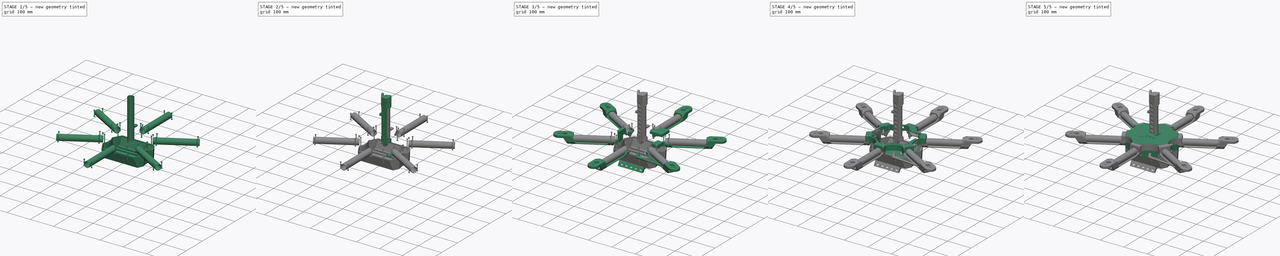
[diagram: build sequence overview — one tinted view per stage of 5, left to right]
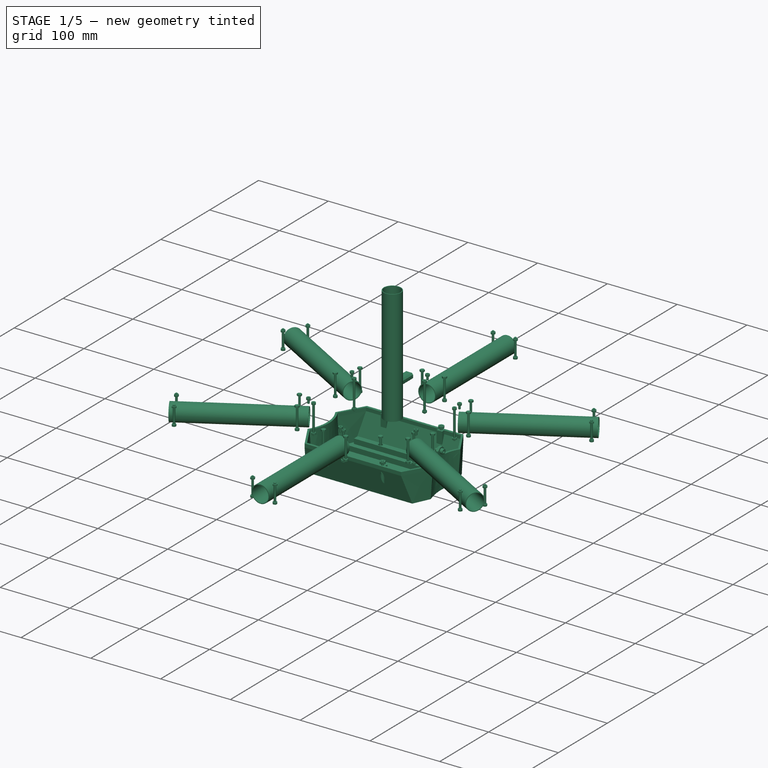
[diagram: stage 1 of 5 — iso view after this stage's code; geometry added in this stage tinted green]
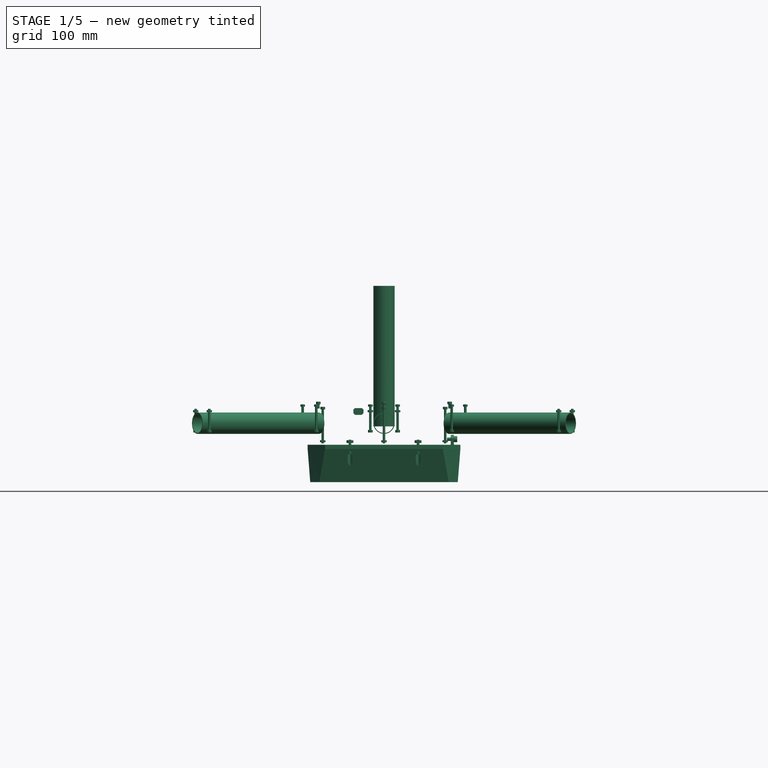
[diagram: stage 1 of 5 — front view after this stage's code; geometry added in this stage tinted green]
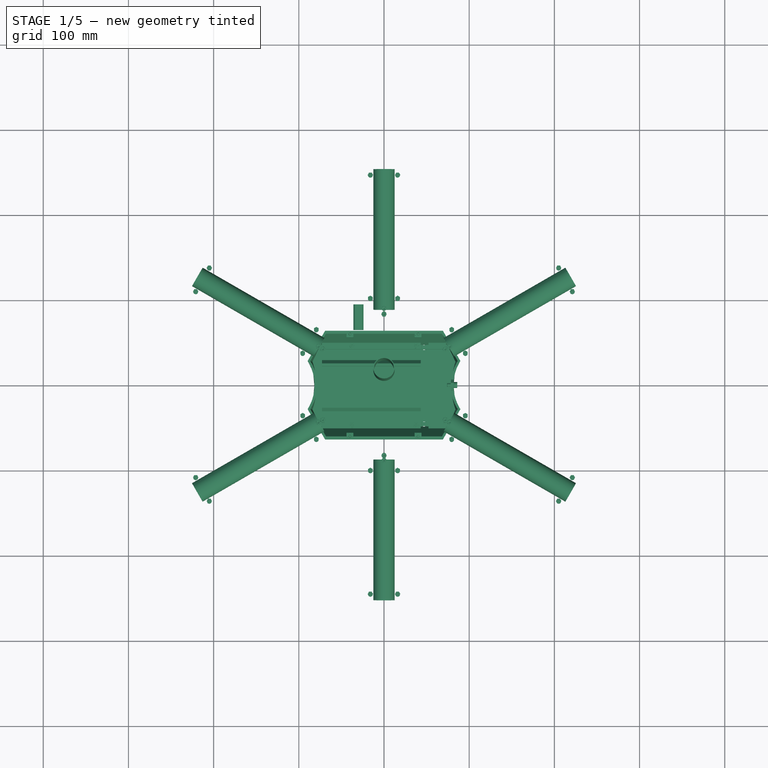
[diagram: stage 1 of 5 — top view after this stage's code; geometry added in this stage tinted green]
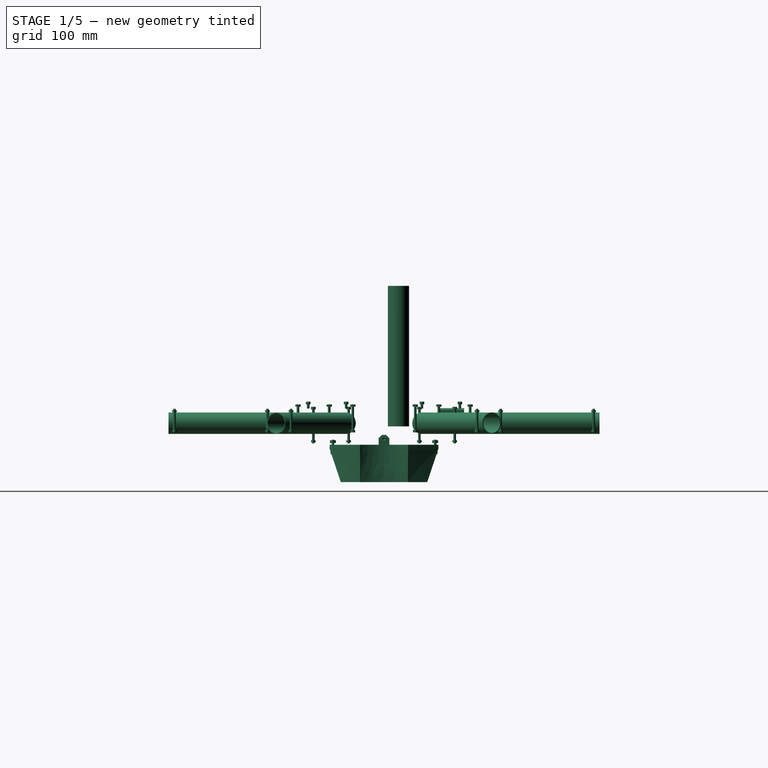
[diagram: stage 1 of 5 — right view after this stage's code; geometry added in this stage tinted green]
FCSTD DOCUMENT  (FreeCAD 0.20R29603 (Git))
Label: sto56
License: All rights reserved
LicenseURL: http://en.wikipedia.org/wiki/All_rights_reserved
objects: Sketcher::SketchObject×167, Part::Extrusion×152, Part::MultiFuse×72, Part::FeaturePython×66, Part::Cut×45, Part::Feature×28, Part::Box×16, Part::Cylinder×10, PartDesign::Pad×6, Part::Loft×6, App::DocumentObjectGroup×4, Part::Cone×3, Part::Prism×2, Part::MultiCommon×2, Part::Revolution×2, App::Link×2, Part::Chamfer×1, Part::Sphere×1
note: 585 computed .brp shape members not serialized (recipe doc carries the construction recipe); baked Part::Feature solids carry a one-line shape summary decoded from their .brp

FEATURE [Sketcher::SketchObject] Sketch338
  FullyConstrained = true
  MapMode = 5
  Placement = pos=(0,0,0) rot=(1,0,0;1.5708rad)
  sketch-geometry (9):
    g0: LineSegment StartX=-6 StartY=2 StartZ=0 EndX=-4 EndY=4 EndZ=0
    g1: LineSegment StartX=-4 StartY=4 StartZ=0 EndX=4 EndY=4 EndZ=0
    g2: LineSegment StartX=4 StartY=4 StartZ=0 EndX=6 EndY=2 EndZ=0
    g3: LineSegment StartX=6 StartY=-2 StartZ=0 EndX=4 EndY=-4 EndZ=0
    g4: LineSegment StartX=4 StartY=-4 StartZ=0 EndX=-4 EndY=-4 EndZ=0
    g5: LineSegment StartX=-4 StartY=-4 StartZ=0 EndX=-6 EndY=-2 EndZ=0
    g6: LineSegment StartX=-4 StartY=4 StartZ=0 EndX=-4 EndY=-4 EndZ=0
    g7: LineSegment StartX=-6 StartY=2 StartZ=0 EndX=-6 EndY=-2 EndZ=0
    g8: LineSegment StartX=6 StartY=2 StartZ=0 EndX=6 EndY=-2 EndZ=0
  constraints (24):
    c: Coincident(g0,g1)
    c: Coincident(g1,g2)
    c: Coincident(g3,g4)
    c: Horizontal(g4)
    c: Coincident(g4,g5)
    c: Equal(g5,g0)
    c: Equal(g0,g2)
    c: Equal(g2,g3)
    c: Angle(g4,g5) = 2.35619
    c: Equal(g4,g1)
    c: Coincident(g6,g0)
    c: Coincident(g6,g4)
    c: Vertical(g6)
    c: Coincident(g7,g0)
    c: Coincident(g7,g5)
    c: Vertical(g7)
    c: Coincident(g8,g2)
    c: Coincident(g8,g3)
    c: Equal(g8,g7)
    c: DistanceY(g8,g8) = 4
    c: DistanceY(g6,g6) = 8
    c: DistanceX(g5,g3) = 12
    c: Symmetric(g0,g1,g-2)
    c: Symmetric(g2,g3,g-1)
FEATURE [Part::Extrusion] Extrude136126
  Base = -> Sketch338
  Dir = (0,30,0)
  DirMode = 0
  FaceMakerClass = Part::FaceMakerExtrusion
  LengthFwd = 0
  LengthRev = 0
  Placement = pos=(-30,64,13.5) rot=(0,0,1;0rad)
  Solid = true
  Symmetric = false
FEATURE [Part::Feature] Cut009010006005001  label="165mmWingCut009010006006"
  Placement = pos=(0,-92,-17.25) rot=(1,0,0;1.5708rad)
  shape: bbox 41 x 183.9 x 16.89 mm, 113 faces (baked)
FEATURE [Part::Feature] Clone005  label="MotorClamp"
  Placement = pos=(0,-283,-0.359082) rot=(0,0,1;0rad)
  shape: bbox 41 x 70.5 x 17.5 mm, 101 faces (baked)
FEATURE [Part::Cylinder] Cylinder015  label="165mmCylinder001"
  Angle = 360
  AttacherType = Attacher::AttachEngine3D
  FirstAngle = 0
  Height = 165
  Placement = pos=(0,17,-4) rot=(0,0,1;0rad)
  Radius = 12.5
  SecondAngle = 0
FEATURE [Part::Cylinder] Cylinder016  label="165mmCylinder002"
  Angle = 360
  AttacherType = Attacher::AttachEngine3D
  FirstAngle = 0
  Height = 165
  Placement = pos=(0,17,-4) rot=(0,0,1;0rad)
  Radius = 11.5
  SecondAngle = 0
FEATURE [Part::Cut] Cut009010006006006005025  label="165mmTubeCut009010006006006005025"
  Base = -> Cylinder015
  Tool = -> Cylinder016
FEATURE [Part::Feature] Cut009010006006006005025001  label="165mmTubeCut009010006006006005026"
  Placement = pos=(0,-92,-17.25) rot=(1,0,0;1.5708rad)
  shape: bbox 25 x 165 x 25 mm, 4 faces (baked)
FEATURE [Part::Feature] Cut009010006006006005025002  label="BodyTopCut009010006007"
  shape: bbox 204.6 x 212.6 x 22 mm, 507 faces (baked)
FEATURE [Part::FeaturePython] Array022  # Draft array (typed FeaturePython)
  Angle = 360
  ArrayType = 1
  Axis = (0,0,1)
  Base = -> Cut009010006005001
  Center = (0,0,0)
  Fuse = false
  IntervalAxis = (0,0,0)
  IntervalX = (1,0,0)
  IntervalY = (0,1,0)
  IntervalZ = (0,0,0)
  NumberPolar = 6
  NumberX = 2
  NumberY = 2
  NumberZ = 1
FEATURE [Part::FeaturePython] Array023  # Draft array (typed FeaturePython)
  Angle = 360
  ArrayType = 1
  Axis = (0,0,1)
  Base = -> Clone005
  Center = (0,0,0)
  Fuse = false
  IntervalAxis = (0,0,0)
  IntervalX = (1,0,0)
  IntervalY = (0,1,0)
  IntervalZ = (0,0,0)
  NumberPolar = 6
  NumberX = 2
  NumberY = 2
  NumberZ = 1
FEATURE [Part::FeaturePython] Array024  # Draft array (typed FeaturePython)
  Angle = 360
  ArrayType = 1
  Axis = (0,0,1)
  Base = -> Cut009010006006006005025001
  Center = (0,0,0)
  Fuse = false
  IntervalAxis = (0,0,0)
  IntervalX = (1,0,0)
  IntervalY = (0,1,0)
  IntervalZ = (0,0,0)
  NumberPolar = 6
  NumberX = 2
  NumberY = 2
  NumberZ = 1
FEATURE [Part::FeaturePython] Screw004  label="M3x30-Screw001"  # Fasteners workbench fastener (typed FeaturePython)
  Placement = pos=(16,-101,-8.035) rot=(0,1,0;3.14159rad)
  diameter = 4
  invert = false
  leftHanded = false
  length = 9
  lengthCustom = 5
  matchOuter = false
  offset = 0
  thread = false
  type = 15
FEATURE [Part::FeaturePython] Screw005  label="M3x30-Screw002"  # Fasteners workbench fastener (typed FeaturePython)
  Placement = pos=(-16,-101,-8.035) rot=(0,1,0;3.14159rad)
  diameter = 4
  invert = false
  leftHanded = false
  length = 9
  lengthCustom = 5
  matchOuter = false
  offset = 0
  thread = false
  type = 15
FEATURE [Part::FeaturePython] Nut001  label="M3-Nut001"  # Fasteners workbench fastener (typed FeaturePython)
  Placement = pos=(-16,-101,19.2583) rot=(0,0,1;0.523599rad)
  diameter = 4
  invert = false
  leftHanded = false
  matchOuter = false
  offset = 0
  thread = false
  type = 1
FEATURE [Part::FeaturePython] Nut002  label="M3-Nut002"  # Fasteners workbench fastener (typed FeaturePython)
  Placement = pos=(16,-101,19.2583) rot=(0,0,1;0.523599rad)
  diameter = 4
  invert = false
  leftHanded = false
  matchOuter = false
  offset = 0
  thread = false
  type = 1
FEATURE [Part::MultiFuse] Fusion034004041077001011002
  Shapes = -> [Nut001,Nut002]
FEATURE [Part::MultiFuse] Fusion034004041077001011003
  Shapes = -> [Screw004,Screw005]
FEATURE [Part::FeaturePython] Array025  # Draft array (typed FeaturePython)
  Angle = 360
  ArrayType = 1
  Axis = (0,0,1)
  Base = -> Fusion034004041077001011002
  Center = (0,0,0)
  Fuse = false
  IntervalAxis = (0,0,0)
  IntervalX = (1,0,0)
  IntervalY = (0,1,0)
  IntervalZ = (0,0,0)
  NumberPolar = 6
  NumberX = 2
  NumberY = 2
  NumberZ = 1
FEATURE [Part::FeaturePython] Array026  # Draft array (typed FeaturePython)
  Angle = 360
  ArrayType = 1
  Axis = (0,0,1)
  Base = -> Fusion034004041077001011003
  Center = (0,0,0)
  Fuse = false
  IntervalAxis = (0,0,0)
  IntervalX = (1,0,0)
  IntervalY = (0,1,0)
  IntervalZ = (0,0,0)
  NumberPolar = 6
  NumberX = 2
  NumberY = 2
  NumberZ = 1
FEATURE [Part::FeaturePython] Screw006  label="M3x40-Screw002"  # Fasteners workbench fastener (typed FeaturePython)
  Placement = pos=(0,-83,16) rot=(0,0,1;0rad)
  diameter = 4
  invert = false
  leftHanded = false
  length = 0
  lengthCustom = 5
  matchOuter = false
  offset = 0
  thread = false
  type = 15
FEATURE [Part::FeaturePython] Nut003  label="M3-Nut003"  # Fasteners workbench fastener (typed FeaturePython)
  Placement = pos=(0,-83,-22.6933) rot=(0,0,1;0rad)
  diameter = 4
  invert = false
  leftHanded = false
  matchOuter = false
  offset = 0
  thread = false
  type = 1
FEATURE [Part::FeaturePython] Array027  # Draft array (typed FeaturePython)
  Angle = 360
  ArrayType = 1
  Axis = (0,0,1)
  Base = -> Screw006
  Center = (0,0,0)
  Fuse = false
  IntervalAxis = (0,0,0)
  IntervalX = (1,0,0)
  IntervalY = (0,1,0)
  IntervalZ = (0,0,0)
  NumberPolar = 6
  NumberX = 2
  NumberY = 2
  NumberZ = 1
FEATURE [Part::FeaturePython] Array028  # Draft array (typed FeaturePython)
  Angle = 360
  ArrayType = 1
  Axis = (0,0,1)
  Base = -> Nut003
  Center = (0,0,0)
  Fuse = false
  IntervalAxis = (0,0,0)
  IntervalX = (1,0,0)
  IntervalY = (0,1,0)
  IntervalZ = (0,0,0)
  NumberPolar = 6
  NumberX = 2
  NumberY = 2
  NumberZ = 1
FEATURE [Part::Feature] Cut009010003001  label="BoddyBottomCut009010004"
  shape: bbox 179.4 x 183.5 x 39.9 mm, 675 faces (baked)
FEATURE [Part::FeaturePython] Screw007  label="M3x5-Screw"  # Fasteners workbench fastener (typed FeaturePython)
  Placement = pos=(77.0763,-44.5,24) rot=(0,0,1;0rad)
  diameter = 4
  invert = false
  leftHanded = false
  length = 0
  lengthCustom = 5
  matchOuter = false
  offset = 0
  thread = false
  type = 15
FEATURE [Part::FeaturePython] Array029  # Draft array (typed FeaturePython)
  Angle = 360
  ArrayType = 1
  Axis = (0,0,1)
  Base = -> Screw007
  Center = (0,0,0)
  Fuse = false
  IntervalAxis = (0,0,0)
  IntervalX = (1,0,0)
  IntervalY = (0,1,0)
  IntervalZ = (0,0,0)
  NumberPolar = 6
  NumberX = 2
  NumberY = 2
  NumberZ = 1
  Placement = pos=(0,0,-2) rot=(0,0,1;0rad)
FEATURE [Part::Feature] Cut009010006006006005025003  label="BodyCoverCut009011"
  Placement = pos=(0,0,22) rot=(0,0,1;0rad)
  shape: bbox 179.9 x 184.1 x 8 mm, 220 faces (baked)
FEATURE [Part::Feature] Fusion034004041010001  label="BatteryCoverFusion034004041011"
  Placement = pos=(0,0,-25.5) rot=(0,0,1;0rad)
  shape: bbox 164.6 x 127.6 x 43.5 mm, 65 faces (baked)
FEATURE [Part::Feature] Fusion030001  label="LandingGearFusion031"
  Placement = pos=(0,0,-58) rot=(0,0,1;0rad)
  shape: bbox 104 x 123.8 x 18 mm, 94 faces (baked)
FEATURE [Part::FeaturePython] Screw008  label="M3x14-Screw"  # Fasteners workbench fastener (typed FeaturePython)
  Placement = pos=(-37.5,46.5,-63) rot=(1,0,0;3.14159rad)
  baseObject = -> Fusion030001 [Edge256]
  diameter = 4
  invert = true
  leftHanded = false
  length = 5
  lengthCustom = 5
  matchOuter = false
  offset = 0
  thread = false
  type = 15
FEATURE [Part::FeaturePython] Screw009  label="M3x14-Screw061"  # Fasteners workbench fastener (typed FeaturePython)
  Placement = pos=(-37.5,-46.5,-63) rot=(1,0,0;3.14159rad)
  baseObject = -> Fusion030001 [Edge120]
  diameter = 4
  invert = true
  leftHanded = false
  length = 5
  lengthCustom = 5
  matchOuter = false
  offset = 0
  thread = false
  type = 15
FEATURE [Part::FeaturePython] Screw010  label="M3x14-Screw060"  # Fasteners workbench fastener (typed FeaturePython)
  Placement = pos=(37.5,46.5,-63) rot=(1,0,0;3.14159rad)
  baseObject = -> Fusion030001 [Edge263]
  diameter = 4
  invert = true
  leftHanded = false
  length = 5
  lengthCustom = 5
  matchOuter = false
  offset = 0
  thread = false
  type = 15
FEATURE [Part::FeaturePython] Screw011  label="M3x14-Screw062"  # Fasteners workbench fastener (typed FeaturePython)
  Placement = pos=(37.5,-46.5,-63) rot=(1,0,0;3.14159rad)
  baseObject = -> Fusion030001 [Edge124]
  diameter = 4
  invert = true
  leftHanded = false
  length = 5
  lengthCustom = 5
  matchOuter = false
  offset = 0
  thread = false
  type = 15
FEATURE [Part::MultiFuse] Fusion034004041077001011004
  Shapes = -> [Screw008,Screw010,Screw009,Screw011]
FEATURE [Part::FeaturePython] Nut004  label="M3-Nut008"  # Fasteners workbench fastener (typed FeaturePython)
  Placement = pos=(-37.5,-46.5,-52.5) rot=(0,0,1;0rad)
  diameter = 4
  invert = false
  leftHanded = false
  matchOuter = false
  offset = 0
  thread = false
  type = 1
FEATURE [Part::FeaturePython] Nut005  label="M3-Nut009"  # Fasteners workbench fastener (typed FeaturePython)
  Placement = pos=(37.5,-46.5,-52.5) rot=(0,0,1;0rad)
  diameter = 4
  invert = false
  leftHanded = false
  matchOuter = false
  offset = 0
  thread = false
  type = 1
FEATURE [Part::FeaturePython] Nut006  label="M3-Nut011"  # Fasteners workbench fastener (typed FeaturePython)
  Placement = pos=(37.5,46.5,-52.5) rot=(0,0,1;0rad)
  diameter = 4
  invert = false
  leftHanded = false
  matchOuter = false
  offset = 0
  thread = false
  type = 1
FEATURE [Part::FeaturePython] Nut007  label="M3-Nut010"  # Fasteners workbench fastener (typed FeaturePython)
  Placement = pos=(-37.5,46.5,-52.5) rot=(0,0,1;0rad)
  diameter = 4
  invert = false
  leftHanded = false
  matchOuter = false
  offset = 0
  thread = false
  type = 1
FEATURE [Part::MultiFuse] Fusion034004041077001011005
  Placement = pos=(0,0,1) rot=(0,0,1;0rad)
  Shapes = -> [Nut004,Nut005,Nut007,Nut006]
FEATURE [Part::Feature] Cut009010006004002  label="BatteryBoxCut009010006006"
  Placement = pos=(0,0,-25.5) rot=(0,0,1;0rad)
  shape: bbox 164.6 x 127.6 x 32 mm, 120 faces (baked)
FEATURE [Part::FeaturePython] Screw012  label="M3x14-Screw056"  # Fasteners workbench fastener (typed FeaturePython)
  Placement = pos=(-40,-60,-33.5) rot=(1,0,0;3.14159rad)
  baseObject = -> Cut009010006004002 [Edge100]
  diameter = 4
  invert = true
  leftHanded = false
  length = 5
  lengthCustom = 5
  matchOuter = false
  offset = 0
  thread = false
  type = 15
FEATURE [Part::FeaturePython] Screw013  label="M3x14-Screw057"  # Fasteners workbench fastener (typed FeaturePython)
  Placement = pos=(40,-60,-33.5) rot=(1,0,0;3.14159rad)
  baseObject = -> Cut009010006004002 [Edge103]
  diameter = 4
  invert = true
  leftHanded = false
  length = 5
  lengthCustom = 5
  matchOuter = false
  offset = 0
  thread = false
  type = 15
FEATURE [Part::FeaturePython] Screw014  label="M3x14-Screw058"  # Fasteners workbench fastener (typed FeaturePython)
  Placement = pos=(40,60,-33.5) rot=(1,0,0;3.14159rad)
  baseObject = -> Cut009010006004002 [Edge134]
  diameter = 4
  invert = true
  leftHanded = false
  length = 5
  lengthCustom = 5
  matchOuter = false
  offset = 0
  thread = false
  type = 15
FEATURE [Part::FeaturePython] Screw015  label="M3x14-Screw059"  # Fasteners workbench fastener (typed FeaturePython)
  Placement = pos=(-40,60,-33.5) rot=(1,0,0;3.14159rad)
  baseObject = -> Cut009010006004002 [Edge138]
  diameter = 4
  invert = true
  leftHanded = false
  length = 5
  lengthCustom = 5
  matchOuter = false
  offset = 0
  thread = false
  type = 15
FEATURE [Part::FeaturePython] Nut008  label="M4-Nut"  # Fasteners workbench fastener (typed FeaturePython)
  Placement = pos=(40,-60,-23.5) rot=(0,0,1;0rad)
  baseObject = -> Cut009010003001 [Edge1462]
  diameter = 6
  invert = false
  leftHanded = false
  matchOuter = false
  offset = 0
  thread = false
  type = 1
FEATURE [Part::FeaturePython] Nut009  label="M4-Nut010"  # Fasteners workbench fastener (typed FeaturePython)
  Placement = pos=(-40,-60,-23.5) rot=(0,0,1;0rad)
  baseObject = -> Cut009010003001 [Edge1491]
  diameter = 6
  invert = false
  leftHanded = false
  matchOuter = false
  offset = 0
  thread = false
  type = 1
FEATURE [Part::FeaturePython] Nut010  label="M4-Nut011"  # Fasteners workbench fastener (typed FeaturePython)
  Placement = pos=(40,60,-23.5) rot=(0,0,1;0rad)
  baseObject = -> Cut009010003001 [Edge1465]
  diameter = 6
  invert = false
  leftHanded = false
  matchOuter = false
  offset = 0
  thread = false
  type = 1
FEATURE [Part::FeaturePython] Nut011  label="M4-Nut012"  # Fasteners workbench fastener (typed FeaturePython)
  Placement = pos=(-40,60,-23.5) rot=(0,0,1;0rad)
  baseObject = -> Cut009010003001 [Edge1493]
  diameter = 6
  invert = false
  leftHanded = false
  matchOuter = false
  offset = 0
  thread = false
  type = 1
FEATURE [Part::MultiFuse] Fusion034004041077001011006
  Shapes = -> [Screw012,Screw013,Screw014,Screw015]
FEATURE [Part::MultiFuse] Fusion034004041077001011007
  Shapes = -> [Nut008,Nut009,Nut010,Nut011]
FEATURE [Part::FeaturePython] Screw016  label="M3x25-Screw001"  # Fasteners workbench fastener (typed FeaturePython)
  Placement = pos=(16,-246,-8.25) rot=(1,0,0;3.14159rad)
  baseObject = -> Array022 [Edge309]
  diameter = 4
  invert = false
  leftHanded = false
  length = 8
  lengthCustom = 5
  matchOuter = false
  offset = 0
  thread = false
  type = 15
FEATURE [Part::FeaturePython] Screw017  label="M3x25-Screw002"  # Fasteners workbench fastener (typed FeaturePython)
  Placement = pos=(-16,-246,-8.25) rot=(1,0,0;3.14159rad)
  baseObject = -> Array022 [Edge304]
  diameter = 4
  invert = false
  leftHanded = false
  length = 8
  lengthCustom = 5
  matchOuter = false
  offset = 0
  thread = false
  type = 15
FEATURE [Part::MultiFuse] Fusion034004041077001011008
  Shapes = -> [Screw016,Screw017]
FEATURE [Part::FeaturePython] Array030  # Draft array (typed FeaturePython)
  Angle = 360
  ArrayType = 1
  Axis = (0,0,1)
  Base = -> Fusion034004041077001011008
  Center = (0,0,0)
  Fuse = false
  IntervalAxis = (0,0,0)
  IntervalX = (1,0,0)
  IntervalY = (0,1,0)
  IntervalZ = (0,0,0)
  NumberPolar = 6
  NumberX = 2
  NumberY = 2
  NumberZ = 1
FEATURE [Part::FeaturePython] Nut012  label="M3-Nut012"  # Fasteners workbench fastener (typed FeaturePython)
  Placement = pos=(-16,-246,12.6409) rot=(0,0,1;0rad)
  baseObject = -> Array023 [Edge205]
  diameter = 4
  invert = true
  leftHanded = false
  matchOuter = false
  offset = 0
  thread = false
  type = 1
FEATURE [Part::FeaturePython] Nut013  label="M3-Nut013"  # Fasteners workbench fastener (typed FeaturePython)
  Placement = pos=(16,-246,12.6409) rot=(0,0,1;0rad)
  baseObject = -> Array023 [Edge217]
  diameter = 4
  invert = true
  leftHanded = false
  matchOuter = false
  offset = 0
  thread = false
  type = 1
FEATURE [Part::MultiFuse] Fusion034004041077001011009
  Shapes = -> [Nut012,Nut013]
FEATURE [Part::FeaturePython] Array031  # Draft array (typed FeaturePython)
  Angle = 360
  ArrayType = 1
  Axis = (0,0,1)
  Base = -> Fusion034004041077001011009
  Center = (0,0,0)
  Fuse = false
  IntervalAxis = (0,0,0)
  IntervalX = (1,0,0)
  IntervalY = (0,1,0)
  IntervalZ = (0,0,0)
  NumberPolar = 6
  NumberX = 2
  NumberY = 2
  NumberZ = 1
FEATURE [Part::FeaturePython] Screw018  label="M4x8-Screw"  # Fasteners workbench fastener (typed FeaturePython)
  Placement = pos=(82,0,-19) rot=(0,1,0;1.5708rad)
  baseObject = -> Fusion034004041010001 [Edge171]
  diameter = 5
  invert = false
  leftHanded = false
  length = 1
  lengthCustom = 6
  matchOuter = false
  offset = 0
  thread = false
  type = 15
FEATURE [App::DocumentObjectGroup] Group005  label="Rendering"
  Group = -> [Cut009010006006006005025002,Array022,Array023,Array024,Array025,Array026,Array027,Array028,Cut009010003001,Array029,Cut009010006006006005025003,Fusion034004041010001,Fusion030001,Fusion034004041077001011004,Fusion034004041077001011005,Cut009010006004002,Fusion034004041077001011006,Fusion034004041077001011007,Array030,Array031,Screw018]
FEATURE [Part::Feature] Cut009010006006006005025004  label="BodyTopCut009010006008"
  Placement = pos=(0,0,0) rot=(0.707107,0.707107,0;3.14159rad)
  shape: bbox 212.6 x 204.6 x 22 mm, 507 faces (baked)
FEATURE [Part::Feature] Cut009010003002  label="BoddyBottomCut009010005"
  Placement = pos=(0,0,0) rot=(0,0,1;1.5708rad)
  shape: bbox 183.5 x 179.4 x 39.9 mm, 675 faces (baked)
FEATURE [Part::Feature] Cut009010006006006005025005  label="BodyCoverCut009012"
  Placement = pos=(0,0,22) rot=(0.707107,0.707107,0;3.14159rad)
  shape: bbox 184.1 x 179.9 x 8 mm, 220 faces (baked)
FEATURE [Part::Feature] Cut009010006004003  label="BatteryBoxCut009010006007"
  Placement = pos=(0,0,-25.5) rot=(0,0,1;0rad)
  shape: bbox 164.6 x 127.6 x 32 mm, 120 faces (baked)
FEATURE [Part::Feature] Fusion034004041010002  label="BatteryCoverFusion034004041012"
  Placement = pos=(0,0,-25.5) rot=(0,0,1;0rad)
  shape: bbox 164.6 x 127.6 x 43.5 mm, 65 faces (baked)
FEATURE [Part::Feature] Fusion030002  label="LandingGearFusion032"
  Placement = pos=(0,0,-58) rot=(1,0,0;3.14159rad)
  shape: bbox 104 x 123.8 x 18 mm, 94 faces (baked)
FEATURE [Part::Box] Box017  label="Cube013"
  AttacherType = Attacher::AttachEngine3D
  Height = 60
  Length = 41
  Placement = pos=(52,-70,-46) rot=(0,0,1;0rad)
  Width = 140
FEATURE [Sketcher::SketchObject] Sketch339
  FullyConstrained = true
  MapMode = 5
  Placement = pos=(0,0,-32) rot=(0,0,1;0rad)
  sketch-geometry (8):
    g0: LineSegment StartX=-37.5 StartY=46.5 StartZ=0 EndX=37.5 EndY=46.5 EndZ=0
    g1: LineSegment StartX=37.5 StartY=46.5 StartZ=0 EndX=37.5 EndY=-46.5 EndZ=0
    g2: LineSegment StartX=37.5 StartY=-46.5 StartZ=0 EndX=-37.5 EndY=-46.5 EndZ=0
    g3: LineSegment StartX=-37.5 StartY=-46.5 StartZ=0 EndX=-37.5 EndY=46.5 EndZ=0
    g4: Circle CenterX=-37.5 CenterY=46.5 CenterZ=0 NormalX=0 NormalY=0 NormalZ=1 AngleXU=0 Radius=1.75
    g5: Circle CenterX=37.5 CenterY=46.5 CenterZ=0 NormalX=0 NormalY=0 NormalZ=1 AngleXU=0 Radius=1.75
    g6: Circle CenterX=37.5 CenterY=-46.5 CenterZ=0 NormalX=0 NormalY=0 NormalZ=1 AngleXU=0 Radius=1.75
    g7: Circle CenterX=-37.5 CenterY=-46.5 CenterZ=0 NormalX=0 NormalY=0 NormalZ=1 AngleXU=0 Radius=1.75
  constraints (18):
    c: Coincident(g0,g1)
    c: Coincident(g1,g2)
    c: Coincident(g2,g3)
    c: Coincident(g3,g0)
    c: Horizontal(g2)
    c: Vertical(g1)
    c: DistanceY(g1,g1) = 93
    c: DistanceX(g2,g2) = 75
    c: Symmetric(g2,g0,g-1)
    c: Symmetric(g0,g0,g-2)
    c: Coincident(g4,g0)
    c: Coincident(g5,g0)
    c: Coincident(g6,g1)
    c: Coincident(g7,g2)
    c: Radius(g7) = 1.75
    c: Equal(g7,g6)
    c: Equal(g7,g4)
    c: Equal(g7,g5)
FEATURE [Part::Extrusion] Extrude136134
  Base = -> Sketch339
  Dir = (0,0,-14)
  DirMode = 0
  FaceMakerClass = Part::FaceMakerExtrusion
  LengthFwd = 0
  LengthRev = 0
  Solid = true
  Symmetric = false
FEATURE [Sketcher::SketchObject] Sketch340
  FullyConstrained = true
  MapMode = 5
  Placement = pos=(0,0,-39) rot=(0,0,1;0rad)
  sketch-geometry (32):
    g0: LineSegment StartX=39.125 StartY=-49.3146 StartZ=0 EndX=40.75 EndY=-46.5 EndZ=0
    g1: LineSegment StartX=40.75 StartY=-46.5 StartZ=0 EndX=39.125 EndY=-43.6854 EndZ=0
    g2: LineSegment StartX=39.125 StartY=-43.6854 StartZ=0 EndX=35.875 EndY=-43.6854 EndZ=0
    g3: LineSegment StartX=35.875 StartY=-43.6854 StartZ=0 EndX=34.25 EndY=-46.5 EndZ=0
    g4: LineSegment StartX=34.25 StartY=-46.5 StartZ=0 EndX=35.875 EndY=-49.3146 EndZ=0
    g5: LineSegment StartX=35.875 StartY=-49.3146 StartZ=0 EndX=39.125 EndY=-49.3146 EndZ=0
    g6: Circle CenterX=37.5 CenterY=-46.5 CenterZ=0 NormalX=0 NormalY=0 NormalZ=1 AngleXU=0 Radius=3.25
    g7: LineSegment StartX=39.125 StartY=43.6854 StartZ=0 EndX=40.75 EndY=46.5 EndZ=0
    g8: LineSegment StartX=40.75 StartY=46.5 StartZ=0 EndX=39.125 EndY=49.3146 EndZ=0
    g9: LineSegment StartX=39.125 StartY=49.3146 StartZ=0 EndX=35.875 EndY=49.3146 EndZ=0
    g10: LineSegment StartX=35.875 StartY=49.3146 StartZ=0 EndX=34.25 EndY=46.5 EndZ=0
    g11: LineSegment StartX=34.25 StartY=46.5 StartZ=0 EndX=35.875 EndY=43.6854 EndZ=0
    g12: LineSegment StartX=35.875 StartY=43.6854 StartZ=0 EndX=39.125 EndY=43.6854 EndZ=0
    g13: Circle CenterX=37.5 CenterY=46.5 CenterZ=0 NormalX=0 NormalY=0 NormalZ=1 AngleXU=0 Radius=3.25
    g14: LineSegment StartX=-34.25 StartY=46.5 StartZ=0 EndX=-35.875 EndY=49.3146 EndZ=0
    g15: LineSegment StartX=-35.875 StartY=49.3146 StartZ=0 EndX=-39.125 EndY=49.3146 EndZ=0
    g16: LineSegment StartX=-39.125 StartY=49.3146 StartZ=0 EndX=-40.75 EndY=46.5 EndZ=0
    g17: LineSegment StartX=-40.75 StartY=46.5 StartZ=0 EndX=-39.125 EndY=43.6854 EndZ=0
    g18: LineSegment StartX=-39.125 StartY=43.6854 StartZ=0 EndX=-35.875 EndY=43.6854 EndZ=0
    g19: LineSegment StartX=-35.875 StartY=43.6854 StartZ=0 EndX=-34.25 EndY=46.5 EndZ=0
    g20: Circle CenterX=-37.5 CenterY=46.5 CenterZ=0 NormalX=0 NormalY=0 NormalZ=1 AngleXU=0 Radius=3.25
    g21: LineSegment StartX=-37.5 StartY=46.5 StartZ=0 EndX=37.5 EndY=46.5 EndZ=0
    g22: LineSegment StartX=37.5 StartY=46.5 StartZ=0 EndX=37.5 EndY=-46.5 EndZ=0
    g23: LineSegment StartX=37.5 StartY=-46.5 StartZ=0 EndX=-37.5 EndY=-46.5 EndZ=0
    g24: LineSegment StartX=-37.5 StartY=-46.5 StartZ=0 EndX=-37.5 EndY=46.5 EndZ=0
    g25: LineSegment StartX=-40.75 StartY=-46.5 StartZ=0 EndX=-39.125 EndY=-49.3146 EndZ=0
    g26: LineSegment StartX=-39.125 StartY=-49.3146 StartZ=0 EndX=-35.875 EndY=-49.3146 EndZ=0
    g27: LineSegment StartX=-35.875 StartY=-49.3146 StartZ=0 EndX=-34.25 EndY=-46.5 EndZ=0
    g28: LineSegment StartX=-34.25 StartY=-46.5 StartZ=0 EndX=-35.875 EndY=-43.6854 EndZ=0
    g29: LineSegment StartX=-35.875 StartY=-43.6854 StartZ=0 EndX=-39.125 EndY=-43.6854 EndZ=0
    g30: LineSegment StartX=-39.125 StartY=-43.6854 StartZ=0 EndX=-40.75 EndY=-46.5 EndZ=0
    g31: Circle CenterX=-37.5 CenterY=-46.5 CenterZ=0 NormalX=0 NormalY=0 NormalZ=1 AngleXU=0 Radius=3.25
  constraints (74):
    c: Coincident(g0,g1)
    c: Coincident(g1,g2)
    c: Coincident(g2,g3)
    c: Coincident(g3,g4)
    c: Coincident(g4,g5)
    c: Coincident(g5,g0)
    c: Equal(g0, g1-g5) x5
    c: PointOnObject(g0,g6)
    c: PointOnObject(g1,g6)
    c: PointOnObject(g2,g6)
    c: PointOnObject(g3,g6)
    c: PointOnObject(g4,g6)
    c: PointOnObject(g5,g6)
    c: Horizontal(g5)
    c: Coincident(g7,g8)
    c: Coincident(g8,g9)
    c: Coincident(g9,g10)
    c: Coincident(g10,g11)
    c: Coincident(g11,g12)
    c: Coincident(g12,g7)
    c: Equal(g7, g8-g12) x5
    c: PointOnObject(g7,g13)
    c: PointOnObject(g8,g13)
    c: PointOnObject(g9,g13)
    c: PointOnObject(g10,g13)
    c: PointOnObject(g11,g13)
    c: PointOnObject(g12,g13)
    c: Horizontal(g12)
    c: Equal(g13,g6)
    c: Coincident(g14,g15)
    c: Coincident(g15,g16)
    c: Coincident(g16,g17)
    c: Coincident(g17,g18)
    c: Coincident(g18,g19)
    c: Coincident(g19,g14)
    c: Equal(g14, g15-g19) x5
    c: PointOnObject(g14,g20)
    c: PointOnObject(g15,g20)
    c: PointOnObject(g16,g20)
    c: PointOnObject(g17,g20)
    c: PointOnObject(g18,g20)
    c: PointOnObject(g19,g20)
    c: Horizontal(g18)
    c: Coincident(g21,g22)
    c: Coincident(g22,g23)
    c: Coincident(g24,g21)
    c: Horizontal(g23)
    c: Vertical(g24)
    c: DistanceX(g23,g23) = 75
    c: Coincident(g6,g22)
    c: Coincident(g20,g21)
    c: Coincident(g13,g21)
    c: Coincident(g25,g26)
    c: Coincident(g26,g27)
    c: Coincident(g27,g28)
    c: Coincident(g28,g29)
    c: Coincident(g29,g30)
    c: Coincident(g30,g25)
    c: Equal(g25, g26-g30) x5
    c: PointOnObject(g25,g31)
    c: PointOnObject(g26,g31)
    c: PointOnObject(g27,g31)
    c: PointOnObject(g28,g31)
    c: PointOnObject(g29,g31)
    c: PointOnObject(g30,g31)
    c: Coincident(g31,g23)
    c: Coincident(g23,g24)
    c: Horizontal(g26)
    c: Symmetric(g13,g20,g-2)
    c: Symmetric(g13,g6,g-1)
    c: DistanceY(g22,g22) = 93
    c: Equal(g31,g20)
    c: Equal(g20,g13)
    c: Radius(g13) = 3.25
FEATURE [Part::Extrusion] Extrude136135
  Base = -> Sketch340
  Dir = (0,0,5)
  DirMode = 0
  FaceMakerClass = Part::FaceMakerExtrusion
  LengthFwd = 0
  LengthRev = 0
  Solid = true
  Symmetric = false
FEATURE [Sketcher::SketchObject] Sketch341
  FullyConstrained = true
  MapMode = 5
  sketch-geometry (14):
    g0: LineSegment StartX=89.6487 StartY=-28.2685 StartZ=0 EndX=89.6487 EndY=28.2685 EndZ=0
    g1: LineSegment StartX=89.6487 StartY=28.2685 StartZ=0 EndX=69.1487 EndY=63.7755 EndZ=0
    g2: LineSegment StartX=-69.1487 StartY=63.7755 StartZ=0 EndX=-89.6487 EndY=28.2685 EndZ=0
    g3: LineSegment StartX=-89.6487 StartY=-28.2685 StartZ=0 EndX=-69.1487 EndY=-63.7755 EndZ=0
    g4: LineSegment StartX=69.1487 StartY=-63.7755 StartZ=0 EndX=89.6487 EndY=-28.2685 EndZ=0
    g5: ArcOfCircle CenterX=134.649 CenterY=0 CenterZ=0 NormalX=0 NormalY=0 NormalZ=1 AngleXU=0 Radius=53.1423 StartAngle=2.5807 EndAngle=3.70248
    g6: ArcOfCircle CenterX=-134.649 CenterY=0 CenterZ=0 NormalX=0 NormalY=0 NormalZ=1 AngleXU=0 Radius=53.1423 StartAngle=5.7223 EndAngle=6.84407
    g7: LineSegment StartX=134.649 StartY=0 StartZ=0 EndX=89.6487 EndY=0 EndZ=0
    g8: LineSegment StartX=-134.649 StartY=0 StartZ=0 EndX=-89.6487 EndY=0 EndZ=0
    g9: LineSegment StartX=-69.1487 StartY=63.7755 StartZ=0 EndX=69.1487 EndY=63.7755 EndZ=0
    g10: LineSegment StartX=-69.1487 StartY=-63.7755 StartZ=0 EndX=69.1487 EndY=-63.7755 EndZ=0
    g11: LineSegment StartX=-89.6487 StartY=28.2685 StartZ=0 EndX=-89.6487 EndY=-28.2685 EndZ=0
    g12: LineSegment StartX=0 StartY=0 StartZ=0 EndX=89.6487 EndY=28.2685 EndZ=0
    g13: LineSegment StartX=0 StartY=0 StartZ=0 EndX=-89.6487 EndY=28.2685 EndZ=0
  constraints (38):
    c: Coincident(g0,g1)
    c: Coincident(g4,g0)
    c: Coincident(g5,g0)
    c: Coincident(g5,g0)
    c: Coincident(g6,g2)
    c: Coincident(g7,g5)
    c: PointOnObject(g7,g0)
    c: Coincident(g8,g6)
    c: Perpendicular(g0,g7)
    c: Coincident(g10,g3)
    c: Coincident(g9,g1)
    c: DistanceX(g7,g7) = 45
    c: Coincident(g11,g2)
    c: Coincident(g11,g3)
    c: Coincident(g6,g3)
    c: PointOnObject(g8,g11)
    c: Perpendicular(g11,g8)
    c: Coincident(g9,g2)
    c: PointOnObject(g6,g-1)
    c: Equal(g8,g7)
    c: Equal(g3,g2)
    c: Equal(g2,g1)
    c: Equal(g1,g4)
    c: PointOnObject(g5,g-1)
    c: Coincident(g4,g10)
    c: DistanceY(g0,g0) = 56.537
    c: Distance(g4) = 41
    c: Angle(g2,g9) = 2.0944
    c: Coincident(g12,g-1)
    c: Coincident(g12,g0)
    c: Distance(g12) = 94
    c: Coincident(g13,g-1)
    c: Coincident(g13,g2)
    c: Equal(g13,g12)
    c: Symmetric(g3,g4,g-2)
    c: Symmetric(g2,g1,g-2)
    c: Equal(g10,g9)
    c: Horizontal(g8)
FEATURE [Sketcher::SketchObject] Sketch342
  FullyConstrained = true
  MapMode = 5
  Placement = pos=(0,0,-44) rot=(0,0,1;0rad)
  sketch-geometry (14):
    g0: LineSegment StartX=86.5852 StartY=-28 StartZ=0 EndX=86.5852 EndY=28 EndZ=0
    g1: LineSegment StartX=86.5852 StartY=28 StartZ=0 EndX=76.0198 EndY=50.6577 EndZ=0
    g2: LineSegment StartX=-76.0198 StartY=50.6577 StartZ=0 EndX=-86.5852 EndY=28 EndZ=0
    g3: LineSegment StartX=-86.5852 StartY=-28 StartZ=0 EndX=-76.0198 EndY=-50.6577 EndZ=0
    g4: LineSegment StartX=76.0198 StartY=-50.6577 StartZ=0 EndX=86.5852 EndY=-28 EndZ=0
    g5: ArcOfCircle CenterX=166.585 CenterY=0 CenterZ=0 NormalX=0 NormalY=0 NormalZ=1 AngleXU=0 Radius=84.7585 StartAngle=2.80492 EndAngle=3.47827
    g6: ArcOfCircle CenterX=-166.585 CenterY=0 CenterZ=0 NormalX=0 NormalY=0 NormalZ=1 AngleXU=0 Radius=84.7585 StartAngle=5.94651 EndAngle=6.61986
    g7: LineSegment StartX=166.585 StartY=0 StartZ=0 EndX=86.5852 EndY=1.75393e-11 EndZ=0
    g8: LineSegment StartX=-166.585 StartY=0 StartZ=0 EndX=-86.5852 EndY=0 EndZ=0
    g9: LineSegment StartX=-76.0198 StartY=50.6577 StartZ=0 EndX=76.0198 EndY=50.6577 EndZ=0
    g10: LineSegment StartX=-76.0198 StartY=-50.6577 StartZ=0 EndX=76.0198 EndY=-50.6577 EndZ=0
    g11: LineSegment StartX=-86.5852 StartY=28 StartZ=0 EndX=-86.5852 EndY=-28 EndZ=0
    g12: LineSegment StartX=0 StartY=0 StartZ=0 EndX=86.5852 EndY=28 EndZ=0
    g13: LineSegment StartX=0 StartY=0 StartZ=0 EndX=-86.5852 EndY=28 EndZ=0
  constraints (38):
    c: Coincident(g0,g1)
    c: Coincident(g4,g0)
    c: Coincident(g5,g0)
    c: Coincident(g5,g0)
    c: Coincident(g6,g2)
    c: Coincident(g7,g5)
    c: PointOnObject(g7,g0)
    c: Coincident(g8,g6)
    c: Perpendicular(g0,g7)
    c: Coincident(g10,g3)
    c: Coincident(g9,g1)
    c: DistanceX(g7,g7) = 80
    c: Coincident(g11,g2)
    c: Coincident(g11,g3)
    c: Coincident(g6,g3)
    c: PointOnObject(g8,g11)
    c: Perpendicular(g11,g8)
    c: Coincident(g9,g2)
    c: PointOnObject(g6,g-1)
    c: Equal(g8,g7)
    c: Equal(g3,g2)
    c: Equal(g2,g1)
    c: Equal(g1,g4)
    c: PointOnObject(g5,g-1)
    c: Coincident(g4,g10)
    c: DistanceY(g0,g0) = 56
    c: Distance(g4) = 25
    c: Angle(g2,g9) = 2.00713
    c: Coincident(g12,g-1)
    c: Coincident(g12,g0)
    c: Distance(g12) = 91
    c: Coincident(g13,g-1)
    c: Coincident(g13,g2)
    c: Equal(g13,g12)
    c: Symmetric(g3,g4,g-2)
    c: Symmetric(g2,g1,g-2)
    c: Equal(g10,g9)
    c: Horizontal(g8)
FEATURE [Sketcher::SketchObject] Sketch343
  FullyConstrained = false
  MapMode = 5
  Placement = pos=(0,0,12) rot=(0,0,1;0rad)
  sketch-geometry (14):
    g0: LineSegment StartX=86.4979 StartY=-28.2685 StartZ=0 EndX=86.4979 EndY=28.2685 EndZ=0
    g1: LineSegment StartX=86.4979 StartY=28.2685 StartZ=0 EndX=67.9979 EndY=60.3114 EndZ=0
    g2: LineSegment StartX=-67.9979 StartY=60.3114 StartZ=0 EndX=-86.4979 EndY=28.2685 EndZ=0
    g3: LineSegment StartX=-86.4979 StartY=-28.2685 StartZ=0 EndX=-67.9979 EndY=-60.3114 EndZ=0
    g4: LineSegment StartX=67.9979 StartY=-60.3114 StartZ=0 EndX=86.4979 EndY=-28.2685 EndZ=0
    g5: ArcOfCircle CenterX=131.498 CenterY=0 CenterZ=0 NormalX=0 NormalY=0 NormalZ=1 AngleXU=0 Radius=53.1423 StartAngle=2.5807 EndAngle=3.70248
    g6: ArcOfCircle CenterX=-131.498 CenterY=0 CenterZ=0 NormalX=0 NormalY=0 NormalZ=1 AngleXU=0 Radius=53.1423 StartAngle=5.7223 EndAngle=6.84407
    g7: LineSegment StartX=131.498 StartY=0 StartZ=0 EndX=86.4979 EndY=1.8e-11 EndZ=0
    g8: LineSegment StartX=-131.498 StartY=0 StartZ=0 EndX=-86.4979 EndY=0 EndZ=0
    g9: LineSegment StartX=-67.9979 StartY=60.3114 StartZ=0 EndX=67.9979 EndY=60.3114 EndZ=0
    g10: LineSegment StartX=-67.9979 StartY=-60.3114 StartZ=0 EndX=67.9979 EndY=-60.3114 EndZ=0
    g11: LineSegment StartX=-86.4979 StartY=28.2685 StartZ=0 EndX=-86.4979 EndY=-28.2685 EndZ=0
    g12: LineSegment StartX=0 StartY=0 StartZ=0 EndX=86.4979 EndY=28.2685 EndZ=0
    g13: LineSegment StartX=0 StartY=0 StartZ=0 EndX=-86.4979 EndY=28.2685 EndZ=0
  constraints (40):
    c: Coincident(g0,g1)
    c: Coincident(g4,g0)
    c: Coincident(g5,g0)
    c: Coincident(g5,g0)
    c: Coincident(g6,g2)
    c: Coincident(g7,g5)
    c: PointOnObject(g7,g0)
    c: Coincident(g8,g6)
    c: Perpendicular(g0,g7)
    c: Coincident(g10,g3)
    c: Coincident(g9,g1)
    c: Horizontal(g9)
    c: Horizontal(g10)
    c: DistanceX(g7,g7) = 45
    c: Coincident(g11,g2)
    c: Coincident(g11,g3)
    c: Coincident(g6,g3)
    c: PointOnObject(g8,g11)
    c: Perpendicular(g11,g8)
    c: Coincident(g9,g2)
    c: PointOnObject(g6,g-1)
    c: Equal(g8,g7)
    c: Equal(g3,g2)
    c: Equal(g2,g1)
    c: Equal(g1,g4)
    c: PointOnObject(g5,g-1)
    c: Coincident(g4,g10)
    c: DistanceY(g0,g0) = 56.537
    c: Distance(g4) = 37
    c: Angle(g2,g9) = 2.0944
    c: Coincident(g12,g-1)
    c: Coincident(g12,g0)
    c: Distance(g12) = 91
    c: Coincident(g13,g-1)
    c: Coincident(g13,g2)
    c: Equal(g13,g12)
    c: Symmetric(g3,g4,g-2)
    c: Symmetric(g2,g1,g-2)
    c: Equal(g10,g9)
    c: Horizontal(g8)
FEATURE [Sketcher::SketchObject] Sketch344
  FullyConstrained = true
  MapMode = 5
  Placement = pos=(0,0,-42) rot=(0,0,1;0rad)
  sketch-geometry (14):
    g0: LineSegment StartX=83.9539 StartY=-28 StartZ=0 EndX=83.9539 EndY=28 EndZ=0
    g1: LineSegment StartX=83.9539 StartY=28 StartZ=0 EndX=74.6563 EndY=47.9388 EndZ=0
    g2: LineSegment StartX=-74.6563 StartY=47.9388 StartZ=0 EndX=-83.9539 EndY=28 EndZ=0
    g3: LineSegment StartX=-83.9539 StartY=-28 StartZ=0 EndX=-74.6563 EndY=-47.9388 EndZ=0
    g4: LineSegment StartX=74.6563 StartY=-47.9388 StartZ=0 EndX=83.9539 EndY=-28 EndZ=0
    g5: ArcOfCircle CenterX=163.954 CenterY=0 CenterZ=0 NormalX=0 NormalY=0 NormalZ=1 AngleXU=0 Radius=84.7585 StartAngle=2.80492 EndAngle=3.47827
    g6: ArcOfCircle CenterX=-163.954 CenterY=0 CenterZ=0 NormalX=0 NormalY=0 NormalZ=1 AngleXU=0 Radius=84.7585 StartAngle=5.94651 EndAngle=6.61986
    g7: LineSegment StartX=163.954 StartY=0 StartZ=0 EndX=83.9539 EndY=1.9882e-12 EndZ=0
    g8: LineSegment StartX=-163.954 StartY=0 StartZ=0 EndX=-83.9539 EndY=0 EndZ=0
    g9: LineSegment StartX=-74.6563 StartY=47.9388 StartZ=0 EndX=74.6563 EndY=47.9388 EndZ=0
    g10: LineSegment StartX=-74.6563 StartY=-47.9388 StartZ=0 EndX=74.6563 EndY=-47.9388 EndZ=0
    g11: LineSegment StartX=-83.9539 StartY=28 StartZ=0 EndX=-83.9539 EndY=-28 EndZ=0
    g12: LineSegment StartX=0 StartY=0 StartZ=0 EndX=83.9539 EndY=28 EndZ=0
    g13: LineSegment StartX=0 StartY=0 StartZ=0 EndX=-83.9539 EndY=28 EndZ=0
  constraints (38):
    c: Coincident(g0,g1)
    c: Coincident(g4,g0)
    c: Coincident(g5,g0)
    c: Coincident(g5,g0)
    c: Coincident(g6,g2)
    c: Coincident(g7,g5)
    c: PointOnObject(g7,g0)
    c: Coincident(g8,g6)
    c: Perpendicular(g0,g7)
    c: Coincident(g10,g3)
    c: Coincident(g9,g1)
    c: DistanceX(g7,g7) = 80
    c: Coincident(g11,g2)
    c: Coincident(g11,g3)
    c: Coincident(g6,g3)
    c: PointOnObject(g8,g11)
    c: Perpendicular(g11,g8)
    c: Coincident(g9,g2)
    c: PointOnObject(g6,g-1)
    c: Equal(g8,g7)
    c: Equal(g3,g2)
    c: Equal(g2,g1)
    c: Equal(g1,g4)
    c: PointOnObject(g5,g-1)
    c: Coincident(g4,g10)
    c: DistanceY(g0,g0) = 56
    c: Distance(g4) = 22
    c: Angle(g2,g9) = 2.00713
    c: Coincident(g12,g-1)
    c: Coincident(g12,g0)
    c: Distance(g12) = 88.5
    c: Coincident(g13,g-1)
    c: Coincident(g13,g2)
    c: Equal(g13,g12)
    c: Symmetric(g3,g4,g-2)
    c: Symmetric(g2,g1,g-2)
    c: Equal(g10,g9)
    c: Horizontal(g8)
FEATURE [Sketcher::SketchObject] Sketch345
  FullyConstrained = false
  MapMode = 5
  Placement = pos=(0,0,-5) rot=(0,0,1;0rad)
  sketch-geometry (14):
    g0: LineSegment StartX=86.4979 StartY=-28.2685 StartZ=0 EndX=86.4979 EndY=28.2685 EndZ=0
    g1: LineSegment StartX=86.4979 StartY=28.2685 StartZ=0 EndX=67.9979 EndY=60.3114 EndZ=0
    g2: LineSegment StartX=-67.9979 StartY=60.3114 StartZ=0 EndX=-86.4979 EndY=28.2685 EndZ=0
    g3: LineSegment StartX=-86.4979 StartY=-28.2685 StartZ=0 EndX=-67.9979 EndY=-60.3114 EndZ=0
    g4: LineSegment StartX=67.9979 StartY=-60.3114 StartZ=0 EndX=86.4979 EndY=-28.2685 EndZ=0
    g5: ArcOfCircle CenterX=131.498 CenterY=0 CenterZ=0 NormalX=0 NormalY=0 NormalZ=1 AngleXU=0 Radius=53.1423 StartAngle=2.5807 EndAngle=3.70248
    g6: ArcOfCircle CenterX=-131.498 CenterY=0 CenterZ=0 NormalX=0 NormalY=0 NormalZ=1 AngleXU=0 Radius=53.1423 StartAngle=5.7223 EndAngle=6.84407
    g7: LineSegment StartX=131.498 StartY=0 StartZ=0 EndX=86.4979 EndY=1.8e-11 EndZ=0
    g8: LineSegment StartX=-131.498 StartY=0 StartZ=0 EndX=-86.4979 EndY=0 EndZ=0
    g9: LineSegment StartX=-67.9979 StartY=60.3114 StartZ=0 EndX=67.9979 EndY=60.3114 EndZ=0
    g10: LineSegment StartX=-67.9979 StartY=-60.3114 StartZ=0 EndX=67.9979 EndY=-60.3114 EndZ=0
    g11: LineSegment StartX=-86.4979 StartY=28.2685 StartZ=0 EndX=-86.4979 EndY=-28.2685 EndZ=0
    g12: LineSegment StartX=0 StartY=0 StartZ=0 EndX=86.4979 EndY=28.2685 EndZ=0
    g13: LineSegment StartX=0 StartY=0 StartZ=0 EndX=-86.4979 EndY=28.2685 EndZ=0
  constraints (40):
    c: Coincident(g0,g1)
    c: Coincident(g4,g0)
    c: Coincident(g5,g0)
    c: Coincident(g5,g0)
    c: Coincident(g6,g2)
    c: Coincident(g7,g5)
    c: PointOnObject(g7,g0)
    c: Coincident(g8,g6)
    c: Perpendicular(g0,g7)
    c: Coincident(g10,g3)
    c: Coincident(g9,g1)
    c: Horizontal(g9)
    c: Horizontal(g10)
    c: DistanceX(g7,g7) = 45
    c: Coincident(g11,g2)
    c: Coincident(g11,g3)
    c: Coincident(g6,g3)
    c: PointOnObject(g8,g11)
    c: Perpendicular(g11,g8)
    c: Coincident(g9,g2)
    c: PointOnObject(g6,g-1)
    c: Equal(g8,g7)
    c: Equal(g3,g2)
    c: Equal(g2,g1)
    c: Equal(g1,g4)
    c: PointOnObject(g5,g-1)
    c: Coincident(g4,g10)
    c: DistanceY(g0,g0) = 56.537
    c: Distance(g4) = 37
    c: Angle(g2,g9) = 2.0944
    c: Coincident(g12,g-1)
    c: Coincident(g12,g0)
    c: Distance(g12) = 91
    c: Coincident(g13,g-1)
    c: Coincident(g13,g2)
    c: Equal(g13,g12)
    c: Symmetric(g3,g4,g-2)
    c: Symmetric(g2,g1,g-2)
    c: Equal(g10,g9)
    c: Horizontal(g8)
FEATURE [Part::Loft] Loft005
  Closed = false
  MaxDegree = 5
  Ruled = true
  Sections = -> [Sketch344,Sketch345,Sketch343]
  Solid = true
FEATURE [Sketcher::SketchObject] Sketch346
  FullyConstrained = true
  MapMode = 5
  Placement = pos=(0,0,-5) rot=(0,0,1;0rad)
  sketch-geometry (14):
    g0: LineSegment StartX=89.6487 StartY=-28.2685 StartZ=0 EndX=89.6487 EndY=28.2685 EndZ=0
    g1: LineSegment StartX=89.6487 StartY=28.2685 StartZ=0 EndX=69.1487 EndY=63.7755 EndZ=0
    g2: LineSegment StartX=-69.1487 StartY=63.7755 StartZ=0 EndX=-89.6487 EndY=28.2685 EndZ=0
    g3: LineSegment StartX=-89.6487 StartY=-28.2685 StartZ=0 EndX=-69.1487 EndY=-63.7755 EndZ=0
    g4: LineSegment StartX=69.1487 StartY=-63.7755 StartZ=0 EndX=89.6487 EndY=-28.2685 EndZ=0
    g5: ArcOfCircle CenterX=134.649 CenterY=0 CenterZ=0 NormalX=0 NormalY=0 NormalZ=1 AngleXU=0 Radius=53.1423 StartAngle=2.5807 EndAngle=3.70248
    g6: ArcOfCircle CenterX=-134.649 CenterY=0 CenterZ=0 NormalX=0 NormalY=0 NormalZ=1 AngleXU=0 Radius=53.1423 StartAngle=5.7223 EndAngle=6.84407
    g7: LineSegment StartX=134.649 StartY=0 StartZ=0 EndX=89.6487 EndY=0 EndZ=0
    g8: LineSegment StartX=-134.649 StartY=0 StartZ=0 EndX=-89.6487 EndY=0 EndZ=0
    g9: LineSegment StartX=-69.1487 StartY=63.7755 StartZ=0 EndX=69.1487 EndY=63.7755 EndZ=0
    g10: LineSegment StartX=-69.1487 StartY=-63.7755 StartZ=0 EndX=69.1487 EndY=-63.7755 EndZ=0
    g11: LineSegment StartX=-89.6487 StartY=28.2685 StartZ=0 EndX=-89.6487 EndY=-28.2685 EndZ=0
    g12: LineSegment StartX=0 StartY=0 StartZ=0 EndX=89.6487 EndY=28.2685 EndZ=0
    g13: LineSegment StartX=0 StartY=0 StartZ=0 EndX=-89.6487 EndY=28.2685 EndZ=0
  constraints (38):
    c: Coincident(g0,g1)
    c: Coincident(g4,g0)
    c: Coincident(g5,g0)
    c: Coincident(g5,g0)
    c: Coincident(g6,g2)
    c: Coincident(g7,g5)
    c: PointOnObject(g7,g0)
    c: Coincident(g8,g6)
    c: Perpendicular(g0,g7)
    c: Coincident(g10,g3)
    c: Coincident(g9,g1)
    c: DistanceX(g7,g7) = 45
    c: Coincident(g11,g2)
    c: Coincident(g11,g3)
    c: Coincident(g6,g3)
    c: PointOnObject(g8,g11)
    c: Perpendicular(g11,g8)
    c: Coincident(g9,g2)
    c: PointOnObject(g6,g-1)
    c: Equal(g8,g7)
    c: Equal(g3,g2)
    c: Equal(g2,g1)
    c: Equal(g1,g4)
    c: PointOnObject(g5,g-1)
    c: Coincident(g4,g10)
    c: DistanceY(g0,g0) = 56.537
    c: Distance(g4) = 41
    c: Angle(g2,g9) = 2.0944
    c: Coincident(g12,g-1)
    c: Coincident(g12,g0)
    c: Distance(g12) = 94
    c: Coincident(g13,g-1)
    c: Coincident(g13,g2)
    c: Equal(g13,g12)
    c: Symmetric(g3,g4,g-2)
    c: Symmetric(g2,g1,g-2)
    c: Equal(g10,g9)
    c: Horizontal(g8)
FEATURE [Part::Loft] Loft006
  Closed = false
  MaxDegree = 5
  Ruled = true
  Sections = -> [Sketch342,Sketch346,Sketch341]
  Solid = true
FEATURE [Sketcher::SketchObject] Sketch347
  FullyConstrained = false
  MapMode = 5
  Placement = pos=(0,0,0) rot=(0.57735,0.57735,0.57735;2.0944rad)
  sketch-geometry (4):
    g0: LineSegment StartX=0 StartY=0 StartZ=0 EndX=0 EndY=-5 EndZ=0
    g1: LineSegment StartX=0 StartY=-5 StartZ=0 EndX=7 EndY=-17.1244 EndZ=0
    g2: LineSegment StartX=7 StartY=0 StartZ=0 EndX=0 EndY=0 EndZ=0
    g3: LineSegment StartX=7 StartY=-17.1244 StartZ=0 EndX=7 EndY=0 EndZ=0
  constraints (11):
    c: Vertical(g0)
    c: Coincident(g0,g1)
    c: Coincident(g2,g0)
    c: Horizontal(g2)
    c: DistanceY(g0,g0) = 5
    c: Angle(g1,g0) = 2.61799
    c: Coincident(g3,g1)
    c: Coincident(g3,g2)
    c: Vertical(g3)
    c: DistanceX(g2,g2) = 7
    c: Coincident(g0,g-1)
FEATURE [Part::Extrusion] Extrude136127
  Base = -> Sketch347
  Dir = (8,0,0)
  DirMode = 0
  FaceMakerClass = Part::FaceMakerExtrusion
  LengthFwd = 0
  LengthRev = 0
  Placement = pos=(36,-63,0) rot=(0,0,1;0rad)
  Solid = true
  Symmetric = false
FEATURE [Part::Extrusion] Extrude136128
  Base = -> Sketch347
  Dir = (8,0,0)
  DirMode = 0
  FaceMakerClass = Part::FaceMakerExtrusion
  LengthFwd = 0
  LengthRev = 0
  Placement = pos=(-44,-63,0) rot=(0,0,1;0rad)
  Solid = true
  Symmetric = false
FEATURE [Part::MultiFuse] Fusion034004041077001011010
  Shapes = -> [Extrude136127,Extrude136128]
FEATURE [Part::FeaturePython] Array032  # Draft array (typed FeaturePython)
  Angle = 360
  ArrayType = 1
  Axis = (0,0,1)
  Base = -> Fusion034004041077001011010
  Center = (0,0,0)
  Fuse = false
  IntervalAxis = (0,0,0)
  IntervalX = (1,0,0)
  IntervalY = (0,1,0)
  IntervalZ = (0,0,0)
  NumberPolar = 2
  NumberX = 2
  NumberY = 2
  NumberZ = 1
FEATURE [Sketcher::SketchObject] Sketch348
  FullyConstrained = false
  MapMode = 5
  sketch-geometry (8):
    g0: LineSegment StartX=-40 StartY=60 StartZ=0 EndX=40 EndY=60 EndZ=0
    g1: LineSegment StartX=40 StartY=60 StartZ=0 EndX=40 EndY=-60 EndZ=0
    g2: LineSegment StartX=40 StartY=-60 StartZ=0 EndX=-40 EndY=-60 EndZ=0
    g3: LineSegment StartX=-40 StartY=-60 StartZ=0 EndX=-40 EndY=60 EndZ=0
    g4: Circle CenterX=-40 CenterY=60 CenterZ=0 NormalX=0 NormalY=0 NormalZ=1 AngleXU=0 Radius=1.85
    g5: Circle CenterX=40 CenterY=60 CenterZ=0 NormalX=0 NormalY=0 NormalZ=1 AngleXU=0 Radius=1.85
    g6: Circle CenterX=40 CenterY=-60 CenterZ=0 NormalX=0 NormalY=0 NormalZ=1 AngleXU=0 Radius=1.85
    g7: Circle CenterX=-40 CenterY=-60 CenterZ=0 NormalX=0 NormalY=0 NormalZ=1 AngleXU=0 Radius=1.85
  constraints (20):
    c: Coincident(g0,g1)
    c: Coincident(g1,g2)
    c: Coincident(g2,g3)
    c: Coincident(g3,g0)
    c: Horizontal(g0)
    c: Horizontal(g2)
    c: Vertical(g1)
    c: Vertical(g3)
    c: Symmetric(g0,g0,g-2)
    c: Symmetric(g2,g0,g-1)
    c: DistanceY(g3,g3) = 120
    c: DistanceX(g2,g2) = 80
    c: Coincident(g4,g0)
    c: Coincident(g5,g0)
    c: Coincident(g6,g1)
    c: Coincident(g7,g2)
    c: Radius(g4) = 1.85
    c: Equal(g4,g5)
    c: Equal(g4,g6)
    c: Equal(g4,g7)
FEATURE [Part::Extrusion] Extrude136129
  Base = -> Sketch348
  Dir = (0,0,-25)
  DirMode = 0
  FaceMakerClass = Part::FaceMakerExtrusion
  LengthFwd = 0
  LengthRev = 0
  Solid = true
  Symmetric = false
FEATURE [Sketcher::SketchObject] Sketch349
  FullyConstrained = false
  MapMode = 5
  Placement = pos=(0,0,-8) rot=(0,0,1;0rad)
  sketch-geometry (32):
    g0: LineSegment StartX=-40 StartY=60 StartZ=0 EndX=40 EndY=60 EndZ=0
    g1: LineSegment StartX=40 StartY=60 StartZ=0 EndX=40 EndY=-60 EndZ=0
    g2: LineSegment StartX=40 StartY=-60 StartZ=0 EndX=-40 EndY=-60 EndZ=0
    g3: LineSegment StartX=-40 StartY=-60 StartZ=0 EndX=-40 EndY=60 EndZ=0
    g4: LineSegment StartX=-37.15 StartY=-60 StartZ=0 EndX=-38.575 EndY=-57.5318 EndZ=0
    g5: LineSegment StartX=-38.575 StartY=-57.5318 StartZ=0 EndX=-41.425 EndY=-57.5318 EndZ=0
    g6: LineSegment StartX=-41.425 StartY=-57.5318 StartZ=0 EndX=-42.85 EndY=-60 EndZ=0
    g7: LineSegment StartX=-42.85 StartY=-60 StartZ=0 EndX=-41.425 EndY=-62.4682 EndZ=0
    g8: LineSegment StartX=-41.425 StartY=-62.4682 StartZ=0 EndX=-38.575 EndY=-62.4682 EndZ=0
    g9: LineSegment StartX=-38.575 StartY=-62.4682 StartZ=0 EndX=-37.15 EndY=-60 EndZ=0
    g10: Circle CenterX=-40 CenterY=-60 CenterZ=0 NormalX=0 NormalY=0 NormalZ=1 AngleXU=0 Radius=2.85
    g11: LineSegment StartX=42.85 StartY=-60 StartZ=0 EndX=41.425 EndY=-57.5318 EndZ=0
    g12: LineSegment StartX=41.425 StartY=-57.5318 StartZ=0 EndX=38.575 EndY=-57.5318 EndZ=0
    g13: LineSegment StartX=38.575 StartY=-57.5318 StartZ=0 EndX=37.15 EndY=-60 EndZ=0
    g14: LineSegment StartX=37.15 StartY=-60 StartZ=0 EndX=38.575 EndY=-62.4682 EndZ=0
    g15: LineSegment StartX=38.575 StartY=-62.4682 StartZ=0 EndX=41.425 EndY=-62.4682 EndZ=0
    g16: LineSegment StartX=41.425 StartY=-62.4682 StartZ=0 EndX=42.85 EndY=-60 EndZ=0
    g17: Circle CenterX=40 CenterY=-60 CenterZ=0 NormalX=0 NormalY=0 NormalZ=1 AngleXU=0 Radius=2.85
    g18: LineSegment StartX=42.85 StartY=60 StartZ=0 EndX=41.425 EndY=62.4682 EndZ=0
    g19: LineSegment StartX=41.425 StartY=62.4682 StartZ=0 EndX=38.575 EndY=62.4682 EndZ=0
    g20: LineSegment StartX=38.575 StartY=62.4682 StartZ=0 EndX=37.15 EndY=60 EndZ=0
    g21: LineSegment StartX=37.15 StartY=60 StartZ=0 EndX=38.575 EndY=57.5318 EndZ=0
    g22: LineSegment StartX=38.575 StartY=57.5318 StartZ=0 EndX=41.425 EndY=57.5318 EndZ=0
    g23: LineSegment StartX=41.425 StartY=57.5318 StartZ=0 EndX=42.85 EndY=60 EndZ=0
    g24: Circle CenterX=40 CenterY=60 CenterZ=0 NormalX=0 NormalY=0 NormalZ=1 AngleXU=0 Radius=2.85
    g25: LineSegment StartX=-37.15 StartY=60 StartZ=0 EndX=-38.575 EndY=62.4682 EndZ=0
    g26: LineSegment StartX=-38.575 StartY=62.4682 StartZ=0 EndX=-41.425 EndY=62.4682 EndZ=0
    g27: LineSegment StartX=-41.425 StartY=62.4682 StartZ=0 EndX=-42.85 EndY=60 EndZ=0
    g28: LineSegment StartX=-42.85 StartY=60 StartZ=0 EndX=-41.425 EndY=57.5318 EndZ=0
    g29: LineSegment StartX=-41.425 StartY=57.5318 StartZ=0 EndX=-38.575 EndY=57.5318 EndZ=0
    g30: LineSegment StartX=-38.575 StartY=57.5318 StartZ=0 EndX=-37.15 EndY=60 EndZ=0
    g31: Circle CenterX=-40 CenterY=60 CenterZ=0 NormalX=0 NormalY=0 NormalZ=1 AngleXU=0 Radius=2.85
  constraints (76):
    c: Coincident(g0,g1)
    c: Coincident(g1,g2)
    c: Coincident(g3,g0)
    c: Horizontal(g0)
    c: Horizontal(g2)
    c: Vertical(g1)
    c: Vertical(g3)
    c: Symmetric(g0,g0,g-2)
    c: Symmetric(g2,g0,g-1)
    c: DistanceY(g3,g3) = 120
    c: DistanceX(g2,g2) = 80
    c: Coincident(g4,g5)
    c: Coincident(g5,g6)
    c: Coincident(g6,g7)
    c: Coincident(g7,g8)
    c: Coincident(g8,g9)
    c: Coincident(g9,g4)
    c: Equal(g4, g5-g9) x5
    c: PointOnObject(g4,g10)
    c: PointOnObject(g5,g10)
    c: PointOnObject(g6,g10)
    c: PointOnObject(g7,g10)
    c: PointOnObject(g8,g10)
    c: PointOnObject(g9,g10)
    c: Coincident(g10,g2)
    c: Coincident(g11,g12)
    c: Coincident(g12,g13)
    c: Coincident(g13,g14)
    c: Coincident(g14,g15)
    c: Coincident(g15,g16)
    c: Coincident(g16,g11)
    c: Equal(g11, g12-g16) x5
    c: PointOnObject(g11,g17)
    c: PointOnObject(g12,g17)
    c: PointOnObject(g13,g17)
    c: PointOnObject(g14,g17)
    c: PointOnObject(g15,g17)
    c: PointOnObject(g16,g17)
    c: Coincident(g17,g1)
    c: Coincident(g18,g19)
    c: Coincident(g19,g20)
    c: Coincident(g20,g21)
    c: Coincident(g21,g22)
    c: Coincident(g22,g23)
    c: Coincident(g23,g18)
    c: Equal(g18, g19-g23) x5
    c: PointOnObject(g18,g24)
    c: PointOnObject(g19,g24)
    c: PointOnObject(g20,g24)
    c: PointOnObject(g21,g24)
    c: PointOnObject(g22,g24)
    c: PointOnObject(g23,g24)
    c: Coincident(g24,g0)
    c: Coincident(g25,g26)
    c: Coincident(g26,g27)
    c: Coincident(g27,g28)
    c: Coincident(g28,g29)
    c: Coincident(g29,g30)
    c: Coincident(g30,g25)
    c: Equal(g25, g26-g30) x5
    c: PointOnObject(g25,g31)
    c: PointOnObject(g26,g31)
    c: PointOnObject(g27,g31)
    c: PointOnObject(g28,g31)
    c: PointOnObject(g29,g31)
    c: PointOnObject(g30,g31)
    c: Coincident(g31,g0)
    c: Horizontal(g26)
    c: Horizontal(g19)
    c: Horizontal(g5)
    c: Horizontal(g12)
    c: Radius(g10) = 2.85
    c: Equal(g10,g31)
    c: Equal(g10,g24)
    c: Equal(g10,g17)
    c: Coincident(g2,g3)
FEATURE [Part::Extrusion] Extrude136130
  Base = -> Sketch349
  Dir = (0,0,-25)
  DirMode = 0
  FaceMakerClass = Part::FaceMakerExtrusion
  LengthFwd = 0
  LengthRev = 0
  Solid = true
  Symmetric = false
FEATURE [Sketcher::SketchObject] Sketch350
  FullyConstrained = true
  MapMode = 5
  Placement = pos=(0,0,0) rot=(0.57735,0.57735,0.57735;2.0944rad)
  sketch-geometry (17):
    g0: LineSegment StartX=-52.7642 StartY=0 StartZ=0 EndX=-49.5 EndY=-7 EndZ=0
    g1: LineSegment StartX=-49.5 StartY=-7 StartZ=0 EndX=-42.5 EndY=-7 EndZ=0
    g2: LineSegment StartX=-42.5 StartY=-7 StartZ=0 EndX=-42.5 EndY=0 EndZ=0
    g3: LineSegment StartX=-42.5 StartY=0 StartZ=0 EndX=-52.7642 EndY=0 EndZ=0
    g4: LineSegment StartX=52.7642 StartY=0 StartZ=0 EndX=49.5 EndY=-7 EndZ=0
    g5: LineSegment StartX=49.5 StartY=-7 StartZ=0 EndX=42.5 EndY=-7 EndZ=0
    g6: LineSegment StartX=42.5 StartY=-7 StartZ=0 EndX=42.5 EndY=0 EndZ=0
    g7: LineSegment StartX=42.5 StartY=0 StartZ=0 EndX=52.7642 EndY=0 EndZ=0
    g8: LineSegment StartX=-42.5 StartY=0 StartZ=0 EndX=42.5 EndY=0 EndZ=0
    g9: LineSegment StartX=-26 StartY=0 StartZ=0 EndX=-23 EndY=0 EndZ=0
    g10: LineSegment StartX=-23 StartY=0 StartZ=0 EndX=-23 EndY=-7 EndZ=0
    g11: LineSegment StartX=-23 StartY=-7 StartZ=0 EndX=-30.0415 EndY=-7 EndZ=0
    g12: LineSegment StartX=-30.0415 StartY=-7 StartZ=0 EndX=-26 EndY=0 EndZ=0
    g13: LineSegment StartX=23 StartY=0 StartZ=0 EndX=26 EndY=0 EndZ=0
    g14: LineSegment StartX=26 StartY=0 StartZ=0 EndX=30.0415 EndY=-7 EndZ=0
    g15: LineSegment StartX=30.0415 StartY=-7 StartZ=0 EndX=23 EndY=-7 EndZ=0
    g16: LineSegment StartX=23 StartY=-7 StartZ=0 EndX=23 EndY=0 EndZ=0
  constraints (48):
    c: Coincident(g0,g1)
    c: Horizontal(g1)
    c: Coincident(g1,g2)
    c: Vertical(g2)
    c: Coincident(g2,g3)
    c: Coincident(g3,g0)
    c: Horizontal(g3)
    c: Angle(g1,g0) = 2.00713
    c: DistanceX(g1,g1) = 7
    c: DistanceY(g2,g2) = 7
    c: Coincident(g4,g5)
    c: Horizontal(g5)
    c: Coincident(g5,g6)
    c: Vertical(g6)
    c: Coincident(g6,g7)
    c: Coincident(g7,g4)
    c: Horizontal(g7)
    c: Equal(g7,g3)
    c: Equal(g6,g2)
    c: Equal(g4,g0)
    c: Coincident(g8,g2)
    c: Coincident(g8,g6)
    c: Symmetric(g2,g6,g-2)
    c: DistanceX(g8,g8) = 85
    c: PointOnObject(g-1,g8)
    c: Coincident(g9,g10)
    c: Coincident(g10,g11)
    c: Coincident(g11,g12)
    c: Coincident(g12,g9)
    c: Horizontal(g9)
    c: Horizontal(g11)
    c: PointOnObject(g9,g8)
    c: Coincident(g13,g14)
    c: Coincident(g14,g15)
    c: Coincident(g15,g16)
    c: Coincident(g16,g13)
    c: Horizontal(g13)
    c: Horizontal(g15)
    c: Equal(g11,g15)
    c: Symmetric(g13,g9,g-2)
    c: Distance(g10,g15) = 46
    c: Vertical(g10)
    c: Vertical(g16)
    c: Equal(g16,g10)
    c: Equal(g10,g2)
    c: Equal(g13,g9)
    c: Distance(g9) = 3
    c: Angle(g11,g12) = 1.0472
FEATURE [Part::Extrusion] Extrude136131
  Base = -> Sketch350
  Dir = (116,0,0)
  DirMode = 0
  FaceMakerClass = Part::FaceMakerExtrusion
  LengthFwd = 0
  LengthRev = 0
  Placement = pos=(-72.85,0,-35) rot=(0,0,1;0rad)
  Solid = true
  Symmetric = false
FEATURE [Sketcher::SketchObject] Sketch351
  FullyConstrained = true
  MapMode = 5
  Placement = pos=(0,0,0) rot=(1,0,0;1.5708rad)
  sketch-geometry (4):
    g0: LineSegment StartX=-4.05083 StartY=4 StartZ=0 EndX=-1.25 EndY=0 EndZ=0
    g1: LineSegment StartX=-1.25 StartY=0 StartZ=0 EndX=1.25 EndY=0 EndZ=0
    g2: LineSegment StartX=1.25 StartY=0 StartZ=0 EndX=4.05083 EndY=4 EndZ=0
    g3: LineSegment StartX=4.05083 StartY=4 StartZ=0 EndX=-4.05083 EndY=4 EndZ=0
  constraints (11):
    c: PointOnObject(g0,g-1)
    c: Coincident(g0,g1)
    c: Coincident(g1,g2)
    c: Coincident(g2,g3)
    c: Coincident(g3,g0)
    c: Horizontal(g3)
    c: Equal(g0,g2)
    c: Symmetric(g0,g1,g-1)
    c: Angle(g2,g1) = 2.18166
    c: DistanceY(g1,g2) = 4
    c: DistanceX(g1,g1) = 2.5
FEATURE [Part::Extrusion] Extrude136132
  Base = -> Sketch351
  Dir = (0,6,0)
  DirMode = 0
  FaceMakerClass = Part::FaceMakerExtrusion
  LengthFwd = 0
  LengthRev = 0
  Placement = pos=(0,-48,0) rot=(0,0,1;0rad)
  Solid = true
  Symmetric = false
FEATURE [Part::Extrusion] Extrude136133
  Base = -> Sketch351
  Dir = (0,6,0)
  DirMode = 0
  FaceMakerClass = Part::FaceMakerExtrusion
  LengthFwd = 0
  LengthRev = 0
  Placement = pos=(0,42,0) rot=(0,0,1;0rad)
  Solid = true
  Symmetric = false
FEATURE [Part::MultiFuse] Fusion034004041077001011012
  Placement = pos=(47,0,-44) rot=(0,0,1;0rad)
  Shapes = -> [Extrude136132,Extrude136133]
FEATURE [Part::MultiFuse] Fusion034004041077001011011
  Shapes = -> [Extrude136130,Extrude136129,Fusion034004041077001011012,Extrude136134,Extrude136135]
FEATURE [Sketcher::SketchObject] Sketch353
  FullyConstrained = true
  MapMode = 5
  Placement = pos=(0,0,0) rot=(0.57735,0.57735,0.57735;2.0944rad)
  sketch-geometry (7):
    g0: LineSegment StartX=-6.25 StartY=0 StartZ=0 EndX=-6.25 EndY=7.75 EndZ=0
    g1: LineSegment StartX=-6.25 StartY=7.75 StartZ=0 EndX=-2.5 EndY=11.5 EndZ=0
    g2: LineSegment StartX=-2.5 StartY=11.5 StartZ=0 EndX=2.5 EndY=11.5 EndZ=0
    g3: LineSegment StartX=2.5 StartY=11.5 StartZ=0 EndX=6.25 EndY=7.75 EndZ=0
    g4: LineSegment StartX=6.25 StartY=7.75 StartZ=0 EndX=6.25 EndY=0 EndZ=0
    g5: LineSegment StartX=6.25 StartY=0 StartZ=0 EndX=-6.25 EndY=0 EndZ=0
    g6: Circle CenterX=0 CenterY=6.5 CenterZ=0 NormalX=0 NormalY=0 NormalZ=1 AngleXU=0 Radius=2.75
  constraints (20):
    c: Vertical(g0)
    c: Coincident(g0,g1)
    c: Coincident(g1,g2)
    c: Horizontal(g2)
    c: Coincident(g2,g3)
    c: Coincident(g3,g4)
    c: Vertical(g4)
    c: Coincident(g4,g5)
    c: Coincident(g5,g0)
    c: Horizontal(g5)
    c: Equal(g1,g3)
    c: Angle(g0,g1) = 2.35619
    c: Angle(g3,g4) = 2.35619
    c: DistanceX(g5,g5) = 12.5
    c: DistanceX(g2,g2) = 5
    c: DistanceY(g0,g1) = 11.5
    c: Symmetric(g0,g4,g-1)
    c: PointOnObject(g6,g-2)
    c: Radius(g6) = 2.75
    c: DistanceY(g-1,g6) = 6.5
FEATURE [Part::Extrusion] Extrude136137
  Base = -> Sketch353
  Dir = (4,0,0)
  DirMode = 0
  FaceMakerClass = Part::FaceMakerExtrusion
  LengthFwd = 0
  LengthRev = 0
  Placement = pos=(78,0,0) rot=(0,0,1;0rad)
  Solid = true
  Symmetric = false
FEATURE [Part::MultiFuse] Fusion034004041077001011013
  Shapes = -> [Loft006,Extrude136137]
FEATURE [Part::Cut] Cut009010006006006005025006
  Base = -> Fusion034004041077001011013
  Tool = -> Loft005
FEATURE [Sketcher::SketchObject] Sketch354
  FullyConstrained = false
  MapMode = 5
  Placement = pos=(0,0,0) rot=(0.57735,0.57735,0.57735;2.0944rad)
  sketch-geometry (9):
    g0: LineSegment StartX=-52.7642 StartY=0 StartZ=0 EndX=-49.5 EndY=-7 EndZ=0
    g1: LineSegment StartX=-49.5 StartY=-7 StartZ=0 EndX=-42.5 EndY=-7 EndZ=0
    g2: LineSegment StartX=-42.5 StartY=-7 StartZ=0 EndX=-42.5 EndY=0 EndZ=0
    g3: LineSegment StartX=-42.5 StartY=0 StartZ=0 EndX=-52.7642 EndY=0 EndZ=0
    g4: LineSegment StartX=52.7642 StartY=0 StartZ=0 EndX=49.5 EndY=-7 EndZ=0
    g5: LineSegment StartX=49.5 StartY=-7 StartZ=0 EndX=42.5 EndY=-7 EndZ=0
    g6: LineSegment StartX=42.5 StartY=-7 StartZ=0 EndX=42.5 EndY=0 EndZ=0
    g7: LineSegment StartX=42.5 StartY=0 StartZ=0 EndX=52.7642 EndY=0 EndZ=0
    g8: LineSegment StartX=-42.5 StartY=0 StartZ=0 EndX=42.5 EndY=0 EndZ=0
  constraints (26):
    c: Coincident(g0,g1)
    c: Horizontal(g1)
    c: Coincident(g1,g2)
    c: Vertical(g2)
    c: Coincident(g2,g3)
    c: Coincident(g3,g0)
    c: Horizontal(g3)
    c: Angle(g1,g0) = 2.00713
    c: DistanceX(g1,g1) = 7
    c: DistanceY(g2,g2) = 7
    c: Coincident(g4,g5)
    c: Horizontal(g5)
    c: Coincident(g5,g6)
    c: Vertical(g6)
    c: Coincident(g6,g7)
    c: Coincident(g7,g4)
    c: Horizontal(g7)
    c: Equal(g7,g3)
    c: Equal(g6,g2)
    c: Equal(g4,g0)
    c: Coincident(g8,g2)
    c: Coincident(g8,g6)
    c: Horizontal(g8)
    c: Symmetric(g2,g6,g-2)
    c: DistanceX(g8,g8) = 85
    c: PointOnObject(g-1,g8)
FEATURE [Part::Extrusion] Extrude136138
  Base = -> Sketch354
  Dir = (-20.5,0,0)
  DirMode = 0
  FaceMakerClass = Part::FaceMakerExtrusion
  LengthFwd = 0
  LengthRev = 0
  Placement = pos=(72.75,0,-35) rot=(0,0,1;0rad)
  Solid = true
  Symmetric = false
FEATURE [Part::MultiFuse] Fusion034004041077001011014
  Shapes = -> [Array032,Cut009010006006006005025006,Extrude136131,Extrude136138]
FEATURE [Part::Cut] Cut009010006006006005025007
  Base = -> Fusion034004041077001011014
  Tool = -> Fusion034004041077001011011
FEATURE [Part::Cut] Cut009010006006006005025008  label="BatteryBoxCut44mm"
  Base = -> Cut009010006006006005025007
  Placement = pos=(0,0,-25.5) rot=(0,0,1;0rad)
  Tool = -> Box017
FEATURE [Sketcher::SketchObject] Sketch355
  FullyConstrained = true
  MapMode = 5
  Placement = pos=(0,0,0) rot=(1,0,0;1.5708rad)
  sketch-geometry (7):
    g0: LineSegment StartX=0 StartY=0 StartZ=0 EndX=-2 EndY=0 EndZ=0
    g1: LineSegment StartX=-2 StartY=0 StartZ=0 EndX=-3.44338 EndY=2.5 EndZ=0
    g2: LineSegment StartX=-3.44338 StartY=2.5 StartZ=0 EndX=-3.44338 EndY=9 EndZ=0
    g3: LineSegment StartX=-3.44338 StartY=9 StartZ=0 EndX=5.55662 EndY=9 EndZ=0
    g4: LineSegment StartX=5.55662 StartY=9 StartZ=0 EndX=5.55662 EndY=2.5 EndZ=0
    g5: LineSegment StartX=5.55662 StartY=2.5 StartZ=0 EndX=1.44338 EndY=2.5 EndZ=0
    g6: LineSegment StartX=1.44338 StartY=2.5 StartZ=0 EndX=0 EndY=0 EndZ=0
  constraints (20):
    c: Horizontal(g0)
    c: Coincident(g1,g2)
    c: Vertical(g2)
    c: Coincident(g2,g3)
    c: Horizontal(g3)
    c: Coincident(g3,g4)
    c: Vertical(g4)
    c: Coincident(g4,g5)
    c: Horizontal(g5)
    c: Coincident(g5,g6)
    c: Coincident(g6,g0)
    c: DistanceY(g4,g4) = 6.5
    c: DistanceY(g6,g6) = 2.5
    c: Coincident(g0,g1)
    c: PointOnObject(g1,g5)
    c: Angle(g0,g1) = 2.0944
    c: Coincident(g0,g-1)
    c: Distance(g3) = 9
    c: Equal(g1,g6)
    c: Distance(g0) = 2
FEATURE [Part::Extrusion] Extrude136139
  Base = -> Sketch355
  Dir = (0,-5,0)
  DirMode = 0
  FaceMakerClass = Part::FaceMakerExtrusion
  LengthFwd = 0
  LengthRev = 0
  Placement = pos=(48,-42.5,-44) rot=(0,0,1;0rad)
  Solid = true
  Symmetric = false
FEATURE [Part::Extrusion] Extrude136140
  Base = -> Sketch355
  Dir = (0,5,0)
  DirMode = 0
  FaceMakerClass = Part::FaceMakerExtrusion
  LengthFwd = 0
  LengthRev = 0
  Placement = pos=(48,42.5,-44) rot=(0,0,1;0rad)
  Solid = true
  Symmetric = false
FEATURE [App::Link] Link  label="Cut009010006006006005025008"
  LinkedObject = -> Cut009010006006006005025007
FEATURE [App::Link] Link001  label="Cube014"
  LinkPlacement = pos=(52,-70,-46) rot=(0,0,1;0rad)
  LinkedObject = -> Box017
  Placement = pos=(52,-70,-46) rot=(0,0,1;0rad)
FEATURE [Part::MultiCommon] Common001
  Shapes = -> [Link,Link001]
FEATURE [Part::MultiFuse] Fusion034004041077001011015  label="BatteryCoverFusion44mm"
  Placement = pos=(0,0,-25.5) rot=(0,0,1;0rad)
  Shapes = -> [Extrude136139,Extrude136140,Common001]
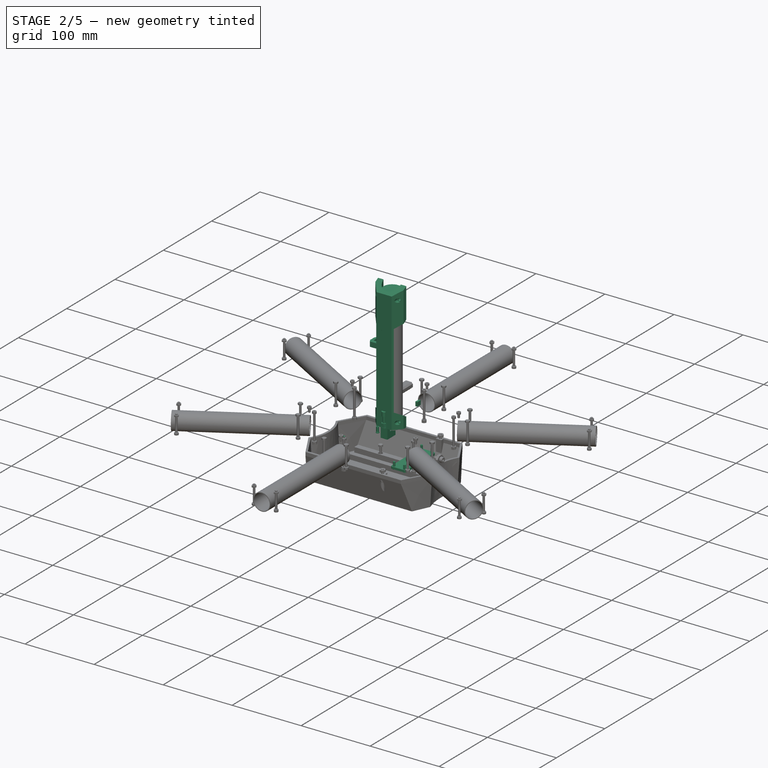
[diagram: stage 2 of 5 — iso view after this stage's code; geometry added in this stage tinted green]
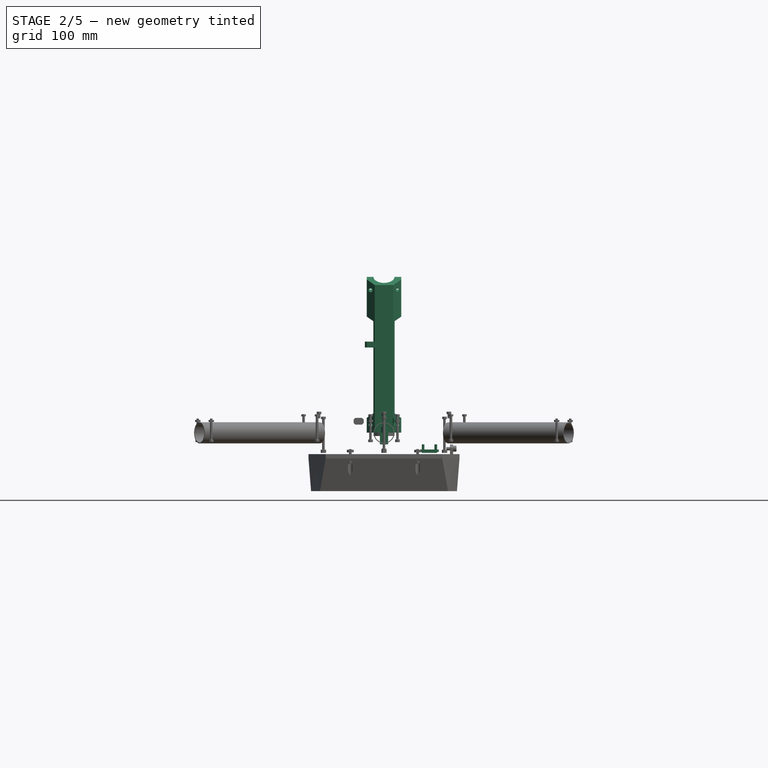
[diagram: stage 2 of 5 — front view after this stage's code; geometry added in this stage tinted green]
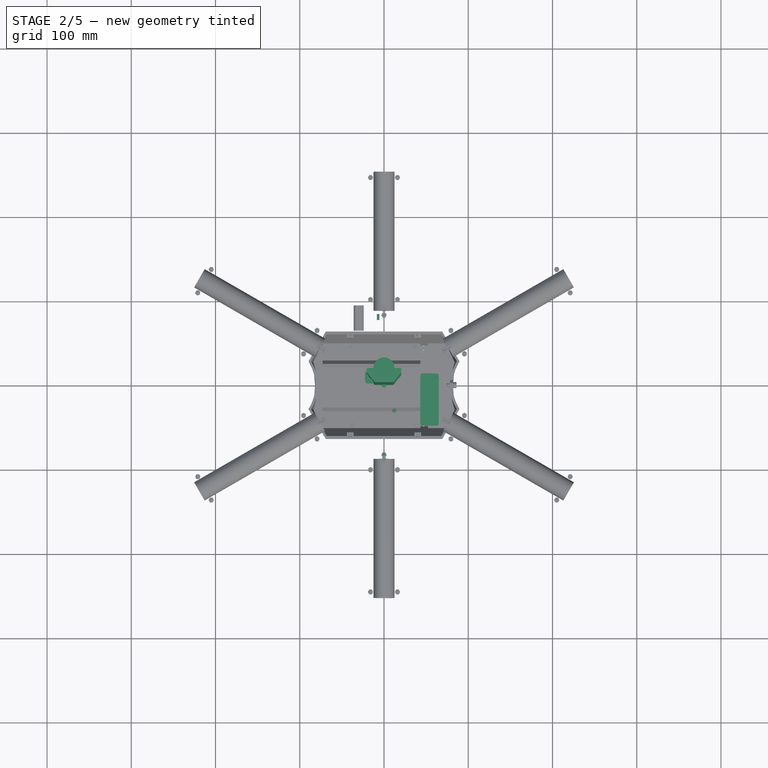
[diagram: stage 2 of 5 — top view after this stage's code; geometry added in this stage tinted green]
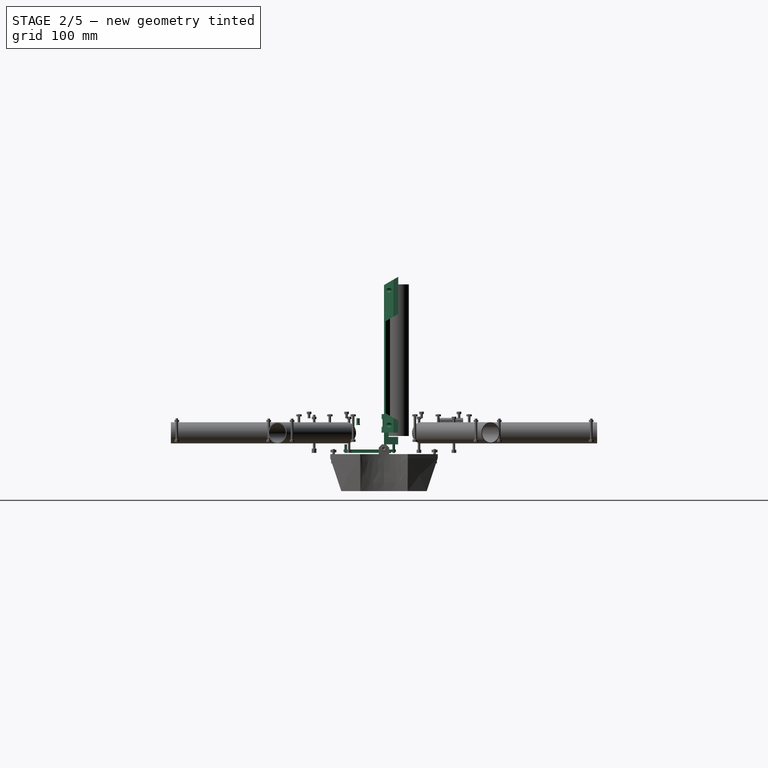
[diagram: stage 2 of 5 — right view after this stage's code; geometry added in this stage tinted green]
FEATURE [Part::FeaturePython] Screw  label="M3x40-Screw"  # Fasteners workbench fastener (typed FeaturePython)
  Placement = pos=(0,-83,-18.785) rot=(1,0,0;3.14159rad)
  diameter = 4
  invert = false
  leftHanded = false
  length = 0
  lengthCustom = 5
  matchOuter = false
  offset = 0
  thread = false
  type = 15
FEATURE [Sketcher::SketchObject] Sketch189
  FullyConstrained = false
  MapMode = 5
  sketch-geometry (7):
    g0: LineSegment StartX=-11 StartY=0 StartZ=0 EndX=11 EndY=0 EndZ=0
    g1: ArcOfCircle CenterX=0 CenterY=17 CenterZ=0 NormalX=0 NormalY=0 NormalZ=1 AngleXU=0 Radius=12.5 StartAngle=4.05789 EndAngle=5.36689
    g2: LineSegment StartX=-7.60952 StartY=7.08308 StartZ=0 EndX=7.60952 EndY=7.08308 EndZ=0
    g3: LineSegment StartX=11 StartY=0 StartZ=0 EndX=12.6782 EndY=2 EndZ=0
    g4: LineSegment StartX=12.6782 StartY=2 StartZ=0 EndX=7.60952 EndY=7.08308 EndZ=0
    g5: LineSegment StartX=-11 StartY=0 StartZ=0 EndX=-12.6782 EndY=2 EndZ=0
    g6: LineSegment StartX=-12.6782 StartY=2 StartZ=0 EndX=-7.60952 EndY=7.08308 EndZ=0
  constraints (20):
    c: Symmetric(g0,g0,g-2)
    c: DistanceX(g0,g0) = 22
    c: PointOnObject(g0,g-1)
    c: PointOnObject(g1,g-2)
    c: Radius(g1) = 12.5
    c: Coincident(g2,g1)
    c: Coincident(g2,g1)
    c: Horizontal(g2)
    c: Angle(g1) = 1.309
    c: DistanceY(g-1,g1) = 17
    c: Coincident(g3,g0)
    c: Coincident(g4,g3)
    c: Coincident(g4,g1)
    c: Coincident(g0,g5)
    c: Coincident(g5,g6)
    c: Coincident(g6,g1)
    c: Equal(g5,g3)
    c: Equal(g6,g4)
    c: Angle(g3,g0) = 2.26893
    c: DistanceY(g0,g3) = 2
FEATURE [Part::Extrusion] Extrude136002  label="Wing001"
  Base = -> Sketch189
  Dir = (0,0,128)
  DirMode = 0
  FaceMakerClass = Part::FaceMakerExtrusion
  LengthFwd = 0
  LengthRev = 0
  Placement = pos=(0,0,17) rot=(0,0,1;0rad)
  Solid = true
  Symmetric = false
FEATURE [Sketcher::SketchObject] Sketch191
  FullyConstrained = false
  MapMode = 5
  sketch-geometry (9):
    g0: LineSegment StartX=-11 StartY=0 StartZ=0 EndX=11 EndY=0 EndZ=0
    g1: ArcOfCircle CenterX=0 CenterY=17 CenterZ=0 NormalX=0 NormalY=0 NormalZ=1 AngleXU=0 Radius=12.5 StartAngle=3.15032 EndAngle=6.27446
    g2: LineSegment StartX=-12.4995 StartY=16.8909 StartZ=0 EndX=12.4995 EndY=16.8909 EndZ=0
    g3: LineSegment StartX=-20.5 StartY=11.3217 StartZ=0 EndX=-20.5 EndY=16.8909 EndZ=0
    g4: LineSegment StartX=-20.5 StartY=16.8909 StartZ=0 EndX=-12.4995 EndY=16.8909 EndZ=0
    g5: LineSegment StartX=20.5 StartY=11.3217 StartZ=0 EndX=20.5 EndY=16.8909 EndZ=0
    g6: LineSegment StartX=20.5 StartY=16.8909 StartZ=0 EndX=12.4995 EndY=16.8909 EndZ=0
    g7: LineSegment StartX=20.5 StartY=11.3217 StartZ=0 EndX=11 EndY=0 EndZ=0
    g8: LineSegment StartX=-20.5 StartY=11.3217 StartZ=0 EndX=-11 EndY=0 EndZ=0
  constraints (26):
    c: Symmetric(g0,g0,g-2)
    c: PointOnObject(g0,g-1)
    c: PointOnObject(g1,g-2)
    c: Radius(g1) = 12.5
    c: Coincident(g2,g1)
    c: Coincident(g2,g1)
    c: Horizontal(g2)
    c: Angle(g1) = 3.12414
    c: Vertical(g3)
    c: Coincident(g4,g1)
    c: Horizontal(g4)
    c: Coincident(g3,g4)
    c: Vertical(g5)
    c: Coincident(g6,g5)
    c: Horizontal(g6)
    c: Coincident(g6,g1)
    c: Equal(g4,g6)
    c: Equal(g5,g3)
    c: DistanceY(g-1,g1) = 17
    c: Coincident(g7,g5)
    c: Coincident(g7,g0)
    c: Coincident(g8,g0)
    c: Coincident(g8,g3)
    c: DistanceX(g3,g5) = 41
    c: Angle(g7,g0) = 2.26893
    c: DistanceX(g0,g0) = 22
FEATURE [Part::Extrusion] Extrude136004
  Base = -> Sketch191
  Dir = (0,0,38)
  DirMode = 0
  FaceMakerClass = Part::FaceMakerExtrusion
  LengthFwd = 0
  LengthRev = 0
  Placement = pos=(0,0,-9) rot=(0,0,1;0rad)
  Solid = true
  Symmetric = false
FEATURE [Sketcher::SketchObject] Sketch192
  FullyConstrained = false
  MapMode = 5
  Placement = pos=(0,0,0) rot=(1,0,0;1.5708rad)
  sketch-geometry (6):
    g0: Circle CenterX=-16 CenterY=0 CenterZ=0 NormalX=0 NormalY=0 NormalZ=1 AngleXU=0 Radius=1.85
    g1: Circle CenterX=16 CenterY=0 CenterZ=0 NormalX=0 NormalY=0 NormalZ=1 AngleXU=0 Radius=1.85
    g2: LineSegment StartX=-16 StartY=30 StartZ=0 EndX=16 EndY=30 EndZ=0
    g3: LineSegment StartX=16 StartY=30 StartZ=0 EndX=16 EndY=0 EndZ=0
    g4: LineSegment StartX=16 StartY=0 StartZ=0 EndX=-16 EndY=0 EndZ=0
    g5: LineSegment StartX=-16 StartY=0 StartZ=0 EndX=-16 EndY=30 EndZ=0
  constraints (16):
    c: PointOnObject(g0,g-1)
    c: Symmetric(g0,g1,g-2)
    c: Radius(g0) = 1.85
    c: Equal(g0,g1)
    c: DistanceX(g0,g1) = 32
    c: Coincident(g2,g3)
    c: Coincident(g3,g4)
    c: Coincident(g4,g5)
    c: Coincident(g5,g2)
    c: Horizontal(g2)
    c: Horizontal(g4)
    c: Vertical(g3)
    c: Vertical(g5)
    c: Coincident(g3,g1)
    c: Coincident(g4,g0)
    c: DistanceY(g5,g5) = 30
FEATURE [Part::Extrusion] Extrude136005
  Base = -> Sketch192
  Dir = (0,20,0)
  DirMode = 0
  FaceMakerClass = Part::FaceMakerExtrusion
  LengthFwd = 0
  LengthRev = 0
  Solid = true
  Symmetric = false
FEATURE [Sketcher::SketchObject] Sketch193
  FullyConstrained = false
  MapMode = 5
  Placement = pos=(0,0,0) rot=(1,0,0;1.5708rad)
  sketch-geometry (6):
    g0: Circle CenterX=-16 CenterY=0 CenterZ=0 NormalX=0 NormalY=0 NormalZ=1 AngleXU=0 Radius=2.75
    g1: Circle CenterX=16 CenterY=0 CenterZ=0 NormalX=0 NormalY=0 NormalZ=1 AngleXU=0 Radius=2.75
    g2: LineSegment StartX=-16 StartY=30 StartZ=0 EndX=16 EndY=30 EndZ=0
    g3: LineSegment StartX=16 StartY=30 StartZ=0 EndX=16 EndY=0 EndZ=0
    g4: LineSegment StartX=16 StartY=0 StartZ=0 EndX=-16 EndY=0 EndZ=0
    g5: LineSegment StartX=-16 StartY=0 StartZ=0 EndX=-16 EndY=30 EndZ=0
  constraints (16):
    c: PointOnObject(g0,g-1)
    c: Symmetric(g0,g1,g-2)
    c: Radius(g0) = 2.75
    c: Equal(g0,g1)
    c: DistanceX(g0,g1) = 32
    c: Coincident(g2,g3)
    c: Coincident(g3,g4)
    c: Coincident(g4,g5)
    c: Coincident(g5,g2)
    c: Horizontal(g2)
    c: Horizontal(g4)
    c: Vertical(g3)
    c: Vertical(g5)
    c: Coincident(g3,g1)
    c: Coincident(g4,g0)
    c: DistanceY(g5,g5) = 30
FEATURE [Part::Extrusion] Extrude136006
  Base = -> Sketch193
  Dir = (0,9,0)
  DirMode = 0
  FaceMakerClass = Part::FaceMakerExtrusion
  LengthFwd = 0
  LengthRev = 0
  Solid = true
  Symmetric = false
FEATURE [Part::MultiFuse] Fusion034004041016
  Placement = pos=(0,0,13) rot=(0,0,1;0rad)
  Shapes = -> [Extrude136005,Extrude136006]
FEATURE [Sketcher::SketchObject] Sketch194
  FullyConstrained = false
  MapMode = 5
  sketch-geometry (9):
    g0: LineSegment StartX=-11 StartY=0 StartZ=0 EndX=11 EndY=0 EndZ=0
    g1: ArcOfCircle CenterX=0 CenterY=17 CenterZ=0 NormalX=0 NormalY=0 NormalZ=1 AngleXU=0 Radius=12.5 StartAngle=3.15032 EndAngle=6.27446
    g2: LineSegment StartX=-12.4995 StartY=16.8909 StartZ=0 EndX=12.4995 EndY=16.8909 EndZ=0
    g3: LineSegment StartX=-20.5 StartY=11.3217 StartZ=0 EndX=-20.5 EndY=16.8909 EndZ=0
    g4: LineSegment StartX=-20.5 StartY=16.8909 StartZ=0 EndX=-12.4995 EndY=16.8909 EndZ=0
    g5: LineSegment StartX=20.5 StartY=11.3217 StartZ=0 EndX=20.5 EndY=16.8909 EndZ=0
    g6: LineSegment StartX=20.5 StartY=16.8909 StartZ=0 EndX=12.4995 EndY=16.8909 EndZ=0
    g7: LineSegment StartX=20.5 StartY=11.3217 StartZ=0 EndX=11 EndY=0 EndZ=0
    g8: LineSegment StartX=-20.5 StartY=11.3217 StartZ=0 EndX=-11 EndY=0 EndZ=0
  constraints (26):
    c: Symmetric(g0,g0,g-2)
    c: DistanceX(g0,g0) = 22
    c: PointOnObject(g0,g-1)
    c: PointOnObject(g1,g-2)
    c: Radius(g1) = 12.5
    c: Coincident(g2,g1)
    c: Coincident(g2,g1)
    c: Horizontal(g2)
    c: Angle(g1) = 3.12414
    c: Vertical(g3)
    c: Coincident(g4,g1)
    c: Horizontal(g4)
    c: Coincident(g3,g4)
    c: Vertical(g5)
    c: Coincident(g6,g5)
    c: Horizontal(g6)
    c: Coincident(g6,g1)
    c: Equal(g4,g6)
    c: Equal(g5,g3)
    c: DistanceY(g-1,g1) = 17
    c: Coincident(g7,g5)
    c: Coincident(g7,g0)
    c: Coincident(g8,g0)
    c: Coincident(g8,g3)
    c: Angle(g7,g0) = 2.26893
    c: DistanceX(g3,g5) = 41
FEATURE [Part::Extrusion] Extrude136007
  Base = -> Sketch194
  Dir = (0,0,24)
  DirMode = 0
  FaceMakerClass = Part::FaceMakerExtrusion
  LengthFwd = 0
  LengthRev = 0
  Solid = true
  Symmetric = false
FEATURE [Sketcher::SketchObject] Sketch195
  FullyConstrained = false
  MapMode = 5
  Placement = pos=(0,0,0) rot=(1,0,0;1.5708rad)
  sketch-geometry (2):
    g0: Circle CenterX=-16 CenterY=0 CenterZ=0 NormalX=0 NormalY=0 NormalZ=1 AngleXU=0 Radius=1.85
    g1: Circle CenterX=16 CenterY=0 CenterZ=0 NormalX=0 NormalY=0 NormalZ=1 AngleXU=0 Radius=1.85
  constraints (5):
    c: PointOnObject(g0,g-1)
    c: Symmetric(g0,g1,g-2)
    c: Radius(g0) = 1.85
    c: Equal(g0,g1)
    c: DistanceX(g0,g1) = 32
FEATURE [Part::Extrusion] Extrude136008
  Base = -> Sketch195
  Dir = (0,20,0)
  DirMode = 0
  FaceMakerClass = Part::FaceMakerExtrusion
  LengthFwd = 0
  LengthRev = 0
  Solid = true
  Symmetric = false
FEATURE [Sketcher::SketchObject] Sketch196
  FullyConstrained = false
  MapMode = 5
  Placement = pos=(0,0,0) rot=(1,0,0;1.5708rad)
  sketch-geometry (2):
    g0: Circle CenterX=-16 CenterY=0 CenterZ=0 NormalX=0 NormalY=0 NormalZ=1 AngleXU=0 Radius=2.75
    g1: Circle CenterX=16 CenterY=0 CenterZ=0 NormalX=0 NormalY=0 NormalZ=1 AngleXU=0 Radius=2.75
  constraints (5):
    c: PointOnObject(g0,g-1)
    c: Symmetric(g0,g1,g-2)
    c: Radius(g0) = 2.75
    c: Equal(g0,g1)
    c: DistanceX(g0,g1) = 32
FEATURE [Part::Extrusion] Extrude136009
  Base = -> Sketch196
  Dir = (0,9,0)
  DirMode = 0
  FaceMakerClass = Part::FaceMakerExtrusion
  LengthFwd = 0
  LengthRev = 0
  Solid = true
  Symmetric = false
FEATURE [Part::MultiFuse] Fusion034004041017
  Placement = pos=(0,0,9) rot=(0,0,1;0rad)
  Shapes = -> [Extrude136008,Extrude136009]
FEATURE [Part::Cut] Cut009010006006003  label="BodyBracket001"
  Base = -> Extrude136007
  Tool = -> Fusion034004041017
FEATURE [Sketcher::SketchObject] Sketch197
  FullyConstrained = false
  MapMode = 5
  Placement = pos=(0,0,0) rot=(0.57735,0.57735,0.57735;2.0944rad)
  sketch-geometry (6):
    g0: LineSegment StartX=0 StartY=-9.81495 StartZ=0 EndX=17 EndY=0 EndZ=0
    g1: LineSegment StartX=17 StartY=0 StartZ=0 EndX=17 EndY=-9.81495 EndZ=0
    g2: LineSegment StartX=17 StartY=-9.81495 StartZ=0 EndX=0 EndY=-9.81495 EndZ=0
    g3: LineSegment StartX=17 StartY=29 StartZ=0 EndX=0 EndY=19.185 EndZ=0
    g4: LineSegment StartX=0 StartY=19.185 StartZ=0 EndX=0 EndY=29 EndZ=0
    g5: LineSegment StartX=0 StartY=29 StartZ=0 EndX=17 EndY=29 EndZ=0
  constraints (18):
    c: Coincident(g0,g1)
    c: Vertical(g1)
    c: Coincident(g1,g2)
    c: Coincident(g2,g0)
    c: Horizontal(g2)
    c: Angle(g2,g0) = 0.523599
    c: DistanceX(g2,g2) = 17
    c: PointOnObject(g0,g-2)
    c: PointOnObject(g0,g-1)
    c: Coincident(g3,g4)
    c: Vertical(g4)
    c: Coincident(g4,g5)
    c: Horizontal(g5)
    c: Coincident(g5,g3)
    c: Equal(g4,g1)
    c: Equal(g2,g5)
    c: PointOnObject(g3,g-2)
    c: DistanceY(g0,g3) = 29
FEATURE [Part::Extrusion] Extrude136010
  Base = -> Sketch197
  Dir = (50,0,0)
  DirMode = 0
  FaceMakerClass = Part::FaceMakerExtrusion
  LengthFwd = 0
  LengthRev = 0
  Placement = pos=(-25,0,0) rot=(0,0,1;0rad)
  Solid = true
  Symmetric = false
FEATURE [Part::MultiFuse] Fusion034004041018
  Shapes = -> [Fusion034004041016,Extrude136010]
FEATURE [Part::Cut] Cut009010006006004
  Base = -> Extrude136004
  Placement = pos=(0,0,141) rot=(0,0,1;0rad)
  Tool = -> Fusion034004041018
FEATURE [Sketcher::SketchObject] Sketch198
  FullyConstrained = false
  MapMode = 5
  Placement = pos=(0,0,0) rot=(0.57735,0.57735,0.57735;2.0944rad)
  sketch-geometry (3):
    g0: LineSegment StartX=0 StartY=24 StartZ=0 EndX=17 EndY=24 EndZ=0
    g1: LineSegment StartX=0 StartY=24 StartZ=0 EndX=17 EndY=14.185 EndZ=0
    g2: LineSegment StartX=17 StartY=14.185 StartZ=0 EndX=17 EndY=24 EndZ=0
  constraints (9):
    c: Horizontal(g0)
    c: Coincident(g0,g1)
    c: Coincident(g1,g2)
    c: Coincident(g2,g0)
    c: Vertical(g2)
    c: DistanceX(g0,g0) = 17
    c: Angle(g1,g0) = 0.523599
    c: PointOnObject(g0,g-2)
    c: DistanceY(g-1,g0) = 24
FEATURE [Part::Extrusion] Extrude136011
  Base = -> Sketch198
  Dir = (50,0,0)
  DirMode = 0
  FaceMakerClass = Part::FaceMakerExtrusion
  LengthFwd = 0
  LengthRev = 0
  Placement = pos=(-25,0,0) rot=(0,0,1;0rad)
  Solid = true
  Symmetric = false
FEATURE [Part::Cut] Cut009010006006005
  Base = -> Cut009010006006003
  Tool = -> Extrude136011
FEATURE [Sketcher::SketchObject] Sketch199
  FullyConstrained = false
  MapMode = 5
  sketch-geometry (5):
    g0: LineSegment StartX=-4.875 StartY=0 StartZ=0 EndX=4.875 EndY=0 EndZ=0
    g1: ArcOfCircle CenterX=0 CenterY=17 CenterZ=0 NormalX=0 NormalY=0 NormalZ=1 AngleXU=0 Radius=12.5 StartAngle=4.31176 EndAngle=5.11302
    g2: LineSegment StartX=-4.875 StartY=5.48981 StartZ=0 EndX=4.875 EndY=5.48981 EndZ=0
    g3: LineSegment StartX=-4.875 StartY=5.48981 StartZ=0 EndX=-4.875 EndY=0 EndZ=0
    g4: LineSegment StartX=4.875 StartY=5.48981 StartZ=0 EndX=4.875 EndY=0 EndZ=0
  constraints (14):
    c: Symmetric(g0,g0,g-2)
    c: PointOnObject(g0,g-1)
    c: PointOnObject(g1,g-2)
    c: Radius(g1) = 12.5
    c: Coincident(g2,g1)
    c: Coincident(g2,g1)
    c: Horizontal(g2)
    c: DistanceY(g-1,g1) = 17
    c: Coincident(g3,g1)
    c: Coincident(g3,g0)
    c: Vertical(g3)
    c: Coincident(g4,g1)
    c: Coincident(g4,g0)
    c: DistanceX(g0,g0) = 9.75
FEATURE [Part::Extrusion] Extrude136012
  Base = -> Sketch199
  Dir = (0,0,-14)
  DirMode = 0
  FaceMakerClass = Part::FaceMakerExtrusion
  LengthFwd = 0
  LengthRev = 0
  Solid = true
  Symmetric = false
FEATURE [Sketcher::SketchObject] Sketch200
  FullyConstrained = false
  MapMode = 5
  sketch-geometry (4):
    g0: LineSegment StartX=-4.875 StartY=0 StartZ=0 EndX=4.875 EndY=0 EndZ=0
    g1: LineSegment StartX=-4.875 StartY=16.75 StartZ=0 EndX=4.875 EndY=16.75 EndZ=0
    g2: LineSegment StartX=-4.875 StartY=16.75 StartZ=0 EndX=-4.875 EndY=0 EndZ=0
    g3: LineSegment StartX=4.875 StartY=16.75 StartZ=0 EndX=4.875 EndY=0 EndZ=0
  constraints (11):
    c: Symmetric(g0,g0,g-2)
    c: PointOnObject(g0,g-1)
    c: Horizontal(g1)
    c: Coincident(g2,g0)
    c: Vertical(g2)
    c: Coincident(g3,g0)
    c: DistanceX(g0,g0) = 9.75
    c: Coincident(g3,g1)
    c: Coincident(g2,g1)
    c: Vertical(g3)
    c: DistanceY(g3,g3) = 16.75
FEATURE [Part::Extrusion] Extrude136013
  Base = -> Sketch200
  Dir = (0,0,-9)
  DirMode = 0
  FaceMakerClass = Part::FaceMakerExtrusion
  LengthFwd = 0
  LengthRev = 0
  Placement = pos=(0,0,-5) rot=(0,0,1;0rad)
  Solid = true
  Symmetric = false
FEATURE [Sketcher::SketchObject] Sketch201
  FullyConstrained = false
  MapMode = 5
  sketch-geometry (12):
    g0: LineSegment StartX=0 StartY=5 StartZ=0 EndX=0 EndY=0 EndZ=0
    g1: LineSegment StartX=0 StartY=0 StartZ=0 EndX=-20.5 EndY=0 EndZ=0
    g2: LineSegment StartX=-20.5 StartY=0 StartZ=0 EndX=-22.6651 EndY=3.75 EndZ=0
    g3: LineSegment StartX=-22.6651 StartY=3.75 StartZ=0 EndX=-22.6651 EndY=11.75 EndZ=0
    g4: LineSegment StartX=-22.6651 StartY=11.75 StartZ=0 EndX=-20.5 EndY=15.5 EndZ=0
    g5: LineSegment StartX=-20.5 StartY=15.5 StartZ=0 EndX=-18 EndY=15.5 EndZ=0
    g6: LineSegment StartX=-18 StartY=15.5 StartZ=0 EndX=-18 EndY=13 EndZ=0
    g7: LineSegment StartX=-18 StartY=13 StartZ=0 EndX=-18.6651 EndY=11.8481 EndZ=0
    g8: LineSegment StartX=-18.6651 StartY=11.8481 StartZ=0 EndX=-18.6651 EndY=6.15192 EndZ=0
    g9: LineSegment StartX=-18.6651 StartY=6.15192 StartZ=0 EndX=-18 EndY=5 EndZ=0
    g10: LineSegment StartX=-18 StartY=5 StartZ=0 EndX=0 EndY=5 EndZ=0
    g11: LineSegment StartX=-18.6651 StartY=6.15192 StartZ=0 EndX=-22.6651 EndY=6.15192 EndZ=0
  constraints (35):
    c: Vertical(g0)
    c: Coincident(g0,g-1)
    c: DistanceY(g0,g0) = 5
    c: Horizontal(g1)
    c: Coincident(g2,g1)
    c: Coincident(g2,g3)
    c: Vertical(g3)
    c: Coincident(g3,g4)
    c: Coincident(g4,g5)
    c: Horizontal(g5)
    c: Coincident(g5,g6)
    c: Coincident(g6,g7)
    c: Coincident(g7,g8)
    c: Vertical(g8)
    c: Coincident(g8,g9)
    c: Coincident(g9,g10)
    c: Horizontal(g10)
    c: Parallel(g7,g4)
    c: Parallel(g9,g2)
    c: Vertical(g6)
    c: Equal(g4,g2)
    c: Coincident(g11,g8)
    c: PointOnObject(g11,g3)
    c: Horizontal(g11)
    c: Equal(g6,g5)
    c: DistanceX(g11,g11) = 4
    c: DistanceX(g10,g10) = 18
    c: DistanceY(g9,g6) = 8
    c: DistanceX(g5,g5) = 2.5
    c: Angle(g3,g4) = 2.61799
    c: Coincident(g1,g-1)
    c: DistanceY(g3,g3) = 8
    c: Coincident(g10,g0)
    c: Angle(g2,g3) = 2.61799
    c: Equal(g9,g7)
FEATURE [Part::Extrusion] Extrude136014
  Base = -> Sketch201
  Dir = (0,0,7)
  DirMode = 0
  FaceMakerClass = Part::FaceMakerExtrusion
  LengthFwd = 0
  LengthRev = 0
  Placement = pos=(0,0,101) rot=(0,0,1;0rad)
  Solid = true
  Symmetric = false
FEATURE [Part::Box] Box016  label="Cube012"
  AttacherType = Attacher::AttachEngine3D
  Height = 6
  Length = 3
  Placement = pos=(-8.5,77,-3) rot=(0,0,1;0rad)
  Width = 7
FEATURE [Sketcher::SketchObject] Sketch202
  FullyConstrained = false
  MapMode = 5
  Placement = pos=(0,0,0) rot=(1,0,0;1.5708rad)
  sketch-geometry (9):
    g0: LineSegment StartX=2.25 StartY=8 StartZ=0 EndX=0 EndY=8 EndZ=0
    g1: LineSegment StartX=0 StartY=8 StartZ=0 EndX=0 EndY=7.5 EndZ=0
    g2: LineSegment StartX=1.05 StartY=7 StartZ=0 EndX=1.05 EndY=0 EndZ=0
    g3: LineSegment StartX=1.85 StartY=0 StartZ=0 EndX=1.85 EndY=6.5233 EndZ=0
    g4: LineSegment StartX=2.25 StartY=8 StartZ=0 EndX=2.25 EndY=7 EndZ=0
    g5: LineSegment StartX=1.85 StartY=6.5233 StartZ=0 EndX=2.25 EndY=7 EndZ=0
    g6: LineSegment StartX=1.05 StartY=7 StartZ=0 EndX=1.18397 EndY=7.5 EndZ=0
    g7: LineSegment StartX=1.18397 StartY=7.5 StartZ=0 EndX=0 EndY=7.5 EndZ=0
    g8: LineSegment StartX=1.05 StartY=0 StartZ=0 EndX=1.85 EndY=0 EndZ=0
  constraints (27):
    c: Horizontal(g0)
    c: Coincident(g0,g1)
    c: Vertical(g1)
    c: Vertical(g2)
    c: PointOnObject(g0,g-2)
    c: DistanceX(g-1,g2) = 1.05
    c: Vertical(g3)
    c: Coincident(g4,g0)
    c: Vertical(g4)
    c: DistanceY(g4,g4) = 1
    c: DistanceY(g1,g1) = 0.5
    c: DistanceX(g0,g0) = 2.25
    c: Coincident(g5,g3)
    c: Coincident(g5,g4)
    c: Angle(g3,g5) = 2.44346
    c: Coincident(g7,g1)
    c: Horizontal(g7)
    c: Coincident(g6,g7)
    c: Angle(g6,g2) = 3.40339
    c: Coincident(g6,g2)
    c: DistanceY(g-1,g4) = 7
    c: DistanceY(g2,g0) = 1
    c: Coincident(g8,g2)
    c: Coincident(g8,g3)
    c: Horizontal(g8)
    c: PointOnObject(g3,g-1)
    c: DistanceX(g8,g8) = 0.8
FEATURE [Part::Revolution] Revolve001  label="LedCoverRevolve001"
  Angle = 360
  Axis = (0,0,1)
  Base = (0,0,0)
  Placement = pos=(12.25,-30.75,17) rot=(1,0,0;3.14159rad)
  Solid = true
  Source = -> Sketch202
  Symmetric = false
FEATURE [Part::Cylinder] Cylinder014  label="180mmCylinder"
  Angle = 360
  AttacherType = Attacher::AttachEngine3D
  FirstAngle = 0
  Height = 180
  Placement = pos=(0,17,-4) rot=(0,0,1;0rad)
  Radius = 12.5
  SecondAngle = 0
FEATURE [Sketcher::SketchObject] Sketch203
  FullyConstrained = false
  MapMode = 5
  sketch-geometry (7):
    g0: LineSegment StartX=-11 StartY=0 StartZ=0 EndX=11 EndY=0 EndZ=0
    g1: ArcOfCircle CenterX=0 CenterY=17 CenterZ=0 NormalX=0 NormalY=0 NormalZ=1 AngleXU=0 Radius=12.5 StartAngle=4.05789 EndAngle=5.36689
    g2: LineSegment StartX=-7.60952 StartY=7.08308 StartZ=0 EndX=7.60952 EndY=7.08308 EndZ=0
    g3: LineSegment StartX=11 StartY=0 StartZ=0 EndX=12.6782 EndY=2 EndZ=0
    g4: LineSegment StartX=12.6782 StartY=2 StartZ=0 EndX=7.60952 EndY=7.08308 EndZ=0
    g5: LineSegment StartX=-11 StartY=0 StartZ=0 EndX=-12.6782 EndY=2 EndZ=0
    g6: LineSegment StartX=-12.6782 StartY=2 StartZ=0 EndX=-7.60952 EndY=7.08308 EndZ=0
  constraints (20):
    c: Symmetric(g0,g0,g-2)
    c: DistanceX(g0,g0) = 22
    c: PointOnObject(g0,g-1)
    c: PointOnObject(g1,g-2)
    c: Radius(g1) = 12.5
    c: Coincident(g2,g1)
    c: Coincident(g2,g1)
    c: Horizontal(g2)
    c: Angle(g1) = 1.309
    c: DistanceY(g-1,g1) = 17
    c: Coincident(g3,g0)
    c: Coincident(g4,g3)
    c: Coincident(g4,g1)
    c: Coincident(g0,g5)
    c: Coincident(g5,g6)
    c: Coincident(g6,g1)
    c: Equal(g5,g3)
    c: Equal(g6,g4)
    c: Angle(g3,g0) = 2.26893
    c: DistanceY(g0,g3) = 2
FEATURE [Part::Extrusion] Extrude136015  label="Wing002"
  Base = -> Sketch203
  Dir = (0,0,135)
  DirMode = 0
  FaceMakerClass = Part::FaceMakerExtrusion
  LengthFwd = 0
  LengthRev = 0
  Placement = pos=(0,0,17) rot=(0,0,1;0rad)
  Solid = true
  Symmetric = false
FEATURE [Sketcher::SketchObject] Sketch204
  FullyConstrained = false
  MapMode = 5
  Placement = pos=(0,0,0) rot=(1,0,0;1.5708rad)
  sketch-geometry (69):
    g0: LineSegment StartX=3.5 StartY=19.1878 StartZ=0 EndX=7 EndY=25.25 EndZ=0
    g1: LineSegment StartX=7 StartY=25.25 StartZ=0 EndX=3.5 EndY=31.3122 EndZ=0
    g2: LineSegment StartX=3.5 StartY=31.3122 StartZ=0 EndX=-3.5 EndY=31.3122 EndZ=0
    g3: LineSegment StartX=-3.5 StartY=31.3122 StartZ=0 EndX=-7 EndY=25.25 EndZ=0
    g4: LineSegment StartX=-7 StartY=25.25 StartZ=0 EndX=-3.5 EndY=19.1878 EndZ=0
    g5: LineSegment StartX=-3.5 StartY=19.1878 StartZ=0 EndX=3.5 EndY=19.1878 EndZ=0
    g6: Circle CenterX=0 CenterY=25.25 CenterZ=0 NormalX=0 NormalY=0 NormalZ=1 AngleXU=0 Radius=7
    g7: LineSegment StartX=3.5 StartY=35.1878 StartZ=0 EndX=7 EndY=41.25 EndZ=0
    g8: LineSegment StartX=7 StartY=41.25 StartZ=0 EndX=3.5 EndY=47.3122 EndZ=0
    g9: LineSegment StartX=3.5 StartY=47.3122 StartZ=0 EndX=-3.5 EndY=47.3122 EndZ=0
    g10: LineSegment StartX=-3.5 StartY=47.3122 StartZ=0 EndX=-7 EndY=41.25 EndZ=0
    g11: LineSegment StartX=-7 StartY=41.25 StartZ=0 EndX=-3.5 EndY=35.1878 EndZ=0
    g12: LineSegment StartX=-3.5 StartY=35.1878 StartZ=0 EndX=3.5 EndY=35.1878 EndZ=0
    g13: Circle CenterX=0 CenterY=41.25 CenterZ=0 NormalX=0 NormalY=0 NormalZ=1 AngleXU=0 Radius=7
    g14: LineSegment StartX=3.5 StartY=51.1878 StartZ=0 EndX=7 EndY=57.25 EndZ=0
    g15: LineSegment StartX=7 StartY=57.25 StartZ=0 EndX=3.5 EndY=63.3122 EndZ=0
    g16: LineSegment StartX=3.5 StartY=63.3122 StartZ=0 EndX=-3.5 EndY=63.3122 EndZ=0
    g17: LineSegment StartX=-3.5 StartY=63.3122 StartZ=0 EndX=-7 EndY=57.25 EndZ=0
    g18: LineSegment StartX=-7 StartY=57.25 StartZ=0 EndX=-3.5 EndY=51.1878 EndZ=0
    g19: LineSegment StartX=-3.5 StartY=51.1878 StartZ=0 EndX=3.5 EndY=51.1878 EndZ=0
    g20: Circle CenterX=0 CenterY=57.25 CenterZ=0 NormalX=0 NormalY=0 NormalZ=1 AngleXU=0 Radius=7
    g21: LineSegment StartX=3.5 StartY=67.1878 StartZ=0 EndX=7 EndY=73.25 EndZ=0
    g22: LineSegment StartX=7 StartY=73.25 StartZ=0 EndX=3.5 EndY=79.3122 EndZ=0
    g23: LineSegment StartX=3.5 StartY=79.3122 StartZ=0 EndX=-3.5 EndY=79.3122 EndZ=0
    g24: LineSegment StartX=-3.5 StartY=79.3122 StartZ=0 EndX=-7 EndY=73.25 EndZ=0
    g25: LineSegment StartX=-7 StartY=73.25 StartZ=0 EndX=-3.5 EndY=67.1878 EndZ=0
    g26: LineSegment StartX=-3.5 StartY=67.1878 StartZ=0 EndX=3.5 EndY=67.1878 EndZ=0
    g27: Circle CenterX=0 CenterY=73.25 CenterZ=0 NormalX=0 NormalY=0 NormalZ=1 AngleXU=0 Radius=7
    g28: LineSegment StartX=3.5 StartY=83.1878 StartZ=0 EndX=7 EndY=89.25 EndZ=0
    g29: LineSegment StartX=7 StartY=89.25 StartZ=0 EndX=3.5 EndY=95.3122 EndZ=0
    g30: LineSegment StartX=3.5 StartY=95.3122 StartZ=0 EndX=-3.5 EndY=95.3122 EndZ=0
    g31: LineSegment StartX=-3.5 StartY=95.3122 StartZ=0 EndX=-7 EndY=89.25 EndZ=0
    g32: LineSegment StartX=-7 StartY=89.25 StartZ=0 EndX=-3.5 EndY=83.1878 EndZ=0
    g33: LineSegment StartX=-3.5 StartY=83.1878 StartZ=0 EndX=3.5 EndY=83.1878 EndZ=0
    g34: Circle CenterX=0 CenterY=89.25 CenterZ=0 NormalX=0 NormalY=0 NormalZ=1 AngleXU=0 Radius=7
    g35: LineSegment StartX=3.5 StartY=99.1878 StartZ=0 EndX=7 EndY=105.25 EndZ=0
    g36: LineSegment StartX=7 StartY=105.25 StartZ=0 EndX=3.5 EndY=111.312 EndZ=0
    g37: LineSegment StartX=3.5 StartY=111.312 StartZ=0 EndX=-3.5 EndY=111.312 EndZ=0
    g38: LineSegment StartX=-3.5 StartY=111.312 StartZ=0 EndX=-7 EndY=105.25 EndZ=0
    g39: LineSegment StartX=-7 StartY=105.25 StartZ=0 EndX=-3.5 EndY=99.1878 EndZ=0
    g40: LineSegment StartX=-3.5 StartY=99.1878 StartZ=0 EndX=3.5 EndY=99.1878 EndZ=0
    g41: Circle CenterX=0 CenterY=105.25 CenterZ=0 NormalX=0 NormalY=0 NormalZ=1 AngleXU=0 Radius=7
    g42: LineSegment StartX=3.5 StartY=115.188 StartZ=0 EndX=7 EndY=121.25 EndZ=0
    g43: LineSegment StartX=7 StartY=121.25 StartZ=0 EndX=3.5 EndY=127.312 EndZ=0
    g44: LineSegment StartX=3.5 StartY=127.312 StartZ=0 EndX=-3.5 EndY=127.312 EndZ=0
    g45: LineSegment StartX=-3.5 StartY=127.312 StartZ=0 EndX=-7 EndY=121.25 EndZ=0
    g46: LineSegment StartX=-7 StartY=121.25 StartZ=0 EndX=-3.5 EndY=115.188 EndZ=0
    g47: LineSegment StartX=-3.5 StartY=115.188 StartZ=0 EndX=3.5 EndY=115.188 EndZ=0
    g48: Circle CenterX=0 CenterY=121.25 CenterZ=0 NormalX=0 NormalY=0 NormalZ=1 AngleXU=0 Radius=7
    g49: LineSegment StartX=3.5 StartY=131.188 StartZ=0 EndX=7 EndY=137.25 EndZ=0
    g50: LineSegment StartX=7 StartY=137.25 StartZ=0 EndX=3.5 EndY=143.312 EndZ=0
    g51: LineSegment StartX=3.5 StartY=143.312 StartZ=0 EndX=-3.5 EndY=143.312 EndZ=0
    g52: LineSegment StartX=-3.5 StartY=143.312 StartZ=0 EndX=-7 EndY=137.25 EndZ=0
    g53: LineSegment StartX=-7 StartY=137.25 StartZ=0 EndX=-3.5 EndY=131.188 EndZ=0
    g54: LineSegment StartX=-3.5 StartY=131.188 StartZ=0 EndX=3.5 EndY=131.188 EndZ=0
    g55: Circle CenterX=0 CenterY=137.25 CenterZ=0 NormalX=0 NormalY=0 NormalZ=1 AngleXU=0 Radius=7
    g56: LineSegment StartX=0 StartY=137.25 StartZ=0 EndX=0 EndY=121.25 EndZ=0
    g57: LineSegment StartX=0 StartY=121.25 StartZ=0 EndX=0 EndY=105.25 EndZ=0
    g58: LineSegment StartX=0 StartY=105.25 StartZ=0 EndX=0 EndY=89.25 EndZ=0
    g59: LineSegment StartX=0 StartY=89.25 StartZ=0 EndX=0 EndY=73.25 EndZ=0
    g60: LineSegment StartX=0 StartY=73.25 StartZ=0 EndX=0 EndY=57.25 EndZ=0
    g61: LineSegment StartX=0 StartY=57.25 StartZ=0 EndX=0 EndY=41.25 EndZ=0
    g62: LineSegment StartX=0 StartY=41.25 StartZ=0 EndX=0 EndY=25.25 EndZ=0
    g63: LineSegment StartX=0 StartY=25.25 StartZ=0 EndX=0 EndY=9.25 EndZ=0
    g64: LineSegment StartX=5 StartY=-8.99998 StartZ=0 EndX=5 EndY=-16 EndZ=0
    g65: LineSegment StartX=5 StartY=-16 StartZ=0 EndX=-5 EndY=-16 EndZ=0
    g66: LineSegment StartX=-5 StartY=-16 StartZ=0 EndX=-5 EndY=-8.99998 EndZ=0
    g67: ArcOfCircle CenterX=0 CenterY=-9 CenterZ=0 NormalX=0 NormalY=0 NormalZ=1 AngleXU=0 Radius=5 StartAngle=3.14159 EndAngle=6.28319
    g68: Circle CenterX=0 CenterY=-9 CenterZ=0 NormalX=0 NormalY=0 NormalZ=1 AngleXU=0 Radius=1.85
  constraints (169):
    c: Coincident(g0,g1)
    c: Coincident(g1,g2)
    c: Coincident(g2,g3)
    c: Coincident(g3,g4)
    c: Coincident(g4,g5)
    c: Coincident(g5,g0)
    c: Equal(g0, g1-g5) x5
    c: PointOnObject(g0,g6)
    c: PointOnObject(g1,g6)
    c: PointOnObject(g2,g6)
    c: PointOnObject(g3,g6)
    c: PointOnObject(g4,g6)
    c: PointOnObject(g5,g6)
    c: PointOnObject(g6,g-2)
    c: Coincident(g7,g8)
    c: Coincident(g8,g9)
    c: Coincident(g9,g10)
    c: Coincident(g10,g11)
    c: Coincident(g11,g12)
    c: Coincident(g12,g7)
    c: Equal(g7, g8-g12) x5
    c: PointOnObject(g7,g13)
    c: PointOnObject(g8,g13)
    c: PointOnObject(g9,g13)
    c: PointOnObject(g10,g13)
    c: PointOnObject(g11,g13)
    c: PointOnObject(g12,g13)
    c: PointOnObject(g13,g-2)
    c: Horizontal(g12)
    c: Radius(g13) = 7
    c: Equal(g13,g6)
    c: Parallel(g12,g5)
    c: Coincident(g14,g15)
    c: Coincident(g15,g16)
    c: Coincident(g16,g17)
    c: Coincident(g17,g18)
    c: Coincident(g18,g19)
    c: Coincident(g19,g14)
    c: Equal(g14, g15-g19) x5
    c: PointOnObject(g14,g20)
    c: PointOnObject(g15,g20)
    c: PointOnObject(g16,g20)
    c: PointOnObject(g17,g20)
    c: PointOnObject(g18,g20)
    c: PointOnObject(g19,g20)
    c: PointOnObject(g20,g-2)
    c: Coincident(g21,g22)
    c: Coincident(g22,g23)
    c: Coincident(g23,g24)
    c: Coincident(g24,g25)
    c: Coincident(g25,g26)
    c: Coincident(g26,g21)
    c: Equal(g21, g22-g26) x5
    c: PointOnObject(g21,g27)
    c: PointOnObject(g22,g27)
    c: PointOnObject(g23,g27)
    c: PointOnObject(g24,g27)
    c: PointOnObject(g25,g27)
    c: PointOnObject(g26,g27)
    c: PointOnObject(g27,g-2)
    c: Horizontal(g26)
    c: Equal(g20,g27)
    c: Equal(g27,g13)
    c: Horizontal(g19)
    c: Coincident(g28,g29)
    c: Coincident(g29,g30)
    c: Coincident(g30,g31)
    c: Coincident(g31,g32)
    c: Coincident(g32,g33)
    c: Coincident(g33,g28)
    c: Equal(g28, g29-g33) x5
    c: PointOnObject(g28,g34)
    c: PointOnObject(g29,g34)
    c: PointOnObject(g30,g34)
    c: PointOnObject(g31,g34)
    c: PointOnObject(g32,g34)
    c: PointOnObject(g33,g34)
    c: PointOnObject(g34,g-2)
    c: Coincident(g35,g36)
    c: Coincident(g36,g37)
    c: Coincident(g37,g38)
    c: Coincident(g38,g39)
    c: Coincident(g39,g40)
    c: Coincident(g40,g35)
    c: Equal(g35, g36-g40) x5
    c: PointOnObject(g35,g41)
    c: PointOnObject(g36,g41)
    c: PointOnObject(g37,g41)
    c: PointOnObject(g38,g41)
    c: PointOnObject(g39,g41)
    c: PointOnObject(g40,g41)
    c: PointOnObject(g41,g-2)
    c: Horizontal(g33)
    c: Horizontal(g40)
    c: Equal(g34,g41)
    c: Equal(g41,g27)
    c: Coincident(g42,g43)
    c: Coincident(g43,g44)
    c: Coincident(g44,g45)
    c: Coincident(g45,g46)
    c: Coincident(g46,g47)
    c: Coincident(g47,g42)
    c: Equal(g42, g43-g47) x5
    c: PointOnObject(g42,g48)
    c: PointOnObject(g43,g48)
    c: PointOnObject(g44,g48)
    c: PointOnObject(g45,g48)
    c: PointOnObject(g46,g48)
    c: PointOnObject(g47,g48)
    c: PointOnObject(g48,g-2)
    c: Equal(g48,g41)
    c: Horizontal(g47)
    c: Coincident(g49,g50)
    c: Coincident(g50,g51)
    c: Coincident(g51,g52)
    c: Coincident(g52,g53)
    c: Coincident(g53,g54)
    c: Coincident(g54,g49)
    c: Equal(g49, g50-g54) x5
    c: PointOnObject(g49,g55)
    c: PointOnObject(g50,g55)
    c: PointOnObject(g51,g55)
    c: PointOnObject(g52,g55)
    c: PointOnObject(g53,g55)
    c: PointOnObject(g54,g55)
    c: PointOnObject(g55,g-2)
    c: Horizontal(g54)
    c: Coincident(g56,g55)
    c: Coincident(g56,g48)
    c: Coincident(g57,g48)
    c: Coincident(g57,g41)
    c: Coincident(g58,g41)
    c: Coincident(g58,g34)
    c: Coincident(g59,g34)
    c: Coincident(g59,g27)
    c: Coincident(g60,g27)
    c: Coincident(g60,g20)
    c: Coincident(g61,g20)
    c: Coincident(g61,g13)
    c: Coincident(g62,g13)
    c: Coincident(g62,g6)
    c: Coincident(g63,g6)
    c: Equal(g63,g62)
    c: Equal(g62,g61)
    c: Equal(g61,g60)
    c: Equal(g60,g59)
    c: Equal(g59,g58)
    c: Equal(g58,g57)
    c: Equal(g57,g56)
    c: DistanceY(g-1,g6) = 25.25
    c: DistanceY(g63,g63) = 16
    c: Equal(g55,g48)
    c: Vertical(g63)
    c: Coincident(g64,g65)
    c: Coincident(g65,g66)
    c: Horizontal(g65)
    c: Vertical(g64)
    c: Vertical(g66)
    c: PointOnObject(g67,g-2)
    c: Coincident(g67,g66)
    c: Coincident(g67,g64)
    c: Tangent(g64,g67)
    c: Tangent(g67,g66)
    c: Radius(g67) = 5
    c: PointOnObject(g68,g-2)
    c: Radius(g68) = 1.85
    c: DistanceY(g68,g-1) = 9
    c: Coincident(g67,g68)
    c: DistanceY(g64,g64) = 7
FEATURE [Part::Extrusion] Extrude136016
  Base = -> Sketch204
  Dir = (0,20,0)
  DirMode = 0
  FaceMakerClass = Part::FaceMakerExtrusion
  LengthFwd = 0
  LengthRev = 0
  Solid = true
  Symmetric = false
FEATURE [Sketcher::SketchObject] Sketch205
  FullyConstrained = false
  MapMode = 5
  sketch-geometry (9):
    g0: LineSegment StartX=-11 StartY=0 StartZ=0 EndX=11 EndY=0 EndZ=0
    g1: ArcOfCircle CenterX=0 CenterY=17 CenterZ=0 NormalX=0 NormalY=0 NormalZ=1 AngleXU=0 Radius=12.5 StartAngle=3.15032 EndAngle=6.27446
    g2: LineSegment StartX=-12.4995 StartY=16.8909 StartZ=0 EndX=12.4995 EndY=16.8909 EndZ=0
    g3: LineSegment StartX=-20.5 StartY=11.3217 StartZ=0 EndX=-20.5 EndY=16.8909 EndZ=0
    g4: LineSegment StartX=-20.5 StartY=16.8909 StartZ=0 EndX=-12.4995 EndY=16.8909 EndZ=0
    g5: LineSegment StartX=20.5 StartY=11.3217 StartZ=0 EndX=20.5 EndY=16.8909 EndZ=0
    g6: LineSegment StartX=20.5 StartY=16.8909 StartZ=0 EndX=12.4995 EndY=16.8909 EndZ=0
    g7: LineSegment StartX=20.5 StartY=11.3217 StartZ=0 EndX=11 EndY=0 EndZ=0
    g8: LineSegment StartX=-20.5 StartY=11.3217 StartZ=0 EndX=-11 EndY=0 EndZ=0
  constraints (26):
    c: Symmetric(g0,g0,g-2)
    c: PointOnObject(g0,g-1)
    c: PointOnObject(g1,g-2)
    c: Radius(g1) = 12.5
    c: Coincident(g2,g1)
    c: Coincident(g2,g1)
    c: Horizontal(g2)
    c: Angle(g1) = 3.12414
    c: Vertical(g3)
    c: Coincident(g4,g1)
    c: Horizontal(g4)
    c: Coincident(g3,g4)
    c: Vertical(g5)
    c: Coincident(g6,g5)
    c: Horizontal(g6)
    c: Coincident(g6,g1)
    c: Equal(g4,g6)
    c: Equal(g5,g3)
    c: DistanceY(g-1,g1) = 17
    c: Coincident(g7,g5)
    c: Coincident(g7,g0)
    c: Coincident(g8,g0)
    c: Coincident(g8,g3)
    c: DistanceX(g3,g5) = 41
    c: Angle(g7,g0) = 2.26893
    c: DistanceX(g0,g0) = 22
FEATURE [Part::Extrusion] Extrude136017
  Base = -> Sketch205
  Dir = (0,0,38)
  DirMode = 0
  FaceMakerClass = Part::FaceMakerExtrusion
  LengthFwd = 0
  LengthRev = 0
  Placement = pos=(0,0,-9) rot=(0,0,1;0rad)
  Solid = true
  Symmetric = false
FEATURE [Sketcher::SketchObject] Sketch206
  FullyConstrained = false
  MapMode = 5
  Placement = pos=(0,0,0) rot=(1,0,0;1.5708rad)
  sketch-geometry (6):
    g0: Circle CenterX=-16 CenterY=0 CenterZ=0 NormalX=0 NormalY=0 NormalZ=1 AngleXU=0 Radius=1.85
    g1: Circle CenterX=16 CenterY=0 CenterZ=0 NormalX=0 NormalY=0 NormalZ=1 AngleXU=0 Radius=1.85
    g2: LineSegment StartX=-16 StartY=30 StartZ=0 EndX=16 EndY=30 EndZ=0
    g3: LineSegment StartX=16 StartY=30 StartZ=0 EndX=16 EndY=0 EndZ=0
    g4: LineSegment StartX=16 StartY=0 StartZ=0 EndX=-16 EndY=0 EndZ=0
    g5: LineSegment StartX=-16 StartY=0 StartZ=0 EndX=-16 EndY=30 EndZ=0
  constraints (16):
    c: PointOnObject(g0,g-1)
    c: Symmetric(g0,g1,g-2)
    c: Radius(g0) = 1.85
    c: Equal(g0,g1)
    c: DistanceX(g0,g1) = 32
    c: Coincident(g2,g3)
    c: Coincident(g3,g4)
    c: Coincident(g4,g5)
    c: Coincident(g5,g2)
    c: Horizontal(g2)
    c: Horizontal(g4)
    c: Vertical(g3)
    c: Vertical(g5)
    c: Coincident(g3,g1)
    c: Coincident(g4,g0)
    c: DistanceY(g5,g5) = 30
FEATURE [Part::Extrusion] Extrude136018
  Base = -> Sketch206
  Dir = (0,20,0)
  DirMode = 0
  FaceMakerClass = Part::FaceMakerExtrusion
  LengthFwd = 0
  LengthRev = 0
  Solid = true
  Symmetric = false
FEATURE [Sketcher::SketchObject] Sketch207
  FullyConstrained = false
  MapMode = 5
  Placement = pos=(0,0,0) rot=(1,0,0;1.5708rad)
  sketch-geometry (6):
    g0: Circle CenterX=-16 CenterY=0 CenterZ=0 NormalX=0 NormalY=0 NormalZ=1 AngleXU=0 Radius=2.75
    g1: Circle CenterX=16 CenterY=0 CenterZ=0 NormalX=0 NormalY=0 NormalZ=1 AngleXU=0 Radius=2.75
    g2: LineSegment StartX=-16 StartY=30 StartZ=0 EndX=16 EndY=30 EndZ=0
    g3: LineSegment StartX=16 StartY=30 StartZ=0 EndX=16 EndY=0 EndZ=0
    g4: LineSegment StartX=16 StartY=0 StartZ=0 EndX=-16 EndY=0 EndZ=0
    g5: LineSegment StartX=-16 StartY=0 StartZ=0 EndX=-16 EndY=30 EndZ=0
  constraints (16):
    c: PointOnObject(g0,g-1)
    c: Symmetric(g0,g1,g-2)
    c: Radius(g0) = 2.75
    c: Equal(g0,g1)
    c: DistanceX(g0,g1) = 32
    c: Coincident(g2,g3)
    c: Coincident(g3,g4)
    c: Coincident(g4,g5)
    c: Coincident(g5,g2)
    c: Horizontal(g2)
    c: Horizontal(g4)
    c: Vertical(g3)
    c: Vertical(g5)
    c: Coincident(g3,g1)
    c: Coincident(g4,g0)
    c: DistanceY(g5,g5) = 30
FEATURE [Part::Extrusion] Extrude136019
  Base = -> Sketch207
  Dir = (0,9,0)
  DirMode = 0
  FaceMakerClass = Part::FaceMakerExtrusion
  LengthFwd = 0
  LengthRev = 0
  Solid = true
  Symmetric = false
FEATURE [Part::MultiFuse] Fusion034004041020
  Placement = pos=(0,0,13) rot=(0,0,1;0rad)
  Shapes = -> [Extrude136018,Extrude136019]
FEATURE [Sketcher::SketchObject] Sketch208
  FullyConstrained = false
  MapMode = 5
  sketch-geometry (9):
    g0: LineSegment StartX=-11 StartY=0 StartZ=0 EndX=11 EndY=0 EndZ=0
    g1: ArcOfCircle CenterX=0 CenterY=17 CenterZ=0 NormalX=0 NormalY=0 NormalZ=1 AngleXU=0 Radius=12.5 StartAngle=3.15032 EndAngle=6.27446
    g2: LineSegment StartX=-12.4995 StartY=16.8909 StartZ=0 EndX=12.4995 EndY=16.8909 EndZ=0
    g3: LineSegment StartX=-20.5 StartY=11.3217 StartZ=0 EndX=-20.5 EndY=16.8909 EndZ=0
    g4: LineSegment StartX=-20.5 StartY=16.8909 StartZ=0 EndX=-12.4995 EndY=16.8909 EndZ=0
    g5: LineSegment StartX=20.5 StartY=11.3217 StartZ=0 EndX=20.5 EndY=16.8909 EndZ=0
    g6: LineSegment StartX=20.5 StartY=16.8909 StartZ=0 EndX=12.4995 EndY=16.8909 EndZ=0
    g7: LineSegment StartX=20.5 StartY=11.3217 StartZ=0 EndX=11 EndY=0 EndZ=0
    g8: LineSegment StartX=-20.5 StartY=11.3217 StartZ=0 EndX=-11 EndY=0 EndZ=0
  constraints (26):
    c: Symmetric(g0,g0,g-2)
    c: DistanceX(g0,g0) = 22
    c: PointOnObject(g0,g-1)
    c: PointOnObject(g1,g-2)
    c: Radius(g1) = 12.5
    c: Coincident(g2,g1)
    c: Coincident(g2,g1)
    c: Horizontal(g2)
    c: Angle(g1) = 3.12414
    c: Vertical(g3)
    c: Coincident(g4,g1)
    c: Horizontal(g4)
    c: Coincident(g3,g4)
    c: Vertical(g5)
    c: Coincident(g6,g5)
    c: Horizontal(g6)
    c: Coincident(g6,g1)
    c: Equal(g4,g6)
    c: Equal(g5,g3)
    c: DistanceY(g-1,g1) = 17
    c: Coincident(g7,g5)
    c: Coincident(g7,g0)
    c: Coincident(g8,g0)
    c: Coincident(g8,g3)
    c: Angle(g7,g0) = 2.26893
    c: DistanceX(g3,g5) = 41
FEATURE [Part::Extrusion] Extrude136020
  Base = -> Sketch208
  Dir = (0,0,24)
  DirMode = 0
  FaceMakerClass = Part::FaceMakerExtrusion
  LengthFwd = 0
  LengthRev = 0
  Solid = true
  Symmetric = false
FEATURE [Sketcher::SketchObject] Sketch209
  FullyConstrained = false
  MapMode = 5
  Placement = pos=(0,0,0) rot=(1,0,0;1.5708rad)
  sketch-geometry (2):
    g0: Circle CenterX=-16 CenterY=0 CenterZ=0 NormalX=0 NormalY=0 NormalZ=1 AngleXU=0 Radius=1.85
    g1: Circle CenterX=16 CenterY=0 CenterZ=0 NormalX=0 NormalY=0 NormalZ=1 AngleXU=0 Radius=1.85
  constraints (5):
    c: PointOnObject(g0,g-1)
    c: Symmetric(g0,g1,g-2)
    c: Radius(g0) = 1.85
    c: Equal(g0,g1)
    c: DistanceX(g0,g1) = 32
FEATURE [Part::Extrusion] Extrude136021
  Base = -> Sketch209
  Dir = (0,20,0)
  DirMode = 0
  FaceMakerClass = Part::FaceMakerExtrusion
  LengthFwd = 0
  LengthRev = 0
  Solid = true
  Symmetric = false
FEATURE [Sketcher::SketchObject] Sketch210
  FullyConstrained = false
  MapMode = 5
  Placement = pos=(0,0,0) rot=(1,0,0;1.5708rad)
  sketch-geometry (2):
    g0: Circle CenterX=-16 CenterY=0 CenterZ=0 NormalX=0 NormalY=0 NormalZ=1 AngleXU=0 Radius=2.75
    g1: Circle CenterX=16 CenterY=0 CenterZ=0 NormalX=0 NormalY=0 NormalZ=1 AngleXU=0 Radius=2.75
  constraints (5):
    c: PointOnObject(g0,g-1)
    c: Symmetric(g0,g1,g-2)
    c: Radius(g0) = 2.75
    c: Equal(g0,g1)
    c: DistanceX(g0,g1) = 32
FEATURE [Part::Extrusion] Extrude136022
  Base = -> Sketch210
  Dir = (0,9,0)
  DirMode = 0
  FaceMakerClass = Part::FaceMakerExtrusion
  LengthFwd = 0
  LengthRev = 0
  Solid = true
  Symmetric = false
FEATURE [Part::MultiFuse] Fusion034004041021
  Placement = pos=(0,0,9) rot=(0,0,1;0rad)
  Shapes = -> [Extrude136021,Extrude136022]
FEATURE [Part::Cut] Cut009010006006006002  label="BodyBracket002"
  Base = -> Extrude136020
  Tool = -> Fusion034004041021
FEATURE [Sketcher::SketchObject] Sketch211
  FullyConstrained = false
  MapMode = 5
  Placement = pos=(0,0,0) rot=(0.57735,0.57735,0.57735;2.0944rad)
  sketch-geometry (6):
    g0: LineSegment StartX=0 StartY=-9.81495 StartZ=0 EndX=17 EndY=0 EndZ=0
    g1: LineSegment StartX=17 StartY=0 StartZ=0 EndX=17 EndY=-9.81495 EndZ=0
    g2: LineSegment StartX=17 StartY=-9.81495 StartZ=0 EndX=0 EndY=-9.81495 EndZ=0
    g3: LineSegment StartX=17 StartY=29 StartZ=0 EndX=0 EndY=19.185 EndZ=0
    g4: LineSegment StartX=0 StartY=19.185 StartZ=0 EndX=0 EndY=29 EndZ=0
    g5: LineSegment StartX=0 StartY=29 StartZ=0 EndX=17 EndY=29 EndZ=0
  constraints (18):
    c: Coincident(g0,g1)
    c: Vertical(g1)
    c: Coincident(g1,g2)
    c: Coincident(g2,g0)
    c: Horizontal(g2)
    c: Angle(g2,g0) = 0.523599
    c: DistanceX(g2,g2) = 17
    c: PointOnObject(g0,g-2)
    c: PointOnObject(g0,g-1)
    c: Coincident(g3,g4)
    c: Vertical(g4)
    c: Coincident(g4,g5)
    c: Horizontal(g5)
    c: Coincident(g5,g3)
    c: Equal(g4,g1)
    c: Equal(g2,g5)
    c: PointOnObject(g3,g-2)
    c: DistanceY(g0,g3) = 29
FEATURE [Part::Extrusion] Extrude136023
  Base = -> Sketch211
  Dir = (50,0,0)
  DirMode = 0
  FaceMakerClass = Part::FaceMakerExtrusion
  LengthFwd = 0
  LengthRev = 0
  Placement = pos=(-25,0,0) rot=(0,0,1;0rad)
  Solid = true
  Symmetric = false
FEATURE [Part::MultiFuse] Fusion034004041022
  Shapes = -> [Fusion034004041020,Extrude136023]
FEATURE [Part::Cut] Cut009010006006006003
  Base = -> Extrude136017
  Placement = pos=(0,0,156) rot=(0,0,1;0rad)
  Tool = -> Fusion034004041022
FEATURE [Sketcher::SketchObject] Sketch212
  FullyConstrained = false
  MapMode = 5
  Placement = pos=(0,0,0) rot=(0.57735,0.57735,0.57735;2.0944rad)
  sketch-geometry (3):
    g0: LineSegment StartX=0 StartY=24 StartZ=0 EndX=17 EndY=24 EndZ=0
    g1: LineSegment StartX=0 StartY=24 StartZ=0 EndX=17 EndY=14.185 EndZ=0
    g2: LineSegment StartX=17 StartY=14.185 StartZ=0 EndX=17 EndY=24 EndZ=0
  constraints (9):
    c: Horizontal(g0)
    c: Coincident(g0,g1)
    c: Coincident(g1,g2)
    c: Coincident(g2,g0)
    c: Vertical(g2)
    c: DistanceX(g0,g0) = 17
    c: Angle(g1,g0) = 0.523599
    c: PointOnObject(g0,g-2)
    c: DistanceY(g-1,g0) = 24
FEATURE [Part::Extrusion] Extrude136024
  Base = -> Sketch212
  Dir = (50,0,0)
  DirMode = 0
  FaceMakerClass = Part::FaceMakerExtrusion
  LengthFwd = 0
  LengthRev = 0
  Placement = pos=(-25,0,0) rot=(0,0,1;0rad)
  Solid = true
  Symmetric = false
FEATURE [Part::Cut] Cut009010006006006004
  Base = -> Cut009010006006006002
  Tool = -> Extrude136024
FEATURE [Sketcher::SketchObject] Sketch213
  FullyConstrained = false
  MapMode = 5
  sketch-geometry (5):
    g0: LineSegment StartX=-4.875 StartY=0 StartZ=0 EndX=4.875 EndY=0 EndZ=0
    g1: ArcOfCircle CenterX=0 CenterY=17 CenterZ=0 NormalX=0 NormalY=0 NormalZ=1 AngleXU=0 Radius=12.5 StartAngle=4.31176 EndAngle=5.11302
    g2: LineSegment StartX=-4.875 StartY=5.48981 StartZ=0 EndX=4.875 EndY=5.48981 EndZ=0
    g3: LineSegment StartX=-4.875 StartY=5.48981 StartZ=0 EndX=-4.875 EndY=0 EndZ=0
    g4: LineSegment StartX=4.875 StartY=5.48981 StartZ=0 EndX=4.875 EndY=0 EndZ=0
  constraints (14):
    c: Symmetric(g0,g0,g-2)
    c: PointOnObject(g0,g-1)
    c: PointOnObject(g1,g-2)
    c: Radius(g1) = 12.5
    c: Coincident(g2,g1)
    c: Coincident(g2,g1)
    c: Horizontal(g2)
    c: DistanceY(g-1,g1) = 17
    c: Coincident(g3,g1)
    c: Coincident(g3,g0)
    c: Vertical(g3)
    c: Coincident(g4,g1)
    c: Coincident(g4,g0)
    c: DistanceX(g0,g0) = 9.75
FEATURE [Part::Extrusion] Extrude136025
  Base = -> Sketch213
  Dir = (0,0,-14)
  DirMode = 0
  FaceMakerClass = Part::FaceMakerExtrusion
  LengthFwd = 0
  LengthRev = 0
  Solid = true
  Symmetric = false
FEATURE [Sketcher::SketchObject] Sketch214
  FullyConstrained = false
  MapMode = 5
  sketch-geometry (4):
    g0: LineSegment StartX=-4.875 StartY=0 StartZ=0 EndX=4.875 EndY=0 EndZ=0
    g1: LineSegment StartX=-4.875 StartY=16.75 StartZ=0 EndX=4.875 EndY=16.75 EndZ=0
    g2: LineSegment StartX=-4.875 StartY=16.75 StartZ=0 EndX=-4.875 EndY=0 EndZ=0
    g3: LineSegment StartX=4.875 StartY=16.75 StartZ=0 EndX=4.875 EndY=0 EndZ=0
  constraints (11):
    c: Symmetric(g0,g0,g-2)
    c: PointOnObject(g0,g-1)
    c: Horizontal(g1)
    c: Coincident(g2,g0)
    c: Vertical(g2)
    c: Coincident(g3,g0)
    c: DistanceX(g0,g0) = 9.75
    c: Coincident(g3,g1)
    c: Coincident(g2,g1)
    c: Vertical(g3)
    c: DistanceY(g3,g3) = 16.75
FEATURE [Part::Extrusion] Extrude136026
  Base = -> Sketch214
  Dir = (0,0,-9)
  DirMode = 0
  FaceMakerClass = Part::FaceMakerExtrusion
  LengthFwd = 0
  LengthRev = 0
  Placement = pos=(0,0,-5) rot=(0,0,1;0rad)
  Solid = true
  Symmetric = false
FEATURE [Part::MultiFuse] Fusion034004041023
  Shapes = -> [Extrude136015,Cut009010006006006003,Cut009010006006006004,Extrude136025,Extrude136026]
FEATURE [Part::Cut] Cut009010006006006005  label="180mmWingCut009010006006006005"
  Base = -> Fusion034004041023
  Tool = -> Extrude136016
FEATURE [Sketcher::SketchObject] Sketch215
  FullyConstrained = false
  MapMode = 5
  sketch-geometry (7):
    g0: LineSegment StartX=-11 StartY=0 StartZ=0 EndX=11 EndY=0 EndZ=0
    g1: ArcOfCircle CenterX=0 CenterY=17 CenterZ=0 NormalX=0 NormalY=0 NormalZ=1 AngleXU=0 Radius=12.5 StartAngle=4.05789 EndAngle=5.36689
    g2: LineSegment StartX=-7.60952 StartY=7.08308 StartZ=0 EndX=7.60952 EndY=7.08308 EndZ=0
    g3: LineSegment StartX=11 StartY=0 StartZ=0 EndX=12.6782 EndY=2 EndZ=0
    g4: LineSegment StartX=12.6782 StartY=2 StartZ=0 EndX=7.60952 EndY=7.08308 EndZ=0
    g5: LineSegment StartX=-11 StartY=0 StartZ=0 EndX=-12.6782 EndY=2 EndZ=0
    g6: LineSegment StartX=-12.6782 StartY=2 StartZ=0 EndX=-7.60952 EndY=7.08308 EndZ=0
  constraints (20):
    c: Symmetric(g0,g0,g-2)
    c: DistanceX(g0,g0) = 22
    c: PointOnObject(g0,g-1)
    c: PointOnObject(g1,g-2)
    c: Radius(g1) = 12.5
    c: Coincident(g2,g1)
    c: Coincident(g2,g1)
    c: Horizontal(g2)
    c: Angle(g1) = 1.309
    c: DistanceY(g-1,g1) = 17
    c: Coincident(g3,g0)
    c: Coincident(g4,g3)
    c: Coincident(g4,g1)
    c: Coincident(g0,g5)
    c: Coincident(g5,g6)
    c: Coincident(g6,g1)
    c: Equal(g5,g3)
    c: Equal(g6,g4)
    c: Angle(g3,g0) = 2.26893
    c: DistanceY(g0,g3) = 2
FEATURE [Part::Extrusion] Extrude136027  label="Wing003"
  Base = -> Sketch215
  Dir = (0,0,135)
  DirMode = 0
  FaceMakerClass = Part::FaceMakerExtrusion
  LengthFwd = 0
  LengthRev = 0
  Placement = pos=(0,0,17) rot=(0,0,1;0rad)
  Solid = true
  Symmetric = false
FEATURE [Sketcher::SketchObject] Sketch216
  FullyConstrained = false
  MapMode = 5
  Placement = pos=(0,0,0) rot=(1,0,0;1.5708rad)
  sketch-geometry (69):
    g0: LineSegment StartX=3.5 StartY=19.1878 StartZ=0 EndX=7 EndY=25.25 EndZ=0
    g1: LineSegment StartX=7 StartY=25.25 StartZ=0 EndX=3.5 EndY=31.3122 EndZ=0
    g2: LineSegment StartX=3.5 StartY=31.3122 StartZ=0 EndX=-3.5 EndY=31.3122 EndZ=0
    g3: LineSegment StartX=-3.5 StartY=31.3122 StartZ=0 EndX=-7 EndY=25.25 EndZ=0
    g4: LineSegment StartX=-7 StartY=25.25 StartZ=0 EndX=-3.5 EndY=19.1878 EndZ=0
    g5: LineSegment StartX=-3.5 StartY=19.1878 StartZ=0 EndX=3.5 EndY=19.1878 EndZ=0
    g6: Circle CenterX=0 CenterY=25.25 CenterZ=0 NormalX=0 NormalY=0 NormalZ=1 AngleXU=0 Radius=7
    g7: LineSegment StartX=3.5 StartY=35.1878 StartZ=0 EndX=7 EndY=41.25 EndZ=0
    g8: LineSegment StartX=7 StartY=41.25 StartZ=0 EndX=3.5 EndY=47.3122 EndZ=0
    g9: LineSegment StartX=3.5 StartY=47.3122 StartZ=0 EndX=-3.5 EndY=47.3122 EndZ=0
    g10: LineSegment StartX=-3.5 StartY=47.3122 StartZ=0 EndX=-7 EndY=41.25 EndZ=0
    g11: LineSegment StartX=-7 StartY=41.25 StartZ=0 EndX=-3.5 EndY=35.1878 EndZ=0
    g12: LineSegment StartX=-3.5 StartY=35.1878 StartZ=0 EndX=3.5 EndY=35.1878 EndZ=0
    g13: Circle CenterX=0 CenterY=41.25 CenterZ=0 NormalX=0 NormalY=0 NormalZ=1 AngleXU=0 Radius=7
    g14: LineSegment StartX=3.5 StartY=51.1878 StartZ=0 EndX=7 EndY=57.25 EndZ=0
    g15: LineSegment StartX=7 StartY=57.25 StartZ=0 EndX=3.5 EndY=63.3122 EndZ=0
    g16: LineSegment StartX=3.5 StartY=63.3122 StartZ=0 EndX=-3.5 EndY=63.3122 EndZ=0
    g17: LineSegment StartX=-3.5 StartY=63.3122 StartZ=0 EndX=-7 EndY=57.25 EndZ=0
    g18: LineSegment StartX=-7 StartY=57.25 StartZ=0 EndX=-3.5 EndY=51.1878 EndZ=0
    g19: LineSegment StartX=-3.5 StartY=51.1878 StartZ=0 EndX=3.5 EndY=51.1878 EndZ=0
    g20: Circle CenterX=0 CenterY=57.25 CenterZ=0 NormalX=0 NormalY=0 NormalZ=1 AngleXU=0 Radius=7
    g21: LineSegment StartX=3.5 StartY=67.1878 StartZ=0 EndX=7 EndY=73.25 EndZ=0
    g22: LineSegment StartX=7 StartY=73.25 StartZ=0 EndX=3.5 EndY=79.3122 EndZ=0
    g23: LineSegment StartX=3.5 StartY=79.3122 StartZ=0 EndX=-3.5 EndY=79.3122 EndZ=0
    g24: LineSegment StartX=-3.5 StartY=79.3122 StartZ=0 EndX=-7 EndY=73.25 EndZ=0
    g25: LineSegment StartX=-7 StartY=73.25 StartZ=0 EndX=-3.5 EndY=67.1878 EndZ=0
    g26: LineSegment StartX=-3.5 StartY=67.1878 StartZ=0 EndX=3.5 EndY=67.1878 EndZ=0
    g27: Circle CenterX=0 CenterY=73.25 CenterZ=0 NormalX=0 NormalY=0 NormalZ=1 AngleXU=0 Radius=7
    g28: LineSegment StartX=3.5 StartY=83.1878 StartZ=0 EndX=7 EndY=89.25 EndZ=0
    g29: LineSegment StartX=7 StartY=89.25 StartZ=0 EndX=3.5 EndY=95.3122 EndZ=0
    g30: LineSegment StartX=3.5 StartY=95.3122 StartZ=0 EndX=-3.5 EndY=95.3122 EndZ=0
    g31: LineSegment StartX=-3.5 StartY=95.3122 StartZ=0 EndX=-7 EndY=89.25 EndZ=0
    g32: LineSegment StartX=-7 StartY=89.25 StartZ=0 EndX=-3.5 EndY=83.1878 EndZ=0
    g33: LineSegment StartX=-3.5 StartY=83.1878 StartZ=0 EndX=3.5 EndY=83.1878 EndZ=0
    g34: Circle CenterX=0 CenterY=89.25 CenterZ=0 NormalX=0 NormalY=0 NormalZ=1 AngleXU=0 Radius=7
    g35: LineSegment StartX=3.5 StartY=99.1878 StartZ=0 EndX=7 EndY=105.25 EndZ=0
    g36: LineSegment StartX=7 StartY=105.25 StartZ=0 EndX=3.5 EndY=111.312 EndZ=0
    g37: LineSegment StartX=3.5 StartY=111.312 StartZ=0 EndX=-3.5 EndY=111.312 EndZ=0
    g38: LineSegment StartX=-3.5 StartY=111.312 StartZ=0 EndX=-7 EndY=105.25 EndZ=0
    g39: LineSegment StartX=-7 StartY=105.25 StartZ=0 EndX=-3.5 EndY=99.1878 EndZ=0
    g40: LineSegment StartX=-3.5 StartY=99.1878 StartZ=0 EndX=3.5 EndY=99.1878 EndZ=0
    g41: Circle CenterX=0 CenterY=105.25 CenterZ=0 NormalX=0 NormalY=0 NormalZ=1 AngleXU=0 Radius=7
    g42: LineSegment StartX=3.5 StartY=115.188 StartZ=0 EndX=7 EndY=121.25 EndZ=0
    g43: LineSegment StartX=7 StartY=121.25 StartZ=0 EndX=3.5 EndY=127.312 EndZ=0
    g44: LineSegment StartX=3.5 StartY=127.312 StartZ=0 EndX=-3.5 EndY=127.312 EndZ=0
    g45: LineSegment StartX=-3.5 StartY=127.312 StartZ=0 EndX=-7 EndY=121.25 EndZ=0
    g46: LineSegment StartX=-7 StartY=121.25 StartZ=0 EndX=-3.5 EndY=115.188 EndZ=0
    g47: LineSegment StartX=-3.5 StartY=115.188 StartZ=0 EndX=3.5 EndY=115.188 EndZ=0
    g48: Circle CenterX=0 CenterY=121.25 CenterZ=0 NormalX=0 NormalY=0 NormalZ=1 AngleXU=0 Radius=7
    g49: LineSegment StartX=3.5 StartY=131.188 StartZ=0 EndX=7 EndY=137.25 EndZ=0
    g50: LineSegment StartX=7 StartY=137.25 StartZ=0 EndX=3.5 EndY=143.312 EndZ=0
    g51: LineSegment StartX=3.5 StartY=143.312 StartZ=0 EndX=-3.5 EndY=143.312 EndZ=0
    g52: LineSegment StartX=-3.5 StartY=143.312 StartZ=0 EndX=-7 EndY=137.25 EndZ=0
    g53: LineSegment StartX=-7 StartY=137.25 StartZ=0 EndX=-3.5 EndY=131.188 EndZ=0
    g54: LineSegment StartX=-3.5 StartY=131.188 StartZ=0 EndX=3.5 EndY=131.188 EndZ=0
    g55: Circle CenterX=0 CenterY=137.25 CenterZ=0 NormalX=0 NormalY=0 NormalZ=1 AngleXU=0 Radius=7
    g56: LineSegment StartX=0 StartY=137.25 StartZ=0 EndX=0 EndY=121.25 EndZ=0
    g57: LineSegment StartX=0 StartY=121.25 StartZ=0 EndX=0 EndY=105.25 EndZ=0
    g58: LineSegment StartX=0 StartY=105.25 StartZ=0 EndX=0 EndY=89.25 EndZ=0
    g59: LineSegment StartX=0 StartY=89.25 StartZ=0 EndX=0 EndY=73.25 EndZ=0
    g60: LineSegment StartX=0 StartY=73.25 StartZ=0 EndX=0 EndY=57.25 EndZ=0
    g61: LineSegment StartX=0 StartY=57.25 StartZ=0 EndX=0 EndY=41.25 EndZ=0
    g62: LineSegment StartX=0 StartY=41.25 StartZ=0 EndX=0 EndY=25.25 EndZ=0
    g63: LineSegment StartX=0 StartY=25.25 StartZ=0 EndX=0 EndY=9.25 EndZ=0
    g64: LineSegment StartX=5 StartY=-8.99998 StartZ=0 EndX=5 EndY=-16 EndZ=0
    g65: LineSegment StartX=5 StartY=-16 StartZ=0 EndX=-5 EndY=-16 EndZ=0
    g66: LineSegment StartX=-5 StartY=-16 StartZ=0 EndX=-5 EndY=-8.99998 EndZ=0
    g67: ArcOfCircle CenterX=0 CenterY=-9 CenterZ=0 NormalX=0 NormalY=0 NormalZ=1 AngleXU=0 Radius=5 StartAngle=3.14159 EndAngle=6.28319
    g68: Circle CenterX=0 CenterY=-9 CenterZ=0 NormalX=0 NormalY=0 NormalZ=1 AngleXU=0 Radius=1.85
  constraints (169):
    c: Coincident(g0,g1)
    c: Coincident(g1,g2)
    c: Coincident(g2,g3)
    c: Coincident(g3,g4)
    c: Coincident(g4,g5)
    c: Coincident(g5,g0)
    c: Equal(g0, g1-g5) x5
    c: PointOnObject(g0,g6)
    c: PointOnObject(g1,g6)
    c: PointOnObject(g2,g6)
    c: PointOnObject(g3,g6)
    c: PointOnObject(g4,g6)
    c: PointOnObject(g5,g6)
    c: PointOnObject(g6,g-2)
    c: Coincident(g7,g8)
    c: Coincident(g8,g9)
    c: Coincident(g9,g10)
    c: Coincident(g10,g11)
    c: Coincident(g11,g12)
    c: Coincident(g12,g7)
    c: Equal(g7, g8-g12) x5
    c: PointOnObject(g7,g13)
    c: PointOnObject(g8,g13)
    c: PointOnObject(g9,g13)
    c: PointOnObject(g10,g13)
    c: PointOnObject(g11,g13)
    c: PointOnObject(g12,g13)
    c: PointOnObject(g13,g-2)
    c: Horizontal(g12)
    c: Radius(g13) = 7
    c: Equal(g13,g6)
    c: Parallel(g12,g5)
    c: Coincident(g14,g15)
    c: Coincident(g15,g16)
    c: Coincident(g16,g17)
    c: Coincident(g17,g18)
    c: Coincident(g18,g19)
    c: Coincident(g19,g14)
    c: Equal(g14, g15-g19) x5
    c: PointOnObject(g14,g20)
    c: PointOnObject(g15,g20)
    c: PointOnObject(g16,g20)
    c: PointOnObject(g17,g20)
    c: PointOnObject(g18,g20)
    c: PointOnObject(g19,g20)
    c: PointOnObject(g20,g-2)
    c: Coincident(g21,g22)
    c: Coincident(g22,g23)
    c: Coincident(g23,g24)
    c: Coincident(g24,g25)
    c: Coincident(g25,g26)
    c: Coincident(g26,g21)
    c: Equal(g21, g22-g26) x5
    c: PointOnObject(g21,g27)
    c: PointOnObject(g22,g27)
    c: PointOnObject(g23,g27)
    c: PointOnObject(g24,g27)
    c: PointOnObject(g25,g27)
    c: PointOnObject(g26,g27)
    c: PointOnObject(g27,g-2)
    c: Horizontal(g26)
    c: Equal(g20,g27)
    c: Equal(g27,g13)
    c: Horizontal(g19)
    c: Coincident(g28,g29)
    c: Coincident(g29,g30)
    c: Coincident(g30,g31)
    c: Coincident(g31,g32)
    c: Coincident(g32,g33)
    c: Coincident(g33,g28)
    c: Equal(g28, g29-g33) x5
    c: PointOnObject(g28,g34)
    c: PointOnObject(g29,g34)
    c: PointOnObject(g30,g34)
    c: PointOnObject(g31,g34)
    c: PointOnObject(g32,g34)
    c: PointOnObject(g33,g34)
    c: PointOnObject(g34,g-2)
    c: Coincident(g35,g36)
    c: Coincident(g36,g37)
    c: Coincident(g37,g38)
    c: Coincident(g38,g39)
    c: Coincident(g39,g40)
    c: Coincident(g40,g35)
    c: Equal(g35, g36-g40) x5
    c: PointOnObject(g35,g41)
    c: PointOnObject(g36,g41)
    c: PointOnObject(g37,g41)
    c: PointOnObject(g38,g41)
    c: PointOnObject(g39,g41)
    c: PointOnObject(g40,g41)
    c: PointOnObject(g41,g-2)
    c: Horizontal(g33)
    c: Horizontal(g40)
    c: Equal(g34,g41)
    c: Equal(g41,g27)
    c: Coincident(g42,g43)
    c: Coincident(g43,g44)
    c: Coincident(g44,g45)
    c: Coincident(g45,g46)
    c: Coincident(g46,g47)
    c: Coincident(g47,g42)
    c: Equal(g42, g43-g47) x5
    c: PointOnObject(g42,g48)
    c: PointOnObject(g43,g48)
    c: PointOnObject(g44,g48)
    c: PointOnObject(g45,g48)
    c: PointOnObject(g46,g48)
    c: PointOnObject(g47,g48)
    c: PointOnObject(g48,g-2)
    c: Equal(g48,g41)
    c: Horizontal(g47)
    c: Coincident(g49,g50)
    c: Coincident(g50,g51)
    c: Coincident(g51,g52)
    c: Coincident(g52,g53)
    c: Coincident(g53,g54)
    c: Coincident(g54,g49)
    c: Equal(g49, g50-g54) x5
    c: PointOnObject(g49,g55)
    c: PointOnObject(g50,g55)
    c: PointOnObject(g51,g55)
    c: PointOnObject(g52,g55)
    c: PointOnObject(g53,g55)
    c: PointOnObject(g54,g55)
    c: PointOnObject(g55,g-2)
    c: Horizontal(g54)
    c: Coincident(g56,g55)
    c: Coincident(g56,g48)
    c: Coincident(g57,g48)
    c: Coincident(g57,g41)
    c: Coincident(g58,g41)
    c: Coincident(g58,g34)
    c: Coincident(g59,g34)
    c: Coincident(g59,g27)
    c: Coincident(g60,g27)
    c: Coincident(g60,g20)
    c: Coincident(g61,g20)
    c: Coincident(g61,g13)
    c: Coincident(g62,g13)
    c: Coincident(g62,g6)
    c: Coincident(g63,g6)
    c: Equal(g63,g62)
    c: Equal(g62,g61)
    c: Equal(g61,g60)
    c: Equal(g60,g59)
    c: Equal(g59,g58)
    c: Equal(g58,g57)
    c: Equal(g57,g56)
    c: DistanceY(g-1,g6) = 25.25
    c: DistanceY(g63,g63) = 16
    c: Equal(g55,g48)
    c: Vertical(g63)
    c: Coincident(g64,g65)
    c: Coincident(g65,g66)
    c: Horizontal(g65)
    c: Vertical(g64)
    c: Vertical(g66)
    c: PointOnObject(g67,g-2)
    c: Coincident(g67,g66)
    c: Coincident(g67,g64)
    c: Tangent(g64,g67)
    c: Tangent(g67,g66)
    c: Radius(g67) = 5
    c: PointOnObject(g68,g-2)
    c: Radius(g68) = 1.85
    c: DistanceY(g68,g-1) = 9
    c: Coincident(g67,g68)
    c: DistanceY(g64,g64) = 7
FEATURE [Part::Extrusion] Extrude136028
  Base = -> Sketch216
  Dir = (0,20,0)
  DirMode = 0
  FaceMakerClass = Part::FaceMakerExtrusion
  LengthFwd = 0
  LengthRev = 0
  Solid = true
  Symmetric = false
FEATURE [Sketcher::SketchObject] Sketch217
  FullyConstrained = false
  MapMode = 5
  sketch-geometry (9):
    g0: LineSegment StartX=-11 StartY=0 StartZ=0 EndX=11 EndY=0 EndZ=0
    g1: ArcOfCircle CenterX=0 CenterY=17 CenterZ=0 NormalX=0 NormalY=0 NormalZ=1 AngleXU=0 Radius=12.5 StartAngle=3.15032 EndAngle=6.27446
    g2: LineSegment StartX=-12.4995 StartY=16.8909 StartZ=0 EndX=12.4995 EndY=16.8909 EndZ=0
    g3: LineSegment StartX=-20.5 StartY=11.3217 StartZ=0 EndX=-20.5 EndY=16.8909 EndZ=0
    g4: LineSegment StartX=-20.5 StartY=16.8909 StartZ=0 EndX=-12.4995 EndY=16.8909 EndZ=0
    g5: LineSegment StartX=20.5 StartY=11.3217 StartZ=0 EndX=20.5 EndY=16.8909 EndZ=0
    g6: LineSegment StartX=20.5 StartY=16.8909 StartZ=0 EndX=12.4995 EndY=16.8909 EndZ=0
    g7: LineSegment StartX=20.5 StartY=11.3217 StartZ=0 EndX=11 EndY=0 EndZ=0
    g8: LineSegment StartX=-20.5 StartY=11.3217 StartZ=0 EndX=-11 EndY=0 EndZ=0
  constraints (26):
    c: Symmetric(g0,g0,g-2)
    c: PointOnObject(g0,g-1)
    c: PointOnObject(g1,g-2)
    c: Radius(g1) = 12.5
    c: Coincident(g2,g1)
    c: Coincident(g2,g1)
    c: Horizontal(g2)
    c: Angle(g1) = 3.12414
    c: Vertical(g3)
    c: Coincident(g4,g1)
    c: Horizontal(g4)
    c: Coincident(g3,g4)
    c: Vertical(g5)
    c: Coincident(g6,g5)
    c: Horizontal(g6)
    c: Coincident(g6,g1)
    c: Equal(g4,g6)
    c: Equal(g5,g3)
    c: DistanceY(g-1,g1) = 17
    c: Coincident(g7,g5)
    c: Coincident(g7,g0)
    c: Coincident(g8,g0)
    c: Coincident(g8,g3)
    c: DistanceX(g3,g5) = 41
    c: Angle(g7,g0) = 2.26893
    c: DistanceX(g0,g0) = 22
FEATURE [Part::Extrusion] Extrude136029
  Base = -> Sketch217
  Dir = (0,0,38)
  DirMode = 0
  FaceMakerClass = Part::FaceMakerExtrusion
  LengthFwd = 0
  LengthRev = 0
  Placement = pos=(0,0,-9) rot=(0,0,1;0rad)
  Solid = true
  Symmetric = false
FEATURE [Sketcher::SketchObject] Sketch218
  FullyConstrained = false
  MapMode = 5
  Placement = pos=(0,0,0) rot=(1,0,0;1.5708rad)
  sketch-geometry (6):
    g0: Circle CenterX=-16 CenterY=0 CenterZ=0 NormalX=0 NormalY=0 NormalZ=1 AngleXU=0 Radius=1.85
    g1: Circle CenterX=16 CenterY=0 CenterZ=0 NormalX=0 NormalY=0 NormalZ=1 AngleXU=0 Radius=1.85
    g2: LineSegment StartX=-16 StartY=30 StartZ=0 EndX=16 EndY=30 EndZ=0
    g3: LineSegment StartX=16 StartY=30 StartZ=0 EndX=16 EndY=0 EndZ=0
    g4: LineSegment StartX=16 StartY=0 StartZ=0 EndX=-16 EndY=0 EndZ=0
    g5: LineSegment StartX=-16 StartY=0 StartZ=0 EndX=-16 EndY=30 EndZ=0
  constraints (16):
    c: PointOnObject(g0,g-1)
    c: Symmetric(g0,g1,g-2)
    c: Radius(g0) = 1.85
    c: Equal(g0,g1)
    c: DistanceX(g0,g1) = 32
    c: Coincident(g2,g3)
    c: Coincident(g3,g4)
    c: Coincident(g4,g5)
    c: Coincident(g5,g2)
    c: Horizontal(g2)
    c: Horizontal(g4)
    c: Vertical(g3)
    c: Vertical(g5)
    c: Coincident(g3,g1)
    c: Coincident(g4,g0)
    c: DistanceY(g5,g5) = 30
FEATURE [Part::Extrusion] Extrude136030
  Base = -> Sketch218
  Dir = (0,20,0)
  DirMode = 0
  FaceMakerClass = Part::FaceMakerExtrusion
  LengthFwd = 0
  LengthRev = 0
  Solid = true
  Symmetric = false
FEATURE [Sketcher::SketchObject] Sketch219
  FullyConstrained = false
  MapMode = 5
  Placement = pos=(0,0,0) rot=(1,0,0;1.5708rad)
  sketch-geometry (6):
    g0: Circle CenterX=-16 CenterY=0 CenterZ=0 NormalX=0 NormalY=0 NormalZ=1 AngleXU=0 Radius=2.75
    g1: Circle CenterX=16 CenterY=0 CenterZ=0 NormalX=0 NormalY=0 NormalZ=1 AngleXU=0 Radius=2.75
    g2: LineSegment StartX=-16 StartY=30 StartZ=0 EndX=16 EndY=30 EndZ=0
    g3: LineSegment StartX=16 StartY=30 StartZ=0 EndX=16 EndY=0 EndZ=0
    g4: LineSegment StartX=16 StartY=0 StartZ=0 EndX=-16 EndY=0 EndZ=0
    g5: LineSegment StartX=-16 StartY=0 StartZ=0 EndX=-16 EndY=30 EndZ=0
  constraints (16):
    c: PointOnObject(g0,g-1)
    c: Symmetric(g0,g1,g-2)
    c: Radius(g0) = 2.75
    c: Equal(g0,g1)
    c: DistanceX(g0,g1) = 32
    c: Coincident(g2,g3)
    c: Coincident(g3,g4)
    c: Coincident(g4,g5)
    c: Coincident(g5,g2)
    c: Horizontal(g2)
    c: Horizontal(g4)
    c: Vertical(g3)
    c: Vertical(g5)
    c: Coincident(g3,g1)
    c: Coincident(g4,g0)
    c: DistanceY(g5,g5) = 30
FEATURE [Part::Extrusion] Extrude136031
  Base = -> Sketch219
  Dir = (0,9,0)
  DirMode = 0
  FaceMakerClass = Part::FaceMakerExtrusion
  LengthFwd = 0
  LengthRev = 0
  Solid = true
  Symmetric = false
FEATURE [Part::MultiFuse] Fusion034004041024
  Placement = pos=(0,0,13) rot=(0,0,1;0rad)
  Shapes = -> [Extrude136030,Extrude136031]
FEATURE [Sketcher::SketchObject] Sketch220
  FullyConstrained = false
  MapMode = 5
  sketch-geometry (9):
    g0: LineSegment StartX=-11 StartY=0 StartZ=0 EndX=11 EndY=0 EndZ=0
    g1: ArcOfCircle CenterX=0 CenterY=17 CenterZ=0 NormalX=0 NormalY=0 NormalZ=1 AngleXU=0 Radius=12.5 StartAngle=3.15032 EndAngle=6.27446
    g2: LineSegment StartX=-12.4995 StartY=16.8909 StartZ=0 EndX=12.4995 EndY=16.8909 EndZ=0
    g3: LineSegment StartX=-20.5 StartY=11.3217 StartZ=0 EndX=-20.5 EndY=16.8909 EndZ=0
    g4: LineSegment StartX=-20.5 StartY=16.8909 StartZ=0 EndX=-12.4995 EndY=16.8909 EndZ=0
    g5: LineSegment StartX=20.5 StartY=11.3217 StartZ=0 EndX=20.5 EndY=16.8909 EndZ=0
    g6: LineSegment StartX=20.5 StartY=16.8909 StartZ=0 EndX=12.4995 EndY=16.8909 EndZ=0
    g7: LineSegment StartX=20.5 StartY=11.3217 StartZ=0 EndX=11 EndY=0 EndZ=0
    g8: LineSegment StartX=-20.5 StartY=11.3217 StartZ=0 EndX=-11 EndY=0 EndZ=0
  constraints (26):
    c: Symmetric(g0,g0,g-2)
    c: DistanceX(g0,g0) = 22
    c: PointOnObject(g0,g-1)
    c: PointOnObject(g1,g-2)
    c: Radius(g1) = 12.5
    c: Coincident(g2,g1)
    c: Coincident(g2,g1)
    c: Horizontal(g2)
    c: Angle(g1) = 3.12414
    c: Vertical(g3)
    c: Coincident(g4,g1)
    c: Horizontal(g4)
    c: Coincident(g3,g4)
    c: Vertical(g5)
    c: Coincident(g6,g5)
    c: Horizontal(g6)
    c: Coincident(g6,g1)
    c: Equal(g4,g6)
    c: Equal(g5,g3)
    c: DistanceY(g-1,g1) = 17
    c: Coincident(g7,g5)
    c: Coincident(g7,g0)
    c: Coincident(g8,g0)
    c: Coincident(g8,g3)
    c: Angle(g7,g0) = 2.26893
    c: DistanceX(g3,g5) = 41
FEATURE [Part::Extrusion] Extrude136032
  Base = -> Sketch220
  Dir = (0,0,24)
  DirMode = 0
  FaceMakerClass = Part::FaceMakerExtrusion
  LengthFwd = 0
  LengthRev = 0
  Solid = true
  Symmetric = false
FEATURE [Sketcher::SketchObject] Sketch221
  FullyConstrained = false
  MapMode = 5
  Placement = pos=(0,0,0) rot=(1,0,0;1.5708rad)
  sketch-geometry (2):
    g0: Circle CenterX=-16 CenterY=0 CenterZ=0 NormalX=0 NormalY=0 NormalZ=1 AngleXU=0 Radius=1.85
    g1: Circle CenterX=16 CenterY=0 CenterZ=0 NormalX=0 NormalY=0 NormalZ=1 AngleXU=0 Radius=1.85
  constraints (5):
    c: PointOnObject(g0,g-1)
    c: Symmetric(g0,g1,g-2)
    c: Radius(g0) = 1.85
    c: Equal(g0,g1)
    c: DistanceX(g0,g1) = 32
FEATURE [Part::Extrusion] Extrude136033
  Base = -> Sketch221
  Dir = (0,20,0)
  DirMode = 0
  FaceMakerClass = Part::FaceMakerExtrusion
  LengthFwd = 0
  LengthRev = 0
  Solid = true
  Symmetric = false
FEATURE [Sketcher::SketchObject] Sketch222
  FullyConstrained = false
  MapMode = 5
  Placement = pos=(0,0,0) rot=(1,0,0;1.5708rad)
  sketch-geometry (2):
    g0: Circle CenterX=-16 CenterY=0 CenterZ=0 NormalX=0 NormalY=0 NormalZ=1 AngleXU=0 Radius=2.75
    g1: Circle CenterX=16 CenterY=0 CenterZ=0 NormalX=0 NormalY=0 NormalZ=1 AngleXU=0 Radius=2.75
  constraints (5):
    c: PointOnObject(g0,g-1)
    c: Symmetric(g0,g1,g-2)
    c: Radius(g0) = 2.75
    c: Equal(g0,g1)
    c: DistanceX(g0,g1) = 32
FEATURE [Part::Extrusion] Extrude136034
  Base = -> Sketch222
  Dir = (0,9,0)
  DirMode = 0
  FaceMakerClass = Part::FaceMakerExtrusion
  LengthFwd = 0
  LengthRev = 0
  Solid = true
  Symmetric = false
FEATURE [Part::MultiFuse] Fusion034004041025
  Placement = pos=(0,0,9) rot=(0,0,1;0rad)
  Shapes = -> [Extrude136033,Extrude136034]
FEATURE [Part::Cut] Cut009010006006006005002  label="BodyBracket003"
  Base = -> Extrude136032
  Tool = -> Fusion034004041025
FEATURE [Sketcher::SketchObject] Sketch223
  FullyConstrained = false
  MapMode = 5
  Placement = pos=(0,0,0) rot=(0.57735,0.57735,0.57735;2.0944rad)
  sketch-geometry (6):
    g0: LineSegment StartX=0 StartY=-9.81495 StartZ=0 EndX=17 EndY=0 EndZ=0
    g1: LineSegment StartX=17 StartY=0 StartZ=0 EndX=17 EndY=-9.81495 EndZ=0
    g2: LineSegment StartX=17 StartY=-9.81495 StartZ=0 EndX=0 EndY=-9.81495 EndZ=0
    g3: LineSegment StartX=17 StartY=29 StartZ=0 EndX=0 EndY=19.185 EndZ=0
    g4: LineSegment StartX=0 StartY=19.185 StartZ=0 EndX=0 EndY=29 EndZ=0
    g5: LineSegment StartX=0 StartY=29 StartZ=0 EndX=17 EndY=29 EndZ=0
  constraints (18):
    c: Coincident(g0,g1)
    c: Vertical(g1)
    c: Coincident(g1,g2)
    c: Coincident(g2,g0)
    c: Horizontal(g2)
    c: Angle(g2,g0) = 0.523599
    c: DistanceX(g2,g2) = 17
    c: PointOnObject(g0,g-2)
    c: PointOnObject(g0,g-1)
    c: Coincident(g3,g4)
    c: Vertical(g4)
    c: Coincident(g4,g5)
    c: Horizontal(g5)
    c: Coincident(g5,g3)
    c: Equal(g4,g1)
    c: Equal(g2,g5)
    c: PointOnObject(g3,g-2)
    c: DistanceY(g0,g3) = 29
FEATURE [Part::Extrusion] Extrude136035
  Base = -> Sketch223
  Dir = (50,0,0)
  DirMode = 0
  FaceMakerClass = Part::FaceMakerExtrusion
  LengthFwd = 0
  LengthRev = 0
  Placement = pos=(-25,0,0) rot=(0,0,1;0rad)
  Solid = true
  Symmetric = false
FEATURE [Part::MultiFuse] Fusion034004041026
  Shapes = -> [Fusion034004041024,Extrude136035]
FEATURE [Part::Cut] Cut009010006006006005003
  Base = -> Extrude136029
  Placement = pos=(0,0,156) rot=(0,0,1;0rad)
  Tool = -> Fusion034004041026
FEATURE [Sketcher::SketchObject] Sketch224
  FullyConstrained = false
  MapMode = 5
  Placement = pos=(0,0,0) rot=(0.57735,0.57735,0.57735;2.0944rad)
  sketch-geometry (3):
    g0: LineSegment StartX=0 StartY=24 StartZ=0 EndX=17 EndY=24 EndZ=0
    g1: LineSegment StartX=0 StartY=24 StartZ=0 EndX=17 EndY=14.185 EndZ=0
    g2: LineSegment StartX=17 StartY=14.185 StartZ=0 EndX=17 EndY=24 EndZ=0
  constraints (9):
    c: Horizontal(g0)
    c: Coincident(g0,g1)
    c: Coincident(g1,g2)
    c: Coincident(g2,g0)
    c: Vertical(g2)
    c: DistanceX(g0,g0) = 17
    c: Angle(g1,g0) = 0.523599
    c: PointOnObject(g0,g-2)
    c: DistanceY(g-1,g0) = 24
FEATURE [Part::Extrusion] Extrude136036
  Base = -> Sketch224
  Dir = (50,0,0)
  DirMode = 0
  FaceMakerClass = Part::FaceMakerExtrusion
  LengthFwd = 0
  LengthRev = 0
  Placement = pos=(-25,0,0) rot=(0,0,1;0rad)
  Solid = true
  Symmetric = false
FEATURE [Part::Cut] Cut009010006006006005004
  Base = -> Cut009010006006006005002
  Tool = -> Extrude136036
FEATURE [Sketcher::SketchObject] Sketch225
  FullyConstrained = false
  MapMode = 5
  sketch-geometry (5):
    g0: LineSegment StartX=-4.875 StartY=0 StartZ=0 EndX=4.875 EndY=0 EndZ=0
    g1: ArcOfCircle CenterX=0 CenterY=17 CenterZ=0 NormalX=0 NormalY=0 NormalZ=1 AngleXU=0 Radius=12.5 StartAngle=4.31176 EndAngle=5.11302
    g2: LineSegment StartX=-4.875 StartY=5.48981 StartZ=0 EndX=4.875 EndY=5.48981 EndZ=0
    g3: LineSegment StartX=-4.875 StartY=5.48981 StartZ=0 EndX=-4.875 EndY=0 EndZ=0
    g4: LineSegment StartX=4.875 StartY=5.48981 StartZ=0 EndX=4.875 EndY=0 EndZ=0
  constraints (14):
    c: Symmetric(g0,g0,g-2)
    c: PointOnObject(g0,g-1)
    c: PointOnObject(g1,g-2)
    c: Radius(g1) = 12.5
    c: Coincident(g2,g1)
    c: Coincident(g2,g1)
    c: Horizontal(g2)
    c: DistanceY(g-1,g1) = 17
    c: Coincident(g3,g1)
    c: Coincident(g3,g0)
    c: Vertical(g3)
    c: Coincident(g4,g1)
    c: Coincident(g4,g0)
    c: DistanceX(g0,g0) = 9.75
FEATURE [Part::Extrusion] Extrude136037
  Base = -> Sketch225
  Dir = (0,0,-14)
  DirMode = 0
  FaceMakerClass = Part::FaceMakerExtrusion
  LengthFwd = 0
  LengthRev = 0
  Solid = true
  Symmetric = false
FEATURE [Sketcher::SketchObject] Sketch226
  FullyConstrained = false
  MapMode = 5
  sketch-geometry (4):
    g0: LineSegment StartX=-4.875 StartY=0 StartZ=0 EndX=4.875 EndY=0 EndZ=0
    g1: LineSegment StartX=-4.875 StartY=16.75 StartZ=0 EndX=4.875 EndY=16.75 EndZ=0
    g2: LineSegment StartX=-4.875 StartY=16.75 StartZ=0 EndX=-4.875 EndY=0 EndZ=0
    g3: LineSegment StartX=4.875 StartY=16.75 StartZ=0 EndX=4.875 EndY=0 EndZ=0
  constraints (11):
    c: Symmetric(g0,g0,g-2)
    c: PointOnObject(g0,g-1)
    c: Horizontal(g1)
    c: Coincident(g2,g0)
    c: Vertical(g2)
    c: Coincident(g3,g0)
    c: DistanceX(g0,g0) = 9.75
    c: Coincident(g3,g1)
    c: Coincident(g2,g1)
    c: Vertical(g3)
    c: DistanceY(g3,g3) = 16.75
FEATURE [Part::Extrusion] Extrude136038
  Base = -> Sketch226
  Dir = (0,0,-9)
  DirMode = 0
  FaceMakerClass = Part::FaceMakerExtrusion
  LengthFwd = 0
  LengthRev = 0
  Placement = pos=(0,0,-5) rot=(0,0,1;0rad)
  Solid = true
  Symmetric = false
FEATURE [Sketcher::SketchObject] Sketch227
  FullyConstrained = false
  MapMode = 5
  sketch-geometry (12):
    g0: LineSegment StartX=0 StartY=5 StartZ=0 EndX=0 EndY=0 EndZ=0
    g1: LineSegment StartX=0 StartY=0 StartZ=0 EndX=-20.5 EndY=0 EndZ=0
    g2: LineSegment StartX=-20.5 StartY=0 StartZ=0 EndX=-22.6651 EndY=3.75 EndZ=0
    g3: LineSegment StartX=-22.6651 StartY=3.75 StartZ=0 EndX=-22.6651 EndY=11.75 EndZ=0
    g4: LineSegment StartX=-22.6651 StartY=11.75 StartZ=0 EndX=-20.5 EndY=15.5 EndZ=0
    g5: LineSegment StartX=-20.5 StartY=15.5 StartZ=0 EndX=-18 EndY=15.5 EndZ=0
    g6: LineSegment StartX=-18 StartY=15.5 StartZ=0 EndX=-18 EndY=13 EndZ=0
    g7: LineSegment StartX=-18 StartY=13 StartZ=0 EndX=-18.6651 EndY=11.8481 EndZ=0
    g8: LineSegment StartX=-18.6651 StartY=11.8481 StartZ=0 EndX=-18.6651 EndY=6.15192 EndZ=0
    g9: LineSegment StartX=-18.6651 StartY=6.15192 StartZ=0 EndX=-18 EndY=5 EndZ=0
    g10: LineSegment StartX=-18 StartY=5 StartZ=0 EndX=0 EndY=5 EndZ=0
    g11: LineSegment StartX=-18.6651 StartY=6.15192 StartZ=0 EndX=-22.6651 EndY=6.15192 EndZ=0
  constraints (35):
    c: Vertical(g0)
    c: Coincident(g0,g-1)
    c: DistanceY(g0,g0) = 5
    c: Horizontal(g1)
    c: Coincident(g2,g1)
    c: Coincident(g2,g3)
    c: Vertical(g3)
    c: Coincident(g3,g4)
    c: Coincident(g4,g5)
    c: Horizontal(g5)
    c: Coincident(g5,g6)
    c: Coincident(g6,g7)
    c: Coincident(g7,g8)
    c: Vertical(g8)
    c: Coincident(g8,g9)
    c: Coincident(g9,g10)
    c: Horizontal(g10)
    c: Parallel(g7,g4)
    c: Parallel(g9,g2)
    c: Vertical(g6)
    c: Equal(g4,g2)
    c: Coincident(g11,g8)
    c: PointOnObject(g11,g3)
    c: Horizontal(g11)
    c: Equal(g6,g5)
    c: DistanceX(g11,g11) = 4
    c: DistanceX(g10,g10) = 18
    c: DistanceY(g9,g6) = 8
    c: DistanceX(g5,g5) = 2.5
    c: Angle(g3,g4) = 2.61799
    c: Coincident(g1,g-1)
    c: DistanceY(g3,g3) = 8
    c: Coincident(g10,g0)
    c: Angle(g2,g3) = 2.61799
    c: Equal(g9,g7)
FEATURE [Part::Extrusion] Extrude136039
  Base = -> Sketch227
  Dir = (0,0,7)
  DirMode = 0
  FaceMakerClass = Part::FaceMakerExtrusion
  LengthFwd = 0
  LengthRev = 0
  Placement = pos=(0,0,101) rot=(0,0,1;0rad)
  Solid = true
  Symmetric = false
FEATURE [Part::MultiFuse] Fusion034004041027
  Shapes = -> [Extrude136027,Cut009010006006006005003,Cut009010006006006005004,Extrude136037,Extrude136038,Extrude136039]
FEATURE [Part::Cut] Cut009010006006006005005  label="180mmWingWithAntenaGuardCut009010006006006007"
  Base = -> Fusion034004041027
  Tool = -> Extrude136028
FEATURE [Part::FeaturePython] Screw001  label="M3x25-Screw"  # Fasteners workbench fastener (typed FeaturePython)
  Placement = pos=(16,-246,-8) rot=(1,0,0;3.14159rad)
  diameter = 4
  invert = false
  leftHanded = false
  length = 8
  lengthCustom = 5
  matchOuter = false
  offset = 0
  thread = false
  type = 15
FEATURE [Part::FeaturePython] Screw002  label="M3x30-Screw"  # Fasteners workbench fastener (typed FeaturePython)
  Placement = pos=(16,-101,-8) rot=(1,0,0;3.14159rad)
  diameter = 4
  invert = false
  leftHanded = false
  length = 9
  lengthCustom = 5
  matchOuter = false
  offset = 0
  thread = false
  type = 15
FEATURE [App::DocumentObjectGroup] Group  label="screws"
  Group = -> [Screw001,Screw002,Screw]
FEATURE [Part::Feature] Fusion034004041077001011001  label="EscPowerSqFusion034004041077001012"
  Placement = pos=(54,-17,-18) rot=(0,0,1;0rad)
  shape: bbox 23 x 63 x 33.1 mm, 1116 faces, 8 solids (baked)
FEATURE [App::DocumentObjectGroup] Group004  label="assembly"
  Group = -> [Fusion,Fusion002001,Box001,Box002,Box003,Box004,Compound001,Fusion034004041015,Fusion034004041077001011001]
FEATURE [Sketcher::SketchObject] Sketch334
  FullyConstrained = false
  MapMode = 5
  sketch-geometry (8):
    g0: LineSegment StartX=-8.5 StartY=31 StartZ=0 EndX=8.5 EndY=31 EndZ=0
    g1: LineSegment StartX=11 StartY=28.5 StartZ=0 EndX=11 EndY=-28.5 EndZ=0
    g2: LineSegment StartX=8.5 StartY=-31 StartZ=0 EndX=-8.5 EndY=-31 EndZ=0
    g3: LineSegment StartX=-11 StartY=-28.5 StartZ=0 EndX=-11 EndY=28.5 EndZ=0
    g4: ArcOfCircle CenterX=-8.5 CenterY=28.5 CenterZ=0 NormalX=0 NormalY=0 NormalZ=1 AngleXU=0 Radius=2.5 StartAngle=1.5708 EndAngle=3.14159
    g5: ArcOfCircle CenterX=8.5 CenterY=28.5 CenterZ=0 NormalX=0 NormalY=0 NormalZ=1 AngleXU=0 Radius=2.5 StartAngle=0 EndAngle=1.5708
    g6: ArcOfCircle CenterX=8.5 CenterY=-28.5 CenterZ=0 NormalX=0 NormalY=0 NormalZ=1 AngleXU=0 Radius=2.5 StartAngle=4.71239 EndAngle=6.28319
    g7: ArcOfCircle CenterX=-8.5 CenterY=-28.5 CenterZ=0 NormalX=0 NormalY=0 NormalZ=1 AngleXU=0 Radius=2.5 StartAngle=3.14159 EndAngle=4.71239
  constraints (20):
    c: Horizontal(g0)
    c: Horizontal(g2)
    c: Vertical(g1)
    c: Vertical(g3)
    c: Tangent(g3,g4) = 1.5708
    c: Tangent(g0,g4) = 1.5708
    c: Tangent(g0,g5) = 1.5708
    c: Tangent(g1,g5) = 1.5708
    c: Tangent(g2,g6) = 1.5708
    c: Tangent(g1,g6) = 1.5708
    c: Tangent(g2,g7) = 1.5708
    c: Tangent(g3,g7) = 1.5708
    c: Radius(g7) = 2.5
    c: Equal(g7,g6)
    c: Equal(g7,g5)
    c: Equal(g7,g4)
    c: Symmetric(g2,g2,g-2)
    c: Symmetric(g1,g1,g-1)
    c: DistanceY(g2,g0) = 62
    c: DistanceX(g3,g1) = 22
FEATURE [Part::Extrusion] Extrude136122
  Base = -> Sketch334
  Dir = (0,0,3)
  DirMode = 0
  FaceMakerClass = Part::FaceMakerExtrusion
  LengthFwd = 0
  LengthRev = 0
  Placement = pos=(54,-17,-23) rot=(0,0,1;0rad)
  Solid = true
  Symmetric = false
FEATURE [Sketcher::SketchObject] Sketch318
  FullyConstrained = false
  MapMode = 5
  sketch-geometry (8):
    g0: Circle CenterX=7.5 CenterY=28.5 CenterZ=0 NormalX=0 NormalY=0 NormalZ=1 AngleXU=0 Radius=1.5
    g1: Circle CenterX=-7.5 CenterY=28.5 CenterZ=0 NormalX=0 NormalY=0 NormalZ=1 AngleXU=0 Radius=1.5
    g2: Circle CenterX=-7.5 CenterY=-28.5 CenterZ=0 NormalX=0 NormalY=0 NormalZ=1 AngleXU=0 Radius=1.5
    g3: Circle CenterX=7.5 CenterY=-28.5 CenterZ=0 NormalX=0 NormalY=0 NormalZ=1 AngleXU=0 Radius=1.5
    g4: LineSegment StartX=-7.5 StartY=28.5 StartZ=0 EndX=7.5 EndY=28.5 EndZ=0
    g5: LineSegment StartX=7.5 StartY=28.5 StartZ=0 EndX=7.5 EndY=-28.5 EndZ=0
    g6: LineSegment StartX=7.5 StartY=-28.5 StartZ=0 EndX=-7.5 EndY=-28.5 EndZ=0
    g7: LineSegment StartX=-7.5 StartY=-28.5 StartZ=0 EndX=-7.5 EndY=28.5 EndZ=0
  constraints (20):
    c: Radius(g1) = 1.5
    c: Equal(g1,g0)
    c: Equal(g0,g3)
    c: Equal(g3,g2)
    c: Coincident(g4,g5)
    c: Coincident(g5,g6)
    c: Coincident(g6,g7)
    c: Coincident(g7,g4)
    c: Horizontal(g4)
    c: Horizontal(g6)
    c: Vertical(g5)
    c: Vertical(g7)
    c: Symmetric(g4,g5,g-1)
    c: Symmetric(g6,g5,g-2)
    c: DistanceY(g5,g5) = 57
    c: DistanceX(g4,g4) = 15
    c: Coincident(g1,g4)
    c: Coincident(g0,g4)
    c: Coincident(g3,g5)
    c: Coincident(g2,g6)
FEATURE [Part::Extrusion] Extrude136099
  Base = -> Sketch318
  Dir = (0,0,10)
  DirMode = 0
  FaceMakerClass = Part::FaceMakerExtrusion
  LengthFwd = 0
  LengthRev = 0
  Placement = pos=(54,-17,-24) rot=(0,0,1;0rad)
  Solid = true
  Symmetric = false
FEATURE [Sketcher::SketchObject] Sketch335
  FullyConstrained = false
  MapMode = 5
  sketch-geometry (8):
    g0: LineSegment StartX=-6 StartY=25.5 StartZ=0 EndX=6 EndY=25.5 EndZ=0
    g1: LineSegment StartX=8.5 StartY=23 StartZ=0 EndX=8.5 EndY=-23 EndZ=0
    g2: LineSegment StartX=6 StartY=-25.5 StartZ=0 EndX=-6 EndY=-25.5 EndZ=0
    g3: LineSegment StartX=-8.5 StartY=-23 StartZ=0 EndX=-8.5 EndY=23 EndZ=0
    g4: ArcOfCircle CenterX=-6 CenterY=23 CenterZ=0 NormalX=0 NormalY=0 NormalZ=1 AngleXU=0 Radius=2.5 StartAngle=1.5708 EndAngle=3.14159
    g5: ArcOfCircle CenterX=6 CenterY=23 CenterZ=0 NormalX=0 NormalY=0 NormalZ=1 AngleXU=0 Radius=2.5 StartAngle=0 EndAngle=1.5708
    g6: ArcOfCircle CenterX=6 CenterY=-23 CenterZ=0 NormalX=0 NormalY=0 NormalZ=1 AngleXU=0 Radius=2.5 StartAngle=4.71239 EndAngle=6.28319
    g7: ArcOfCircle CenterX=-6 CenterY=-23 CenterZ=0 NormalX=0 NormalY=0 NormalZ=1 AngleXU=0 Radius=2.5 StartAngle=3.14159 EndAngle=4.71239
  constraints (20):
    c: Horizontal(g0)
    c: Horizontal(g2)
    c: Vertical(g1)
    c: Vertical(g3)
    c: Tangent(g3,g4) = 1.5708
    c: Tangent(g0,g4) = 1.5708
    c: Tangent(g0,g5) = 1.5708
    c: Tangent(g1,g5) = 1.5708
    c: Tangent(g2,g6) = 1.5708
    c: Tangent(g1,g6) = 1.5708
    c: Tangent(g2,g7) = 1.5708
    c: Tangent(g3,g7) = 1.5708
    c: Radius(g7) = 2.5
    c: Equal(g7,g6)
    c: Equal(g7,g5)
    c: Equal(g7,g4)
    c: Symmetric(g2,g2,g-2)
    c: Symmetric(g1,g1,g-1)
    c: DistanceY(g2,g0) = 51
    c: DistanceX(g3,g1) = 17
FEATURE [Part::Extrusion] Extrude136123
  Base = -> Sketch335
  Dir = (0,0,4)
  DirMode = 0
  FaceMakerClass = Part::FaceMakerExtrusion
  LengthFwd = 0
  LengthRev = 0
  Placement = pos=(54,-17,-24) rot=(0,0,1;0rad)
  Solid = true
  Symmetric = false
FEATURE [Sketcher::SketchObject] Sketch315
  FullyConstrained = false
  MapMode = 5
  sketch-geometry (1):
    g0: Circle CenterX=0 CenterY=0 CenterZ=0 NormalX=0 NormalY=0 NormalZ=1 AngleXU=0 Radius=1.75
  constraints (2):
    c: Radius(g0) = 1.75
    c: Coincident(g0,g-1)
FEATURE [Part::Extrusion] Extrude136096
  Base = -> Sketch315
  Dir = (0,0,20)
  DirMode = 0
  FaceMakerClass = Part::FaceMakerExtrusion
  LengthFwd = 0
  LengthRev = 0
  Solid = true
  Symmetric = false
FEATURE [Sketcher::SketchObject] Sketch316
  FullyConstrained = false
  MapMode = 5
  sketch-geometry (7):
    g0: LineSegment StartX=3.25 StartY=0 StartZ=0 EndX=1.625 EndY=2.81458 EndZ=0
    g1: LineSegment StartX=1.625 StartY=2.81458 StartZ=0 EndX=-1.625 EndY=2.81458 EndZ=0
    g2: LineSegment StartX=-1.625 StartY=2.81458 StartZ=0 EndX=-3.25 EndY=0 EndZ=0
    g3: LineSegment StartX=-3.25 StartY=0 StartZ=0 EndX=-1.625 EndY=-2.81458 EndZ=0
    g4: LineSegment StartX=-1.625 StartY=-2.81458 StartZ=0 EndX=1.625 EndY=-2.81458 EndZ=0
    g5: LineSegment StartX=1.625 StartY=-2.81458 StartZ=0 EndX=3.25 EndY=0 EndZ=0
    g6: Circle CenterX=0 CenterY=0 CenterZ=0 NormalX=0 NormalY=0 NormalZ=1 AngleXU=0 Radius=3.25
  constraints (16):
    c: Coincident(g0,g1)
    c: Coincident(g1,g2)
    c: Coincident(g2,g3)
    c: Coincident(g3,g4)
    c: Coincident(g4,g5)
    c: Coincident(g5,g0)
    c: Equal(g0, g1-g5) x5
    c: PointOnObject(g0,g6)
    c: PointOnObject(g1,g6)
    c: PointOnObject(g2,g6)
    c: PointOnObject(g3,g6)
    c: PointOnObject(g4,g6)
    c: PointOnObject(g5,g6)
    c: Radius(g6) = 3.25
    c: Coincident(g6,g-1)
    c: Horizontal(g1)
FEATURE [Part::Extrusion] Extrude136097
  Base = -> Sketch316
  Dir = (0,0,7)
  DirMode = 0
  FaceMakerClass = Part::FaceMakerExtrusion
  LengthFwd = 0
  LengthRev = 0
  Solid = true
  Symmetric = false
FEATURE [Sketcher::SketchObject] Sketch333
  FullyConstrained = false
  MapMode = 5
  sketch-geometry (7):
    g0: LineSegment StartX=3.5 StartY=0 StartZ=0 EndX=1.75 EndY=3.03109 EndZ=0
    g1: LineSegment StartX=1.75 StartY=3.03109 StartZ=0 EndX=-1.75 EndY=3.03109 EndZ=0
    g2: LineSegment StartX=-1.75 StartY=3.03109 StartZ=0 EndX=-3.5 EndY=0 EndZ=0
    g3: LineSegment StartX=-3.5 StartY=0 StartZ=0 EndX=-1.75 EndY=-3.03109 EndZ=0
    g4: LineSegment StartX=-1.75 StartY=-3.03109 StartZ=0 EndX=1.75 EndY=-3.03109 EndZ=0
    g5: LineSegment StartX=1.75 StartY=-3.03109 StartZ=0 EndX=3.5 EndY=0 EndZ=0
    g6: Circle CenterX=0 CenterY=0 CenterZ=0 NormalX=0 NormalY=0 NormalZ=1 AngleXU=0 Radius=3.5
  constraints (16):
    c: Coincident(g0,g1)
    c: Coincident(g1,g2)
    c: Coincident(g2,g3)
    c: Coincident(g3,g4)
    c: Coincident(g4,g5)
    c: Coincident(g5,g0)
    c: Equal(g0, g1-g5) x5
    c: PointOnObject(g0,g6)
    c: PointOnObject(g1,g6)
    c: PointOnObject(g2,g6)
    c: PointOnObject(g3,g6)
    c: PointOnObject(g4,g6)
    c: PointOnObject(g5,g6)
    c: Radius(g6) = 3.5
    c: Coincident(g6,g-1)
    c: Horizontal(g1)
FEATURE [Part::Extrusion] Extrude136121
  Base = -> Sketch333
  Dir = (0,0,2)
  DirMode = 0
  FaceMakerClass = Part::FaceMakerExtrusion
  LengthFwd = 0
  LengthRev = 0
  Solid = true
  Symmetric = false
FEATURE [Sketcher::SketchObject] Sketch336
  FullyConstrained = false
  MapMode = 5
  sketch-geometry (7):
    g0: LineSegment StartX=2.85 StartY=0 StartZ=0 EndX=1.425 EndY=2.46817 EndZ=0
    g1: LineSegment StartX=1.425 StartY=2.46817 StartZ=0 EndX=-1.425 EndY=2.46817 EndZ=0
    g2: LineSegment StartX=-1.425 StartY=2.46817 StartZ=0 EndX=-2.85 EndY=0 EndZ=0
    g3: LineSegment StartX=-2.85 StartY=0 StartZ=0 EndX=-1.425 EndY=-2.46817 EndZ=0
    g4: LineSegment StartX=-1.425 StartY=-2.46817 StartZ=0 EndX=1.425 EndY=-2.46817 EndZ=0
    g5: LineSegment StartX=1.425 StartY=-2.46817 StartZ=0 EndX=2.85 EndY=0 EndZ=0
    g6: Circle CenterX=0 CenterY=0 CenterZ=0 NormalX=0 NormalY=0 NormalZ=1 AngleXU=0 Radius=2.85
  constraints (16):
    c: Coincident(g0,g1)
    c: Coincident(g1,g2)
    c: Coincident(g2,g3)
    c: Coincident(g3,g4)
    c: Coincident(g4,g5)
    c: Coincident(g5,g0)
    c: Equal(g0, g1-g5) x5
    c: PointOnObject(g0,g6)
    c: PointOnObject(g1,g6)
    c: PointOnObject(g2,g6)
    c: PointOnObject(g3,g6)
    c: PointOnObject(g4,g6)
    c: PointOnObject(g5,g6)
    c: Coincident(g6,g-1)
    c: Horizontal(g1)
    c: Radius(g6) = 2.85
FEATURE [Part::Extrusion] Extrude136124
  Base = -> Sketch336
  Dir = (0,0,6)
  DirMode = 0
  FaceMakerClass = Part::FaceMakerExtrusion
  LengthFwd = 0
  LengthRev = 0
  Placement = pos=(0,0,16) rot=(0,0,1;0rad)
  Solid = true
  Symmetric = false
FEATURE [Sketcher::SketchObject] Sketch337
  FullyConstrained = false
  MapMode = 5
  sketch-geometry (7):
    g0: LineSegment StartX=3 StartY=0 StartZ=0 EndX=1.5 EndY=2.59808 EndZ=0
    g1: LineSegment StartX=1.5 StartY=2.59808 StartZ=0 EndX=-1.5 EndY=2.59808 EndZ=0
    g2: LineSegment StartX=-1.5 StartY=2.59808 StartZ=0 EndX=-3 EndY=0 EndZ=0
    g3: LineSegment StartX=-3 StartY=0 StartZ=0 EndX=-1.5 EndY=-2.59808 EndZ=0
    g4: LineSegment StartX=-1.5 StartY=-2.59808 StartZ=0 EndX=1.5 EndY=-2.59808 EndZ=0
    g5: LineSegment StartX=1.5 StartY=-2.59808 StartZ=0 EndX=3 EndY=0 EndZ=0
    g6: Circle CenterX=0 CenterY=0 CenterZ=0 NormalX=0 NormalY=0 NormalZ=1 AngleXU=0 Radius=3
  constraints (16):
    c: Coincident(g0,g1)
    c: Coincident(g1,g2)
    c: Coincident(g2,g3)
    c: Coincident(g3,g4)
    c: Coincident(g4,g5)
    c: Coincident(g5,g0)
    c: Equal(g0, g1-g5) x5
    c: PointOnObject(g0,g6)
    c: PointOnObject(g1,g6)
    c: PointOnObject(g2,g6)
    c: PointOnObject(g3,g6)
    c: PointOnObject(g4,g6)
    c: PointOnObject(g5,g6)
    c: Coincident(g6,g-1)
    c: Horizontal(g1)
    c: Radius(g6) = 3
FEATURE [Part::Extrusion] Extrude136125
  Base = -> Sketch337
  Dir = (0,0,0.5)
  DirMode = 0
  FaceMakerClass = Part::FaceMakerExtrusion
  LengthFwd = 0
  LengthRev = 0
  Placement = pos=(0,0,21.5) rot=(0,0,1;0rad)
  Solid = true
  Symmetric = false
FEATURE [Part::FeaturePython] Screw003  label="M3x40-Screw001"  # Fasteners workbench fastener (typed FeaturePython)
  Placement = pos=(1.02e-14,83,16) rot=(0,0,1;0rad)
  diameter = 4
  invert = false
  leftHanded = false
  length = 0
  lengthCustom = 5
  matchOuter = false
  offset = 0
  thread = false
  type = 15
FEATURE [Part::FeaturePython] Array020  # Draft array (typed FeaturePython)
  Angle = 360
  ArrayType = 1
  Axis = (0,0,1)
  Base = -> Screw003
  Center = (0,0,0)
  Fuse = false
  IntervalAxis = (0,0,0)
  IntervalX = (1,0,0)
  IntervalY = (0,1,0)
  IntervalZ = (0,0,0)
  NumberPolar = 6
  NumberX = 2
  NumberY = 2
  NumberZ = 1
FEATURE [Part::FeaturePython] Nut  label="M3-Nut"  # Fasteners workbench fastener (typed FeaturePython)
  Placement = pos=(1.02e-14,83,-24) rot=(0,0,1;0rad)
  baseObject = -> Array020 [Edge16]
  diameter = 4
  invert = false
  leftHanded = false
  matchOuter = false
  offset = 0
  thread = false
  type = 1
FEATURE [Part::FeaturePython] Array021  # Draft array (typed FeaturePython)
  Angle = 360
  ArrayType = 1
  Axis = (0,0,1)
  Base = -> Nut
  Center = (0,0,0)
  Fuse = false
  IntervalAxis = (0,0,0)
  IntervalX = (1,0,0)
  IntervalY = (0,1,0)
  IntervalZ = (0,0,0)
  NumberPolar = 6
  NumberX = 2
  NumberY = 2
  NumberZ = 1
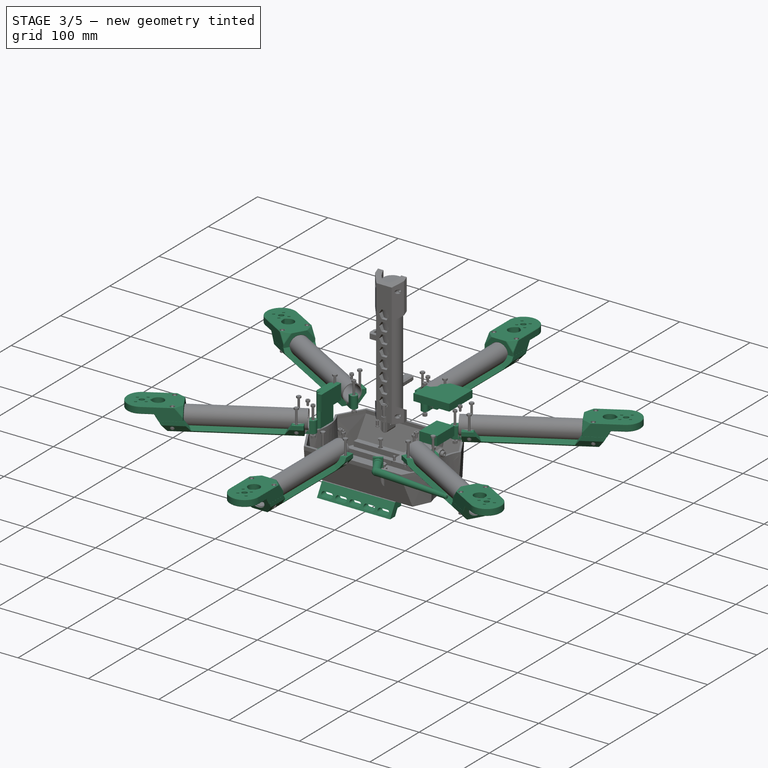
[diagram: stage 3 of 5 — iso view after this stage's code; geometry added in this stage tinted green]
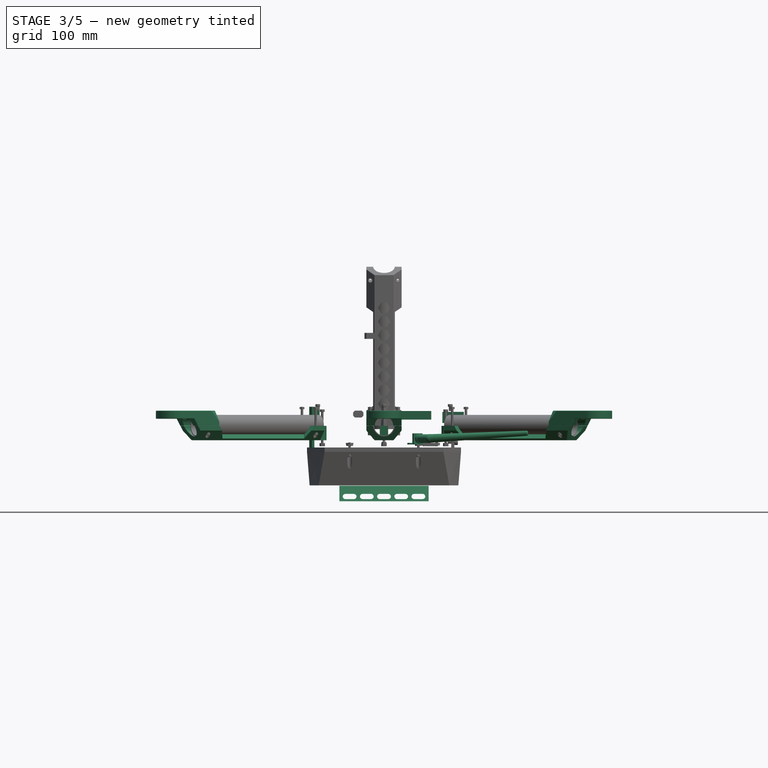
[diagram: stage 3 of 5 — front view after this stage's code; geometry added in this stage tinted green]
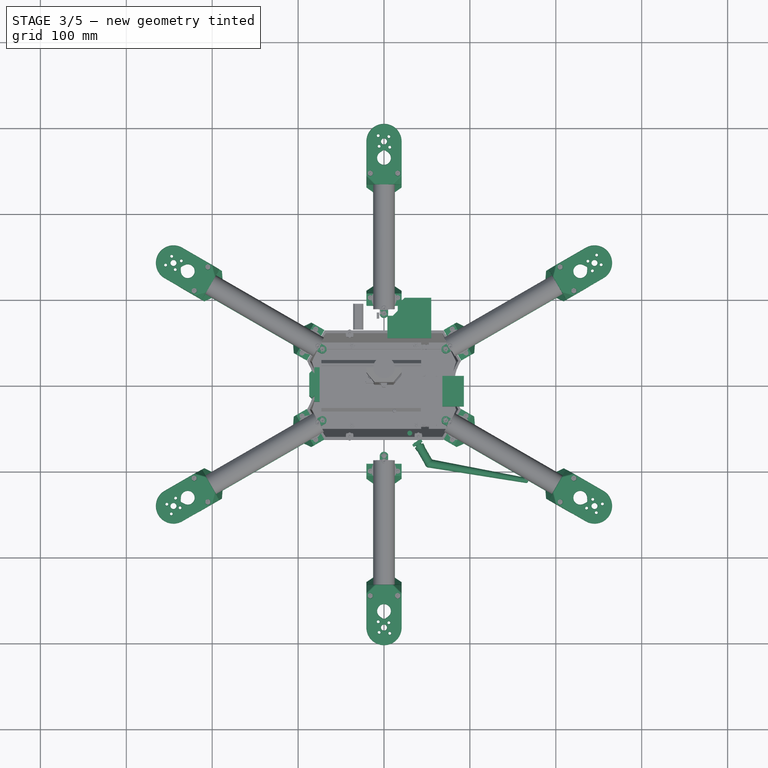
[diagram: stage 3 of 5 — top view after this stage's code; geometry added in this stage tinted green]
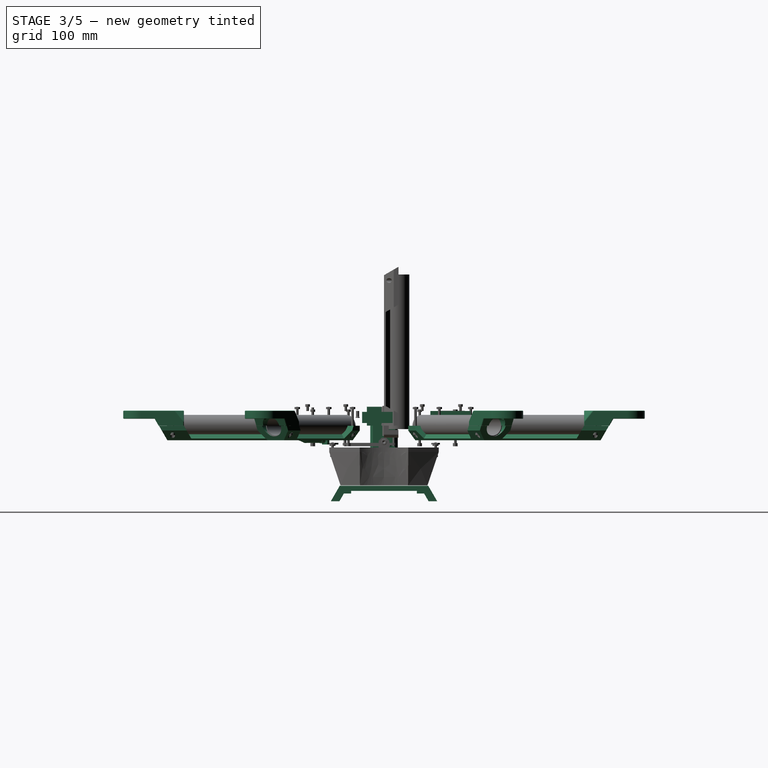
[diagram: stage 3 of 5 — right view after this stage's code; geometry added in this stage tinted green]
FEATURE [Sketcher::SketchObject] Sketch041
  FullyConstrained = false
  MapMode = 5
  sketch-geometry (7):
    g0: LineSegment StartX=-11 StartY=0 StartZ=0 EndX=11 EndY=0 EndZ=0
    g1: ArcOfCircle CenterX=0 CenterY=17 CenterZ=0 NormalX=0 NormalY=0 NormalZ=1 AngleXU=0 Radius=12.5 StartAngle=4.05789 EndAngle=5.36689
    g2: LineSegment StartX=-7.60952 StartY=7.08308 StartZ=0 EndX=7.60952 EndY=7.08308 EndZ=0
    g3: LineSegment StartX=11 StartY=0 StartZ=0 EndX=12.6782 EndY=2 EndZ=0
    g4: LineSegment StartX=12.6782 StartY=2 StartZ=0 EndX=7.60952 EndY=7.08308 EndZ=0
    g5: LineSegment StartX=-11 StartY=0 StartZ=0 EndX=-12.6782 EndY=2 EndZ=0
    g6: LineSegment StartX=-12.6782 StartY=2 StartZ=0 EndX=-7.60952 EndY=7.08308 EndZ=0
  constraints (20):
    c: Symmetric(g0,g0,g-2)
    c: DistanceX(g0,g0) = 22
    c: PointOnObject(g0,g-1)
    c: PointOnObject(g1,g-2)
    c: Radius(g1) = 12.5
    c: Coincident(g2,g1)
    c: Coincident(g2,g1)
    c: Horizontal(g2)
    c: Angle(g1) = 1.309
    c: DistanceY(g-1,g1) = 17
    c: Coincident(g3,g0)
    c: Coincident(g4,g3)
    c: Coincident(g4,g1)
    c: Coincident(g0,g5)
    c: Coincident(g5,g6)
    c: Coincident(g6,g1)
    c: Equal(g5,g3)
    c: Equal(g6,g4)
    c: Angle(g3,g0) = 2.26893
    c: DistanceY(g0,g3) = 2
FEATURE [Part::Extrusion] Extrude037  label="Wing"
  Base = -> Sketch041
  Dir = (0,0,128)
  DirMode = 0
  FaceMakerClass = Part::FaceMakerExtrusion
  LengthFwd = 0
  LengthRev = 0
  Placement = pos=(0,0,17) rot=(0,0,1;0rad)
  Solid = true
  Symmetric = false
FEATURE [Sketcher::SketchObject] Sketch042
  FullyConstrained = false
  MapMode = 5
  Placement = pos=(0,0,0) rot=(1,0,0;1.5708rad)
  sketch-geometry (69):
    g0: LineSegment StartX=3.5 StartY=19.1878 StartZ=0 EndX=7 EndY=25.25 EndZ=0
    g1: LineSegment StartX=7 StartY=25.25 StartZ=0 EndX=3.5 EndY=31.3122 EndZ=0
    g2: LineSegment StartX=3.5 StartY=31.3122 StartZ=0 EndX=-3.5 EndY=31.3122 EndZ=0
    g3: LineSegment StartX=-3.5 StartY=31.3122 StartZ=0 EndX=-7 EndY=25.25 EndZ=0
    g4: LineSegment StartX=-7 StartY=25.25 StartZ=0 EndX=-3.5 EndY=19.1878 EndZ=0
    g5: LineSegment StartX=-3.5 StartY=19.1878 StartZ=0 EndX=3.5 EndY=19.1878 EndZ=0
    g6: Circle CenterX=0 CenterY=25.25 CenterZ=0 NormalX=0 NormalY=0 NormalZ=1 AngleXU=0 Radius=7
    g7: LineSegment StartX=3.5 StartY=35.1878 StartZ=0 EndX=7 EndY=41.25 EndZ=0
    g8: LineSegment StartX=7 StartY=41.25 StartZ=0 EndX=3.5 EndY=47.3122 EndZ=0
    g9: LineSegment StartX=3.5 StartY=47.3122 StartZ=0 EndX=-3.5 EndY=47.3122 EndZ=0
    g10: LineSegment StartX=-3.5 StartY=47.3122 StartZ=0 EndX=-7 EndY=41.25 EndZ=0
    g11: LineSegment StartX=-7 StartY=41.25 StartZ=0 EndX=-3.5 EndY=35.1878 EndZ=0
    g12: LineSegment StartX=-3.5 StartY=35.1878 StartZ=0 EndX=3.5 EndY=35.1878 EndZ=0
    g13: Circle CenterX=0 CenterY=41.25 CenterZ=0 NormalX=0 NormalY=0 NormalZ=1 AngleXU=0 Radius=7
    g14: LineSegment StartX=3.5 StartY=51.1878 StartZ=0 EndX=7 EndY=57.25 EndZ=0
    g15: LineSegment StartX=7 StartY=57.25 StartZ=0 EndX=3.5 EndY=63.3122 EndZ=0
    g16: LineSegment StartX=3.5 StartY=63.3122 StartZ=0 EndX=-3.5 EndY=63.3122 EndZ=0
    g17: LineSegment StartX=-3.5 StartY=63.3122 StartZ=0 EndX=-7 EndY=57.25 EndZ=0
    g18: LineSegment StartX=-7 StartY=57.25 StartZ=0 EndX=-3.5 EndY=51.1878 EndZ=0
    g19: LineSegment StartX=-3.5 StartY=51.1878 StartZ=0 EndX=3.5 EndY=51.1878 EndZ=0
    g20: Circle CenterX=0 CenterY=57.25 CenterZ=0 NormalX=0 NormalY=0 NormalZ=1 AngleXU=0 Radius=7
    g21: LineSegment StartX=3.5 StartY=67.1878 StartZ=0 EndX=7 EndY=73.25 EndZ=0
    g22: LineSegment StartX=7 StartY=73.25 StartZ=0 EndX=3.5 EndY=79.3122 EndZ=0
    g23: LineSegment StartX=3.5 StartY=79.3122 StartZ=0 EndX=-3.5 EndY=79.3122 EndZ=0
    g24: LineSegment StartX=-3.5 StartY=79.3122 StartZ=0 EndX=-7 EndY=73.25 EndZ=0
    g25: LineSegment StartX=-7 StartY=73.25 StartZ=0 EndX=-3.5 EndY=67.1878 EndZ=0
    g26: LineSegment StartX=-3.5 StartY=67.1878 StartZ=0 EndX=3.5 EndY=67.1878 EndZ=0
    g27: Circle CenterX=0 CenterY=73.25 CenterZ=0 NormalX=0 NormalY=0 NormalZ=1 AngleXU=0 Radius=7
    g28: LineSegment StartX=3.5 StartY=83.1878 StartZ=0 EndX=7 EndY=89.25 EndZ=0
    g29: LineSegment StartX=7 StartY=89.25 StartZ=0 EndX=3.5 EndY=95.3122 EndZ=0
    g30: LineSegment StartX=3.5 StartY=95.3122 StartZ=0 EndX=-3.5 EndY=95.3122 EndZ=0
    g31: LineSegment StartX=-3.5 StartY=95.3122 StartZ=0 EndX=-7 EndY=89.25 EndZ=0
    g32: LineSegment StartX=-7 StartY=89.25 StartZ=0 EndX=-3.5 EndY=83.1878 EndZ=0
    g33: LineSegment StartX=-3.5 StartY=83.1878 StartZ=0 EndX=3.5 EndY=83.1878 EndZ=0
    g34: Circle CenterX=0 CenterY=89.25 CenterZ=0 NormalX=0 NormalY=0 NormalZ=1 AngleXU=0 Radius=7
    g35: LineSegment StartX=3.5 StartY=99.1878 StartZ=0 EndX=7 EndY=105.25 EndZ=0
    g36: LineSegment StartX=7 StartY=105.25 StartZ=0 EndX=3.5 EndY=111.312 EndZ=0
    g37: LineSegment StartX=3.5 StartY=111.312 StartZ=0 EndX=-3.5 EndY=111.312 EndZ=0
    g38: LineSegment StartX=-3.5 StartY=111.312 StartZ=0 EndX=-7 EndY=105.25 EndZ=0
    g39: LineSegment StartX=-7 StartY=105.25 StartZ=0 EndX=-3.5 EndY=99.1878 EndZ=0
    g40: LineSegment StartX=-3.5 StartY=99.1878 StartZ=0 EndX=3.5 EndY=99.1878 EndZ=0
    g41: Circle CenterX=0 CenterY=105.25 CenterZ=0 NormalX=0 NormalY=0 NormalZ=1 AngleXU=0 Radius=7
    g42: LineSegment StartX=3.5 StartY=115.188 StartZ=0 EndX=7 EndY=121.25 EndZ=0
    g43: LineSegment StartX=7 StartY=121.25 StartZ=0 EndX=3.5 EndY=127.312 EndZ=0
    g44: LineSegment StartX=3.5 StartY=127.312 StartZ=0 EndX=-3.5 EndY=127.312 EndZ=0
    g45: LineSegment StartX=-3.5 StartY=127.312 StartZ=0 EndX=-7 EndY=121.25 EndZ=0
    g46: LineSegment StartX=-7 StartY=121.25 StartZ=0 EndX=-3.5 EndY=115.188 EndZ=0
    g47: LineSegment StartX=-3.5 StartY=115.188 StartZ=0 EndX=3.5 EndY=115.188 EndZ=0
    g48: Circle CenterX=0 CenterY=121.25 CenterZ=0 NormalX=0 NormalY=0 NormalZ=1 AngleXU=0 Radius=7
    g49: LineSegment StartX=3.5 StartY=131.188 StartZ=0 EndX=7 EndY=137.25 EndZ=0
    g50: LineSegment StartX=7 StartY=137.25 StartZ=0 EndX=3.5 EndY=143.312 EndZ=0
    g51: LineSegment StartX=3.5 StartY=143.312 StartZ=0 EndX=-3.5 EndY=143.312 EndZ=0
    g52: LineSegment StartX=-3.5 StartY=143.312 StartZ=0 EndX=-7 EndY=137.25 EndZ=0
    g53: LineSegment StartX=-7 StartY=137.25 StartZ=0 EndX=-3.5 EndY=131.188 EndZ=0
    g54: LineSegment StartX=-3.5 StartY=131.188 StartZ=0 EndX=3.5 EndY=131.188 EndZ=0
    g55: Circle CenterX=0 CenterY=137.25 CenterZ=0 NormalX=0 NormalY=0 NormalZ=1 AngleXU=0 Radius=7
    g56: LineSegment StartX=0 StartY=137.25 StartZ=0 EndX=0 EndY=121.25 EndZ=0
    g57: LineSegment StartX=0 StartY=121.25 StartZ=0 EndX=0 EndY=105.25 EndZ=0
    g58: LineSegment StartX=0 StartY=105.25 StartZ=0 EndX=0 EndY=89.25 EndZ=0
    g59: LineSegment StartX=0 StartY=89.25 StartZ=0 EndX=0 EndY=73.25 EndZ=0
    g60: LineSegment StartX=0 StartY=73.25 StartZ=0 EndX=0 EndY=57.25 EndZ=0
    g61: LineSegment StartX=0 StartY=57.25 StartZ=0 EndX=0 EndY=41.25 EndZ=0
    g62: LineSegment StartX=0 StartY=41.25 StartZ=0 EndX=0 EndY=25.25 EndZ=0
    g63: LineSegment StartX=0 StartY=25.25 StartZ=0 EndX=0 EndY=9.25 EndZ=0
    g64: LineSegment StartX=5 StartY=-8.99998 StartZ=0 EndX=5 EndY=-16 EndZ=0
    g65: LineSegment StartX=5 StartY=-16 StartZ=0 EndX=-5 EndY=-16 EndZ=0
    g66: LineSegment StartX=-5 StartY=-16 StartZ=0 EndX=-5 EndY=-8.99998 EndZ=0
    g67: ArcOfCircle CenterX=0 CenterY=-9 CenterZ=0 NormalX=0 NormalY=0 NormalZ=1 AngleXU=0 Radius=5 StartAngle=3.14159 EndAngle=6.28319
    g68: Circle CenterX=0 CenterY=-9 CenterZ=0 NormalX=0 NormalY=0 NormalZ=1 AngleXU=0 Radius=1.85
  constraints (169):
    c: Coincident(g0,g1)
    c: Coincident(g1,g2)
    c: Coincident(g2,g3)
    c: Coincident(g3,g4)
    c: Coincident(g4,g5)
    c: Coincident(g5,g0)
    c: Equal(g0, g1-g5) x5
    c: PointOnObject(g0,g6)
    c: PointOnObject(g1,g6)
    c: PointOnObject(g2,g6)
    c: PointOnObject(g3,g6)
    c: PointOnObject(g4,g6)
    c: PointOnObject(g5,g6)
    c: PointOnObject(g6,g-2)
    c: Coincident(g7,g8)
    c: Coincident(g8,g9)
    c: Coincident(g9,g10)
    c: Coincident(g10,g11)
    c: Coincident(g11,g12)
    c: Coincident(g12,g7)
    c: Equal(g7, g8-g12) x5
    c: PointOnObject(g7,g13)
    c: PointOnObject(g8,g13)
    c: PointOnObject(g9,g13)
    c: PointOnObject(g10,g13)
    c: PointOnObject(g11,g13)
    c: PointOnObject(g12,g13)
    c: PointOnObject(g13,g-2)
    c: Horizontal(g12)
    c: Radius(g13) = 7
    c: Equal(g13,g6)
    c: Parallel(g12,g5)
    c: Coincident(g14,g15)
    c: Coincident(g15,g16)
    c: Coincident(g16,g17)
    c: Coincident(g17,g18)
    c: Coincident(g18,g19)
    c: Coincident(g19,g14)
    c: Equal(g14, g15-g19) x5
    c: PointOnObject(g14,g20)
    c: PointOnObject(g15,g20)
    c: PointOnObject(g16,g20)
    c: PointOnObject(g17,g20)
    c: PointOnObject(g18,g20)
    c: PointOnObject(g19,g20)
    c: PointOnObject(g20,g-2)
    c: Coincident(g21,g22)
    c: Coincident(g22,g23)
    c: Coincident(g23,g24)
    c: Coincident(g24,g25)
    c: Coincident(g25,g26)
    c: Coincident(g26,g21)
    c: Equal(g21, g22-g26) x5
    c: PointOnObject(g21,g27)
    c: PointOnObject(g22,g27)
    c: PointOnObject(g23,g27)
    c: PointOnObject(g24,g27)
    c: PointOnObject(g25,g27)
    c: PointOnObject(g26,g27)
    c: PointOnObject(g27,g-2)
    c: Horizontal(g26)
    c: Equal(g20,g27)
    c: Equal(g27,g13)
    c: Horizontal(g19)
    c: Coincident(g28,g29)
    c: Coincident(g29,g30)
    c: Coincident(g30,g31)
    c: Coincident(g31,g32)
    c: Coincident(g32,g33)
    c: Coincident(g33,g28)
    c: Equal(g28, g29-g33) x5
    c: PointOnObject(g28,g34)
    c: PointOnObject(g29,g34)
    c: PointOnObject(g30,g34)
    c: PointOnObject(g31,g34)
    c: PointOnObject(g32,g34)
    c: PointOnObject(g33,g34)
    c: PointOnObject(g34,g-2)
    c: Coincident(g35,g36)
    c: Coincident(g36,g37)
    c: Coincident(g37,g38)
    c: Coincident(g38,g39)
    c: Coincident(g39,g40)
    c: Coincident(g40,g35)
    c: Equal(g35, g36-g40) x5
    c: PointOnObject(g35,g41)
    c: PointOnObject(g36,g41)
    c: PointOnObject(g37,g41)
    c: PointOnObject(g38,g41)
    c: PointOnObject(g39,g41)
    c: PointOnObject(g40,g41)
    c: PointOnObject(g41,g-2)
    c: Horizontal(g33)
    c: Horizontal(g40)
    c: Equal(g34,g41)
    c: Equal(g41,g27)
    c: Coincident(g42,g43)
    c: Coincident(g43,g44)
    c: Coincident(g44,g45)
    c: Coincident(g45,g46)
    c: Coincident(g46,g47)
    c: Coincident(g47,g42)
    c: Equal(g42, g43-g47) x5
    c: PointOnObject(g42,g48)
    c: PointOnObject(g43,g48)
    c: PointOnObject(g44,g48)
    c: PointOnObject(g45,g48)
    c: PointOnObject(g46,g48)
    c: PointOnObject(g47,g48)
    c: PointOnObject(g48,g-2)
    c: Equal(g48,g41)
    c: Horizontal(g47)
    c: Coincident(g49,g50)
    c: Coincident(g50,g51)
    c: Coincident(g51,g52)
    c: Coincident(g52,g53)
    c: Coincident(g53,g54)
    c: Coincident(g54,g49)
    c: Equal(g49, g50-g54) x5
    c: PointOnObject(g49,g55)
    c: PointOnObject(g50,g55)
    c: PointOnObject(g51,g55)
    c: PointOnObject(g52,g55)
    c: PointOnObject(g53,g55)
    c: PointOnObject(g54,g55)
    c: PointOnObject(g55,g-2)
    c: Horizontal(g54)
    c: Coincident(g56,g55)
    c: Coincident(g56,g48)
    c: Coincident(g57,g48)
    c: Coincident(g57,g41)
    c: Coincident(g58,g41)
    c: Coincident(g58,g34)
    c: Coincident(g59,g34)
    c: Coincident(g59,g27)
    c: Coincident(g60,g27)
    c: Coincident(g60,g20)
    c: Coincident(g61,g20)
    c: Coincident(g61,g13)
    c: Coincident(g62,g13)
    c: Coincident(g62,g6)
    c: Coincident(g63,g6)
    c: Equal(g63,g62)
    c: Equal(g62,g61)
    c: Equal(g61,g60)
    c: Equal(g60,g59)
    c: Equal(g59,g58)
    c: Equal(g58,g57)
    c: Equal(g57,g56)
    c: DistanceY(g-1,g6) = 25.25
    c: DistanceY(g63,g63) = 16
    c: Equal(g55,g48)
    c: Vertical(g63)
    c: Coincident(g64,g65)
    c: Coincident(g65,g66)
    c: Horizontal(g65)
    c: Vertical(g64)
    c: Vertical(g66)
    c: PointOnObject(g67,g-2)
    c: Coincident(g67,g66)
    c: Coincident(g67,g64)
    c: Tangent(g64,g67)
    c: Tangent(g67,g66)
    c: Radius(g67) = 5
    c: PointOnObject(g68,g-2)
    c: Radius(g68) = 1.85
    c: DistanceY(g68,g-1) = 9
    c: Coincident(g67,g68)
    c: DistanceY(g64,g64) = 7
FEATURE [Part::Extrusion] Extrude038
  Base = -> Sketch042
  Dir = (0,20,0)
  DirMode = 0
  FaceMakerClass = Part::FaceMakerExtrusion
  LengthFwd = 0
  LengthRev = 0
  Solid = true
  Symmetric = false
FEATURE [Sketcher::SketchObject] Sketch005
  FullyConstrained = false
  MapMode = 5
  sketch-geometry (9):
    g0: LineSegment StartX=-11 StartY=0 StartZ=0 EndX=11 EndY=0 EndZ=0
    g1: ArcOfCircle CenterX=0 CenterY=17 CenterZ=0 NormalX=0 NormalY=0 NormalZ=1 AngleXU=0 Radius=12.5 StartAngle=3.15032 EndAngle=6.27446
    g2: LineSegment StartX=-12.4995 StartY=16.8909 StartZ=0 EndX=12.4995 EndY=16.8909 EndZ=0
    g3: LineSegment StartX=-20.5 StartY=11.3217 StartZ=0 EndX=-20.5 EndY=16.8909 EndZ=0
    g4: LineSegment StartX=-20.5 StartY=16.8909 StartZ=0 EndX=-12.4995 EndY=16.8909 EndZ=0
    g5: LineSegment StartX=20.5 StartY=11.3217 StartZ=0 EndX=20.5 EndY=16.8909 EndZ=0
    g6: LineSegment StartX=20.5 StartY=16.8909 StartZ=0 EndX=12.4995 EndY=16.8909 EndZ=0
    g7: LineSegment StartX=20.5 StartY=11.3217 StartZ=0 EndX=11 EndY=0 EndZ=0
    g8: LineSegment StartX=-20.5 StartY=11.3217 StartZ=0 EndX=-11 EndY=0 EndZ=0
  constraints (26):
    c: Symmetric(g0,g0,g-2)
    c: PointOnObject(g0,g-1)
    c: PointOnObject(g1,g-2)
    c: Radius(g1) = 12.5
    c: Coincident(g2,g1)
    c: Coincident(g2,g1)
    c: Horizontal(g2)
    c: Angle(g1) = 3.12414
    c: Vertical(g3)
    c: Coincident(g4,g1)
    c: Horizontal(g4)
    c: Coincident(g3,g4)
    c: Vertical(g5)
    c: Coincident(g6,g5)
    c: Horizontal(g6)
    c: Coincident(g6,g1)
    c: Equal(g4,g6)
    c: Equal(g5,g3)
    c: DistanceY(g-1,g1) = 17
    c: Coincident(g7,g5)
    c: Coincident(g7,g0)
    c: Coincident(g8,g0)
    c: Coincident(g8,g3)
    c: DistanceX(g3,g5) = 41
    c: Angle(g7,g0) = 2.26893
    c: DistanceX(g0,g0) = 22
FEATURE [Part::Extrusion] Extrude039
  Base = -> Sketch005
  Dir = (0,0,38)
  DirMode = 0
  FaceMakerClass = Part::FaceMakerExtrusion
  LengthFwd = 0
  LengthRev = 0
  Placement = pos=(0,0,-9) rot=(0,0,1;0rad)
  Solid = true
  Symmetric = false
FEATURE [Sketcher::SketchObject] Sketch043
  FullyConstrained = false
  MapMode = 5
  Placement = pos=(0,0,0) rot=(1,0,0;1.5708rad)
  sketch-geometry (6):
    g0: Circle CenterX=-16 CenterY=0 CenterZ=0 NormalX=0 NormalY=0 NormalZ=1 AngleXU=0 Radius=1.85
    g1: Circle CenterX=16 CenterY=0 CenterZ=0 NormalX=0 NormalY=0 NormalZ=1 AngleXU=0 Radius=1.85
    g2: LineSegment StartX=-16 StartY=30 StartZ=0 EndX=16 EndY=30 EndZ=0
    g3: LineSegment StartX=16 StartY=30 StartZ=0 EndX=16 EndY=0 EndZ=0
    g4: LineSegment StartX=16 StartY=0 StartZ=0 EndX=-16 EndY=0 EndZ=0
    g5: LineSegment StartX=-16 StartY=0 StartZ=0 EndX=-16 EndY=30 EndZ=0
  constraints (16):
    c: PointOnObject(g0,g-1)
    c: Symmetric(g0,g1,g-2)
    c: Radius(g0) = 1.85
    c: Equal(g0,g1)
    c: DistanceX(g0,g1) = 32
    c: Coincident(g2,g3)
    c: Coincident(g3,g4)
    c: Coincident(g4,g5)
    c: Coincident(g5,g2)
    c: Horizontal(g2)
    c: Horizontal(g4)
    c: Vertical(g3)
    c: Vertical(g5)
    c: Coincident(g3,g1)
    c: Coincident(g4,g0)
    c: DistanceY(g5,g5) = 30
FEATURE [Part::Extrusion] Extrude040
  Base = -> Sketch043
  Dir = (0,20,0)
  DirMode = 0
  FaceMakerClass = Part::FaceMakerExtrusion
  LengthFwd = 0
  LengthRev = 0
  Solid = true
  Symmetric = false
FEATURE [Sketcher::SketchObject] Sketch044
  FullyConstrained = false
  MapMode = 5
  Placement = pos=(0,0,0) rot=(1,0,0;1.5708rad)
  sketch-geometry (6):
    g0: Circle CenterX=-16 CenterY=0 CenterZ=0 NormalX=0 NormalY=0 NormalZ=1 AngleXU=0 Radius=2.75
    g1: Circle CenterX=16 CenterY=0 CenterZ=0 NormalX=0 NormalY=0 NormalZ=1 AngleXU=0 Radius=2.75
    g2: LineSegment StartX=-16 StartY=30 StartZ=0 EndX=16 EndY=30 EndZ=0
    g3: LineSegment StartX=16 StartY=30 StartZ=0 EndX=16 EndY=0 EndZ=0
    g4: LineSegment StartX=16 StartY=0 StartZ=0 EndX=-16 EndY=0 EndZ=0
    g5: LineSegment StartX=-16 StartY=0 StartZ=0 EndX=-16 EndY=30 EndZ=0
  constraints (16):
    c: PointOnObject(g0,g-1)
    c: Symmetric(g0,g1,g-2)
    c: Radius(g0) = 2.75
    c: Equal(g0,g1)
    c: DistanceX(g0,g1) = 32
    c: Coincident(g2,g3)
    c: Coincident(g3,g4)
    c: Coincident(g4,g5)
    c: Coincident(g5,g2)
    c: Horizontal(g2)
    c: Horizontal(g4)
    c: Vertical(g3)
    c: Vertical(g5)
    c: Coincident(g3,g1)
    c: Coincident(g4,g0)
    c: DistanceY(g5,g5) = 30
FEATURE [Part::Extrusion] Extrude041
  Base = -> Sketch044
  Dir = (0,9,0)
  DirMode = 0
  FaceMakerClass = Part::FaceMakerExtrusion
  LengthFwd = 0
  LengthRev = 0
  Solid = true
  Symmetric = false
FEATURE [Part::MultiFuse] Fusion016
  Placement = pos=(0,0,13) rot=(0,0,1;0rad)
  Shapes = -> [Extrude040,Extrude041]
FEATURE [Sketcher::SketchObject] Sketch045
  FullyConstrained = false
  MapMode = 5
  sketch-geometry (9):
    g0: LineSegment StartX=-11 StartY=0 StartZ=0 EndX=11 EndY=0 EndZ=0
    g1: ArcOfCircle CenterX=0 CenterY=17 CenterZ=0 NormalX=0 NormalY=0 NormalZ=1 AngleXU=0 Radius=12.5 StartAngle=3.15032 EndAngle=6.27446
    g2: LineSegment StartX=-12.4995 StartY=16.8909 StartZ=0 EndX=12.4995 EndY=16.8909 EndZ=0
    g3: LineSegment StartX=-20.5 StartY=11.3217 StartZ=0 EndX=-20.5 EndY=16.8909 EndZ=0
    g4: LineSegment StartX=-20.5 StartY=16.8909 StartZ=0 EndX=-12.4995 EndY=16.8909 EndZ=0
    g5: LineSegment StartX=20.5 StartY=11.3217 StartZ=0 EndX=20.5 EndY=16.8909 EndZ=0
    g6: LineSegment StartX=20.5 StartY=16.8909 StartZ=0 EndX=12.4995 EndY=16.8909 EndZ=0
    g7: LineSegment StartX=20.5 StartY=11.3217 StartZ=0 EndX=11 EndY=0 EndZ=0
    g8: LineSegment StartX=-20.5 StartY=11.3217 StartZ=0 EndX=-11 EndY=0 EndZ=0
  constraints (26):
    c: Symmetric(g0,g0,g-2)
    c: DistanceX(g0,g0) = 22
    c: PointOnObject(g0,g-1)
    c: PointOnObject(g1,g-2)
    c: Radius(g1) = 12.5
    c: Coincident(g2,g1)
    c: Coincident(g2,g1)
    c: Horizontal(g2)
    c: Angle(g1) = 3.12414
    c: Vertical(g3)
    c: Coincident(g4,g1)
    c: Horizontal(g4)
    c: Coincident(g3,g4)
    c: Vertical(g5)
    c: Coincident(g6,g5)
    c: Horizontal(g6)
    c: Coincident(g6,g1)
    c: Equal(g4,g6)
    c: Equal(g5,g3)
    c: DistanceY(g-1,g1) = 17
    c: Coincident(g7,g5)
    c: Coincident(g7,g0)
    c: Coincident(g8,g0)
    c: Coincident(g8,g3)
    c: Angle(g7,g0) = 2.26893
    c: DistanceX(g3,g5) = 41
FEATURE [Part::Extrusion] Extrude042
  Base = -> Sketch045
  Dir = (0,0,24)
  DirMode = 0
  FaceMakerClass = Part::FaceMakerExtrusion
  LengthFwd = 0
  LengthRev = 0
  Solid = true
  Symmetric = false
FEATURE [Sketcher::SketchObject] Sketch009
  FullyConstrained = false
  MapMode = 5
  Placement = pos=(0,0,0) rot=(1,0,0;1.5708rad)
  sketch-geometry (2):
    g0: Circle CenterX=-16 CenterY=0 CenterZ=0 NormalX=0 NormalY=0 NormalZ=1 AngleXU=0 Radius=1.85
    g1: Circle CenterX=16 CenterY=0 CenterZ=0 NormalX=0 NormalY=0 NormalZ=1 AngleXU=0 Radius=1.85
  constraints (5):
    c: PointOnObject(g0,g-1)
    c: Symmetric(g0,g1,g-2)
    c: Radius(g0) = 1.85
    c: Equal(g0,g1)
    c: DistanceX(g0,g1) = 32
FEATURE [Part::Extrusion] Extrude009
  Base = -> Sketch009
  Dir = (0,20,0)
  DirMode = 0
  FaceMakerClass = Part::FaceMakerExtrusion
  LengthFwd = 0
  LengthRev = 0
  Solid = true
  Symmetric = false
FEATURE [Sketcher::SketchObject] Sketch010
  FullyConstrained = false
  MapMode = 5
  Placement = pos=(0,0,0) rot=(1,0,0;1.5708rad)
  sketch-geometry (2):
    g0: Circle CenterX=-16 CenterY=0 CenterZ=0 NormalX=0 NormalY=0 NormalZ=1 AngleXU=0 Radius=2.75
    g1: Circle CenterX=16 CenterY=0 CenterZ=0 NormalX=0 NormalY=0 NormalZ=1 AngleXU=0 Radius=2.75
  constraints (5):
    c: PointOnObject(g0,g-1)
    c: Symmetric(g0,g1,g-2)
    c: Radius(g0) = 2.75
    c: Equal(g0,g1)
    c: DistanceX(g0,g1) = 32
FEATURE [Part::Extrusion] Extrude043
  Base = -> Sketch010
  Dir = (0,9,0)
  DirMode = 0
  FaceMakerClass = Part::FaceMakerExtrusion
  LengthFwd = 0
  LengthRev = 0
  Solid = true
  Symmetric = false
FEATURE [Part::MultiFuse] Fusion017
  Placement = pos=(0,0,9) rot=(0,0,1;0rad)
  Shapes = -> [Extrude009,Extrude043]
FEATURE [Part::Cut] Cut003  label="BodyBracket"
  Base = -> Extrude042
  Tool = -> Fusion017
FEATURE [Sketcher::SketchObject] Sketch
  FullyConstrained = false
  MapMode = 5
  Placement = pos=(0,0,0) rot=(0.57735,0.57735,0.57735;2.0944rad)
  sketch-geometry (6):
    g0: LineSegment StartX=0 StartY=-9.81495 StartZ=0 EndX=17 EndY=0 EndZ=0
    g1: LineSegment StartX=17 StartY=0 StartZ=0 EndX=17 EndY=-9.81495 EndZ=0
    g2: LineSegment StartX=17 StartY=-9.81495 StartZ=0 EndX=0 EndY=-9.81495 EndZ=0
    g3: LineSegment StartX=17 StartY=29 StartZ=0 EndX=0 EndY=19.185 EndZ=0
    g4: LineSegment StartX=0 StartY=19.185 StartZ=0 EndX=0 EndY=29 EndZ=0
    g5: LineSegment StartX=0 StartY=29 StartZ=0 EndX=17 EndY=29 EndZ=0
  constraints (18):
    c: Coincident(g0,g1)
    c: Vertical(g1)
    c: Coincident(g1,g2)
    c: Coincident(g2,g0)
    c: Horizontal(g2)
    c: Angle(g2,g0) = 0.523599
    c: DistanceX(g2,g2) = 17
    c: PointOnObject(g0,g-2)
    c: PointOnObject(g0,g-1)
    c: Coincident(g3,g4)
    c: Vertical(g4)
    c: Coincident(g4,g5)
    c: Horizontal(g5)
    c: Coincident(g5,g3)
    c: Equal(g4,g1)
    c: Equal(g2,g5)
    c: PointOnObject(g3,g-2)
    c: DistanceY(g0,g3) = 29
FEATURE [Part::Extrusion] Extrude
  Base = -> Sketch
  Dir = (50,0,0)
  DirMode = 0
  FaceMakerClass = Part::FaceMakerExtrusion
  LengthFwd = 0
  LengthRev = 0
  Placement = pos=(-25,0,0) rot=(0,0,1;0rad)
  Solid = true
  Symmetric = false
FEATURE [Sketcher::SketchObject] Sketch046
  FullyConstrained = false
  MapMode = 5
  sketch-geometry (27):
    g0: Circle CenterX=0 CenterY=0 CenterZ=0 NormalX=0 NormalY=0 NormalZ=1 AngleXU=0 Radius=3.5
    g1: ArcOfCircle CenterX=0 CenterY=19.2111 CenterZ=0 NormalX=0 NormalY=0 NormalZ=1 AngleXU=0 Radius=8 StartAngle=5.30039 EndAngle=10.4076
    g2: ArcOfCircle CenterX=0 CenterY=12 CenterZ=0 NormalX=0 NormalY=0 NormalZ=1 AngleXU=0 Radius=2 StartAngle=4.12439 EndAngle=5.30039
    g3: LineSegment StartX=-4.4376 StartY=12.5547 StartZ=0 EndX=-1.1094 EndY=10.3359 EndZ=0
    g4: LineSegment StartX=4.4376 StartY=12.5547 StartZ=0 EndX=1.1094 EndY=10.3359 EndZ=0
    g5: LineSegment StartX=-20.5 StartY=-4e-12 StartZ=0 EndX=-20.5 EndY=70 EndZ=0
    g6: LineSegment StartX=-20.5 StartY=70 StartZ=0 EndX=-29.5 EndY=70 EndZ=0
    g7: LineSegment StartX=-29.5 StartY=70 StartZ=0 EndX=-29.5 EndY=-30 EndZ=0
    g8: LineSegment StartX=-29.5 StartY=-30 StartZ=0 EndX=29.5 EndY=-30 EndZ=0
    g9: LineSegment StartX=29.5 StartY=-30 StartZ=0 EndX=29.5 EndY=70 EndZ=0
    g10: LineSegment StartX=29.5 StartY=70 StartZ=0 EndX=20.5 EndY=70 EndZ=0
    g11: LineSegment StartX=20.5 StartY=70 StartZ=0 EndX=20.5 EndY=8.0007e-12 EndZ=0
    g12: Circle CenterX=-16 CenterY=37 CenterZ=0 NormalX=0 NormalY=0 NormalZ=1 AngleXU=0 Radius=1.75
    g13: LineSegment StartX=-16 StartY=37 StartZ=0 EndX=16 EndY=37 EndZ=0
    g14: LineSegment StartX=16 StartY=37 StartZ=0 EndX=16 EndY=67 EndZ=0
    g15: LineSegment StartX=16 StartY=67 StartZ=0 EndX=-16 EndY=67 EndZ=0
    g16: LineSegment StartX=-16 StartY=67 StartZ=0 EndX=-16 EndY=37 EndZ=0
    g17: Circle CenterX=-16 CenterY=67 CenterZ=0 NormalX=0 NormalY=0 NormalZ=1 AngleXU=0 Radius=1.75
    g18: Circle CenterX=16 CenterY=67 CenterZ=0 NormalX=0 NormalY=0 NormalZ=1 AngleXU=0 Radius=1.75
    g19: Circle CenterX=16 CenterY=37 CenterZ=0 NormalX=0 NormalY=0 NormalZ=1 AngleXU=0 Radius=1.75
    g20: Circle CenterX=6.71751 CenterY=-6.71751 CenterZ=0 NormalX=0 NormalY=0 NormalZ=1 AngleXU=0 Radius=1.65
    g21: Circle CenterX=-6.71751 CenterY=6.71751 CenterZ=0 NormalX=0 NormalY=0 NormalZ=1 AngleXU=0 Radius=1.65
    g22: Circle CenterX=-5.65685 CenterY=-5.65685 CenterZ=0 NormalX=0 NormalY=0 NormalZ=1 AngleXU=0 Radius=1.65
    g23: Circle CenterX=5.65685 CenterY=5.65685 CenterZ=0 NormalX=0 NormalY=0 NormalZ=1 AngleXU=0 Radius=1.65
    g24: LineSegment StartX=-5.65685 StartY=-5.65685 StartZ=0 EndX=5.65685 EndY=5.65685 EndZ=0
    g25: LineSegment StartX=-6.71751 StartY=6.71751 StartZ=0 EndX=6.71751 EndY=-6.71751 EndZ=0
    g26: ArcOfCircle CenterX=0 CenterY=0 CenterZ=0 NormalX=0 NormalY=0 NormalZ=1 AngleXU=0 Radius=20.5 StartAngle=3.14159 EndAngle=6.28319
  constraints (71):
    c: Coincident(g0,g-1)
    c: Radius(g0) = 3.5
    c: Tangent(g1,g4) = 1.5708
    c: Tangent(g1,g3) = -1.5708
    c: Tangent(g3,g2) = -1.5708
    c: Tangent(g4,g2) = 1.5708
    c: PointOnObject(g2,g-2)
    c: Distance(g4) = 4
    c: Radius(g2) = 2
    c: Radius(g1) = 8
    c: PointOnObject(g1,g-2)
    c: DistanceY(g-1,g2) = 12
    c: Vertical(g5)
    c: Horizontal(g6)
    c: Vertical(g7)
    c: Coincident(g8,g7)
    c: Horizontal(g8)
    c: Vertical(g9)
    c: Coincident(g10,g9)
    c: Horizontal(g10)
    c: Vertical(g11)
    c: Coincident(g11,g10)
    c: Equal(g5,g11)
    c: Equal(g7,g9)
    c: Equal(g6,g10)
    c: Coincident(g9,g8)
    c: Coincident(g6,g5)
    c: Coincident(g6,g7)
    c: DistanceY(g9,g9) = 100
    c: DistanceX(g10,g10) = 9
    c: Radius(g12) = 1.75
    c: Coincident(g13,g14)
    c: Coincident(g14,g15)
    c: Coincident(g15,g16)
    c: Coincident(g16,g13)
    c: Horizontal(g13)
    c: Horizontal(g15)
    c: Vertical(g14)
    c: Vertical(g16)
    c: Coincident(g13,g12)
    c: DistanceX(g15,g15) = 32
    c: DistanceY(g14,g14) = 30
    c: Symmetric(g15,g14,g-2)
    c: Coincident(g17,g15)
    c: Coincident(g18,g14)
    c: Coincident(g19,g13)
    c: Equal(g17,g18)
    c: Equal(g18,g19)
    c: Equal(g19,g12)
    c: Radius(g22) = 1.65
    c: Equal(g22,g20)
    c: Equal(g22,g23)
    c: Equal(g22,g21)
    c: Symmetric(g22,g23,g-1)
    c: Symmetric(g21,g20,g-1)
    c: Distance(g21,g20) = 19
    c: Distance(g22,g23) = 16
    c: Coincident(g24,g22)
    c: Coincident(g24,g23)
    c: Coincident(g25,g20)
    c: Angle(g25,g24) = 1.5708
    c: Angle(g-1,g24) = 0.785398
    c: DistanceX(g5,g10) = 41
    c: DistanceY(g7,g-1) = 30
    c: Coincident(g21,g25)
    c: Symmetric(g5,g10,g-2)
    c: PointOnObject(g11,g-1)
    c: Coincident(g26,g-1)
    c: Coincident(g26,g5)
    c: Coincident(g26,g11)
    c: DistanceY(g-1,g12) = 37
FEATURE [Sketcher::SketchObject] Sketch047
  FullyConstrained = false
  MapMode = 5
  Placement = pos=(0,32,0) rot=(1,0,0;1.5708rad)
  sketch-geometry (1):
    g0: Circle CenterX=0 CenterY=0 CenterZ=0 NormalX=0 NormalY=0 NormalZ=1 AngleXU=0 Radius=12.5
  constraints (2):
    c: Coincident(g0,g-1)
    c: Radius(g0) = 12.5
FEATURE [Part::Extrusion] Extrude044
  Base = -> Sketch046
  Dir = (0,0,30)
  DirMode = 0
  FaceMakerClass = Part::FaceMakerExtrusion
  LengthFwd = 0
  LengthRev = 0
  Solid = true
  Symmetric = false
FEATURE [Sketcher::SketchObject] Sketch048
  FullyConstrained = false
  MapMode = 5
  Placement = pos=(33,0,0) rot=(0.57735,0.57735,0.57735;2.0944rad)
  sketch-geometry (4):
    g0: LineSegment StartX=-30 StartY=8 StartZ=0 EndX=16 EndY=8 EndZ=0
    g1: LineSegment StartX=20.6188 StartY=0 StartZ=0 EndX=-30 EndY=0 EndZ=0
    g2: LineSegment StartX=-30 StartY=0 StartZ=0 EndX=-30 EndY=8 EndZ=0
    g3: LineSegment StartX=16 StartY=8 StartZ=0 EndX=20.6188 EndY=0 EndZ=0
  constraints (12):
    c: Coincident(g1,g2)
    c: Coincident(g2,g0)
    c: Horizontal(g0)
    c: Horizontal(g1)
    c: Vertical(g2)
    c: DistanceY(g2,g2) = 8
    c: PointOnObject(g-1,g1)
    c: DistanceX(g-1,g0) = 16
    c: DistanceX(g0,g-1) = 30
    c: Coincident(g3,g0)
    c: Coincident(g3,g1)
    c: Angle(g3,g1) = 1.0472
FEATURE [Part::Extrusion] Extrude045
  Base = -> Sketch048
  Dir = (-60,0,0)
  DirMode = 0
  FaceMakerClass = Part::FaceMakerExtrusion
  LengthFwd = 0
  LengthRev = 0
  Solid = true
  Symmetric = false
FEATURE [Sketcher::SketchObject] Sketch049
  FullyConstrained = false
  MapMode = 5
  Placement = pos=(0,-28,0) rot=(1,0,0;1.5708rad)
  sketch-geometry (4):
    g0: LineSegment StartX=-25 StartY=17.5 StartZ=0 EndX=25 EndY=17.5 EndZ=0
    g1: LineSegment StartX=25 StartY=17.5 StartZ=0 EndX=25 EndY=0 EndZ=0
    g2: LineSegment StartX=25 StartY=0 StartZ=0 EndX=-25 EndY=0 EndZ=0
    g3: LineSegment StartX=-25 StartY=17.5 StartZ=0 EndX=-25 EndY=0 EndZ=0
  constraints (12):
    c: Coincident(g0,g1)
    c: Horizontal(g0)
    c: Vertical(g1)
    c: Coincident(g2,g1)
    c: Horizontal(g2)
    c: Vertical(g3)
    c: Coincident(g0,g3)
    c: DistanceX(g0,g0) = 50
    c: Coincident(g2,g3)
    c: Symmetric(g2,g1,g-2)
    c: DistanceY(g-1,g0) = 17.5
    c: PointOnObject(g2,g-1)
FEATURE [Part::Extrusion] Extrude046
  Base = -> Sketch049
  Dir = (0,78,0)
  DirMode = 0
  FaceMakerClass = Part::FaceMakerExtrusion
  LengthFwd = 0
  LengthRev = 0
  Solid = true
  Symmetric = false
FEATURE [Part::Extrusion] Extrude047
  Base = -> Sketch047
  Dir = (0,50,0)
  DirMode = 0
  FaceMakerClass = Part::FaceMakerExtrusion
  LengthFwd = 0
  LengthRev = 0
  Placement = pos=(0,-3,0) rot=(0,0,1;0rad)
  Solid = true
  Symmetric = false
FEATURE [Part::Cut] Cut029
  Base = -> Extrude046
  Tool = -> Extrude045
FEATURE [Part::Cut] Cut001
  Base = -> Cut029
  Tool = -> Extrude047
FEATURE [Part::Cut] Cut030
  Base = -> Cut001
  Tool = -> Extrude044
FEATURE [Sketcher::SketchObject] Sketch050
  FullyConstrained = false
  MapMode = 5
  Placement = pos=(0,33,0) rot=(1,0,0;1.5708rad)
  sketch-geometry (1):
    g0: Circle CenterX=0 CenterY=0 CenterZ=0 NormalX=0 NormalY=0 NormalZ=1 AngleXU=0 Radius=10.75
  constraints (2):
    c: Coincident(g0,g-1)
    c: Radius(g0) = 10.75
FEATURE [Part::Extrusion] Extrude048
  Base = -> Sketch050
  Dir = (0,27,0)
  DirMode = 0
  FaceMakerClass = Part::FaceMakerExtrusion
  LengthFwd = 0
  LengthRev = 0
  Placement = pos=(0,-17,0) rot=(0,0,1;0rad)
  Solid = true
  Symmetric = false
FEATURE [Sketcher::SketchObject] Sketch051
  FullyConstrained = false
  MapMode = 5
  Placement = pos=(0,40,0) rot=(0,0,1;0rad)
  sketch-geometry (32):
    g0: LineSegment StartX=-16 StartY=27 StartZ=0 EndX=16 EndY=27 EndZ=0
    g1: LineSegment StartX=16 StartY=27 StartZ=0 EndX=16 EndY=-3 EndZ=0
    g2: LineSegment StartX=16 StartY=-3 StartZ=0 EndX=-16 EndY=-3 EndZ=0
    g3: LineSegment StartX=-16 StartY=-3 StartZ=0 EndX=-16 EndY=27 EndZ=0
    g4: Circle CenterX=-16 CenterY=-3 CenterZ=0 NormalX=0 NormalY=0 NormalZ=1 AngleXU=0 Radius=3.25
    g5: Circle CenterX=16 CenterY=-3 CenterZ=0 NormalX=0 NormalY=0 NormalZ=1 AngleXU=0 Radius=3.25
    g6: Circle CenterX=-16 CenterY=27 CenterZ=0 NormalX=0 NormalY=0 NormalZ=1 AngleXU=0 Radius=3.25
    g7: Circle CenterX=16 CenterY=27 CenterZ=0 NormalX=0 NormalY=0 NormalZ=1 AngleXU=0 Radius=3.25
    g8: LineSegment StartX=-16 StartY=0.25 StartZ=0 EndX=-13.1854 EndY=-1.375 EndZ=0
    g9: LineSegment StartX=-13.1854 StartY=-1.375 StartZ=0 EndX=-13.1854 EndY=-4.625 EndZ=0
    g10: LineSegment StartX=-13.1854 StartY=-4.625 StartZ=0 EndX=-16 EndY=-6.25 EndZ=0
    g11: LineSegment StartX=-16 StartY=-6.25 StartZ=0 EndX=-18.8146 EndY=-4.625 EndZ=0
    g12: LineSegment StartX=-18.8146 StartY=-4.625 StartZ=0 EndX=-18.8146 EndY=-1.375 EndZ=0
    g13: LineSegment StartX=-18.8146 StartY=-1.375 StartZ=0 EndX=-16 EndY=0.25 EndZ=0
    g14: LineSegment StartX=16 StartY=0.25 StartZ=0 EndX=18.8146 EndY=-1.375 EndZ=0
    g15: LineSegment StartX=18.8146 StartY=-1.375 StartZ=0 EndX=18.8146 EndY=-4.625 EndZ=0
    g16: LineSegment StartX=18.8146 StartY=-4.625 StartZ=0 EndX=16 EndY=-6.25 EndZ=0
    g17: LineSegment StartX=16 StartY=-6.25 StartZ=0 EndX=13.1854 EndY=-4.625 EndZ=0
    g18: LineSegment StartX=13.1854 StartY=-4.625 StartZ=0 EndX=13.1854 EndY=-1.375 EndZ=0
    g19: LineSegment StartX=13.1854 StartY=-1.375 StartZ=0 EndX=16 EndY=0.25 EndZ=0
    g20: LineSegment StartX=14.375 StartY=29.8146 StartZ=0 EndX=17.625 EndY=29.8146 EndZ=0
    g21: LineSegment StartX=17.625 StartY=29.8146 StartZ=0 EndX=19.25 EndY=27 EndZ=0
    g22: LineSegment StartX=19.25 StartY=27 StartZ=0 EndX=17.625 EndY=24.1854 EndZ=0
    g23: LineSegment StartX=17.625 StartY=24.1854 StartZ=0 EndX=14.375 EndY=24.1854 EndZ=0
    g24: LineSegment StartX=14.375 StartY=24.1854 StartZ=0 EndX=12.75 EndY=27 EndZ=0
    g25: LineSegment StartX=12.75 StartY=27 StartZ=0 EndX=14.375 EndY=29.8146 EndZ=0
    g26: LineSegment StartX=-17.625 StartY=29.8146 StartZ=0 EndX=-14.375 EndY=29.8146 EndZ=0
    g27: LineSegment StartX=-14.375 StartY=29.8146 StartZ=0 EndX=-12.75 EndY=27 EndZ=0
    g28: LineSegment StartX=-12.75 StartY=27 StartZ=0 EndX=-14.375 EndY=24.1854 EndZ=0
    g29: LineSegment StartX=-14.375 StartY=24.1854 StartZ=0 EndX=-17.625 EndY=24.1854 EndZ=0
    g30: LineSegment StartX=-17.625 StartY=24.1854 StartZ=0 EndX=-19.25 EndY=27 EndZ=0
    g31: LineSegment StartX=-19.25 StartY=27 StartZ=0 EndX=-17.625 EndY=29.8146 EndZ=0
  constraints (92):
    c: Coincident(g0,g1)
    c: Coincident(g1,g2)
    c: Coincident(g2,g3)
    c: Coincident(g3,g0)
    c: Horizontal(g0)
    c: Horizontal(g2)
    c: Vertical(g1)
    c: Vertical(g3)
    c: Symmetric(g2,g1,g-2)
    c: DistanceY(g1,g1) = 30
    c: DistanceX(g0,g0) = 32
    c: Coincident(g5,g1)
    c: Coincident(g6,g0)
    c: Coincident(g7,g0)
    c: Equal(g6,g4)
    c: Equal(g4,g5)
    c: Equal(g5,g7)
    c: Radius(g4) = 3.25
    c: Coincident(g4,g2)
    c: PointOnObject(g8,g4)
    c: Coincident(g8,g9)
    c: PointOnObject(g9,g4)
    c: Coincident(g9,g10)
    c: Coincident(g10,g11)
    c: PointOnObject(g11,g4)
    c: Coincident(g11,g12)
    c: PointOnObject(g12,g4)
    c: Coincident(g12,g13)
    c: Coincident(g13,g8)
    c: Equal(g12,g13)
    c: Equal(g13,g8)
    c: Equal(g8,g9)
    c: Equal(g9,g10)
    c: Equal(g10,g11)
    c: PointOnObject(g8,g4)
    c: PointOnObject(g14,g5)
    c: Coincident(g14,g15)
    c: PointOnObject(g15,g5)
    c: Coincident(g15,g16)
    c: PointOnObject(g16,g5)
    c: Coincident(g16,g17)
    c: PointOnObject(g17,g5)
    c: Coincident(g17,g18)
    c: Coincident(g18,g19)
    c: Coincident(g19,g14)
    c: PointOnObject(g20,g7)
    c: PointOnObject(g20,g7)
    c: Horizontal(g20)
    c: Coincident(g20,g21)
    c: PointOnObject(g21,g7)
    c: Coincident(g21,g22)
    c: PointOnObject(g22,g7)
    c: Coincident(g22,g23)
    c: PointOnObject(g23,g7)
    c: Horizontal(g23)
    c: Coincident(g23,g24)
    c: PointOnObject(g24,g7)
    c: Coincident(g24,g25)
    c: Coincident(g25,g20)
    c: PointOnObject(g26,g6)
    c: Horizontal(g26)
    c: Coincident(g26,g27)
    c: PointOnObject(g27,g6)
    c: Coincident(g27,g28)
    c: PointOnObject(g28,g6)
    c: Coincident(g28,g29)
    c: PointOnObject(g29,g6)
    c: Horizontal(g29)
    c: Coincident(g29,g30)
    c: PointOnObject(g30,g6)
    c: Coincident(g30,g31)
    c: Coincident(g31,g26)
    c: Equal(g31,g26)
    c: Equal(g26,g27)
    c: Equal(g27,g28)
    c: Equal(g28,g29)
    c: Equal(g29,g30)
    c: Equal(g21,g20)
    c: Equal(g20,g25)
    c: Equal(g25,g24)
    c: Equal(g24,g23)
    c: Equal(g14,g15)
    c: Equal(g15,g16)
    c: Equal(g16,g17)
    c: Equal(g17,g18)
    c: Equal(g18,g19)
    c: PointOnObject(g18,g5)
    c: DistanceY(g-1,g0) = 27
    c: PointOnObject(g10,g4)
    c: Vertical(g12)
    c: Vertical(g18)
    c: PointOnObject(g14,g5)
FEATURE [Part::Extrusion] Extrude049
  Base = -> Sketch051
  Dir = (0,0,5)
  DirMode = 0
  FaceMakerClass = Part::FaceMakerExtrusion
  LengthFwd = 0
  LengthRev = 0
  Placement = pos=(0,0,13) rot=(0,0,1;0rad)
  Solid = true
  Symmetric = false
FEATURE [Sketcher::SketchObject] Sketch052
  FullyConstrained = false
  MapMode = 5
  sketch-geometry (9):
    g0: LineSegment StartX=-30 StartY=-30 StartZ=0 EndX=30 EndY=30 EndZ=0
    g1: LineSegment StartX=-30 StartY=30 StartZ=0 EndX=30 EndY=-30 EndZ=0
    g2: LineSegment StartX=30 StartY=30 StartZ=0 EndX=30 EndY=-30 EndZ=0
    g3: LineSegment StartX=-30 StartY=-30 StartZ=0 EndX=-30 EndY=30 EndZ=0
    g4: LineSegment StartX=-30 StartY=-30 StartZ=0 EndX=30 EndY=-30 EndZ=0
    g5: Circle CenterX=-6.71751 CenterY=6.71751 CenterZ=0 NormalX=0 NormalY=0 NormalZ=1 AngleXU=0 Radius=2.75
    g6: Circle CenterX=5.65685 CenterY=5.65685 CenterZ=0 NormalX=0 NormalY=0 NormalZ=1 AngleXU=0 Radius=2.75
    g7: Circle CenterX=6.71751 CenterY=-6.71751 CenterZ=0 NormalX=0 NormalY=0 NormalZ=1 AngleXU=0 Radius=2.75
    g8: Circle CenterX=-5.65685 CenterY=-5.65685 CenterZ=0 NormalX=0 NormalY=0 NormalZ=1 AngleXU=0 Radius=2.75
  constraints (27):
    c: PointOnObject(g-1,g1)
    c: PointOnObject(g-1,g0)
    c: Angle(g0) = 0.785398
    c: Vertical(g3)
    c: Coincident(g1,g2)
    c: DistanceY(g2,g2) = 60
    c: Coincident(g1,g3)
    c: Coincident(g0,g2)
    c: Vertical(g2)
    c: Coincident(g3,g0)
    c: Coincident(g4,g0)
    c: Coincident(g4,g1)
    c: Horizontal(g4)
    c: Equal(g4,g2)
    c: Equal(g3,g2)
    c: PointOnObject(g5,g1)
    c: PointOnObject(g6,g0)
    c: PointOnObject(g7,g1)
    c: PointOnObject(g8,g0)
    c: Radius(g8) = 2.75
    c: Equal(g8,g7)
    c: Equal(g8,g6)
    c: Equal(g8,g5)
    c: Symmetric(g5,g7,g-1)
    c: Symmetric(g8,g6,g-1)
    c: Distance(g5,g7) = 19
    c: Distance(g8,g6) = 16
FEATURE [Part::Extrusion] Extrude050
  Base = -> Sketch052
  Dir = (0,0,3)
  DirMode = 0
  FaceMakerClass = Part::FaceMakerExtrusion
  LengthFwd = 0
  LengthRev = 0
  Placement = pos=(0,0,8) rot=(0,0,1;0rad)
  Solid = true
  Symmetric = false
FEATURE [Part::Cut] Cut031
  Base = -> Cut030
  Tool = -> Extrude050
FEATURE [Part::Cut] Cut004
  Base = -> Cut031
  Tool = -> Extrude048
FEATURE [Part::Cut] Cut005
  Base = -> Cut004
  Tool = -> Extrude049
FEATURE [Sketcher::SketchObject] Sketch077
  FullyConstrained = false
  MapMode = 5
  Placement = pos=(0,0,0) rot=(0.57735,0.57735,0.57735;2.0944rad)
  sketch-geometry (3):
    g0: LineSegment StartX=-8.66025 StartY=15 StartZ=0 EndX=0 EndY=15 EndZ=0
    g1: LineSegment StartX=0 StartY=15 StartZ=0 EndX=0 EndY=0 EndZ=0
    g2: LineSegment StartX=0 StartY=0 StartZ=0 EndX=-8.66025 EndY=15 EndZ=0
  constraints (8):
    c: Horizontal(g0)
    c: Coincident(g0,g1)
    c: Vertical(g1)
    c: Coincident(g1,g2)
    c: Coincident(g2,g0)
    c: DistanceY(g1,g1) = 15
    c: Coincident(g1,g-1)
    c: Angle(g1,g2) = 0.523599
FEATURE [Part::Extrusion] Extrude076
  Base = -> Sketch077
  Dir = (23,0,0)
  DirMode = 0
  FaceMakerClass = Part::FaceMakerExtrusion
  LengthFwd = 0
  LengthRev = 0
  Placement = pos=(13,0,0) rot=(0,0,-1;0.785398rad)
  Solid = true
  Symmetric = false
FEATURE [Part::Extrusion] Extrude077
  Base = -> Sketch077
  Dir = (-23,0,0)
  DirMode = 0
  FaceMakerClass = Part::FaceMakerExtrusion
  LengthFwd = 0
  LengthRev = 0
  Placement = pos=(-13,0,0) rot=(0,0,1;0.785398rad)
  Solid = true
  Symmetric = false
FEATURE [Part::MultiFuse] Fusion032
  Placement = pos=(0,59,3) rot=(0,0,1;0rad)
  Shapes = -> [Extrude076,Extrude077]
FEATURE [Part::Cut] Cut043
  Base = -> Cut005
  Tool = -> Fusion032
FEATURE [Part::Chamfer] Chamfer
  Base = -> Cut043
  Edges = 46 edges r=0.5: [Edge1,Edge2,Edge3,Edge4,Edge5,Edge6,Edge7,Edge8,Edge9,Edge10,Edge11,Edge12,Edge13,Edge14,Edge15,Edge16,Edge17,Edge18,Edge19,Edge20,Edge21,Edge22,Edge23,Edge24,Edge25,Edge26,Edge27,Edge28,Edge32,Edge33,Edge34,Edge35,Edge36,Edge38,Edge40,Edge41,Edge42,Edge43,Edge44,Edge80,Edge96,Edge97,Edge98,Edge99,+2 more]
  Placement = pos=(0,0,0) rot=(0,1,0;3.14159rad)
FEATURE [Part::MultiFuse] Fusion034002
  Shapes = -> [Fusion016,Extrude]
FEATURE [Part::Cut] Cut
  Base = -> Extrude039
  Placement = pos=(0,0,141) rot=(0,0,1;0rad)
  Tool = -> Fusion034002
FEATURE [Part::FeaturePython] Clone  label="Clone of Chamfer"  # Draft clone (typed FeaturePython)
  Objects = -> [Chamfer]
  Placement = pos=(0,17,191) rot=(-1,0,0;1.5708rad)
  Scale = (1,1,1)
FEATURE [Sketcher::SketchObject] Sketch078
  FullyConstrained = false
  MapMode = 5
  Placement = pos=(0,0,0) rot=(0.57735,0.57735,0.57735;2.0944rad)
  sketch-geometry (3):
    g0: LineSegment StartX=0 StartY=24 StartZ=0 EndX=17 EndY=24 EndZ=0
    g1: LineSegment StartX=0 StartY=24 StartZ=0 EndX=17 EndY=14.185 EndZ=0
    g2: LineSegment StartX=17 StartY=14.185 StartZ=0 EndX=17 EndY=24 EndZ=0
  constraints (9):
    c: Horizontal(g0)
    c: Coincident(g0,g1)
    c: Coincident(g1,g2)
    c: Coincident(g2,g0)
    c: Vertical(g2)
    c: DistanceX(g0,g0) = 17
    c: Angle(g1,g0) = 0.523599
    c: PointOnObject(g0,g-2)
    c: DistanceY(g-1,g0) = 24
FEATURE [Part::Extrusion] Extrude078
  Base = -> Sketch078
  Dir = (50,0,0)
  DirMode = 0
  FaceMakerClass = Part::FaceMakerExtrusion
  LengthFwd = 0
  LengthRev = 0
  Placement = pos=(-25,0,0) rot=(0,0,1;0rad)
  Solid = true
  Symmetric = false
FEATURE [Part::Cut] Cut003002
  Base = -> Cut003
  Tool = -> Extrude078
FEATURE [Sketcher::SketchObject] Sketch081
  FullyConstrained = false
  MapMode = 5
  sketch-geometry (5):
    g0: LineSegment StartX=-4.875 StartY=0 StartZ=0 EndX=4.875 EndY=0 EndZ=0
    g1: ArcOfCircle CenterX=0 CenterY=17 CenterZ=0 NormalX=0 NormalY=0 NormalZ=1 AngleXU=0 Radius=12.5 StartAngle=4.31176 EndAngle=5.11302
    g2: LineSegment StartX=-4.875 StartY=5.48981 StartZ=0 EndX=4.875 EndY=5.48981 EndZ=0
    g3: LineSegment StartX=-4.875 StartY=5.48981 StartZ=0 EndX=-4.875 EndY=0 EndZ=0
    g4: LineSegment StartX=4.875 StartY=5.48981 StartZ=0 EndX=4.875 EndY=0 EndZ=0
  constraints (14):
    c: Symmetric(g0,g0,g-2)
    c: PointOnObject(g0,g-1)
    c: PointOnObject(g1,g-2)
    c: Radius(g1) = 12.5
    c: Coincident(g2,g1)
    c: Coincident(g2,g1)
    c: Horizontal(g2)
    c: DistanceY(g-1,g1) = 17
    c: Coincident(g3,g1)
    c: Coincident(g3,g0)
    c: Vertical(g3)
    c: Coincident(g4,g1)
    c: Coincident(g4,g0)
    c: DistanceX(g0,g0) = 9.75
FEATURE [Part::Extrusion] Extrude081
  Base = -> Sketch081
  Dir = (0,0,-14)
  DirMode = 0
  FaceMakerClass = Part::FaceMakerExtrusion
  LengthFwd = 0
  LengthRev = 0
  Solid = true
  Symmetric = false
FEATURE [Part::Cylinder] Cylinder008
  Angle = 360
  AttacherType = Attacher::AttachEngine3D
  FirstAngle = 0
  Height = 24
  Radius = 5
  SecondAngle = 0
FEATURE [Sketcher::SketchObject] Sketch179
  FullyConstrained = false
  MapMode = 5
  sketch-geometry (4):
    g0: LineSegment StartX=-4.875 StartY=0 StartZ=0 EndX=4.875 EndY=0 EndZ=0
    g1: LineSegment StartX=-4.875 StartY=16.75 StartZ=0 EndX=4.875 EndY=16.75 EndZ=0
    g2: LineSegment StartX=-4.875 StartY=16.75 StartZ=0 EndX=-4.875 EndY=0 EndZ=0
    g3: LineSegment StartX=4.875 StartY=16.75 StartZ=0 EndX=4.875 EndY=0 EndZ=0
  constraints (11):
    c: Symmetric(g0,g0,g-2)
    c: PointOnObject(g0,g-1)
    c: Horizontal(g1)
    c: Coincident(g2,g0)
    c: Vertical(g2)
    c: Coincident(g3,g0)
    c: DistanceX(g0,g0) = 9.75
    c: Coincident(g3,g1)
    c: Coincident(g2,g1)
    c: Vertical(g3)
    c: DistanceY(g3,g3) = 16.75
FEATURE [Part::Extrusion] Extrude160
  Base = -> Sketch179
  Dir = (0,0,-9)
  DirMode = 0
  FaceMakerClass = Part::FaceMakerExtrusion
  LengthFwd = 0
  LengthRev = 0
  Placement = pos=(0,0,-5) rot=(0,0,1;0rad)
  Solid = true
  Symmetric = false
FEATURE [Part::MultiFuse] Fusion034003
  Shapes = -> [Extrude037,Cut,Cut003002,Extrude081,Extrude160]
FEATURE [Part::Cut] Cut009010006005  label="165mmWingCut009010006005"
  Base = -> Fusion034003
  Tool = -> Extrude038
FEATURE [Part::Cylinder] Cylinder003
  Angle = 360
  AttacherType = Attacher::AttachEngine3D
  FirstAngle = 0
  Height = 35
  Placement = pos=(0,0,-12) rot=(0,0,1;0rad)
  Radius = 1.85
  SecondAngle = 0
FEATURE [Sketcher::SketchObject] Sketch182
  FullyConstrained = false
  MapMode = 5
  sketch-geometry (8):
    g0: LineSegment StartX=55 StartY=101 StartZ=0 EndX=24 EndY=101 EndZ=0
    g1: LineSegment StartX=24 StartY=101 StartZ=0 EndX=16 EndY=93 EndZ=0
    g2: LineSegment StartX=16 StartY=93 StartZ=0 EndX=16 EndY=85.95 EndZ=0
    g3: LineSegment StartX=4 StartY=79.95 StartZ=0 EndX=4 EndY=54 EndZ=0
    g4: LineSegment StartX=4 StartY=54 StartZ=0 EndX=55 EndY=54 EndZ=0
    g5: LineSegment StartX=55 StartY=54 StartZ=0 EndX=55 EndY=101 EndZ=0
    g6: LineSegment StartX=4 StartY=79.95 StartZ=0 EndX=10 EndY=79.95 EndZ=0
    g7: LineSegment StartX=10 StartY=79.95 StartZ=0 EndX=16 EndY=85.95 EndZ=0
  constraints (24):
    c: Horizontal(g0)
    c: Coincident(g0,g1)
    c: Coincident(g1,g2)
    c: Vertical(g2)
    c: Vertical(g3)
    c: Coincident(g3,g4)
    c: Horizontal(g4)
    c: Coincident(g4,g5)
    c: Coincident(g5,g0)
    c: Vertical(g5)
    c: DistanceY(g3,g1) = 39
    c: DistanceY(g3,g0) = 47
    c: DistanceY(g-1,g4) = 54
    c: Coincident(g3,g6)
    c: Horizontal(g6)
    c: Coincident(g6,g7)
    c: Coincident(g7,g2)
    c: Angle(g7,g6) = 2.35619
    c: DistanceX(g-1,g3) = 4
    c: DistanceX(g-1,g1) = 16
    c: DistanceX(g-1,g4) = 55
    c: Angle(g2,g1) = 2.35619
    c: DistanceX(g-1,g6) = 10
    c: DistanceY(g-1,g3) = 79.95
FEATURE [Part::Extrusion] Extrude163
  Base = -> Sketch182
  Dir = (0,0,10)
  DirMode = 0
  FaceMakerClass = Part::FaceMakerExtrusion
  LengthFwd = 0
  LengthRev = 0
  Placement = pos=(0,0,7) rot=(0,0,1;0rad)
  Solid = true
  Symmetric = false
FEATURE [Sketcher::SketchObject] Sketch183
  FullyConstrained = false
  MapMode = 5
  Placement = pos=(0,0,0) rot=(0.57735,0.57735,0.57735;2.0944rad)
  sketch-geometry (6):
    g0: LineSegment StartX=10 StartY=5 StartZ=0 EndX=10 EndY=16 EndZ=0
    g1: LineSegment StartX=10 StartY=16 StartZ=0 EndX=-25.5 EndY=16 EndZ=0
    g2: LineSegment StartX=-25.5 StartY=16 StartZ=0 EndX=-25.5 EndY=5 EndZ=0
    g3: LineSegment StartX=-25.5 StartY=5 StartZ=0 EndX=-25.5 EndY=3 EndZ=0
    g4: LineSegment StartX=-25.5 StartY=3 StartZ=0 EndX=9.99999 EndY=3 EndZ=0
    g5: LineSegment StartX=9.99999 StartY=3 StartZ=0 EndX=10 EndY=5 EndZ=0
  constraints (18):
    c: Vertical(g0)
    c: Coincident(g0,g1)
    c: Horizontal(g1)
    c: Vertical(g2)
    c: DistanceX(g-1,g0) = 10
    c: Coincident(g1,g2)
    c: DistanceY(g-1,g0) = 16
    c: DistanceX(g2,g-1) = 25.5
    c: Coincident(g2,g3)
    c: Coincident(g3,g4)
    c: Horizontal(g4)
    c: Coincident(g4,g5)
    c: Coincident(g5,g0)
    c: Equal(g3,g5)
    c: Equal(g2,g0)
    c: Angle(g4,g3) = 1.5708
    c: DistanceY(g-1,g4) = 3
    c: DistanceY(g-1,g0) = 5
FEATURE [Part::Extrusion] Extrude164
  Base = -> Sketch183
  Dir = (25,0,0)
  DirMode = 0
  FaceMakerClass = Part::FaceMakerExtrusion
  LengthFwd = 0
  LengthRev = 0
  Placement = pos=(68,0,0) rot=(0,0,1;0rad)
  Solid = true
  Symmetric = false
FEATURE [Sketcher::SketchObject] Sketch059
  FullyConstrained = false
  MapMode = 5
  Placement = pos=(0,0,0) rot=(0.57735,0.57735,0.57735;2.0944rad)
  sketch-geometry (6):
    g0: LineSegment StartX=0 StartY=0 StartZ=0 EndX=-12 EndY=0 EndZ=0
    g1: LineSegment StartX=-12 StartY=0 StartZ=0 EndX=-22.3923 EndY=-18 EndZ=0
    g2: LineSegment StartX=-22.3923 StartY=-18 StartZ=0 EndX=-12.3923 EndY=-18 EndZ=0
    g3: LineSegment StartX=-12.3923 StartY=-18 StartZ=0 EndX=-7.19615 EndY=-9 EndZ=0
    g4: LineSegment StartX=-7.19615 StartY=-9 StartZ=0 EndX=0 EndY=-9 EndZ=0
    g5: LineSegment StartX=0 StartY=-9 StartZ=0 EndX=0 EndY=0 EndZ=0
  constraints (17):
    c: Horizontal(g0)
    c: Coincident(g0,g1)
    c: Coincident(g1,g2)
    c: Horizontal(g2)
    c: Coincident(g2,g3)
    c: Coincident(g3,g4)
    c: Horizontal(g4)
    c: Coincident(g4,g5)
    c: Coincident(g5,g0)
    c: Vertical(g5)
    c: Parallel(g1,g3)
    c: Angle(g1,g0) = 2.0944
    c: DistanceY(g5,g5) = 9
    c: DistanceX(g0,g0) = 12
    c: Coincident(g0,g-1)
    c: DistanceY(g1,g0) = 18
    c: DistanceX(g2,g2) = 10
FEATURE [Part::Extrusion] Extrude058
  Base = -> Sketch059
  Dir = (104,0,0)
  DirMode = 0
  FaceMakerClass = Part::FaceMakerExtrusion
  LengthFwd = 0
  LengthRev = 0
  Placement = pos=(-52,0,0) rot=(0,0,1;0rad)
  Solid = true
  Symmetric = false
FEATURE [Sketcher::SketchObject] Sketch060
  FullyConstrained = false
  MapMode = 5
  Placement = pos=(0,0,0) rot=(1,0,0;1.5708rad)
  sketch-geometry (20):
    g0: ArcOfCircle CenterX=-25 CenterY=-10.5 CenterZ=0 NormalX=0 NormalY=0 NormalZ=1 AngleXU=0 Radius=3 StartAngle=1.5708 EndAngle=4.71239
    g1: ArcOfCircle CenterX=-15 CenterY=-10.5 CenterZ=0 NormalX=0 NormalY=0 NormalZ=1 AngleXU=0 Radius=3 StartAngle=4.71239 EndAngle=7.85398
    g2: LineSegment StartX=-25 StartY=-13.5 StartZ=0 EndX=-15 EndY=-13.5 EndZ=0
    g3: LineSegment StartX=-25 StartY=-7.5 StartZ=0 EndX=-15 EndY=-7.5 EndZ=0
    g4: ArcOfCircle CenterX=-5 CenterY=-10.5 CenterZ=0 NormalX=0 NormalY=0 NormalZ=1 AngleXU=0 Radius=3 StartAngle=1.5708 EndAngle=4.71239
    g5: ArcOfCircle CenterX=5 CenterY=-10.5 CenterZ=0 NormalX=0 NormalY=0 NormalZ=1 AngleXU=0 Radius=3 StartAngle=4.71239 EndAngle=7.85398
    g6: LineSegment StartX=-5 StartY=-13.5 StartZ=0 EndX=5 EndY=-13.5 EndZ=0
    g7: LineSegment StartX=-5 StartY=-7.5 StartZ=0 EndX=5 EndY=-7.5 EndZ=0
    g8: ArcOfCircle CenterX=15 CenterY=-10.5 CenterZ=0 NormalX=0 NormalY=0 NormalZ=1 AngleXU=0 Radius=3 StartAngle=1.5708 EndAngle=4.71239
    g9: ArcOfCircle CenterX=25 CenterY=-10.5 CenterZ=0 NormalX=0 NormalY=0 NormalZ=1 AngleXU=0 Radius=3 StartAngle=4.71239 EndAngle=7.85398
    g10: LineSegment StartX=15 StartY=-13.5 StartZ=0 EndX=25 EndY=-13.5 EndZ=0
    g11: LineSegment StartX=15 StartY=-7.5 StartZ=0 EndX=25 EndY=-7.5 EndZ=0
    g12: ArcOfCircle CenterX=35 CenterY=-10.5 CenterZ=0 NormalX=0 NormalY=0 NormalZ=1 AngleXU=0 Radius=3 StartAngle=1.5708 EndAngle=4.71239
    g13: ArcOfCircle CenterX=45 CenterY=-10.5 CenterZ=0 NormalX=0 NormalY=0 NormalZ=1 AngleXU=0 Radius=3 StartAngle=4.71239 EndAngle=7.85398
    g14: LineSegment StartX=35 StartY=-13.5 StartZ=0 EndX=45 EndY=-13.5 EndZ=0
    g15: LineSegment StartX=35 StartY=-7.5 StartZ=0 EndX=45 EndY=-7.5 EndZ=0
    g16: ArcOfCircle CenterX=-45 CenterY=-10.5 CenterZ=0 NormalX=0 NormalY=0 NormalZ=1 AngleXU=0 Radius=3 StartAngle=1.5708 EndAngle=4.71239
    g17: ArcOfCircle CenterX=-35 CenterY=-10.5 CenterZ=0 NormalX=0 NormalY=0 NormalZ=1 AngleXU=0 Radius=3 StartAngle=4.71239 EndAngle=7.85398
    g18: LineSegment StartX=-45 StartY=-13.5 StartZ=0 EndX=-35 EndY=-13.5 EndZ=0
    g19: LineSegment StartX=-45 StartY=-7.5 StartZ=0 EndX=-35 EndY=-7.5 EndZ=0
  constraints (50):
    c: Tangent(g0,g3) = 1.5708
    c: Tangent(g0,g2) = -1.5708
    c: Tangent(g2,g1) = -1.5708
    c: Tangent(g3,g1) = 1.5708
    c: Horizontal(g2)
    c: Equal(g0,g1)
    c: Tangent(g4,g7) = 1.5708
    c: Tangent(g4,g6) = -1.5708
    c: Tangent(g6,g5) = -1.5708
    c: Tangent(g7,g5) = 1.5708
    c: Horizontal(g6)
    c: Equal(g4,g5)
    c: Tangent(g8,g11) = 1.5708
    c: Tangent(g8,g10) = -1.5708
    c: Tangent(g10,g9) = -1.5708
    c: Tangent(g11,g9) = 1.5708
    c: Horizontal(g10)
    c: Equal(g8,g9)
    c: Tangent(g12,g15) = 1.5708
    c: Tangent(g12,g14) = -1.5708
    c: Tangent(g14,g13) = -1.5708
    c: Tangent(g15,g13) = 1.5708
    c: Horizontal(g14)
    c: Equal(g12,g13)
    c: Equal(g1,g5)
    c: Equal(g5,g9)
    c: Equal(g9,g13)
    c: PointOnObject(g1,g6)
    c: PointOnObject(g5,g10)
    c: PointOnObject(g9,g14)
    c: Equal(g2,g6)
    c: Equal(g6,g10)
    c: Equal(g10,g14)
    c: DistanceX(g2,g2) = 10
    c: DistanceX(g1,g4) = 10
    c: DistanceX(g5,g8) = 10
    c: DistanceX(g9,g12) = 10
    c: Radius(g0) = 3
    c: DistanceY(g0,g-1) = 7.5
    c: Tangent(g16,g19) = 1.5708
    c: Tangent(g16,g18) = -1.5708
    c: Tangent(g18,g17) = -1.5708
    c: Tangent(g19,g17) = 1.5708
    c: Horizontal(g18)
    c: Equal(g16,g17)
    c: PointOnObject(g17,g2)
    c: Equal(g17,g0)
    c: Equal(g18,g2)
    c: DistanceX(g17,g0) = 10
    c: Symmetric(g4,g5,g-2)
FEATURE [Part::Extrusion] Extrude059
  Base = -> Sketch060
  Dir = (0,-15,0)
  DirMode = 0
  FaceMakerClass = Part::FaceMakerExtrusion
  LengthFwd = 0
  LengthRev = 0
  Placement = pos=(0,-7,-2) rot=(0,0,1;0rad)
  Solid = true
  Symmetric = false
FEATURE [Part::Cut] Cut033
  Base = -> Extrude058
  Tool = -> Extrude059
FEATURE [Sketcher::SketchObject] Sketch061
  FullyConstrained = false
  MapMode = 5
  sketch-geometry (4):
    g0: Circle CenterX=-37.5 CenterY=-7 CenterZ=0 NormalX=0 NormalY=0 NormalZ=1 AngleXU=0 Radius=1.85
    g1: Circle CenterX=0 CenterY=-7 CenterZ=0 NormalX=0 NormalY=0 NormalZ=1 AngleXU=0 Radius=1.85
    g2: Circle CenterX=37.5 CenterY=-7 CenterZ=0 NormalX=0 NormalY=0 NormalZ=1 AngleXU=0 Radius=1.85
    g3: LineSegment StartX=-37.5 StartY=-7 StartZ=0 EndX=37.5 EndY=-7 EndZ=0
  constraints (11):
    c: Coincident(g3,g0)
    c: Coincident(g3,g2)
    c: Horizontal(g3)
    c: PointOnObject(g1,g3)
    c: Symmetric(g0,g2,g-2)
    c: DistanceX(g3,g3) = 75
    c: Radius(g0) = 1.85
    c: Equal(g0,g1)
    c: Equal(g0,g2)
    c: PointOnObject(g1,g-2)
    c: DistanceY(g1,g-1) = 7
FEATURE [Part::Extrusion] Extrude060
  Base = -> Sketch061
  Dir = (0,0,-15)
  DirMode = 0
  FaceMakerClass = Part::FaceMakerExtrusion
  LengthFwd = 0
  LengthRev = 0
  Solid = true
  Symmetric = false
FEATURE [Sketcher::SketchObject] Sketch069
  FullyConstrained = false
  MapMode = 5
  sketch-geometry (10):
    g0: LineSegment StartX=-25 StartY=40 StartZ=0 EndX=25 EndY=40 EndZ=0
    g1: LineSegment StartX=25 StartY=40 StartZ=0 EndX=25 EndY=-40 EndZ=0
    g2: LineSegment StartX=25 StartY=-40 StartZ=0 EndX=-25 EndY=-40 EndZ=0
    g3: LineSegment StartX=-25 StartY=-40 StartZ=0 EndX=-25 EndY=40 EndZ=0
    g4: LineSegment StartX=-17.5 StartY=27 StartZ=0 EndX=17.5 EndY=27 EndZ=0
    g5: LineSegment StartX=17.5 StartY=27 StartZ=0 EndX=17.5 EndY=-27 EndZ=0
    g6: LineSegment StartX=17.5 StartY=-27 StartZ=0 EndX=-17.5 EndY=-27 EndZ=0
    g7: LineSegment StartX=-17.5 StartY=-27 StartZ=0 EndX=-17.5 EndY=27 EndZ=0
    g8: Circle CenterX=0 CenterY=32.5 CenterZ=0 NormalX=0 NormalY=0 NormalZ=1 AngleXU=0 Radius=2.6
    g9: Circle CenterX=0 CenterY=-32.5 CenterZ=0 NormalX=0 NormalY=0 NormalZ=1 AngleXU=0 Radius=2.6
  constraints (30):
    c: Coincident(g0,g1)
    c: Coincident(g1,g2)
    c: Coincident(g2,g3)
    c: Coincident(g3,g0)
    c: Horizontal(g0)
    c: Horizontal(g2)
    c: Vertical(g1)
    c: Vertical(g3)
    c: Symmetric(g0,g2,g-1)
    c: Symmetric(g0,g0,g-2)
    c: DistanceX(g2,g2) = 50
    c: Coincident(g4,g5)
    c: Coincident(g5,g6)
    c: Coincident(g6,g7)
    c: Coincident(g7,g4)
    c: Horizontal(g4)
    c: Horizontal(g6)
    c: Vertical(g5)
    c: Vertical(g7)
    c: PointOnObject(g8,g-2)
    c: PointOnObject(g9,g-2)
    c: Symmetric(g9,g8,g-1)
    c: Radius(g9) = 2.6
    c: Equal(g9,g8)
    c: DistanceY(g9,g8) = 65
    c: Symmetric(g4,g5,g-1)
    c: Symmetric(g4,g4,g-2)
    c: DistanceX(g6,g6) = 35
    c: DistanceY(g7,g7) = 54
    c: DistanceY(g3,g3) = 80
FEATURE [Part::Extrusion] Extrude068
  Base = -> Sketch069
  Dir = (0,0,-9)
  DirMode = 0
  FaceMakerClass = Part::FaceMakerExtrusion
  LengthFwd = 0
  LengthRev = 0
  Solid = true
  Symmetric = false
FEATURE [Sketcher::SketchObject] Sketch070
  FullyConstrained = false
  MapMode = 5
  sketch-geometry (4):
    g0: LineSegment StartX=-25 StartY=38.25 StartZ=0 EndX=25 EndY=38.25 EndZ=0
    g1: LineSegment StartX=25 StartY=38.25 StartZ=0 EndX=25 EndY=-38.25 EndZ=0
    g2: LineSegment StartX=25 StartY=-38.25 StartZ=0 EndX=-25 EndY=-38.25 EndZ=0
    g3: LineSegment StartX=-25 StartY=-38.25 StartZ=0 EndX=-25 EndY=38.25 EndZ=0
  constraints (12):
    c: Coincident(g0,g1)
    c: Coincident(g1,g2)
    c: Coincident(g2,g3)
    c: Coincident(g3,g0)
    c: Horizontal(g0)
    c: Horizontal(g2)
    c: Vertical(g1)
    c: Vertical(g3)
    c: Symmetric(g0,g1,g-1)
    c: Symmetric(g0,g0,g-2)
    c: DistanceY(g1,g1) = 76.5
    c: DistanceX(g2,g2) = 50
FEATURE [Part::Extrusion] Extrude069
  Base = -> Sketch070
  Dir = (0,0,3)
  DirMode = 0
  FaceMakerClass = Part::FaceMakerExtrusion
  LengthFwd = 0
  LengthRev = 0
  Placement = pos=(0,0,-9) rot=(0,0,1;0rad)
  Solid = true
  Symmetric = false
FEATURE [Part::Cut] Cut040
  Base = -> Extrude068
  Tool = -> Extrude069
FEATURE [Sketcher::SketchObject] Sketch076
  FullyConstrained = false
  MapMode = 5
  sketch-geometry (4):
    g0: Circle CenterX=-37.5 CenterY=-7 CenterZ=0 NormalX=0 NormalY=0 NormalZ=1 AngleXU=0 Radius=2.85
    g1: Circle CenterX=0 CenterY=-7 CenterZ=0 NormalX=0 NormalY=0 NormalZ=1 AngleXU=0 Radius=2.85
    g2: Circle CenterX=37.5 CenterY=-7 CenterZ=0 NormalX=0 NormalY=0 NormalZ=1 AngleXU=0 Radius=2.85
    g3: LineSegment StartX=-37.5 StartY=-7 StartZ=0 EndX=37.5 EndY=-7 EndZ=0
  constraints (11):
    c: Coincident(g3,g0)
    c: Coincident(g3,g2)
    c: Horizontal(g3)
    c: PointOnObject(g1,g3)
    c: Symmetric(g0,g2,g-2)
    c: DistanceX(g3,g3) = 75
    c: Radius(g0) = 2.85
    c: Equal(g0,g1)
    c: Equal(g0,g2)
    c: PointOnObject(g1,g-2)
    c: DistanceY(g1,g-1) = 7
FEATURE [Part::Extrusion] Extrude075
  Base = -> Sketch076
  Dir = (0,0,-10)
  DirMode = 0
  FaceMakerClass = Part::FaceMakerExtrusion
  LengthFwd = 0
  LengthRev = 0
  Placement = pos=(0,0,-5) rot=(0,0,1;0rad)
  Solid = true
  Symmetric = false
FEATURE [Part::MultiFuse] Fusion034004041012
  Shapes = -> [Extrude075,Extrude060]
FEATURE [Part::Cut] Cut041
  Base = -> Cut033
  Placement = pos=(0,-39.5,0) rot=(0,0,1;0rad)
  Tool = -> Fusion034004041012
FEATURE [Part::FeaturePython] Array018  # Draft array (typed FeaturePython)
  Angle = 360
  ArrayType = 1
  Axis = (0,0,1)
  Base = -> Cut041
  Center = (0,0,0)
  Fuse = false
  IntervalAxis = (0,0,0)
  IntervalX = (1,0,0)
  IntervalY = (0,1,0)
  IntervalZ = (0,0,0)
  NumberPolar = 2
  NumberX = 2
  NumberY = 2
  NumberZ = 1
FEATURE [Part::MultiFuse] Fusion030  label="LandingGearFusion030"
  Placement = pos=(0,0,-70) rot=(0,0,1;0rad)
  Shapes = -> [Array018,Cut040]
FEATURE [Part::Box] Box014  label="Cube010"
  AttacherType = Attacher::AttachEngine3D
  Height = 22
  Length = 6
  Placement = pos=(-81,-20,0) rot=(0,0,1;0rad)
  Width = 40
FEATURE [Sketcher::SketchObject] Sketch184
  FullyConstrained = false
  MapMode = 5
  sketch-geometry (8):
    g0: LineSegment StartX=0 StartY=13 StartZ=0 EndX=0 EndY=-13 EndZ=0
    g1: LineSegment StartX=-6 StartY=-13 StartZ=0 EndX=-6 EndY=13 EndZ=0
    g2: LineSegment StartX=-6 StartY=13 StartZ=0 EndX=-3 EndY=16 EndZ=0
    g3: LineSegment StartX=-3 StartY=16 StartZ=0 EndX=0 EndY=13 EndZ=0
    g4: LineSegment StartX=-6 StartY=-13 StartZ=0 EndX=-3 EndY=-16 EndZ=0
    g5: LineSegment StartX=-3 StartY=-16 StartZ=0 EndX=0 EndY=-13 EndZ=0
    g6: LineSegment StartX=-6 StartY=13 StartZ=0 EndX=0 EndY=13 EndZ=0
    g7: LineSegment StartX=-6 StartY=-13 StartZ=0 EndX=0 EndY=-13 EndZ=0
  constraints (22):
    c: Vertical(g0)
    c: Vertical(g1)
    c: Symmetric(g1,g1,g-1)
    c: DistanceY(g1,g1) = 26
    c: DistanceX(g1,g0) = 6
    c: PointOnObject(g-1,g0)
    c: Coincident(g2,g1)
    c: Coincident(g2,g3)
    c: Coincident(g1,g4)
    c: Coincident(g4,g5)
    c: Coincident(g5,g0)
    c: Equal(g4,g5)
    c: Equal(g5,g2)
    c: Equal(g2,g3)
    c: Coincident(g3,g0)
    c: Equal(g0,g1)
    c: Coincident(g6,g1)
    c: Coincident(g6,g0)
    c: Horizontal(g6)
    c: Coincident(g7,g1)
    c: Coincident(g7,g0)
    c: Angle(g4,g1) = 2.35619
FEATURE [Part::Extrusion] Extrude165
  Base = -> Sketch184
  Dir = (0,0,22)
  DirMode = 0
  FaceMakerClass = Part::FaceMakerExtrusion
  LengthFwd = 0
  LengthRev = 0
  Placement = pos=(-81,0,0) rot=(0,0,1;0rad)
  Solid = true
  Symmetric = false
FEATURE [Sketcher::SketchObject] Sketch185
  FullyConstrained = false
  MapMode = 5
  sketch-geometry (8):
    g0: LineSegment StartX=0 StartY=13 StartZ=0 EndX=0 EndY=-13 EndZ=0
    g1: LineSegment StartX=-6 StartY=-13 StartZ=0 EndX=-6 EndY=13 EndZ=0
    g2: LineSegment StartX=-6 StartY=13 StartZ=0 EndX=-3 EndY=16 EndZ=0
    g3: LineSegment StartX=-3 StartY=16 StartZ=0 EndX=0 EndY=13 EndZ=0
    g4: LineSegment StartX=-6 StartY=-13 StartZ=0 EndX=-3 EndY=-16 EndZ=0
    g5: LineSegment StartX=-3 StartY=-16 StartZ=0 EndX=0 EndY=-13 EndZ=0
    g6: LineSegment StartX=-6 StartY=13 StartZ=0 EndX=0 EndY=13 EndZ=0
    g7: LineSegment StartX=-6 StartY=-13 StartZ=0 EndX=0 EndY=-13 EndZ=0
  constraints (22):
    c: Vertical(g0)
    c: Vertical(g1)
    c: Symmetric(g1,g1,g-1)
    c: DistanceY(g1,g1) = 26
    c: DistanceX(g1,g0) = 6
    c: PointOnObject(g-1,g0)
    c: Coincident(g2,g1)
    c: Coincident(g2,g3)
    c: Coincident(g1,g4)
    c: Coincident(g4,g5)
    c: Coincident(g5,g0)
    c: Equal(g4,g5)
    c: Equal(g5,g2)
    c: Equal(g2,g3)
    c: Coincident(g3,g0)
    c: Equal(g0,g1)
    c: Coincident(g6,g1)
    c: Coincident(g6,g0)
    c: Horizontal(g6)
    c: Coincident(g7,g1)
    c: Coincident(g7,g0)
    c: Angle(g4,g1) = 2.35619
FEATURE [Part::Extrusion] Extrude166
  Base = -> Sketch185
  Dir = (0,0,-25.5)
  DirMode = 0
  FaceMakerClass = Part::FaceMakerExtrusion
  LengthFwd = 0
  LengthRev = 0
  Placement = pos=(-81,0,0) rot=(0,0,1;0rad)
  Solid = true
  Symmetric = false
FEATURE [Part::Cylinder] Cylinder012
  Angle = 360
  AttacherType = Attacher::AttachEngine3D
  FirstAngle = 0
  Height = 6
  Placement = pos=(0,0,-1) rot=(-1,0,0;1.5708rad)
  Radius = 3.5
  SecondAngle = 0
FEATURE [Part::Prism] Prism001
  AttacherType = Attacher::AttachEngine3D
  Circumradius = 5
  FirstAngle = 0
  Height = 4
  Placement = pos=(0,2,-1) rot=(0.57735,-0.57735,-0.57735;4.18879rad)
  Polygon = 6
  SecondAngle = 0
FEATURE [Part::Cylinder] Cylinder013
  Angle = 360
  AttacherType = Attacher::AttachEngine3D
  FirstAngle = 0
  Height = 4
  Placement = pos=(0,-3.5,-1) rot=(-1,0,0;1.5708rad)
  Radius = 5.5
  SecondAngle = 0
FEATURE [Part::MultiFuse] Fusion034004041013
  Placement = pos=(0,-82,-16) rot=(0,0,1;0rad)
  Shapes = -> [Cylinder012,Prism001,Cylinder013]
FEATURE [Part::FeaturePython] Array019  # Draft array (typed FeaturePython)
  Angle = 360
  ArrayType = 1
  Axis = (0,0,1)
  Base = -> Fusion034004041013
  Center = (0,0,0)
  Fuse = false
  IntervalAxis = (0,0,0)
  IntervalX = (1,0,0)
  IntervalY = (0,1,0)
  IntervalZ = (0,0,0)
  NumberPolar = 1
  NumberX = 2
  NumberY = 2
  NumberZ = 1
  Placement = pos=(0,0,2) rot=(0,0,1;0.523599rad)
FEATURE [Part::Box] Box015  label="Cube011"
  AttacherType = Attacher::AttachEngine3D
  Height = 13
  Length = 12
  Placement = pos=(34.4806,-72.1196,-22) rot=(0,0,1;0.523599rad)
  Width = 3
FEATURE [Sketcher::SketchObject] Sketch186
  FullyConstrained = false
  MapMode = 5
  Placement = pos=(0,0,-20) rot=(0,0,1;0rad)
  sketch-geometry (33):
    g0: LineSegment StartX=-40 StartY=60 StartZ=0 EndX=40 EndY=60 EndZ=0
    g1: LineSegment StartX=40 StartY=60 StartZ=0 EndX=40 EndY=-60 EndZ=0
    g2: LineSegment StartX=40 StartY=-60 StartZ=0 EndX=-40 EndY=-60 EndZ=0
    g3: LineSegment StartX=-40 StartY=-60 StartZ=0 EndX=-40 EndY=60 EndZ=0
    g4: Circle CenterX=30 CenterY=-56 CenterZ=0 NormalX=0 NormalY=0 NormalZ=1 AngleXU=0 Radius=2.85
    g5: LineSegment StartX=-35.6699 StartY=62.5 StartZ=0 EndX=-40 EndY=65 EndZ=0
    g6: LineSegment StartX=-40 StartY=65 StartZ=0 EndX=-44.3301 EndY=62.5 EndZ=0
    g7: LineSegment StartX=-44.3301 StartY=62.5 StartZ=0 EndX=-44.3301 EndY=57.5 EndZ=0
    g8: LineSegment StartX=-44.3301 StartY=57.5 StartZ=0 EndX=-40 EndY=55 EndZ=0
    g9: LineSegment StartX=-40 StartY=55 StartZ=0 EndX=-35.6699 EndY=57.5 EndZ=0
    g10: LineSegment StartX=-35.6699 StartY=57.5 StartZ=0 EndX=-35.6699 EndY=62.5 EndZ=0
    g11: Circle CenterX=-40 CenterY=60 CenterZ=0 NormalX=0 NormalY=0 NormalZ=1 AngleXU=0 Radius=5
    g12: LineSegment StartX=44.3301 StartY=62.5 StartZ=0 EndX=40 EndY=65 EndZ=0
    g13: LineSegment StartX=40 StartY=65 StartZ=0 EndX=35.6699 EndY=62.5 EndZ=0
    g14: LineSegment StartX=35.6699 StartY=62.5 StartZ=0 EndX=35.6699 EndY=57.5 EndZ=0
    g15: LineSegment StartX=35.6699 StartY=57.5 StartZ=0 EndX=40 EndY=55 EndZ=0
    g16: LineSegment StartX=40 StartY=55 StartZ=0 EndX=44.3301 EndY=57.5 EndZ=0
    g17: LineSegment StartX=44.3301 StartY=57.5 StartZ=0 EndX=44.3301 EndY=62.5 EndZ=0
    g18: Circle CenterX=40 CenterY=60 CenterZ=0 NormalX=0 NormalY=0 NormalZ=1 AngleXU=0 Radius=5
    g19: LineSegment StartX=40 StartY=-55 StartZ=0 EndX=35.6699 EndY=-57.5 EndZ=0
    g20: LineSegment StartX=35.6699 StartY=-57.5 StartZ=0 EndX=35.6699 EndY=-62.5 EndZ=0
    g21: LineSegment StartX=35.6699 StartY=-62.5 StartZ=0 EndX=40 EndY=-65 EndZ=0
    g22: LineSegment StartX=40 StartY=-65 StartZ=0 EndX=44.3301 EndY=-62.5 EndZ=0
    g23: LineSegment StartX=44.3301 StartY=-62.5 StartZ=0 EndX=44.3301 EndY=-57.5 EndZ=0
    g24: LineSegment StartX=44.3301 StartY=-57.5 StartZ=0 EndX=40 EndY=-55 EndZ=0
    g25: Circle CenterX=40 CenterY=-60 CenterZ=0 NormalX=0 NormalY=0 NormalZ=1 AngleXU=0 Radius=5
    g26: LineSegment StartX=-40 StartY=-55 StartZ=0 EndX=-44.3301 EndY=-57.5 EndZ=0
    g27: LineSegment StartX=-44.3301 StartY=-57.5 StartZ=0 EndX=-44.3301 EndY=-62.5 EndZ=0
    g28: LineSegment StartX=-44.3301 StartY=-62.5 StartZ=0 EndX=-40 EndY=-65 EndZ=0
    g29: LineSegment StartX=-40 StartY=-65 StartZ=0 EndX=-35.6699 EndY=-62.5 EndZ=0
    g30: LineSegment StartX=-35.6699 StartY=-62.5 StartZ=0 EndX=-35.6699 EndY=-57.5 EndZ=0
    g31: LineSegment StartX=-35.6699 StartY=-57.5 StartZ=0 EndX=-40 EndY=-55 EndZ=0
    g32: Circle CenterX=-40 CenterY=-60 CenterZ=0 NormalX=0 NormalY=0 NormalZ=1 AngleXU=0 Radius=5
  constraints (79):
    c: Coincident(g0,g1)
    c: Coincident(g1,g2)
    c: Coincident(g2,g3)
    c: Coincident(g3,g0)
    c: Horizontal(g0)
    c: Horizontal(g2)
    c: Vertical(g1)
    c: Vertical(g3)
    c: Symmetric(g0,g0,g-2)
    c: Symmetric(g2,g0,g-1)
    c: DistanceY(g3,g3) = 120
    c: DistanceX(g2,g2) = 80
    c: DistanceY(g4,g-1) = 56
    c: DistanceX(g-1,g4) = 30
    c: Coincident(g5,g6)
    c: Coincident(g6,g7)
    c: Coincident(g7,g8)
    c: Coincident(g8,g9)
    c: Coincident(g9,g10)
    c: Coincident(g10,g5)
    c: Equal(g5, g6-g10) x5
    c: PointOnObject(g5,g11)
    c: PointOnObject(g6,g11)
    c: PointOnObject(g7,g11)
    c: PointOnObject(g8,g11)
    c: PointOnObject(g9,g11)
    c: PointOnObject(g10,g11)
    c: Coincident(g11,g0)
    c: Vertical(g10)
    c: Coincident(g12,g13)
    c: Coincident(g13,g14)
    c: Coincident(g14,g15)
    c: Coincident(g15,g16)
    c: Coincident(g16,g17)
    c: Coincident(g17,g12)
    c: Equal(g12, g13-g17) x5
    c: PointOnObject(g12,g18)
    c: PointOnObject(g13,g18)
    c: PointOnObject(g14,g18)
    c: PointOnObject(g15,g18)
    c: PointOnObject(g16,g18)
    c: PointOnObject(g17,g18)
    c: Coincident(g18,g0)
    c: Vertical(g17)
    c: Coincident(g19,g20)
    c: Coincident(g20,g21)
    c: Coincident(g21,g22)
    c: Coincident(g22,g23)
    c: Coincident(g23,g24)
    c: Coincident(g24,g19)
    c: Equal(g19, g20-g24) x5
    c: PointOnObject(g19,g25)
    c: PointOnObject(g20,g25)
    c: PointOnObject(g21,g25)
    c: PointOnObject(g22,g25)
    c: PointOnObject(g23,g25)
    c: PointOnObject(g24,g25)
    c: Coincident(g25,g1)
    c: Coincident(g26,g27)
    c: Coincident(g27,g28)
    c: Coincident(g28,g29)
    c: Coincident(g29,g30)
    c: Coincident(g30,g31)
    c: Coincident(g31,g26)
    c: Equal(g26, g27-g31) x5
    c: PointOnObject(g26,g32)
    c: PointOnObject(g27,g32)
    c: PointOnObject(g28,g32)
    c: PointOnObject(g29,g32)
    c: PointOnObject(g30,g32)
    c: PointOnObject(g31,g32)
    c: Coincident(g32,g2)
    c: Vertical(g30)
    c: Vertical(g23)
    c: Radius(g32) = 5
    c: Equal(g32,g25)
    c: Equal(g32,g18)
    c: Equal(g32,g11)
    c: Radius(g4) = 2.85
FEATURE [Part::Extrusion] Extrude167
  Base = -> Sketch186
  Dir = (0,0,-2)
  DirMode = 0
  FaceMakerClass = Part::FaceMakerExtrusion
  LengthFwd = 0
  LengthRev = 0
  Solid = true
  Symmetric = false
FEATURE [Sketcher::SketchObject] Sketch187
  FullyConstrained = false
  MapMode = 5
  Placement = pos=(0,0,-20) rot=(0,0,1;0rad)
  sketch-geometry (33):
    g0: LineSegment StartX=-40 StartY=60 StartZ=0 EndX=40 EndY=60 EndZ=0
    g1: LineSegment StartX=40 StartY=60 StartZ=0 EndX=40 EndY=-60 EndZ=0
    g2: LineSegment StartX=40 StartY=-60 StartZ=0 EndX=-40 EndY=-60 EndZ=0
    g3: LineSegment StartX=-40 StartY=-60 StartZ=0 EndX=-40 EndY=60 EndZ=0
    g4: Circle CenterX=30 CenterY=-56 CenterZ=0 NormalX=0 NormalY=0 NormalZ=1 AngleXU=0 Radius=2.85
    g5: LineSegment StartX=-36.9689 StartY=61.75 StartZ=0 EndX=-40 EndY=63.5 EndZ=0
    g6: LineSegment StartX=-40 StartY=63.5 StartZ=0 EndX=-43.0311 EndY=61.75 EndZ=0
    g7: LineSegment StartX=-43.0311 StartY=61.75 StartZ=0 EndX=-43.0311 EndY=58.25 EndZ=0
    g8: LineSegment StartX=-43.0311 StartY=58.25 StartZ=0 EndX=-40 EndY=56.5 EndZ=0
    g9: LineSegment StartX=-40 StartY=56.5 StartZ=0 EndX=-36.9689 EndY=58.25 EndZ=0
    g10: LineSegment StartX=-36.9689 StartY=58.25 StartZ=0 EndX=-36.9689 EndY=61.75 EndZ=0
    g11: Circle CenterX=-40 CenterY=60 CenterZ=0 NormalX=0 NormalY=0 NormalZ=1 AngleXU=0 Radius=3.5
    g12: LineSegment StartX=43.0311 StartY=61.75 StartZ=0 EndX=40 EndY=63.5 EndZ=0
    g13: LineSegment StartX=40 StartY=63.5 StartZ=0 EndX=36.9689 EndY=61.75 EndZ=0
    g14: LineSegment StartX=36.9689 StartY=61.75 StartZ=0 EndX=36.9689 EndY=58.25 EndZ=0
    g15: LineSegment StartX=36.9689 StartY=58.25 StartZ=0 EndX=40 EndY=56.5 EndZ=0
    g16: LineSegment StartX=40 StartY=56.5 StartZ=0 EndX=43.0311 EndY=58.25 EndZ=0
    g17: LineSegment StartX=43.0311 StartY=58.25 StartZ=0 EndX=43.0311 EndY=61.75 EndZ=0
    g18: Circle CenterX=40 CenterY=60 CenterZ=0 NormalX=0 NormalY=0 NormalZ=1 AngleXU=0 Radius=3.5
    g19: LineSegment StartX=40 StartY=-56.5 StartZ=0 EndX=36.9689 EndY=-58.25 EndZ=0
    g20: LineSegment StartX=36.9689 StartY=-58.25 StartZ=0 EndX=36.9689 EndY=-61.75 EndZ=0
    g21: LineSegment StartX=36.9689 StartY=-61.75 StartZ=0 EndX=40 EndY=-63.5 EndZ=0
    g22: LineSegment StartX=40 StartY=-63.5 StartZ=0 EndX=43.0311 EndY=-61.75 EndZ=0
    g23: LineSegment StartX=43.0311 StartY=-61.75 StartZ=0 EndX=43.0311 EndY=-58.25 EndZ=0
    g24: LineSegment StartX=43.0311 StartY=-58.25 StartZ=0 EndX=40 EndY=-56.5 EndZ=0
    g25: Circle CenterX=40 CenterY=-60 CenterZ=0 NormalX=0 NormalY=0 NormalZ=1 AngleXU=0 Radius=3.5
    g26: LineSegment StartX=-40 StartY=-56.5 StartZ=0 EndX=-43.0311 EndY=-58.25 EndZ=0
    g27: LineSegment StartX=-43.0311 StartY=-58.25 StartZ=0 EndX=-43.0311 EndY=-61.75 EndZ=0
    g28: LineSegment StartX=-43.0311 StartY=-61.75 StartZ=0 EndX=-40 EndY=-63.5 EndZ=0
    g29: LineSegment StartX=-40 StartY=-63.5 StartZ=0 EndX=-36.9689 EndY=-61.75 EndZ=0
    g30: LineSegment StartX=-36.9689 StartY=-61.75 StartZ=0 EndX=-36.9689 EndY=-58.25 EndZ=0
    g31: LineSegment StartX=-36.9689 StartY=-58.25 StartZ=0 EndX=-40 EndY=-56.5 EndZ=0
    g32: Circle CenterX=-40 CenterY=-60 CenterZ=0 NormalX=0 NormalY=0 NormalZ=1 AngleXU=0 Radius=3.5
  constraints (79):
    c: Coincident(g0,g1)
    c: Coincident(g1,g2)
    c: Coincident(g2,g3)
    c: Coincident(g3,g0)
    c: Horizontal(g0)
    c: Horizontal(g2)
    c: Vertical(g1)
    c: Vertical(g3)
    c: Symmetric(g0,g0,g-2)
    c: Symmetric(g2,g0,g-1)
    c: DistanceY(g3,g3) = 120
    c: DistanceX(g2,g2) = 80
    c: DistanceY(g4,g-1) = 56
    c: DistanceX(g-1,g4) = 30
    c: Coincident(g5,g6)
    c: Coincident(g6,g7)
    c: Coincident(g7,g8)
    c: Coincident(g8,g9)
    c: Coincident(g9,g10)
    c: Coincident(g10,g5)
    c: Equal(g5, g6-g10) x5
    c: PointOnObject(g5,g11)
    c: PointOnObject(g6,g11)
    c: PointOnObject(g7,g11)
    c: PointOnObject(g8,g11)
    c: PointOnObject(g9,g11)
    c: PointOnObject(g10,g11)
    c: Coincident(g11,g0)
    c: Vertical(g10)
    c: Coincident(g12,g13)
    c: Coincident(g13,g14)
    c: Coincident(g14,g15)
    c: Coincident(g15,g16)
    c: Coincident(g16,g17)
    c: Coincident(g17,g12)
    c: Equal(g12, g13-g17) x5
    c: PointOnObject(g12,g18)
    c: PointOnObject(g13,g18)
    c: PointOnObject(g14,g18)
    c: PointOnObject(g15,g18)
    c: PointOnObject(g16,g18)
    c: PointOnObject(g17,g18)
    c: Coincident(g18,g0)
    c: Vertical(g17)
    c: Coincident(g19,g20)
    c: Coincident(g20,g21)
    c: Coincident(g21,g22)
    c: Coincident(g22,g23)
    c: Coincident(g23,g24)
    c: Coincident(g24,g19)
    c: Equal(g19, g20-g24) x5
    c: PointOnObject(g19,g25)
    c: PointOnObject(g20,g25)
    c: PointOnObject(g21,g25)
    c: PointOnObject(g22,g25)
    c: PointOnObject(g23,g25)
    c: PointOnObject(g24,g25)
    c: Coincident(g25,g1)
    c: Coincident(g26,g27)
    c: Coincident(g27,g28)
    c: Coincident(g28,g29)
    c: Coincident(g29,g30)
    c: Coincident(g30,g31)
    c: Coincident(g31,g26)
    c: Equal(g26, g27-g31) x5
    c: PointOnObject(g26,g32)
    c: PointOnObject(g27,g32)
    c: PointOnObject(g28,g32)
    c: PointOnObject(g29,g32)
    c: PointOnObject(g30,g32)
    c: PointOnObject(g31,g32)
    c: Coincident(g32,g2)
    c: Vertical(g30)
    c: Vertical(g23)
    c: Radius(g32) = 3.5
    c: Equal(g32,g25)
    c: Equal(g32,g18)
    c: Equal(g32,g11)
    c: Radius(g4) = 2.85
FEATURE [Part::Extrusion] Extrude168
  Base = -> Sketch187
  Dir = (0,0,-1)
  DirMode = 0
  FaceMakerClass = Part::FaceMakerExtrusion
  LengthFwd = 0
  LengthRev = 0
  Solid = true
  Symmetric = false
FEATURE [Sketcher::SketchObject] Sketch188
  FullyConstrained = false
  MapMode = 5
  Placement = pos=(0,0,0) rot=(1,0,0;1.5708rad)
  sketch-geometry (5):
    g0: LineSegment StartX=0 StartY=0 StartZ=0 EndX=5 EndY=0 EndZ=0
    g1: LineSegment StartX=5 StartY=0 StartZ=0 EndX=3 EndY=115.035 EndZ=0
    g2: LineSegment StartX=1.0003 StartY=117 StartZ=0 EndX=0 EndY=117 EndZ=0
    g3: ArcOfCircle CenterX=1.0003 CenterY=115 CenterZ=0 NormalX=0 NormalY=0 NormalZ=1 AngleXU=0 Radius=2 StartAngle=0.0173843 EndAngle=1.5708
    g4: LineSegment StartX=0 StartY=0 StartZ=0 EndX=0 EndY=117 EndZ=0
  constraints (13):
    c: Coincident(g-1,g0)
    c: Horizontal(g0)
    c: Coincident(g0,g1)
    c: Horizontal(g2)
    c: DistanceX(g0,g0) = 5
    c: DistanceY(g-1,g2) = 117
    c: Tangent(g2,g3) = -1.5708
    c: Tangent(g1,g3) = -1.5708
    c: DistanceX(g2,g1) = 3
    c: Coincident(g4,g-1)
    c: Coincident(g4,g2)
    c: Vertical(g4)
    c: Radius(g3) = 2
FEATURE [Part::Revolution] Revolve
  Angle = 360
  Axis = (0,0,1)
  Base = (0,0,0)
  Placement = pos=(0,0,24) rot=(0,1,0;0.872665rad)
  Solid = true
  Source = -> Sketch188
  Symmetric = false
FEATURE [Part::MultiFuse] Fusion034004041014
  Placement = pos=(0,0,0) rot=(0.998783,-0.034878,0.034878;1.57201rad)
  Shapes = -> [Cylinder008,Revolve]
FEATURE [Part::Sphere] Sphere
  Angle1 = -90
  Angle2 = 90
  Angle3 = 360
  AttacherType = Attacher::AttachEngine3D
  Placement = pos=(0,-24,0) rot=(0,0,1;0rad)
  Radius = 5.2
FEATURE [Part::MultiFuse] Fusion034004041015  label="AntenaFusion034004041015"
  Placement = pos=(40.75,-70.5,-15) rot=(0,0,1;0.523599rad)
  Shapes = -> [Sphere,Fusion034004041014]
FEATURE [Sketcher::SketchObject] Sketch190
  FullyConstrained = false
  MapMode = 5
  Placement = pos=(0,0,0) rot=(1,0,0;1.5708rad)
  sketch-geometry (69):
    g0: LineSegment StartX=3.5 StartY=19.1878 StartZ=0 EndX=7 EndY=25.25 EndZ=0
    g1: LineSegment StartX=7 StartY=25.25 StartZ=0 EndX=3.5 EndY=31.3122 EndZ=0
    g2: LineSegment StartX=3.5 StartY=31.3122 StartZ=0 EndX=-3.5 EndY=31.3122 EndZ=0
    g3: LineSegment StartX=-3.5 StartY=31.3122 StartZ=0 EndX=-7 EndY=25.25 EndZ=0
    g4: LineSegment StartX=-7 StartY=25.25 StartZ=0 EndX=-3.5 EndY=19.1878 EndZ=0
    g5: LineSegment StartX=-3.5 StartY=19.1878 StartZ=0 EndX=3.5 EndY=19.1878 EndZ=0
    g6: Circle CenterX=0 CenterY=25.25 CenterZ=0 NormalX=0 NormalY=0 NormalZ=1 AngleXU=0 Radius=7
    g7: LineSegment StartX=3.5 StartY=35.1878 StartZ=0 EndX=7 EndY=41.25 EndZ=0
    g8: LineSegment StartX=7 StartY=41.25 StartZ=0 EndX=3.5 EndY=47.3122 EndZ=0
    g9: LineSegment StartX=3.5 StartY=47.3122 StartZ=0 EndX=-3.5 EndY=47.3122 EndZ=0
    g10: LineSegment StartX=-3.5 StartY=47.3122 StartZ=0 EndX=-7 EndY=41.25 EndZ=0
    g11: LineSegment StartX=-7 StartY=41.25 StartZ=0 EndX=-3.5 EndY=35.1878 EndZ=0
    g12: LineSegment StartX=-3.5 StartY=35.1878 StartZ=0 EndX=3.5 EndY=35.1878 EndZ=0
    g13: Circle CenterX=0 CenterY=41.25 CenterZ=0 NormalX=0 NormalY=0 NormalZ=1 AngleXU=0 Radius=7
    g14: LineSegment StartX=3.5 StartY=51.1878 StartZ=0 EndX=7 EndY=57.25 EndZ=0
    g15: LineSegment StartX=7 StartY=57.25 StartZ=0 EndX=3.5 EndY=63.3122 EndZ=0
    g16: LineSegment StartX=3.5 StartY=63.3122 StartZ=0 EndX=-3.5 EndY=63.3122 EndZ=0
    g17: LineSegment StartX=-3.5 StartY=63.3122 StartZ=0 EndX=-7 EndY=57.25 EndZ=0
    g18: LineSegment StartX=-7 StartY=57.25 StartZ=0 EndX=-3.5 EndY=51.1878 EndZ=0
    g19: LineSegment StartX=-3.5 StartY=51.1878 StartZ=0 EndX=3.5 EndY=51.1878 EndZ=0
    g20: Circle CenterX=0 CenterY=57.25 CenterZ=0 NormalX=0 NormalY=0 NormalZ=1 AngleXU=0 Radius=7
    g21: LineSegment StartX=3.5 StartY=67.1878 StartZ=0 EndX=7 EndY=73.25 EndZ=0
    g22: LineSegment StartX=7 StartY=73.25 StartZ=0 EndX=3.5 EndY=79.3122 EndZ=0
    g23: LineSegment StartX=3.5 StartY=79.3122 StartZ=0 EndX=-3.5 EndY=79.3122 EndZ=0
    g24: LineSegment StartX=-3.5 StartY=79.3122 StartZ=0 EndX=-7 EndY=73.25 EndZ=0
    g25: LineSegment StartX=-7 StartY=73.25 StartZ=0 EndX=-3.5 EndY=67.1878 EndZ=0
    g26: LineSegment StartX=-3.5 StartY=67.1878 StartZ=0 EndX=3.5 EndY=67.1878 EndZ=0
    g27: Circle CenterX=0 CenterY=73.25 CenterZ=0 NormalX=0 NormalY=0 NormalZ=1 AngleXU=0 Radius=7
    g28: LineSegment StartX=3.5 StartY=83.1878 StartZ=0 EndX=7 EndY=89.25 EndZ=0
    g29: LineSegment StartX=7 StartY=89.25 StartZ=0 EndX=3.5 EndY=95.3122 EndZ=0
    g30: LineSegment StartX=3.5 StartY=95.3122 StartZ=0 EndX=-3.5 EndY=95.3122 EndZ=0
    g31: LineSegment StartX=-3.5 StartY=95.3122 StartZ=0 EndX=-7 EndY=89.25 EndZ=0
    g32: LineSegment StartX=-7 StartY=89.25 StartZ=0 EndX=-3.5 EndY=83.1878 EndZ=0
    g33: LineSegment StartX=-3.5 StartY=83.1878 StartZ=0 EndX=3.5 EndY=83.1878 EndZ=0
    g34: Circle CenterX=0 CenterY=89.25 CenterZ=0 NormalX=0 NormalY=0 NormalZ=1 AngleXU=0 Radius=7
    g35: LineSegment StartX=3.5 StartY=99.1878 StartZ=0 EndX=7 EndY=105.25 EndZ=0
    g36: LineSegment StartX=7 StartY=105.25 StartZ=0 EndX=3.5 EndY=111.312 EndZ=0
    g37: LineSegment StartX=3.5 StartY=111.312 StartZ=0 EndX=-3.5 EndY=111.312 EndZ=0
    g38: LineSegment StartX=-3.5 StartY=111.312 StartZ=0 EndX=-7 EndY=105.25 EndZ=0
    g39: LineSegment StartX=-7 StartY=105.25 StartZ=0 EndX=-3.5 EndY=99.1878 EndZ=0
    g40: LineSegment StartX=-3.5 StartY=99.1878 StartZ=0 EndX=3.5 EndY=99.1878 EndZ=0
    g41: Circle CenterX=0 CenterY=105.25 CenterZ=0 NormalX=0 NormalY=0 NormalZ=1 AngleXU=0 Radius=7
    g42: LineSegment StartX=3.5 StartY=115.188 StartZ=0 EndX=7 EndY=121.25 EndZ=0
    g43: LineSegment StartX=7 StartY=121.25 StartZ=0 EndX=3.5 EndY=127.312 EndZ=0
    g44: LineSegment StartX=3.5 StartY=127.312 StartZ=0 EndX=-3.5 EndY=127.312 EndZ=0
    g45: LineSegment StartX=-3.5 StartY=127.312 StartZ=0 EndX=-7 EndY=121.25 EndZ=0
    g46: LineSegment StartX=-7 StartY=121.25 StartZ=0 EndX=-3.5 EndY=115.188 EndZ=0
    g47: LineSegment StartX=-3.5 StartY=115.188 StartZ=0 EndX=3.5 EndY=115.188 EndZ=0
    g48: Circle CenterX=0 CenterY=121.25 CenterZ=0 NormalX=0 NormalY=0 NormalZ=1 AngleXU=0 Radius=7
    g49: LineSegment StartX=3.5 StartY=131.188 StartZ=0 EndX=7 EndY=137.25 EndZ=0
    g50: LineSegment StartX=7 StartY=137.25 StartZ=0 EndX=3.5 EndY=143.312 EndZ=0
    g51: LineSegment StartX=3.5 StartY=143.312 StartZ=0 EndX=-3.5 EndY=143.312 EndZ=0
    g52: LineSegment StartX=-3.5 StartY=143.312 StartZ=0 EndX=-7 EndY=137.25 EndZ=0
    g53: LineSegment StartX=-7 StartY=137.25 StartZ=0 EndX=-3.5 EndY=131.188 EndZ=0
    g54: LineSegment StartX=-3.5 StartY=131.188 StartZ=0 EndX=3.5 EndY=131.188 EndZ=0
    g55: Circle CenterX=0 CenterY=137.25 CenterZ=0 NormalX=0 NormalY=0 NormalZ=1 AngleXU=0 Radius=7
    g56: LineSegment StartX=0 StartY=137.25 StartZ=0 EndX=0 EndY=121.25 EndZ=0
    g57: LineSegment StartX=0 StartY=121.25 StartZ=0 EndX=0 EndY=105.25 EndZ=0
    g58: LineSegment StartX=0 StartY=105.25 StartZ=0 EndX=0 EndY=89.25 EndZ=0
    g59: LineSegment StartX=0 StartY=89.25 StartZ=0 EndX=0 EndY=73.25 EndZ=0
    g60: LineSegment StartX=0 StartY=73.25 StartZ=0 EndX=0 EndY=57.25 EndZ=0
    g61: LineSegment StartX=0 StartY=57.25 StartZ=0 EndX=0 EndY=41.25 EndZ=0
    g62: LineSegment StartX=0 StartY=41.25 StartZ=0 EndX=0 EndY=25.25 EndZ=0
    g63: LineSegment StartX=0 StartY=25.25 StartZ=0 EndX=0 EndY=9.25 EndZ=0
    g64: LineSegment StartX=5 StartY=-8.99998 StartZ=0 EndX=5 EndY=-16 EndZ=0
    g65: LineSegment StartX=5 StartY=-16 StartZ=0 EndX=-5 EndY=-16 EndZ=0
    g66: LineSegment StartX=-5 StartY=-16 StartZ=0 EndX=-5 EndY=-8.99998 EndZ=0
    g67: ArcOfCircle CenterX=0 CenterY=-9 CenterZ=0 NormalX=0 NormalY=0 NormalZ=1 AngleXU=0 Radius=5 StartAngle=3.14159 EndAngle=6.28319
    g68: Circle CenterX=0 CenterY=-9 CenterZ=0 NormalX=0 NormalY=0 NormalZ=1 AngleXU=0 Radius=1.85
  constraints (169):
    c: Coincident(g0,g1)
    c: Coincident(g1,g2)
    c: Coincident(g2,g3)
    c: Coincident(g3,g4)
    c: Coincident(g4,g5)
    c: Coincident(g5,g0)
    c: Equal(g0, g1-g5) x5
    c: PointOnObject(g0,g6)
    c: PointOnObject(g1,g6)
    c: PointOnObject(g2,g6)
    c: PointOnObject(g3,g6)
    c: PointOnObject(g4,g6)
    c: PointOnObject(g5,g6)
    c: PointOnObject(g6,g-2)
    c: Coincident(g7,g8)
    c: Coincident(g8,g9)
    c: Coincident(g9,g10)
    c: Coincident(g10,g11)
    c: Coincident(g11,g12)
    c: Coincident(g12,g7)
    c: Equal(g7, g8-g12) x5
    c: PointOnObject(g7,g13)
    c: PointOnObject(g8,g13)
    c: PointOnObject(g9,g13)
    c: PointOnObject(g10,g13)
    c: PointOnObject(g11,g13)
    c: PointOnObject(g12,g13)
    c: PointOnObject(g13,g-2)
    c: Horizontal(g12)
    c: Radius(g13) = 7
    c: Equal(g13,g6)
    c: Parallel(g12,g5)
    c: Coincident(g14,g15)
    c: Coincident(g15,g16)
    c: Coincident(g16,g17)
    c: Coincident(g17,g18)
    c: Coincident(g18,g19)
    c: Coincident(g19,g14)
    c: Equal(g14, g15-g19) x5
    c: PointOnObject(g14,g20)
    c: PointOnObject(g15,g20)
    c: PointOnObject(g16,g20)
    c: PointOnObject(g17,g20)
    c: PointOnObject(g18,g20)
    c: PointOnObject(g19,g20)
    c: PointOnObject(g20,g-2)
    c: Coincident(g21,g22)
    c: Coincident(g22,g23)
    c: Coincident(g23,g24)
    c: Coincident(g24,g25)
    c: Coincident(g25,g26)
    c: Coincident(g26,g21)
    c: Equal(g21, g22-g26) x5
    c: PointOnObject(g21,g27)
    c: PointOnObject(g22,g27)
    c: PointOnObject(g23,g27)
    c: PointOnObject(g24,g27)
    c: PointOnObject(g25,g27)
    c: PointOnObject(g26,g27)
    c: PointOnObject(g27,g-2)
    c: Horizontal(g26)
    c: Equal(g20,g27)
    c: Equal(g27,g13)
    c: Horizontal(g19)
    c: Coincident(g28,g29)
    c: Coincident(g29,g30)
    c: Coincident(g30,g31)
    c: Coincident(g31,g32)
    c: Coincident(g32,g33)
    c: Coincident(g33,g28)
    c: Equal(g28, g29-g33) x5
    c: PointOnObject(g28,g34)
    c: PointOnObject(g29,g34)
    c: PointOnObject(g30,g34)
    c: PointOnObject(g31,g34)
    c: PointOnObject(g32,g34)
    c: PointOnObject(g33,g34)
    c: PointOnObject(g34,g-2)
    c: Coincident(g35,g36)
    c: Coincident(g36,g37)
    c: Coincident(g37,g38)
    c: Coincident(g38,g39)
    c: Coincident(g39,g40)
    c: Coincident(g40,g35)
    c: Equal(g35, g36-g40) x5
    c: PointOnObject(g35,g41)
    c: PointOnObject(g36,g41)
    c: PointOnObject(g37,g41)
    c: PointOnObject(g38,g41)
    c: PointOnObject(g39,g41)
    c: PointOnObject(g40,g41)
    c: PointOnObject(g41,g-2)
    c: Horizontal(g33)
    c: Horizontal(g40)
    c: Equal(g34,g41)
    c: Equal(g41,g27)
    c: Coincident(g42,g43)
    c: Coincident(g43,g44)
    c: Coincident(g44,g45)
    c: Coincident(g45,g46)
    c: Coincident(g46,g47)
    c: Coincident(g47,g42)
    c: Equal(g42, g43-g47) x5
    c: PointOnObject(g42,g48)
    c: PointOnObject(g43,g48)
    c: PointOnObject(g44,g48)
    c: PointOnObject(g45,g48)
    c: PointOnObject(g46,g48)
    c: PointOnObject(g47,g48)
    c: PointOnObject(g48,g-2)
    c: Equal(g48,g41)
    c: Horizontal(g47)
    c: Coincident(g49,g50)
    c: Coincident(g50,g51)
    c: Coincident(g51,g52)
    c: Coincident(g52,g53)
    c: Coincident(g53,g54)
    c: Coincident(g54,g49)
    c: Equal(g49, g50-g54) x5
    c: PointOnObject(g49,g55)
    c: PointOnObject(g50,g55)
    c: PointOnObject(g51,g55)
    c: PointOnObject(g52,g55)
    c: PointOnObject(g53,g55)
    c: PointOnObject(g54,g55)
    c: PointOnObject(g55,g-2)
    c: Horizontal(g54)
    c: Coincident(g56,g55)
    c: Coincident(g56,g48)
    c: Coincident(g57,g48)
    c: Coincident(g57,g41)
    c: Coincident(g58,g41)
    c: Coincident(g58,g34)
    c: Coincident(g59,g34)
    c: Coincident(g59,g27)
    c: Coincident(g60,g27)
    c: Coincident(g60,g20)
    c: Coincident(g61,g20)
    c: Coincident(g61,g13)
    c: Coincident(g62,g13)
    c: Coincident(g62,g6)
    c: Coincident(g63,g6)
    c: Equal(g63,g62)
    c: Equal(g62,g61)
    c: Equal(g61,g60)
    c: Equal(g60,g59)
    c: Equal(g59,g58)
    c: Equal(g58,g57)
    c: Equal(g57,g56)
    c: DistanceY(g-1,g6) = 25.25
    c: DistanceY(g63,g63) = 16
    c: Equal(g55,g48)
    c: Vertical(g63)
    c: Coincident(g64,g65)
    c: Coincident(g65,g66)
    c: Horizontal(g65)
    c: Vertical(g64)
    c: Vertical(g66)
    c: PointOnObject(g67,g-2)
    c: Coincident(g67,g66)
    c: Coincident(g67,g64)
    c: Tangent(g64,g67)
    c: Tangent(g67,g66)
    c: Radius(g67) = 5
    c: PointOnObject(g68,g-2)
    c: Radius(g68) = 1.85
    c: DistanceY(g68,g-1) = 9
    c: Coincident(g67,g68)
    c: DistanceY(g64,g64) = 7
FEATURE [Part::Extrusion] Extrude136003
  Base = -> Sketch190
  Dir = (0,20,0)
  DirMode = 0
  FaceMakerClass = Part::FaceMakerExtrusion
  LengthFwd = 0
  LengthRev = 0
  Solid = true
  Symmetric = false
FEATURE [Part::MultiFuse] Fusion034004041019
  Shapes = -> [Extrude136002,Cut009010006006004,Cut009010006006005,Extrude136012,Extrude136013,Extrude136014]
FEATURE [Part::Cut] Cut009010006006006  label="165mmWingWithAntenaGuardCut009010006006006"
  Base = -> Fusion034004041019
  Tool = -> Extrude136003
FEATURE [Part::MultiFuse] Fusion034004041011  label="WingFusion034004041011"
  Shapes = -> [Clone,Cut009010006005,Cut009010006006006005025]
FEATURE [App::DocumentObjectGroup] Group002  label="wing"
  Group = -> [Chamfer,Fusion034004041011,Cylinder014,Cut009010006006006005,Cut009010006006006,Cut009010006006006005005]
FEATURE [Part::FeaturePython] Clone004  label="Clone of WingFusion034004041011"  # Draft clone (typed FeaturePython)
  Objects = -> [Fusion034004041011]
  Placement = pos=(0,-92,-17) rot=(1,0,0;1.5708rad)
  Scale = (1,1,1)
FEATURE [Part::FeaturePython] Array015  # Draft array (typed FeaturePython)
  Angle = 360
  ArrayType = 1
  Axis = (0,0,1)
  Base = -> Clone004
  Center = (0,0,0)
  Fuse = false
  IntervalAxis = (0,0,0)
  IntervalX = (1,0,0)
  IntervalY = (0,1,0)
  IntervalZ = (0,0,0)
  NumberPolar = 6
  NumberX = 2
  NumberY = 2
  NumberZ = 1
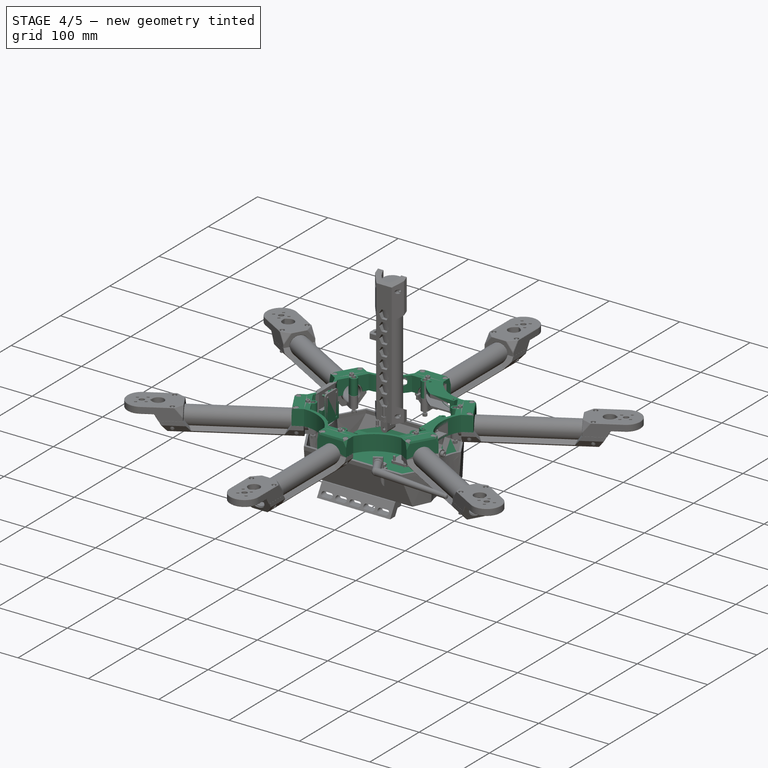
[diagram: stage 4 of 5 — iso view after this stage's code; geometry added in this stage tinted green]
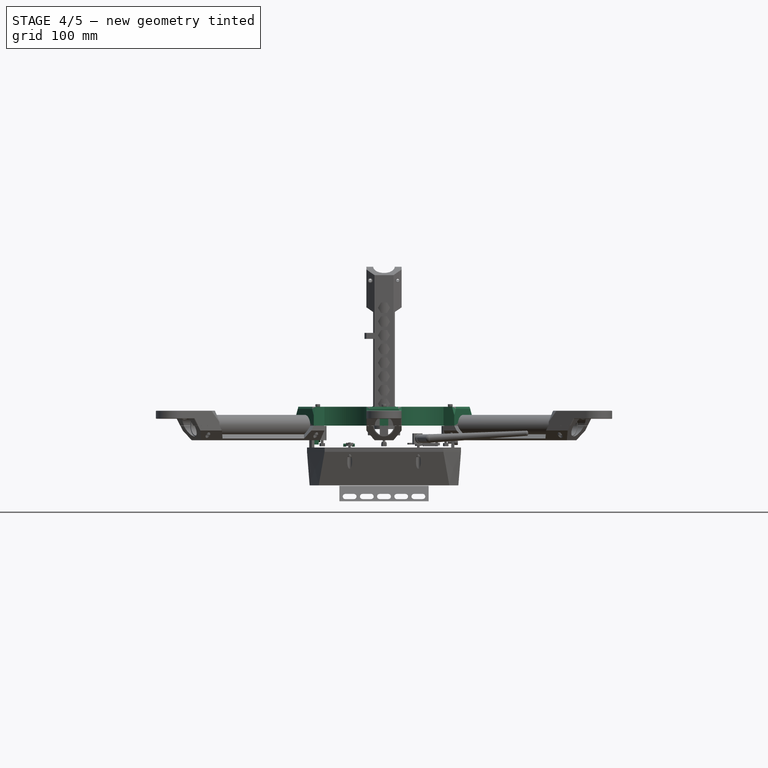
[diagram: stage 4 of 5 — front view after this stage's code; geometry added in this stage tinted green]
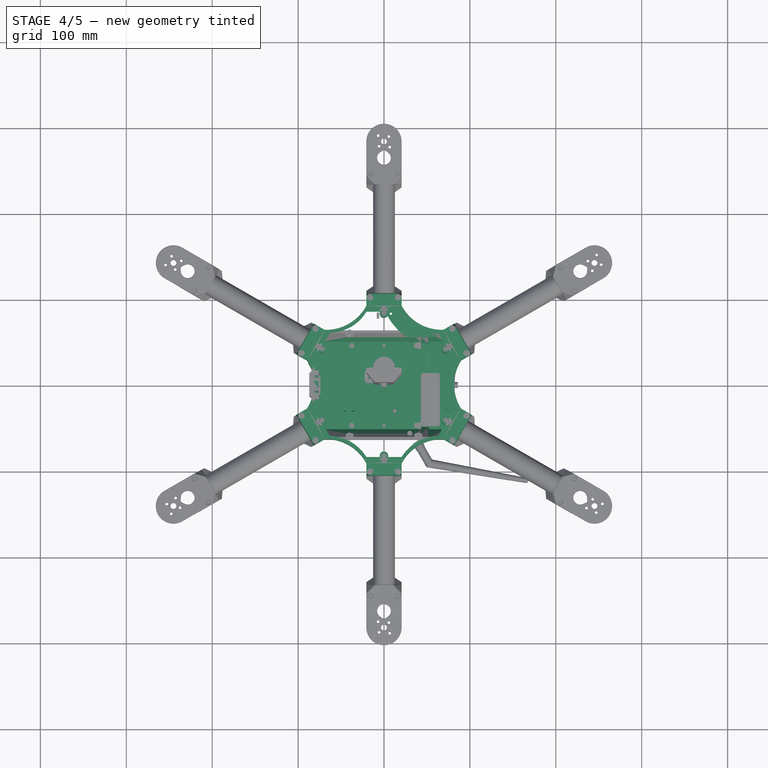
[diagram: stage 4 of 5 — top view after this stage's code; geometry added in this stage tinted green]
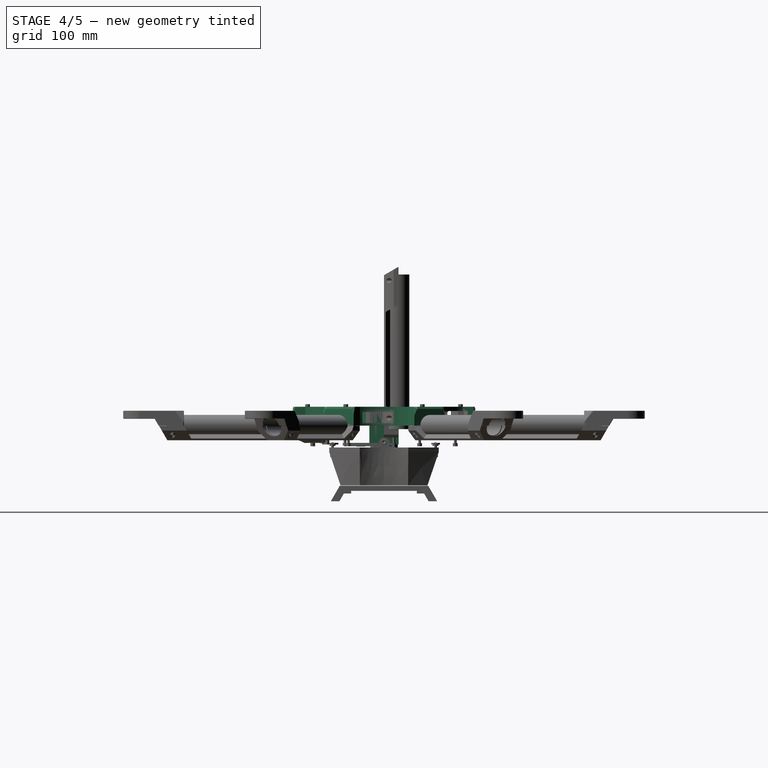
[diagram: stage 4 of 5 — right view after this stage's code; geometry added in this stage tinted green]
FEATURE [Sketcher::SketchObject] Sketch082
  FullyConstrained = false
  MapMode = 5
  Placement = pos=(0,0,0) rot=(1,0,0;1.5708rad)
  sketch-geometry (6):
    g0: LineSegment StartX=12.5 StartY=0 StartZ=0 EndX=20.5 EndY=0 EndZ=0
    g1: LineSegment StartX=20.5 StartY=0 StartZ=0 EndX=20.5 EndY=22 EndZ=0
    g2: LineSegment StartX=20.5 StartY=22 StartZ=0 EndX=-20.5 EndY=22 EndZ=0
    g3: LineSegment StartX=-20.5 StartY=22 StartZ=0 EndX=-20.5 EndY=0 EndZ=0
    g4: LineSegment StartX=-20.5 StartY=0 StartZ=0 EndX=-12.5 EndY=0 EndZ=0
    g5: ArcOfCircle CenterX=0 CenterY=1e-12 CenterZ=0 NormalX=0 NormalY=0 NormalZ=1 AngleXU=0 Radius=12.5 StartAngle=0 EndAngle=3.14159
  constraints (18):
    c: Horizontal(g0)
    c: Coincident(g0,g1)
    c: Vertical(g1)
    c: Coincident(g1,g2)
    c: Horizontal(g2)
    c: Coincident(g2,g3)
    c: Vertical(g3)
    c: Coincident(g3,g4)
    c: Horizontal(g4)
    c: Coincident(g5,g4)
    c: Coincident(g5,g0)
    c: Radius(g5) = 12.5
    c: Angle(g5) = 3.14159
    c: Equal(g0,g4)
    c: DistanceX(g3,g0) = 41
    c: DistanceY(g1,g1) = 22
    c: Symmetric(g0,g3,g-2)
    c: PointOnObject(g3,g-1)
FEATURE [Part::Extrusion] Extrude082
  Base = -> Sketch082
  Dir = (0,-20.3,0)
  DirMode = 0
  FaceMakerClass = Part::FaceMakerExtrusion
  LengthFwd = 0
  LengthRev = 0
  Solid = true
  Symmetric = false
FEATURE [Part::Feature] Fusion002001  label="DoubleBattery003"
  Placement = pos=(65,42,-58) rot=(0,0,1;3.14159rad)
  shape: bbox 148.7 x 92.66 x 32 mm, 14 faces (baked)
FEATURE [Sketcher::SketchObject] Sketch085
  FullyConstrained = false
  MapMode = 5
  sketch-geometry (2):
    g0: Circle CenterX=-16 CenterY=0 CenterZ=0 NormalX=0 NormalY=0 NormalZ=1 AngleXU=0 Radius=1.85
    g1: Circle CenterX=16 CenterY=0 CenterZ=0 NormalX=0 NormalY=0 NormalZ=1 AngleXU=0 Radius=1.85
  constraints (5):
    c: PointOnObject(g0,g-1)
    c: Symmetric(g0,g1,g-2)
    c: Radius(g0) = 1.85
    c: Equal(g0,g1)
    c: DistanceX(g0,g1) = 32
FEATURE [Part::Extrusion] Extrude085
  Base = -> Sketch085
  Dir = (0,0,22)
  DirMode = 0
  FaceMakerClass = Part::FaceMakerExtrusion
  LengthFwd = 0
  LengthRev = 0
  Solid = true
  Symmetric = false
FEATURE [Sketcher::SketchObject] Sketch086
  FullyConstrained = false
  MapMode = 5
  sketch-geometry (14):
    g0: LineSegment StartX=-13.1854 StartY=-1.625 StartZ=0 EndX=-13.1854 EndY=1.625 EndZ=0
    g1: LineSegment StartX=-13.1854 StartY=1.625 StartZ=0 EndX=-16 EndY=3.25 EndZ=0
    g2: LineSegment StartX=-16 StartY=3.25 StartZ=0 EndX=-18.8146 EndY=1.625 EndZ=0
    g3: LineSegment StartX=-18.8146 StartY=1.625 StartZ=0 EndX=-18.8146 EndY=-1.625 EndZ=0
    g4: LineSegment StartX=-18.8146 StartY=-1.625 StartZ=0 EndX=-16 EndY=-3.25 EndZ=0
    g5: LineSegment StartX=-16 StartY=-3.25 StartZ=0 EndX=-13.1854 EndY=-1.625 EndZ=0
    g6: Circle CenterX=-16 CenterY=0 CenterZ=0 NormalX=0 NormalY=0 NormalZ=1 AngleXU=0 Radius=3.25
    g7: LineSegment StartX=18.8146 StartY=-1.625 StartZ=0 EndX=18.8146 EndY=1.625 EndZ=0
    g8: LineSegment StartX=18.8146 StartY=1.625 StartZ=0 EndX=16 EndY=3.25 EndZ=0
    g9: LineSegment StartX=16 StartY=3.25 StartZ=0 EndX=13.1854 EndY=1.625 EndZ=0
    g10: LineSegment StartX=13.1854 StartY=1.625 StartZ=0 EndX=13.1854 EndY=-1.625 EndZ=0
    g11: LineSegment StartX=13.1854 StartY=-1.625 StartZ=0 EndX=16 EndY=-3.25 EndZ=0
    g12: LineSegment StartX=16 StartY=-3.25 StartZ=0 EndX=18.8146 EndY=-1.625 EndZ=0
    g13: Circle CenterX=16 CenterY=0 CenterZ=0 NormalX=0 NormalY=0 NormalZ=1 AngleXU=0 Radius=3.25
  constraints (33):
    c: Coincident(g0,g1)
    c: Coincident(g1,g2)
    c: Coincident(g2,g3)
    c: Coincident(g3,g4)
    c: Coincident(g4,g5)
    c: Coincident(g5,g0)
    c: Equal(g0, g1-g5) x5
    c: PointOnObject(g0,g6)
    c: PointOnObject(g1,g6)
    c: PointOnObject(g2,g6)
    c: PointOnObject(g3,g6)
    c: PointOnObject(g4,g6)
    c: PointOnObject(g5,g6)
    c: Coincident(g7,g8)
    c: Coincident(g8,g9)
    c: Coincident(g9,g10)
    c: Coincident(g10,g11)
    c: Coincident(g11,g12)
    c: Coincident(g12,g7)
    c: Equal(g7, g8-g12) x5
    c: PointOnObject(g7,g13)
    c: PointOnObject(g8,g13)
    c: PointOnObject(g9,g13)
    c: PointOnObject(g10,g13)
    c: PointOnObject(g11,g13)
    c: PointOnObject(g12,g13)
    c: Vertical(g7)
    c: Vertical(g0)
    c: DistanceX(g6,g13) = 32
    c: PointOnObject(g6,g-1)
    c: Symmetric(g13,g6,g-2)
    c: Equal(g6,g13)
    c: Radius(g6) = 3.25
FEATURE [Part::Extrusion] Extrude086
  Base = -> Sketch086
  Dir = (0,0,4)
  DirMode = 0
  FaceMakerClass = Part::FaceMakerExtrusion
  LengthFwd = 0
  LengthRev = 0
  Placement = pos=(0,0,18) rot=(0,0,1;0rad)
  Solid = true
  Symmetric = false
FEATURE [Sketcher::SketchObject] Sketch087
  FullyConstrained = false
  MapMode = 5
  Placement = pos=(-20.5,-20.35,22.05) rot=(0.774596,0.447214,0.447214;1.82348rad)
  sketch-geometry (3):
    g0: LineSegment StartX=0 StartY=-10 StartZ=0 EndX=0 EndY=0 EndZ=0
    g1: LineSegment StartX=0 StartY=0 StartZ=0 EndX=2.67949 EndY=0 EndZ=0
    g2: LineSegment StartX=2.67949 StartY=0 StartZ=0 EndX=0 EndY=-10 EndZ=0
  constraints (8):
    c: Vertical(g0)
    c: Coincident(g0,g1)
    c: Horizontal(g1)
    c: Coincident(g1,g2)
    c: Angle(g2,g0) = 0.261799
    c: DistanceY(g0,g0) = 10
    c: Coincident(g2,g0)
    c: Coincident(g0,g-1)
FEATURE [PartDesign::Pad] Pad
  AllowMultiFace = false
  Direction = (1,1,1)
  Length = 25
  Length2 = 100
  Midplane = true
  Placement = pos=(-20.5,-20.35,22.05) rot=(0.774596,0.447214,0.447214;1.82348rad)
  Profile = -> Sketch087
  Type = 0
FEATURE [Sketcher::SketchObject] Sketch088
  FullyConstrained = false
  MapMode = 5
  Placement = pos=(20.5,-20.35,22.05) rot=(0.377963,0.654654,0.654654;2.41886rad)
  sketch-geometry (3):
    g0: LineSegment StartX=0 StartY=-10 StartZ=0 EndX=0 EndY=0 EndZ=0
    g1: LineSegment StartX=0 StartY=0 StartZ=0 EndX=2.67949 EndY=0 EndZ=0
    g2: LineSegment StartX=2.67949 StartY=0 StartZ=0 EndX=0 EndY=-10 EndZ=0
  constraints (8):
    c: Vertical(g0)
    c: Horizontal(g1)
    c: Coincident(g1,g2)
    c: Angle(g2,g0) = 0.261799
    c: DistanceY(g0,g0) = 10
    c: Coincident(g1,g0)
    c: Coincident(g2,g0)
    c: Coincident(g0,g-1)
FEATURE [PartDesign::Pad] Pad001
  AllowMultiFace = false
  Direction = (1,1,1)
  Length = 25
  Length2 = 100
  Midplane = true
  Placement = pos=(20.5,-20.35,22.05) rot=(0.377963,0.654654,0.654654;2.41886rad)
  Profile = -> Sketch088
  Type = 0
FEATURE [Sketcher::SketchObject] Sketch090
  FullyConstrained = false
  MapMode = 5
  sketch-geometry (25):
    g0: LineSegment StartX=89.6969 StartY=-28.1152 StartZ=0 EndX=89.6969 EndY=28.1152 EndZ=0
    g1: LineSegment StartX=89.6969 StartY=28.1152 StartZ=0 EndX=69.1969 EndY=63.6222 EndZ=0
    g2: LineSegment StartX=69.1969 StartY=63.6222 StartZ=0 EndX=20.5 EndY=91.7374 EndZ=0
    g3: LineSegment StartX=20.5 StartY=91.7374 StartZ=0 EndX=-20.5 EndY=91.7374 EndZ=0
    g4: LineSegment StartX=-20.5 StartY=91.7374 StartZ=0 EndX=-69.1969 EndY=63.6222 EndZ=0
    g5: LineSegment StartX=-69.1969 StartY=63.6222 StartZ=0 EndX=-89.6969 EndY=28.1152 EndZ=0
    g6: LineSegment StartX=-89.6969 StartY=28.1152 StartZ=0 EndX=-89.6969 EndY=-28.1152 EndZ=0
    g7: LineSegment StartX=-89.6969 StartY=-28.1152 StartZ=0 EndX=-69.1969 EndY=-63.6222 EndZ=0
    g8: LineSegment StartX=-69.1969 StartY=-63.6222 StartZ=0 EndX=-20.5 EndY=-91.7374 EndZ=0
    g9: LineSegment StartX=-20.5 StartY=-91.7374 StartZ=0 EndX=20.5 EndY=-91.7374 EndZ=0
    g10: LineSegment StartX=20.5 StartY=-91.7374 StartZ=0 EndX=69.1969 EndY=-63.6222 EndZ=0
    g11: LineSegment StartX=69.1969 StartY=-63.6222 StartZ=0 EndX=89.6969 EndY=-28.1152 EndZ=0
    g12: Circle CenterX=0 CenterY=0 CenterZ=0 NormalX=0 NormalY=0 NormalZ=1 AngleXU=0 Radius=94
    g13: ArcOfCircle CenterX=-67.3485 CenterY=-116.651 CenterZ=0 NormalX=0 NormalY=0 NormalZ=1 AngleXU=0 Radius=53.0609 StartAngle=0.488755 EndAngle=1.60564
    g14: LineSegment StartX=-67.3485 StartY=-116.651 StartZ=0 EndX=-44.8485 EndY=-77.6798 EndZ=0
    g15: ArcOfCircle CenterX=67.3485 CenterY=-116.651 CenterZ=0 NormalX=0 NormalY=0 NormalZ=1 AngleXU=0 Radius=53.0609 StartAngle=1.53595 EndAngle=2.65284
    g16: ArcOfCircle CenterX=134.697 CenterY=0 CenterZ=0 NormalX=0 NormalY=0 NormalZ=1 AngleXU=0 Radius=53.0609 StartAngle=2.58315 EndAngle=3.70003
    g17: ArcOfCircle CenterX=67.3485 CenterY=116.651 CenterZ=0 NormalX=0 NormalY=0 NormalZ=1 AngleXU=0 Radius=53.0609 StartAngle=3.63035 EndAngle=4.74723
    g18: ArcOfCircle CenterX=-67.3485 CenterY=116.651 CenterZ=0 NormalX=0 NormalY=0 NormalZ=1 AngleXU=0 Radius=53.0609 StartAngle=4.67755 EndAngle=5.79443
    g19: ArcOfCircle CenterX=-134.697 CenterY=0 CenterZ=0 NormalX=0 NormalY=0 NormalZ=1 AngleXU=0 Radius=53.0609 StartAngle=5.72474 EndAngle=6.84163
    g20: LineSegment StartX=67.3485 StartY=-116.651 StartZ=0 EndX=44.8485 EndY=-77.6798 EndZ=0
    g21: LineSegment StartX=134.697 StartY=0 StartZ=0 EndX=89.6969 EndY=0 EndZ=0
    g22: LineSegment StartX=67.3485 StartY=116.651 StartZ=0 EndX=44.8485 EndY=77.6798 EndZ=0
    g23: LineSegment StartX=-67.3485 StartY=116.651 StartZ=0 EndX=-44.8485 EndY=77.6798 EndZ=0
    g24: LineSegment StartX=-134.697 StartY=0 StartZ=0 EndX=-89.6969 EndY=0 EndZ=0
  constraints (74):
    c: Coincident(g0,g1)
    c: Coincident(g1,g2)
    c: Coincident(g2,g3)
    c: Coincident(g3,g4)
    c: Coincident(g4,g5)
    c: Coincident(g5,g6)
    c: Coincident(g6,g7)
    c: Coincident(g7,g8)
    c: Coincident(g8,g9)
    c: Coincident(g9,g10)
    c: Coincident(g10,g11)
    c: Coincident(g11,g0)
    c: PointOnObject(g0,g12)
    c: PointOnObject(g1,g12)
    c: PointOnObject(g2,g12)
    c: PointOnObject(g3,g12)
    c: PointOnObject(g4,g12)
    c: PointOnObject(g5,g12)
    c: PointOnObject(g6,g12)
    c: PointOnObject(g7,g12)
    c: PointOnObject(g8,g12)
    c: PointOnObject(g9,g12)
    c: PointOnObject(g10,g12)
    c: PointOnObject(g11,g12)
    c: Coincident(g12,g-1)
    c: Horizontal(g9)
    c: Equal(g9,g7)
    c: Equal(g7,g5)
    c: Equal(g5,g3)
    c: Equal(g3,g1)
    c: Equal(g1,g11)
    c: Equal(g6,g4)
    c: Equal(g4,g2)
    c: Equal(g2,g0)
    c: Equal(g0,g10)
    c: Equal(g10,g8)
    c: Coincident(g13,g7)
    c: Coincident(g13,g8)
    c: Coincident(g14,g13)
    c: PointOnObject(g14,g8)
    c: Perpendicular(g8,g14)
    c: Distance(g14) = 45
    c: Coincident(g15,g9)
    c: Coincident(g15,g10)
    c: Coincident(g16,g0)
    c: Coincident(g16,g0)
    c: Coincident(g17,g1)
    c: Coincident(g17,g2)
    c: Coincident(g18,g3)
    c: Coincident(g18,g4)
    c: Coincident(g19,g5)
    c: Coincident(g19,g6)
    c: Coincident(g20,g15)
    c: PointOnObject(g20,g10)
    c: Coincident(g21,g16)
    c: PointOnObject(g21,g0)
    c: Coincident(g22,g17)
    c: PointOnObject(g22,g2)
    c: Coincident(g23,g18)
    c: PointOnObject(g23,g4)
    c: Coincident(g24,g19)
    c: PointOnObject(g24,g6)
    c: Perpendicular(g10,g20)
    c: Perpendicular(g0,g21)
    c: Perpendicular(g2,g22)
    c: Perpendicular(g4,g23)
    c: Perpendicular(g24,g6)
    c: Equal(g14,g20)
    c: Equal(g20,g21)
    c: Equal(g21,g22)
    c: Equal(g22,g23)
    c: Equal(g23,g24)
    c: Radius(g12) = 94
    c: DistanceX(g9,g9) = 41
FEATURE [Sketcher::SketchObject] Sketch091
  FullyConstrained = false
  MapMode = 5
  sketch-geometry (25):
    g0: LineSegment StartX=85.0312 StartY=-25.4215 StartZ=0 EndX=85.0312 EndY=25.4215 EndZ=0
    g1: LineSegment StartX=85.0312 StartY=25.4215 StartZ=0 EndX=64.5312 EndY=60.9285 EndZ=0
    g2: LineSegment StartX=64.5312 StartY=60.9285 StartZ=0 EndX=20.5 EndY=86.3499 EndZ=0
    g3: LineSegment StartX=20.5 StartY=86.3499 StartZ=0 EndX=-20.5 EndY=86.3499 EndZ=0
    g4: LineSegment StartX=-20.5 StartY=86.3499 StartZ=0 EndX=-64.5312 EndY=60.9285 EndZ=0
    g5: LineSegment StartX=-64.5312 StartY=60.9285 StartZ=0 EndX=-85.0312 EndY=25.4215 EndZ=0
    g6: LineSegment StartX=-85.0312 StartY=25.4215 StartZ=0 EndX=-85.0312 EndY=-25.4215 EndZ=0
    g7: LineSegment StartX=-85.0312 StartY=-25.4215 StartZ=0 EndX=-64.5312 EndY=-60.9285 EndZ=0
    g8: LineSegment StartX=-64.5312 StartY=-60.9285 StartZ=0 EndX=-20.5 EndY=-86.3499 EndZ=0
    g9: LineSegment StartX=-20.5 StartY=-86.3499 StartZ=0 EndX=20.5 EndY=-86.3499 EndZ=0
    g10: LineSegment StartX=20.5 StartY=-86.3499 StartZ=0 EndX=64.5312 EndY=-60.9285 EndZ=0
    g11: LineSegment StartX=64.5312 StartY=-60.9285 StartZ=0 EndX=85.0312 EndY=-25.4215 EndZ=0
    g12: Circle CenterX=0 CenterY=0 CenterZ=0 NormalX=0 NormalY=0 NormalZ=1 AngleXU=0 Radius=88.75
    g13: ArcOfCircle CenterX=-65.0156 CenterY=-112.61 CenterZ=0 NormalX=0 NormalY=0 NormalZ=1 AngleXU=0 Radius=51.6841 StartAngle=0.532971 EndAngle=1.56142
    g14: LineSegment StartX=-65.0156 StartY=-112.61 StartZ=0 EndX=-42.5156 EndY=-73.6392 EndZ=0
    g15: ArcOfCircle CenterX=65.0156 CenterY=-112.61 CenterZ=0 NormalX=0 NormalY=0 NormalZ=1 AngleXU=0 Radius=51.6841 StartAngle=1.58017 EndAngle=2.60862
    g16: ArcOfCircle CenterX=130.031 CenterY=0 CenterZ=0 NormalX=0 NormalY=0 NormalZ=1 AngleXU=0 Radius=51.6841 StartAngle=2.62737 EndAngle=3.65582
    g17: ArcOfCircle CenterX=65.0156 CenterY=112.61 CenterZ=0 NormalX=0 NormalY=0 NormalZ=1 AngleXU=0 Radius=51.6841 StartAngle=3.67456 EndAngle=4.70302
    g18: ArcOfCircle CenterX=-65.0156 CenterY=112.61 CenterZ=0 NormalX=0 NormalY=0 NormalZ=1 AngleXU=0 Radius=51.6841 StartAngle=4.72176 EndAngle=5.75021
    g19: ArcOfCircle CenterX=-130.031 CenterY=0 CenterZ=0 NormalX=0 NormalY=0 NormalZ=1 AngleXU=0 Radius=51.6841 StartAngle=5.76896 EndAngle=6.79741
    g20: LineSegment StartX=65.0156 StartY=-112.61 StartZ=0 EndX=42.5156 EndY=-73.6392 EndZ=0
    g21: LineSegment StartX=130.031 StartY=0 StartZ=0 EndX=85.0312 EndY=0 EndZ=0
    g22: LineSegment StartX=65.0156 StartY=112.61 StartZ=0 EndX=42.5156 EndY=73.6392 EndZ=0
    g23: LineSegment StartX=-65.0156 StartY=112.61 StartZ=0 EndX=-42.5156 EndY=73.6392 EndZ=0
    g24: LineSegment StartX=-130.031 StartY=0 StartZ=0 EndX=-85.0312 EndY=0 EndZ=0
  constraints (74):
    c: Coincident(g0,g1)
    c: Coincident(g1,g2)
    c: Coincident(g2,g3)
    c: Coincident(g3,g4)
    c: Coincident(g4,g5)
    c: Coincident(g5,g6)
    c: Coincident(g6,g7)
    c: Coincident(g7,g8)
    c: Coincident(g8,g9)
    c: Coincident(g9,g10)
    c: Coincident(g10,g11)
    c: Coincident(g11,g0)
    c: PointOnObject(g0,g12)
    c: PointOnObject(g1,g12)
    c: PointOnObject(g2,g12)
    c: PointOnObject(g3,g12)
    c: PointOnObject(g4,g12)
    c: PointOnObject(g5,g12)
    c: PointOnObject(g6,g12)
    c: PointOnObject(g7,g12)
    c: PointOnObject(g8,g12)
    c: PointOnObject(g9,g12)
    c: PointOnObject(g10,g12)
    c: PointOnObject(g11,g12)
    c: Coincident(g12,g-1)
    c: Horizontal(g9)
    c: Equal(g9,g7)
    c: Equal(g7,g5)
    c: Equal(g5,g3)
    c: Equal(g3,g1)
    c: Equal(g1,g11)
    c: Equal(g6,g4)
    c: Equal(g4,g2)
    c: Equal(g2,g0)
    c: Equal(g0,g10)
    c: Equal(g10,g8)
    c: Coincident(g13,g7)
    c: Coincident(g13,g8)
    c: Coincident(g14,g13)
    c: PointOnObject(g14,g8)
    c: Perpendicular(g8,g14)
    c: Distance(g14) = 45
    c: Coincident(g15,g9)
    c: Coincident(g15,g10)
    c: Coincident(g16,g0)
    c: Coincident(g16,g0)
    c: Coincident(g17,g1)
    c: Coincident(g17,g2)
    c: Coincident(g18,g3)
    c: Coincident(g18,g4)
    c: Coincident(g19,g5)
    c: Coincident(g19,g6)
    c: Coincident(g20,g15)
    c: PointOnObject(g20,g10)
    c: Coincident(g21,g16)
    c: PointOnObject(g21,g0)
    c: Coincident(g22,g17)
    c: PointOnObject(g22,g2)
    c: Coincident(g23,g18)
    c: PointOnObject(g23,g4)
    c: Coincident(g24,g19)
    c: PointOnObject(g24,g6)
    c: Perpendicular(g10,g20)
    c: Perpendicular(g0,g21)
    c: Perpendicular(g2,g22)
    c: Perpendicular(g4,g23)
    c: Perpendicular(g24,g6)
    c: Equal(g14,g20)
    c: Equal(g20,g21)
    c: Equal(g21,g22)
    c: Equal(g22,g23)
    c: Equal(g23,g24)
    c: Radius(g12) = 88.75
    c: DistanceX(g9,g9) = 41
FEATURE [Part::Extrusion] Extrude087
  Base = -> Sketch090
  Dir = (0,0,22)
  DirMode = 0
  FaceMakerClass = Part::FaceMakerExtrusion
  LengthFwd = 0
  LengthRev = 0
  Solid = true
  Symmetric = false
FEATURE [Part::Extrusion] Extrude088
  Base = -> Sketch091
  Dir = (0,0,22)
  DirMode = 0
  FaceMakerClass = Part::FaceMakerExtrusion
  LengthFwd = 0
  LengthRev = 0
  Solid = true
  Symmetric = false
FEATURE [Sketcher::SketchObject] Sketch092
  FullyConstrained = false
  MapMode = 5
  Placement = pos=(0,0,0) rot=(1,0,0;1.5708rad)
  sketch-geometry (4):
    g0: LineSegment StartX=20.5 StartY=0 StartZ=0 EndX=20.5 EndY=22 EndZ=0
    g1: LineSegment StartX=20.5 StartY=22 StartZ=0 EndX=-20.5 EndY=22 EndZ=0
    g2: LineSegment StartX=-20.5 StartY=22 StartZ=0 EndX=-20.5 EndY=0 EndZ=0
    g3: LineSegment StartX=-20.5 StartY=0 StartZ=0 EndX=20.5 EndY=0 EndZ=0
  constraints (12):
    c: Vertical(g0)
    c: Coincident(g0,g1)
    c: Horizontal(g1)
    c: Coincident(g1,g2)
    c: Vertical(g2)
    c: Coincident(g2,g3)
    c: Horizontal(g3)
    c: DistanceX(g2,g0) = 41
    c: DistanceY(g0,g0) = 22
    c: Symmetric(g0,g2,g-2)
    c: PointOnObject(g2,g-1)
    c: Coincident(g3,g0)
FEATURE [Part::Extrusion] Extrude089
  Base = -> Sketch092
  Dir = (0,-11,0)
  DirMode = 0
  FaceMakerClass = Part::FaceMakerExtrusion
  LengthFwd = 0
  LengthRev = 0
  Placement = pos=(0,-83,0) rot=(0,0,1;0rad)
  Solid = true
  Symmetric = false
FEATURE [Part::FeaturePython] Array003  # Draft array (typed FeaturePython)
  Angle = 360
  ArrayType = 1
  Axis = (0,0,1)
  Base = -> Extrude089
  Center = (0,0,0)
  Fuse = false
  IntervalAxis = (0,0,0)
  IntervalX = (1,0,0)
  IntervalY = (0,1,0)
  IntervalZ = (0,0,0)
  NumberPolar = 6
  NumberX = 2
  NumberY = 2
  NumberZ = 1
FEATURE [Part::MultiFuse] Fusion034004006
  Shapes = -> [Extrude088,Array003]
FEATURE [Sketcher::SketchObject] Sketch093
  FullyConstrained = false
  MapMode = 5
  Placement = pos=(0,0,22) rot=(0,0,1;0rad)
  sketch-geometry (29):
    g0: LineSegment StartX=89.6969 StartY=-28.1152 StartZ=0 EndX=89.6969 EndY=28.1152 EndZ=0
    g1: LineSegment StartX=89.6969 StartY=28.1152 StartZ=0 EndX=69.1969 EndY=63.6222 EndZ=0
    g2: LineSegment StartX=69.1969 StartY=63.6222 StartZ=0 EndX=20.5 EndY=91.7374 EndZ=0
    g3: LineSegment StartX=20.5 StartY=91.7374 StartZ=0 EndX=-20.5 EndY=91.7374 EndZ=0
    g4: LineSegment StartX=-20.5 StartY=91.7374 StartZ=0 EndX=-69.1969 EndY=63.6222 EndZ=0
    g5: LineSegment StartX=-69.1969 StartY=63.6222 StartZ=0 EndX=-89.6969 EndY=28.1152 EndZ=0
    g6: LineSegment StartX=-89.6969 StartY=28.1152 StartZ=0 EndX=-89.6969 EndY=-28.1152 EndZ=0
    g7: LineSegment StartX=-89.6969 StartY=-28.1152 StartZ=0 EndX=-69.1969 EndY=-63.6222 EndZ=0
    g8: LineSegment StartX=-69.1969 StartY=-63.6222 StartZ=0 EndX=-20.5 EndY=-91.7374 EndZ=0
    g9: LineSegment StartX=-20.5 StartY=-91.7374 StartZ=0 EndX=20.5 EndY=-91.7374 EndZ=0
    g10: LineSegment StartX=20.5 StartY=-91.7374 StartZ=0 EndX=69.1969 EndY=-63.6222 EndZ=0
    g11: LineSegment StartX=69.1969 StartY=-63.6222 StartZ=0 EndX=89.6969 EndY=-28.1152 EndZ=0
    g12: Circle CenterX=0 CenterY=0 CenterZ=0 NormalX=0 NormalY=0 NormalZ=1 AngleXU=0 Radius=94
    g13: ArcOfCircle CenterX=-67.3485 CenterY=-116.651 CenterZ=0 NormalX=0 NormalY=0 NormalZ=1 AngleXU=0 Radius=53.0609 StartAngle=0.488755 EndAngle=1.60564
    g14: LineSegment StartX=-67.3485 StartY=-116.651 StartZ=0 EndX=-44.8485 EndY=-77.6798 EndZ=0
    g15: ArcOfCircle CenterX=67.3485 CenterY=-116.651 CenterZ=0 NormalX=0 NormalY=0 NormalZ=1 AngleXU=0 Radius=53.0609 StartAngle=1.53595 EndAngle=2.65284
    g16: ArcOfCircle CenterX=134.697 CenterY=0 CenterZ=0 NormalX=0 NormalY=0 NormalZ=1 AngleXU=0 Radius=53.0609 StartAngle=2.58315 EndAngle=3.70003
    g17: ArcOfCircle CenterX=67.3485 CenterY=116.651 CenterZ=0 NormalX=0 NormalY=0 NormalZ=1 AngleXU=0 Radius=53.0609 StartAngle=3.63035 EndAngle=4.74723
    g18: ArcOfCircle CenterX=-67.3485 CenterY=116.651 CenterZ=0 NormalX=0 NormalY=0 NormalZ=1 AngleXU=0 Radius=53.0609 StartAngle=4.67755 EndAngle=5.79443
    g19: ArcOfCircle CenterX=-134.697 CenterY=0 CenterZ=0 NormalX=0 NormalY=0 NormalZ=1 AngleXU=0 Radius=53.0609 StartAngle=5.72474 EndAngle=6.84163
    g20: LineSegment StartX=67.3485 StartY=-116.651 StartZ=0 EndX=44.8485 EndY=-77.6798 EndZ=0
    g21: LineSegment StartX=134.697 StartY=0 StartZ=0 EndX=89.6969 EndY=0 EndZ=0
    g22: LineSegment StartX=67.3485 StartY=116.651 StartZ=0 EndX=44.8485 EndY=77.6798 EndZ=0
    g23: LineSegment StartX=-67.3485 StartY=116.651 StartZ=0 EndX=-44.8485 EndY=77.6798 EndZ=0
    g24: LineSegment StartX=-134.697 StartY=0 StartZ=0 EndX=-89.6969 EndY=0 EndZ=0
    g25: LineSegment StartX=-40.5 StartY=47.25 StartZ=0 EndX=60 EndY=47.25 EndZ=0
    g26: LineSegment StartX=60 StartY=47.25 StartZ=0 EndX=60 EndY=-47.25 EndZ=0
    g27: LineSegment StartX=60 StartY=-47.25 StartZ=0 EndX=-40.5 EndY=-47.25 EndZ=0
    g28: LineSegment StartX=-40.5 StartY=-47.25 StartZ=0 EndX=-40.5 EndY=47.25 EndZ=0
  constraints (86):
    c: Coincident(g0,g1)
    c: Coincident(g1,g2)
    c: Coincident(g2,g3)
    c: Coincident(g3,g4)
    c: Coincident(g4,g5)
    c: Coincident(g5,g6)
    c: Coincident(g6,g7)
    c: Coincident(g7,g8)
    c: Coincident(g8,g9)
    c: Coincident(g9,g10)
    c: Coincident(g10,g11)
    c: Coincident(g11,g0)
    c: PointOnObject(g0,g12)
    c: PointOnObject(g1,g12)
    c: PointOnObject(g2,g12)
    c: PointOnObject(g3,g12)
    c: PointOnObject(g4,g12)
    c: PointOnObject(g5,g12)
    c: PointOnObject(g6,g12)
    c: PointOnObject(g7,g12)
    c: PointOnObject(g8,g12)
    c: PointOnObject(g9,g12)
    c: PointOnObject(g10,g12)
    c: PointOnObject(g11,g12)
    c: Coincident(g12,g-1)
    c: Horizontal(g9)
    c: Equal(g9,g7)
    c: Equal(g7,g5)
    c: Equal(g5,g3)
    c: Equal(g3,g1)
    c: Equal(g1,g11)
    c: Equal(g6,g4)
    c: Equal(g4,g2)
    c: Equal(g2,g0)
    c: Equal(g0,g10)
    c: Equal(g10,g8)
    c: Coincident(g13,g7)
    c: Coincident(g13,g8)
    c: Coincident(g14,g13)
    c: PointOnObject(g14,g8)
    c: Perpendicular(g8,g14)
    c: Distance(g14) = 45
    c: Coincident(g15,g9)
    c: Coincident(g15,g10)
    c: Coincident(g16,g0)
    c: Coincident(g16,g0)
    c: Coincident(g17,g1)
    c: Coincident(g17,g2)
    c: Coincident(g18,g3)
    c: Coincident(g18,g4)
    c: Coincident(g19,g5)
    c: Coincident(g19,g6)
    c: Coincident(g20,g15)
    c: PointOnObject(g20,g10)
    c: Coincident(g21,g16)
    c: PointOnObject(g21,g0)
    c: Coincident(g22,g17)
    c: PointOnObject(g22,g2)
    c: Coincident(g23,g18)
    c: PointOnObject(g23,g4)
    c: Coincident(g24,g19)
    c: PointOnObject(g24,g6)
    c: Perpendicular(g10,g20)
    c: Perpendicular(g0,g21)
    c: Perpendicular(g2,g22)
    c: Perpendicular(g4,g23)
    c: Perpendicular(g24,g6)
    c: Equal(g14,g20)
    c: Equal(g20,g21)
    c: Equal(g21,g22)
    c: Equal(g22,g23)
    c: Equal(g23,g24)
    c: Radius(g12) = 94
    c: DistanceX(g9,g9) = 41
    c: Coincident(g25,g26)
    c: Coincident(g26,g27)
    c: Coincident(g27,g28)
    c: Coincident(g28,g25)
    c: Horizontal(g25)
    c: Horizontal(g27)
    c: Vertical(g26)
    c: Vertical(g28)
    c: DistanceY(g28,g28) = 94.5
    c: DistanceX(g25,g25) = 100.5
    c: Symmetric(g25,g27,g-1)
    c: DistanceX(g-1,g26) = 60
FEATURE [Sketcher::SketchObject] Sketch094
  FullyConstrained = false
  MapMode = 5
  sketch-geometry (4):
    g0: ArcOfCircle CenterX=0 CenterY=4 CenterZ=0 NormalX=0 NormalY=0 NormalZ=1 AngleXU=0 Radius=5 StartAngle=0 EndAngle=3.14159
    g1: LineSegment StartX=-5 StartY=4 StartZ=0 EndX=-5 EndY=0 EndZ=0
    g2: LineSegment StartX=5 StartY=4 StartZ=0 EndX=5 EndY=0 EndZ=0
    g3: LineSegment StartX=-5 StartY=0 StartZ=0 EndX=5 EndY=0 EndZ=0
  constraints (10):
    c: Tangent(g0,g2) = 1.5708
    c: Tangent(g0,g1) = -1.5708
    c: Vertical(g1)
    c: Coincident(g3,g1)
    c: Coincident(g3,g2)
    c: Horizontal(g3)
    c: DistanceX(g3,g3) = 10
    c: DistanceY(g1,g1) = 4
    c: Vertical(g2)
    c: Symmetric(g1,g2,g-1)
FEATURE [Part::Extrusion] Extrude091
  Base = -> Sketch094
  Dir = (0,0,-22)
  DirMode = 0
  FaceMakerClass = Part::FaceMakerExtrusion
  LengthFwd = 0
  LengthRev = 0
  Placement = pos=(0,-87,22) rot=(0,0,1;0rad)
  Solid = true
  Symmetric = false
FEATURE [Part::FeaturePython] Array004  # Draft array (typed FeaturePython)
  Angle = 360
  ArrayType = 1
  Axis = (0,0,1)
  Base = -> Extrude091
  Center = (0,0,0)
  Fuse = false
  IntervalAxis = (0,0,0)
  IntervalX = (1,0,0)
  IntervalY = (0,1,0)
  IntervalZ = (0,0,0)
  NumberPolar = 6
  NumberX = 2
  NumberY = 2
  NumberZ = 1
FEATURE [Part::Cut] Cut009002
  Base = -> Extrude087
  Tool = -> Fusion034004006
FEATURE [Part::Feature] Compound001  label="ColibriCompound001"
  Placement = pos=(62,47.25,16) rot=(0,0.707107,0.707107;3.14159rad)
  shape: large baked B-rep (132 MB .brp); summary skipped
FEATURE [Part::Extrusion] Extrude095
  Base = -> Sketch093
  Dir = (0,0,-2)
  DirMode = 0
  FaceMakerClass = Part::FaceMakerExtrusion
  LengthFwd = 0
  LengthRev = 0
  Solid = true
  Symmetric = false
FEATURE [Sketcher::SketchObject] Sketch117
  FullyConstrained = false
  MapMode = 5
  Placement = pos=(0,0,22) rot=(0,0,1;0rad)
  sketch-geometry (29):
    g0: LineSegment StartX=83.4727 StartY=-24.5216 StartZ=0 EndX=83.4727 EndY=24.5216 EndZ=0
    g1: LineSegment StartX=83.4727 StartY=24.5216 StartZ=0 EndX=62.9727 EndY=60.0287 EndZ=0
    g2: LineSegment StartX=62.9727 StartY=60.0287 StartZ=0 EndX=20.5 EndY=84.5503 EndZ=0
    g3: LineSegment StartX=20.5 StartY=84.5503 StartZ=0 EndX=-20.5 EndY=84.5503 EndZ=0
    g4: LineSegment StartX=-20.5 StartY=84.5503 StartZ=0 EndX=-62.9727 EndY=60.0287 EndZ=0
    g5: LineSegment StartX=-62.9727 StartY=60.0287 StartZ=0 EndX=-83.4727 EndY=24.5216 EndZ=0
    g6: LineSegment StartX=-83.4727 StartY=24.5216 StartZ=0 EndX=-83.4727 EndY=-24.5216 EndZ=0
    g7: LineSegment StartX=-83.4727 StartY=-24.5216 StartZ=0 EndX=-62.9727 EndY=-60.0287 EndZ=0
    g8: LineSegment StartX=-62.9727 StartY=-60.0287 StartZ=0 EndX=-20.5 EndY=-84.5503 EndZ=0
    g9: LineSegment StartX=-20.5 StartY=-84.5503 StartZ=0 EndX=20.5 EndY=-84.5503 EndZ=0
    g10: LineSegment StartX=20.5 StartY=-84.5503 StartZ=0 EndX=62.9727 EndY=-60.0287 EndZ=0
    g11: LineSegment StartX=62.9727 StartY=-60.0287 StartZ=0 EndX=83.4727 EndY=-24.5216 EndZ=0
    g12: Circle CenterX=0 CenterY=0 CenterZ=0 NormalX=0 NormalY=0 NormalZ=1 AngleXU=0 Radius=87
    g13: ArcOfCircle CenterX=-64.2363 CenterY=-111.261 CenterZ=0 NormalX=0 NormalY=0 NormalZ=1 AngleXU=0 Radius=51.2475 StartAngle=0.548259 EndAngle=1.54614
    g14: LineSegment StartX=-64.2363 StartY=-111.261 StartZ=0 EndX=-41.7363 EndY=-72.2895 EndZ=0
    g15: ArcOfCircle CenterX=64.2363 CenterY=-111.261 CenterZ=0 NormalX=0 NormalY=0 NormalZ=1 AngleXU=0 Radius=51.2475 StartAngle=1.59546 EndAngle=2.59333
    g16: ArcOfCircle CenterX=128.473 CenterY=0 CenterZ=0 NormalX=0 NormalY=0 NormalZ=1 AngleXU=0 Radius=51.2475 StartAngle=2.64265 EndAngle=3.64053
    g17: ArcOfCircle CenterX=64.2363 CenterY=111.261 CenterZ=0 NormalX=0 NormalY=0 NormalZ=1 AngleXU=0 Radius=51.2475 StartAngle=3.68985 EndAngle=4.68773
    g18: ArcOfCircle CenterX=-64.2363 CenterY=111.261 CenterZ=0 NormalX=0 NormalY=0 NormalZ=1 AngleXU=0 Radius=51.2475 StartAngle=4.73705 EndAngle=5.73493
    g19: ArcOfCircle CenterX=-128.473 CenterY=0 CenterZ=0 NormalX=0 NormalY=0 NormalZ=1 AngleXU=0 Radius=51.2475 StartAngle=5.78425 EndAngle=6.78212
    g20: LineSegment StartX=64.2363 StartY=-111.261 StartZ=0 EndX=41.7363 EndY=-72.2895 EndZ=0
    g21: LineSegment StartX=128.473 StartY=0 StartZ=0 EndX=83.4727 EndY=0 EndZ=0
    g22: LineSegment StartX=64.2363 StartY=111.261 StartZ=0 EndX=41.7363 EndY=72.2895 EndZ=0
    g23: LineSegment StartX=-64.2363 StartY=111.261 StartZ=0 EndX=-41.7363 EndY=72.2895 EndZ=0
    g24: LineSegment StartX=-128.473 StartY=0 StartZ=0 EndX=-83.4727 EndY=0 EndZ=0
    g25: LineSegment StartX=-40.5 StartY=47.25 StartZ=0 EndX=60 EndY=47.25 EndZ=0
    g26: LineSegment StartX=60 StartY=47.25 StartZ=0 EndX=60 EndY=-47.25 EndZ=0
    g27: LineSegment StartX=60 StartY=-47.25 StartZ=0 EndX=-40.5 EndY=-47.25 EndZ=0
    g28: LineSegment StartX=-40.5 StartY=-47.25 StartZ=0 EndX=-40.5 EndY=47.25 EndZ=0
  constraints (86):
    c: Coincident(g0,g1)
    c: Coincident(g1,g2)
    c: Coincident(g2,g3)
    c: Coincident(g3,g4)
    c: Coincident(g4,g5)
    c: Coincident(g5,g6)
    c: Coincident(g6,g7)
    c: Coincident(g7,g8)
    c: Coincident(g8,g9)
    c: Coincident(g9,g10)
    c: Coincident(g10,g11)
    c: Coincident(g11,g0)
    c: PointOnObject(g0,g12)
    c: PointOnObject(g1,g12)
    c: PointOnObject(g2,g12)
    c: PointOnObject(g3,g12)
    c: PointOnObject(g4,g12)
    c: PointOnObject(g5,g12)
    c: PointOnObject(g6,g12)
    c: PointOnObject(g7,g12)
    c: PointOnObject(g8,g12)
    c: PointOnObject(g9,g12)
    c: PointOnObject(g10,g12)
    c: PointOnObject(g11,g12)
    c: Coincident(g12,g-1)
    c: Horizontal(g9)
    c: Equal(g9,g7)
    c: Equal(g7,g5)
    c: Equal(g5,g3)
    c: Equal(g3,g1)
    c: Equal(g1,g11)
    c: Equal(g6,g4)
    c: Equal(g4,g2)
    c: Equal(g2,g0)
    c: Equal(g0,g10)
    c: Equal(g10,g8)
    c: Coincident(g13,g7)
    c: Coincident(g13,g8)
    c: Coincident(g14,g13)
    c: PointOnObject(g14,g8)
    c: Perpendicular(g8,g14)
    c: Distance(g14) = 45
    c: Coincident(g15,g9)
    c: Coincident(g15,g10)
    c: Coincident(g16,g0)
    c: Coincident(g16,g0)
    c: Coincident(g17,g1)
    c: Coincident(g17,g2)
    c: Coincident(g18,g3)
    c: Coincident(g18,g4)
    c: Coincident(g19,g5)
    c: Coincident(g19,g6)
    c: Coincident(g20,g15)
    c: PointOnObject(g20,g10)
    c: Coincident(g21,g16)
    c: PointOnObject(g21,g0)
    c: Coincident(g22,g17)
    c: PointOnObject(g22,g2)
    c: Coincident(g23,g18)
    c: PointOnObject(g23,g4)
    c: Coincident(g24,g19)
    c: PointOnObject(g24,g6)
    c: Perpendicular(g10,g20)
    c: Perpendicular(g0,g21)
    c: Perpendicular(g2,g22)
    c: Perpendicular(g4,g23)
    c: Perpendicular(g24,g6)
    c: Equal(g14,g20)
    c: Equal(g20,g21)
    c: Equal(g21,g22)
    c: Equal(g22,g23)
    c: Equal(g23,g24)
    c: Radius(g12) = 87
    c: DistanceX(g9,g9) = 41
    c: Coincident(g25,g26)
    c: Coincident(g26,g27)
    c: Coincident(g27,g28)
    c: Coincident(g28,g25)
    c: Horizontal(g25)
    c: Horizontal(g27)
    c: Vertical(g26)
    c: Vertical(g28)
    c: DistanceY(g28,g28) = 94.5
    c: DistanceX(g25,g25) = 100.5
    c: Symmetric(g25,g27,g-1)
    c: DistanceX(g-1,g26) = 60
FEATURE [Part::Extrusion] Extrude102
  Base = -> Sketch117
  Dir = (0,0,-2)
  DirMode = 0
  FaceMakerClass = Part::FaceMakerExtrusion
  LengthFwd = 0
  LengthRev = 0
  Solid = true
  Symmetric = false
FEATURE [Part::Cut] Cut009007
  Base = -> Extrude095
  Tool = -> Extrude102
FEATURE [Sketcher::SketchObject] Sketch118
  FullyConstrained = false
  MapMode = 5
  Placement = pos=(0,0,22) rot=(0,0,1;0rad)
  sketch-geometry (12):
    g0: ArcOfCircle CenterX=131 CenterY=0 CenterZ=0 NormalX=0 NormalY=0 NormalZ=1 AngleXU=0 Radius=51.25 StartAngle=2.87503 EndAngle=3.74306
    g1: LineSegment StartX=70 StartY=13.5 StartZ=0 EndX=70 EndY=-29 EndZ=0
    g2: LineSegment StartX=131 StartY=0 StartZ=0 EndX=88.7441 EndY=-29 EndZ=0
    g3: LineSegment StartX=75 StartY=12.5 StartZ=0 EndX=75 EndY=-28 EndZ=0
    g4: Circle CenterX=75 CenterY=12.5 CenterZ=0 NormalX=0 NormalY=0 NormalZ=1 AngleXU=0 Radius=1.45
    g5: Circle CenterX=75 CenterY=-28 CenterZ=0 NormalX=0 NormalY=0 NormalZ=1 AngleXU=0 Radius=1.45
    g6: ArcOfCircle CenterX=75 CenterY=-28 CenterZ=0 NormalX=0 NormalY=0 NormalZ=1 AngleXU=0 Radius=3.5 StartAngle=3.43134 EndAngle=5.99343
    g7: LineSegment StartX=70 StartY=-29 StartZ=0 EndX=71.6459 EndY=-29 EndZ=0
    g8: LineSegment StartX=78.3541 StartY=-29 StartZ=0 EndX=88.7441 EndY=-29 EndZ=0
    g9: ArcOfCircle CenterX=75 CenterY=12.5 CenterZ=0 NormalX=0 NormalY=0 NormalZ=1 AngleXU=0 Radius=3.5 StartAngle=0.289752 EndAngle=2.85184
    g10: LineSegment StartX=78.3541 StartY=13.5 StartZ=0 EndX=81.56 EndY=13.5 EndZ=0
    g11: LineSegment StartX=71.6459 StartY=13.5 StartZ=0 EndX=70 EndY=13.5 EndZ=0
  constraints (35):
    c: PointOnObject(g0,g-1)
    c: Radius(g0) = 51.25
    c: Vertical(g1)
    c: Coincident(g2,g0)
    c: Coincident(g2,g0)
    c: DistanceX(g-1,g0) = 131
    c: DistanceX(g-1,g1) = 70
    c: DistanceY(g-1,g1) = 13.5
    c: Vertical(g3)
    c: Coincident(g4,g3)
    c: Coincident(g5,g3)
    c: DistanceY(g-1,g3) = 12.5
    c: DistanceY(g3,g-1) = 28
    c: DistanceX(g-1,g3) = 75
    c: Radius(g4) = 1.45
    c: Equal(g4,g5)
    c: DistanceY(g1,g-1) = 29
    c: Coincident(g6,g3)
    c: Coincident(g7,g1)
    c: Coincident(g7,g6)
    c: Horizontal(g7)
    c: Coincident(g8,g6)
    c: Coincident(g8,g0)
    c: Horizontal(g8)
    c: PointOnObject(g6,g8)
    c: Radius(g6) = 3.5
    c: Coincident(g9,g3)
    c: Coincident(g10,g9)
    c: Coincident(g10,g0)
    c: Horizontal(g10)
    c: Coincident(g11,g1)
    c: Horizontal(g11)
    c: Coincident(g9,g11)
    c: PointOnObject(g9,g10)
    c: Radius(g9) = 3.5
FEATURE [Part::Extrusion] Extrude103
  Base = -> Sketch118
  Dir = (0,0,-19)
  DirMode = 0
  FaceMakerClass = Part::FaceMakerExtrusion
  LengthFwd = 0
  LengthRev = 0
  Solid = true
  Symmetric = false
FEATURE [Sketcher::SketchObject] Sketch120
  FullyConstrained = false
  MapMode = 5
  Placement = pos=(0,0,0) rot=(0.57735,0.57735,0.57735;2.0944rad)
  sketch-geometry (4):
    g0: LineSegment StartX=10 StartY=3 StartZ=0 EndX=10 EndY=17 EndZ=0
    g1: LineSegment StartX=10 StartY=17 StartZ=0 EndX=-25.5 EndY=17 EndZ=0
    g2: LineSegment StartX=-25.5 StartY=17 StartZ=0 EndX=-25.5 EndY=3 EndZ=0
    g3: LineSegment StartX=-25.5 StartY=3 StartZ=0 EndX=10 EndY=3 EndZ=0
  constraints (12):
    c: Vertical(g0)
    c: Coincident(g0,g1)
    c: Horizontal(g1)
    c: Vertical(g2)
    c: DistanceX(g-1,g0) = 10
    c: Coincident(g1,g2)
    c: DistanceY(g-1,g0) = 17
    c: DistanceX(g2,g-1) = 25.5
    c: Horizontal(g3)
    c: Coincident(g3,g2)
    c: Coincident(g3,g0)
    c: DistanceY(g-1,g0) = 3
FEATURE [Part::Extrusion] Extrude104
  Base = -> Sketch120
  Dir = (-15,0,0)
  DirMode = 0
  FaceMakerClass = Part::FaceMakerExtrusion
  LengthFwd = 0
  LengthRev = 0
  Placement = pos=(67,0,0) rot=(0,0,1;0rad)
  Solid = true
  Symmetric = false
FEATURE [Sketcher::SketchObject] Sketch130
  FullyConstrained = false
  MapMode = 5
  Placement = pos=(0,0,0) rot=(1,0,0;1.5708rad)
  sketch-geometry (10):
    g0: LineSegment StartX=-5.13397 StartY=0 StartZ=0 EndX=5.13397 EndY=0 EndZ=0
    g1: LineSegment StartX=5.13397 StartY=0 StartZ=0 EndX=6 EndY=1.5 EndZ=0
    g2: LineSegment StartX=6 StartY=1.5 StartZ=0 EndX=6 EndY=3.5 EndZ=0
    g3: LineSegment StartX=6 StartY=3.5 StartZ=0 EndX=4 EndY=3.5 EndZ=0
    g4: LineSegment StartX=4 StartY=3.5 StartZ=0 EndX=2.8453 EndY=1.5 EndZ=0
    g5: LineSegment StartX=2.8453 StartY=1.5 StartZ=0 EndX=-2.8453 EndY=1.5 EndZ=0
    g6: LineSegment StartX=-2.8453 StartY=1.5 StartZ=0 EndX=-4 EndY=3.5 EndZ=0
    g7: LineSegment StartX=-4 StartY=3.5 StartZ=0 EndX=-6 EndY=3.5 EndZ=0
    g8: LineSegment StartX=-6 StartY=3.5 StartZ=0 EndX=-6 EndY=1.5 EndZ=0
    g9: LineSegment StartX=-6 StartY=1.5 StartZ=0 EndX=-5.13397 EndY=0 EndZ=0
  constraints (29):
    c: Horizontal(g0)
    c: Coincident(g0,g1)
    c: Coincident(g1,g2)
    c: Coincident(g2,g3)
    c: Coincident(g3,g4)
    c: Coincident(g4,g5)
    c: Horizontal(g5)
    c: Coincident(g5,g6)
    c: Coincident(g6,g7)
    c: Coincident(g7,g8)
    c: Vertical(g8)
    c: Coincident(g8,g9)
    c: Coincident(g9,g0)
    c: Horizontal(g7)
    c: Horizontal(g3)
    c: Vertical(g2)
    c: Parallel(g9,g6)
    c: Parallel(g4,g1)
    c: Angle(g5,g6) = 2.0944
    c: Angle(g4,g5) = 2.0944
    c: Equal(g7,g3)
    c: Equal(g9,g1)
    c: DistanceY(g9,g9) = 1.5
    c: DistanceY(g8,g8) = 2
    c: DistanceX(g7,g7) = 2
    c: DistanceY(g6,g6) = 2
    c: Equal(g6,g4)
    c: DistanceX(g6,g3) = 8
    c: Symmetric(g0,g0,g-1)
FEATURE [Part::Extrusion] Extrude118
  Base = -> Sketch130
  Dir = (0,3.5,0)
  DirMode = 0
  FaceMakerClass = Part::FaceMakerExtrusion
  LengthFwd = 0
  LengthRev = 0
  Solid = true
  Symmetric = false
FEATURE [Part::Extrusion] Extrude119
  Base = -> Sketch130
  Dir = (0,3.5,0)
  DirMode = 0
  FaceMakerClass = Part::FaceMakerExtrusion
  LengthFwd = 0
  LengthRev = 0
  Placement = pos=(0,10,0) rot=(0,0,1;0rad)
  Solid = true
  Symmetric = false
FEATURE [Sketcher::SketchObject] Sketch140
  FullyConstrained = false
  MapMode = 5
  Placement = pos=(0,0,-30) rot=(0,0,1;0rad)
  sketch-geometry (14):
    g0: LineSegment StartX=83.9539 StartY=-28 StartZ=0 EndX=83.9539 EndY=28 EndZ=0
    g1: LineSegment StartX=83.9539 StartY=28 StartZ=0 EndX=74.6563 EndY=47.9388 EndZ=0
    g2: LineSegment StartX=-74.6563 StartY=47.9388 StartZ=0 EndX=-83.9539 EndY=28 EndZ=0
    g3: LineSegment StartX=-83.9539 StartY=-28 StartZ=0 EndX=-74.6563 EndY=-47.9388 EndZ=0
    g4: LineSegment StartX=74.6563 StartY=-47.9388 StartZ=0 EndX=83.9539 EndY=-28 EndZ=0
    g5: ArcOfCircle CenterX=163.954 CenterY=0 CenterZ=0 NormalX=0 NormalY=0 NormalZ=1 AngleXU=0 Radius=84.7585 StartAngle=2.80492 EndAngle=3.47827
    g6: ArcOfCircle CenterX=-163.954 CenterY=0 CenterZ=0 NormalX=0 NormalY=0 NormalZ=1 AngleXU=0 Radius=84.7585 StartAngle=5.94651 EndAngle=6.61986
    g7: LineSegment StartX=163.954 StartY=0 StartZ=0 EndX=83.9539 EndY=1e-11 EndZ=0
    g8: LineSegment StartX=-163.954 StartY=0 StartZ=0 EndX=-83.9539 EndY=0 EndZ=0
    g9: LineSegment StartX=-74.6563 StartY=47.9388 StartZ=0 EndX=74.6563 EndY=47.9388 EndZ=0
    g10: LineSegment StartX=-74.6563 StartY=-47.9388 StartZ=0 EndX=74.6563 EndY=-47.9388 EndZ=0
    g11: LineSegment StartX=-83.9539 StartY=28 StartZ=0 EndX=-83.9539 EndY=-28 EndZ=0
    g12: LineSegment StartX=0 StartY=0 StartZ=0 EndX=83.9539 EndY=28 EndZ=0
    g13: LineSegment StartX=0 StartY=0 StartZ=0 EndX=-83.9539 EndY=28 EndZ=0
  constraints (40):
    c: Coincident(g0,g1)
    c: Coincident(g4,g0)
    c: Coincident(g5,g0)
    c: Coincident(g5,g0)
    c: Coincident(g6,g2)
    c: Coincident(g7,g5)
    c: PointOnObject(g7,g0)
    c: Coincident(g8,g6)
    c: Perpendicular(g0,g7)
    c: Coincident(g10,g3)
    c: Coincident(g9,g1)
    c: Horizontal(g9)
    c: Horizontal(g10)
    c: DistanceX(g7,g7) = 80
    c: Coincident(g11,g2)
    c: Coincident(g11,g3)
    c: Coincident(g6,g3)
    c: PointOnObject(g8,g11)
    c: Perpendicular(g11,g8)
    c: Coincident(g9,g2)
    c: PointOnObject(g6,g-1)
    c: Equal(g8,g7)
    c: Equal(g3,g2)
    c: Equal(g2,g1)
    c: Equal(g1,g4)
    c: PointOnObject(g5,g-1)
    c: Coincident(g4,g10)
    c: DistanceY(g0,g0) = 56
    c: Distance(g4) = 22
    c: Angle(g2,g9) = 2.00713
    c: Coincident(g12,g-1)
    c: Coincident(g12,g0)
    c: Distance(g12) = 88.5
    c: Coincident(g13,g-1)
    c: Coincident(g13,g2)
    c: Equal(g13,g12)
    c: Symmetric(g3,g4,g-2)
    c: Symmetric(g2,g1,g-2)
    c: Equal(g10,g9)
    c: Horizontal(g8)
FEATURE [Sketcher::SketchObject] Sketch139
  FullyConstrained = false
  MapMode = 5
  Placement = pos=(0,0,12) rot=(0,0,1;0rad)
  sketch-geometry (14):
    g0: LineSegment StartX=86.4979 StartY=-28.2685 StartZ=0 EndX=86.4979 EndY=28.2685 EndZ=0
    g1: LineSegment StartX=86.4979 StartY=28.2685 StartZ=0 EndX=67.9979 EndY=60.3114 EndZ=0
    g2: LineSegment StartX=-67.9979 StartY=60.3114 StartZ=0 EndX=-86.4979 EndY=28.2685 EndZ=0
    g3: LineSegment StartX=-86.4979 StartY=-28.2685 StartZ=0 EndX=-67.9979 EndY=-60.3114 EndZ=0
    g4: LineSegment StartX=67.9979 StartY=-60.3114 StartZ=0 EndX=86.4979 EndY=-28.2685 EndZ=0
    g5: ArcOfCircle CenterX=131.498 CenterY=0 CenterZ=0 NormalX=0 NormalY=0 NormalZ=1 AngleXU=0 Radius=53.1423 StartAngle=2.5807 EndAngle=3.70248
    g6: ArcOfCircle CenterX=-131.498 CenterY=0 CenterZ=0 NormalX=0 NormalY=0 NormalZ=1 AngleXU=0 Radius=53.1423 StartAngle=5.7223 EndAngle=6.84407
    g7: LineSegment StartX=131.498 StartY=0 StartZ=0 EndX=86.4979 EndY=1.8e-11 EndZ=0
    g8: LineSegment StartX=-131.498 StartY=0 StartZ=0 EndX=-86.4979 EndY=0 EndZ=0
    g9: LineSegment StartX=-67.9979 StartY=60.3114 StartZ=0 EndX=67.9979 EndY=60.3114 EndZ=0
    g10: LineSegment StartX=-67.9979 StartY=-60.3114 StartZ=0 EndX=67.9979 EndY=-60.3114 EndZ=0
    g11: LineSegment StartX=-86.4979 StartY=28.2685 StartZ=0 EndX=-86.4979 EndY=-28.2685 EndZ=0
    g12: LineSegment StartX=0 StartY=0 StartZ=0 EndX=86.4979 EndY=28.2685 EndZ=0
    g13: LineSegment StartX=0 StartY=0 StartZ=0 EndX=-86.4979 EndY=28.2685 EndZ=0
  constraints (40):
    c: Coincident(g0,g1)
    c: Coincident(g4,g0)
    c: Coincident(g5,g0)
    c: Coincident(g5,g0)
    c: Coincident(g6,g2)
    c: Coincident(g7,g5)
    c: PointOnObject(g7,g0)
    c: Coincident(g8,g6)
    c: Perpendicular(g0,g7)
    c: Coincident(g10,g3)
    c: Coincident(g9,g1)
    c: Horizontal(g9)
    c: Horizontal(g10)
    c: DistanceX(g7,g7) = 45
    c: Coincident(g11,g2)
    c: Coincident(g11,g3)
    c: Coincident(g6,g3)
    c: PointOnObject(g8,g11)
    c: Perpendicular(g11,g8)
    c: Coincident(g9,g2)
    c: PointOnObject(g6,g-1)
    c: Equal(g8,g7)
    c: Equal(g3,g2)
    c: Equal(g2,g1)
    c: Equal(g1,g4)
    c: PointOnObject(g5,g-1)
    c: Coincident(g4,g10)
    c: DistanceY(g0,g0) = 56.537
    c: Distance(g4) = 37
    c: Angle(g2,g9) = 2.0944
    c: Coincident(g12,g-1)
    c: Coincident(g12,g0)
    c: Distance(g12) = 91
    c: Coincident(g13,g-1)
    c: Coincident(g13,g2)
    c: Equal(g13,g12)
    c: Symmetric(g3,g4,g-2)
    c: Symmetric(g2,g1,g-2)
    c: Equal(g10,g9)
    c: Horizontal(g8)
FEATURE [Sketcher::SketchObject] Sketch138
  FullyConstrained = false
  MapMode = 5
  Placement = pos=(0,0,-32) rot=(0,0,1;0rad)
  sketch-geometry (14):
    g0: LineSegment StartX=85.5336 StartY=-28 StartZ=0 EndX=85.5336 EndY=28 EndZ=0
    g1: LineSegment StartX=85.5336 StartY=28 StartZ=0 EndX=74.9682 EndY=50.6577 EndZ=0
    g2: LineSegment StartX=-74.9682 StartY=50.6577 StartZ=0 EndX=-85.5336 EndY=28 EndZ=0
    g3: LineSegment StartX=-85.5336 StartY=-28 StartZ=0 EndX=-74.9682 EndY=-50.6577 EndZ=0
    g4: LineSegment StartX=74.9682 StartY=-50.6577 StartZ=0 EndX=85.5336 EndY=-28 EndZ=0
    g5: ArcOfCircle CenterX=165.534 CenterY=0 CenterZ=0 NormalX=0 NormalY=0 NormalZ=1 AngleXU=0 Radius=84.7585 StartAngle=2.80492 EndAngle=3.47827
    g6: ArcOfCircle CenterX=-165.534 CenterY=0 CenterZ=0 NormalX=0 NormalY=0 NormalZ=1 AngleXU=0 Radius=84.7585 StartAngle=5.94651 EndAngle=6.61986
    g7: LineSegment StartX=165.534 StartY=0 StartZ=0 EndX=85.5336 EndY=0 EndZ=0
    g8: LineSegment StartX=-165.534 StartY=0 StartZ=0 EndX=-85.5336 EndY=0 EndZ=0
    g9: LineSegment StartX=-74.9682 StartY=50.6577 StartZ=0 EndX=74.9682 EndY=50.6577 EndZ=0
    g10: LineSegment StartX=-74.9682 StartY=-50.6577 StartZ=0 EndX=74.9682 EndY=-50.6577 EndZ=0
    g11: LineSegment StartX=-85.5336 StartY=28 StartZ=0 EndX=-85.5336 EndY=-28 EndZ=0
    g12: LineSegment StartX=0 StartY=0 StartZ=0 EndX=85.5336 EndY=28 EndZ=0
    g13: LineSegment StartX=0 StartY=0 StartZ=0 EndX=-85.5336 EndY=28 EndZ=0
  constraints (40):
    c: Coincident(g0,g1)
    c: Coincident(g4,g0)
    c: Coincident(g5,g0)
    c: Coincident(g5,g0)
    c: Coincident(g6,g2)
    c: Coincident(g7,g5)
    c: PointOnObject(g7,g0)
    c: Coincident(g8,g6)
    c: Perpendicular(g0,g7)
    c: Coincident(g10,g3)
    c: Coincident(g9,g1)
    c: Horizontal(g9)
    c: Horizontal(g10)
    c: DistanceX(g7,g7) = 80
    c: Coincident(g11,g2)
    c: Coincident(g11,g3)
    c: Coincident(g6,g3)
    c: PointOnObject(g8,g11)
    c: Perpendicular(g11,g8)
    c: Coincident(g9,g2)
    c: PointOnObject(g6,g-1)
    c: Equal(g8,g7)
    c: Equal(g3,g2)
    c: Equal(g2,g1)
    c: Equal(g1,g4)
    c: PointOnObject(g5,g-1)
    c: Coincident(g4,g10)
    c: DistanceY(g0,g0) = 56
    c: Distance(g4) = 25
    c: Angle(g2,g9) = 2.00713
    c: Coincident(g12,g-1)
    c: Coincident(g12,g0)
    c: Distance(g12) = 90
    c: Coincident(g13,g-1)
    c: Coincident(g13,g2)
    c: Equal(g13,g12)
    c: Symmetric(g3,g4,g-2)
    c: Symmetric(g2,g1,g-2)
    c: Equal(g10,g9)
    c: Horizontal(g8)
FEATURE [Sketcher::SketchObject] Sketch137
  FullyConstrained = false
  MapMode = 5
  sketch-geometry (14):
    g0: LineSegment StartX=89.6487 StartY=-28.2685 StartZ=0 EndX=89.6487 EndY=28.2685 EndZ=0
    g1: LineSegment StartX=89.6487 StartY=28.2685 StartZ=0 EndX=69.1487 EndY=63.7755 EndZ=0
    g2: LineSegment StartX=-69.1487 StartY=63.7755 StartZ=0 EndX=-89.6487 EndY=28.2685 EndZ=0
    g3: LineSegment StartX=-89.6487 StartY=-28.2685 StartZ=0 EndX=-69.1487 EndY=-63.7755 EndZ=0
    g4: LineSegment StartX=69.1487 StartY=-63.7755 StartZ=0 EndX=89.6487 EndY=-28.2685 EndZ=0
    g5: ArcOfCircle CenterX=134.649 CenterY=0 CenterZ=0 NormalX=0 NormalY=0 NormalZ=1 AngleXU=0 Radius=53.1423 StartAngle=2.5807 EndAngle=3.70248
    g6: ArcOfCircle CenterX=-134.649 CenterY=0 CenterZ=0 NormalX=0 NormalY=0 NormalZ=1 AngleXU=0 Radius=53.1423 StartAngle=5.7223 EndAngle=6.84407
    g7: LineSegment StartX=134.649 StartY=0 StartZ=0 EndX=89.6487 EndY=0 EndZ=0
    g8: LineSegment StartX=-134.649 StartY=0 StartZ=0 EndX=-89.6487 EndY=0 EndZ=0
    g9: LineSegment StartX=-69.1487 StartY=63.7755 StartZ=0 EndX=69.1487 EndY=63.7755 EndZ=0
    g10: LineSegment StartX=-69.1487 StartY=-63.7755 StartZ=0 EndX=69.1487 EndY=-63.7755 EndZ=0
    g11: LineSegment StartX=-89.6487 StartY=28.2685 StartZ=0 EndX=-89.6487 EndY=-28.2685 EndZ=0
    g12: LineSegment StartX=0 StartY=0 StartZ=0 EndX=89.6487 EndY=28.2685 EndZ=0
    g13: LineSegment StartX=0 StartY=0 StartZ=0 EndX=-89.6487 EndY=28.2685 EndZ=0
  constraints (40):
    c: Coincident(g0,g1)
    c: Coincident(g4,g0)
    c: Coincident(g5,g0)
    c: Coincident(g5,g0)
    c: Coincident(g6,g2)
    c: Coincident(g7,g5)
    c: PointOnObject(g7,g0)
    c: Coincident(g8,g6)
    c: Perpendicular(g0,g7)
    c: Coincident(g10,g3)
    c: Coincident(g9,g1)
    c: Horizontal(g9)
    c: Horizontal(g10)
    c: DistanceX(g7,g7) = 45
    c: Coincident(g11,g2)
    c: Coincident(g11,g3)
    c: Coincident(g6,g3)
    c: PointOnObject(g8,g11)
    c: Perpendicular(g11,g8)
    c: Coincident(g9,g2)
    c: PointOnObject(g6,g-1)
    c: Equal(g8,g7)
    c: Equal(g3,g2)
    c: Equal(g2,g1)
    c: Equal(g1,g4)
    c: PointOnObject(g5,g-1)
    c: Coincident(g4,g10)
    c: DistanceY(g0,g0) = 56.537
    c: Distance(g4) = 41
    c: Angle(g2,g9) = 2.0944
    c: Coincident(g12,g-1)
    c: Coincident(g12,g0)
    c: Distance(g12) = 94
    c: Coincident(g13,g-1)
    c: Coincident(g13,g2)
    c: Equal(g13,g12)
    c: Symmetric(g3,g4,g-2)
    c: Symmetric(g2,g1,g-2)
    c: Equal(g10,g9)
    c: Horizontal(g8)
FEATURE [Sketcher::SketchObject] Sketch143
  FullyConstrained = false
  MapMode = 5
  Placement = pos=(0,0,-5) rot=(0,0,1;0rad)
  sketch-geometry (14):
    g0: LineSegment StartX=86.4979 StartY=-28.2685 StartZ=0 EndX=86.4979 EndY=28.2685 EndZ=0
    g1: LineSegment StartX=86.4979 StartY=28.2685 StartZ=0 EndX=67.9979 EndY=60.3114 EndZ=0
    g2: LineSegment StartX=-67.9979 StartY=60.3114 StartZ=0 EndX=-86.4979 EndY=28.2685 EndZ=0
    g3: LineSegment StartX=-86.4979 StartY=-28.2685 StartZ=0 EndX=-67.9979 EndY=-60.3114 EndZ=0
    g4: LineSegment StartX=67.9979 StartY=-60.3114 StartZ=0 EndX=86.4979 EndY=-28.2685 EndZ=0
    g5: ArcOfCircle CenterX=131.498 CenterY=0 CenterZ=0 NormalX=0 NormalY=0 NormalZ=1 AngleXU=0 Radius=53.1423 StartAngle=2.5807 EndAngle=3.70248
    g6: ArcOfCircle CenterX=-131.498 CenterY=0 CenterZ=0 NormalX=0 NormalY=0 NormalZ=1 AngleXU=0 Radius=53.1423 StartAngle=5.7223 EndAngle=6.84407
    g7: LineSegment StartX=131.498 StartY=0 StartZ=0 EndX=86.4979 EndY=1.8e-11 EndZ=0
    g8: LineSegment StartX=-131.498 StartY=0 StartZ=0 EndX=-86.4979 EndY=0 EndZ=0
    g9: LineSegment StartX=-67.9979 StartY=60.3114 StartZ=0 EndX=67.9979 EndY=60.3114 EndZ=0
    g10: LineSegment StartX=-67.9979 StartY=-60.3114 StartZ=0 EndX=67.9979 EndY=-60.3114 EndZ=0
    g11: LineSegment StartX=-86.4979 StartY=28.2685 StartZ=0 EndX=-86.4979 EndY=-28.2685 EndZ=0
    g12: LineSegment StartX=0 StartY=0 StartZ=0 EndX=86.4979 EndY=28.2685 EndZ=0
    g13: LineSegment StartX=0 StartY=0 StartZ=0 EndX=-86.4979 EndY=28.2685 EndZ=0
  constraints (40):
    c: Coincident(g0,g1)
    c: Coincident(g4,g0)
    c: Coincident(g5,g0)
    c: Coincident(g5,g0)
    c: Coincident(g6,g2)
    c: Coincident(g7,g5)
    c: PointOnObject(g7,g0)
    c: Coincident(g8,g6)
    c: Perpendicular(g0,g7)
    c: Coincident(g10,g3)
    c: Coincident(g9,g1)
    c: Horizontal(g9)
    c: Horizontal(g10)
    c: DistanceX(g7,g7) = 45
    c: Coincident(g11,g2)
    c: Coincident(g11,g3)
    c: Coincident(g6,g3)
    c: PointOnObject(g8,g11)
    c: Perpendicular(g11,g8)
    c: Coincident(g9,g2)
    c: PointOnObject(g6,g-1)
    c: Equal(g8,g7)
    c: Equal(g3,g2)
    c: Equal(g2,g1)
    c: Equal(g1,g4)
    c: PointOnObject(g5,g-1)
    c: Coincident(g4,g10)
    c: DistanceY(g0,g0) = 56.537
    c: Distance(g4) = 37
    c: Angle(g2,g9) = 2.0944
    c: Coincident(g12,g-1)
    c: Coincident(g12,g0)
    c: Distance(g12) = 91
    c: Coincident(g13,g-1)
    c: Coincident(g13,g2)
    c: Equal(g13,g12)
    c: Symmetric(g3,g4,g-2)
    c: Symmetric(g2,g1,g-2)
    c: Equal(g10,g9)
    c: Horizontal(g8)
FEATURE [Part::Loft] Loft003
  Closed = false
  MaxDegree = 5
  Ruled = true
  Sections = -> [Sketch140,Sketch143,Sketch139]
  Solid = true
FEATURE [Sketcher::SketchObject] Sketch144
  FullyConstrained = false
  MapMode = 5
  Placement = pos=(0,0,-5) rot=(0,0,1;0rad)
  sketch-geometry (14):
    g0: LineSegment StartX=89.6487 StartY=-28.2685 StartZ=0 EndX=89.6487 EndY=28.2685 EndZ=0
    g1: LineSegment StartX=89.6487 StartY=28.2685 StartZ=0 EndX=69.1487 EndY=63.7755 EndZ=0
    g2: LineSegment StartX=-69.1487 StartY=63.7755 StartZ=0 EndX=-89.6487 EndY=28.2685 EndZ=0
    g3: LineSegment StartX=-89.6487 StartY=-28.2685 StartZ=0 EndX=-69.1487 EndY=-63.7755 EndZ=0
    g4: LineSegment StartX=69.1487 StartY=-63.7755 StartZ=0 EndX=89.6487 EndY=-28.2685 EndZ=0
    g5: ArcOfCircle CenterX=134.649 CenterY=0 CenterZ=0 NormalX=0 NormalY=0 NormalZ=1 AngleXU=0 Radius=53.1423 StartAngle=2.5807 EndAngle=3.70248
    g6: ArcOfCircle CenterX=-134.649 CenterY=0 CenterZ=0 NormalX=0 NormalY=0 NormalZ=1 AngleXU=0 Radius=53.1423 StartAngle=5.7223 EndAngle=6.84407
    g7: LineSegment StartX=134.649 StartY=0 StartZ=0 EndX=89.6487 EndY=0 EndZ=0
    g8: LineSegment StartX=-134.649 StartY=0 StartZ=0 EndX=-89.6487 EndY=0 EndZ=0
    g9: LineSegment StartX=-69.1487 StartY=63.7755 StartZ=0 EndX=69.1487 EndY=63.7755 EndZ=0
    g10: LineSegment StartX=-69.1487 StartY=-63.7755 StartZ=0 EndX=69.1487 EndY=-63.7755 EndZ=0
    g11: LineSegment StartX=-89.6487 StartY=28.2685 StartZ=0 EndX=-89.6487 EndY=-28.2685 EndZ=0
    g12: LineSegment StartX=0 StartY=0 StartZ=0 EndX=89.6487 EndY=28.2685 EndZ=0
    g13: LineSegment StartX=0 StartY=0 StartZ=0 EndX=-89.6487 EndY=28.2685 EndZ=0
  constraints (40):
    c: Coincident(g0,g1)
    c: Coincident(g4,g0)
    c: Coincident(g5,g0)
    c: Coincident(g5,g0)
    c: Coincident(g6,g2)
    c: Coincident(g7,g5)
    c: PointOnObject(g7,g0)
    c: Coincident(g8,g6)
    c: Perpendicular(g0,g7)
    c: Coincident(g10,g3)
    c: Coincident(g9,g1)
    c: Horizontal(g9)
    c: Horizontal(g10)
    c: DistanceX(g7,g7) = 45
    c: Coincident(g11,g2)
    c: Coincident(g11,g3)
    c: Coincident(g6,g3)
    c: PointOnObject(g8,g11)
    c: Perpendicular(g11,g8)
    c: Coincident(g9,g2)
    c: PointOnObject(g6,g-1)
    c: Equal(g8,g7)
    c: Equal(g3,g2)
    c: Equal(g2,g1)
    c: Equal(g1,g4)
    c: PointOnObject(g5,g-1)
    c: Coincident(g4,g10)
    c: DistanceY(g0,g0) = 56.537
    c: Distance(g4) = 41
    c: Angle(g2,g9) = 2.0944
    c: Coincident(g12,g-1)
    c: Coincident(g12,g0)
    c: Distance(g12) = 94
    c: Coincident(g13,g-1)
    c: Coincident(g13,g2)
    c: Equal(g13,g12)
    c: Symmetric(g3,g4,g-2)
    c: Symmetric(g2,g1,g-2)
    c: Equal(g10,g9)
    c: Horizontal(g8)
FEATURE [Part::Loft] Loft004
  Closed = false
  MaxDegree = 5
  Ruled = true
  Sections = -> [Sketch138,Sketch144,Sketch137]
  Solid = true
FEATURE [Sketcher::SketchObject] Sketch148
  FullyConstrained = false
  MapMode = 5
  sketch-geometry (14):
    g0: LineSegment StartX=-12.9689 StartY=-1.75 StartZ=0 EndX=-12.9689 EndY=1.75 EndZ=0
    g1: LineSegment StartX=-12.9689 StartY=1.75 StartZ=0 EndX=-16 EndY=3.5 EndZ=0
    g2: LineSegment StartX=-16 StartY=3.5 StartZ=0 EndX=-19.0311 EndY=1.75 EndZ=0
    g3: LineSegment StartX=-19.0311 StartY=1.75 StartZ=0 EndX=-19.0311 EndY=-1.75 EndZ=0
    g4: LineSegment StartX=-19.0311 StartY=-1.75 StartZ=0 EndX=-16 EndY=-3.5 EndZ=0
    g5: LineSegment StartX=-16 StartY=-3.5 StartZ=0 EndX=-12.9689 EndY=-1.75 EndZ=0
    g6: Circle CenterX=-16 CenterY=0 CenterZ=0 NormalX=0 NormalY=0 NormalZ=1 AngleXU=0 Radius=3.5
    g7: LineSegment StartX=19.0311 StartY=-1.75 StartZ=0 EndX=19.0311 EndY=1.75 EndZ=0
    g8: LineSegment StartX=19.0311 StartY=1.75 StartZ=0 EndX=16 EndY=3.5 EndZ=0
    g9: LineSegment StartX=16 StartY=3.5 StartZ=0 EndX=12.9689 EndY=1.75 EndZ=0
    g10: LineSegment StartX=12.9689 StartY=1.75 StartZ=0 EndX=12.9689 EndY=-1.75 EndZ=0
    g11: LineSegment StartX=12.9689 StartY=-1.75 StartZ=0 EndX=16 EndY=-3.5 EndZ=0
    g12: LineSegment StartX=16 StartY=-3.5 StartZ=0 EndX=19.0311 EndY=-1.75 EndZ=0
    g13: Circle CenterX=16 CenterY=0 CenterZ=0 NormalX=0 NormalY=0 NormalZ=1 AngleXU=0 Radius=3.5
  constraints (33):
    c: Coincident(g0,g1)
    c: Coincident(g1,g2)
    c: Coincident(g2,g3)
    c: Coincident(g3,g4)
    c: Coincident(g4,g5)
    c: Coincident(g5,g0)
    c: Equal(g0, g1-g5) x5
    c: PointOnObject(g0,g6)
    c: PointOnObject(g1,g6)
    c: PointOnObject(g2,g6)
    c: PointOnObject(g3,g6)
    c: PointOnObject(g4,g6)
    c: PointOnObject(g5,g6)
    c: Coincident(g7,g8)
    c: Coincident(g8,g9)
    c: Coincident(g9,g10)
    c: Coincident(g10,g11)
    c: Coincident(g11,g12)
    c: Coincident(g12,g7)
    c: Equal(g7, g8-g12) x5
    c: PointOnObject(g7,g13)
    c: PointOnObject(g8,g13)
    c: PointOnObject(g9,g13)
    c: PointOnObject(g10,g13)
    c: PointOnObject(g11,g13)
    c: PointOnObject(g12,g13)
    c: Vertical(g7)
    c: Vertical(g0)
    c: DistanceX(g6,g13) = 32
    c: PointOnObject(g6,g-1)
    c: Symmetric(g13,g6,g-2)
    c: Equal(g6,g13)
    c: Radius(g6) = 3.5
FEATURE [Part::Extrusion] Extrude125
  Base = -> Sketch148
  Dir = (0,0,0.5)
  DirMode = 0
  FaceMakerClass = Part::FaceMakerExtrusion
  LengthFwd = 0
  LengthRev = 0
  Placement = pos=(0,0,21.5) rot=(0,0,1;0rad)
  Solid = true
  Symmetric = false
FEATURE [Part::MultiFuse] Fusion034004004
  Placement = pos=(0,-15,0) rot=(0,0,1;0rad)
  Shapes = -> [Extrude085,Extrude086,Extrude125]
FEATURE [Part::Cut] Cut003005
  Base = -> Extrude082
  Tool = -> Fusion034004004
FEATURE [Part::Cylinder] Cylinder011
  Angle = 360
  AttacherType = Attacher::AttachEngine3D
  FirstAngle = 0
  Height = 8
  Placement = pos=(0,-89,14) rot=(0,0,1;0rad)
  Radius = 1.45
  SecondAngle = 0
FEATURE [Part::FeaturePython] Array010  # Draft array (typed FeaturePython)
  Angle = 360
  ArrayType = 1
  Axis = (0,0,1)
  Base = -> Cylinder011
  Center = (0,0,0)
  Fuse = false
  IntervalAxis = (0,0,0)
  IntervalX = (1,0,0)
  IntervalY = (0,1,0)
  IntervalZ = (0,0,0)
  NumberPolar = 6
  NumberX = 2
  NumberY = 2
  NumberZ = 1
FEATURE [Part::MultiFuse] Fusion034004040
  Placement = pos=(-34,-27,-24.5) rot=(0,0,1;1.5708rad)
  Shapes = -> [Extrude118,Extrude119]
FEATURE [Sketcher::SketchObject] Sketch159
  FullyConstrained = false
  MapMode = 5
  sketch-geometry (12):
    g0: ArcOfCircle CenterX=131 CenterY=0 CenterZ=0 NormalX=0 NormalY=0 NormalZ=1 AngleXU=0 Radius=53.0775 StartAngle=2.95206 EndAngle=3.63454
    g1: LineSegment StartX=70 StartY=13.5 StartZ=0 EndX=70 EndY=-29 EndZ=0
    g2: LineSegment StartX=75 StartY=12.5 StartZ=0 EndX=75 EndY=-28 EndZ=0
    g3: Circle CenterX=75 CenterY=12.5 CenterZ=0 NormalX=0 NormalY=0 NormalZ=1 AngleXU=0 Radius=1.85
    g4: Circle CenterX=75 CenterY=-28 CenterZ=0 NormalX=0 NormalY=0 NormalZ=1 AngleXU=0 Radius=1.85
    g5: LineSegment StartX=84.2416 StartY=-25.1174 StartZ=0 EndX=82 EndY=-29 EndZ=0
    g6: ArcOfCircle CenterX=75 CenterY=12.5 CenterZ=0 NormalX=0 NormalY=0 NormalZ=1 AngleXU=0 Radius=4 StartAngle=0.25268 EndAngle=2.88891
    g7: LineSegment StartX=70 StartY=13.5 StartZ=0 EndX=71.127 EndY=13.5 EndZ=0
    g8: LineSegment StartX=70 StartY=-29 StartZ=0 EndX=71.127 EndY=-29 EndZ=0
    g9: LineSegment StartX=82 StartY=-29 StartZ=0 EndX=78.873 EndY=-29 EndZ=0
    g10: ArcOfCircle CenterX=75 CenterY=-28 CenterZ=0 NormalX=0 NormalY=0 NormalZ=1 AngleXU=0 Radius=4 StartAngle=3.39427 EndAngle=6.03051
    g11: LineSegment StartX=78.873 StartY=13.5 StartZ=0 EndX=78.873 EndY=10 EndZ=0
  constraints (36):
    c: PointOnObject(g0,g-1)
    c: Vertical(g1)
    c: DistanceX(g-1,g0) = 131
    c: DistanceX(g-1,g1) = 70
    c: DistanceY(g-1,g1) = 13.5
    c: Vertical(g2)
    c: Coincident(g3,g2)
    c: Coincident(g4,g2)
    c: DistanceY(g-1,g2) = 12.5
    c: DistanceY(g2,g-1) = 28
    c: DistanceX(g-1,g2) = 75
    c: Radius(g3) = 1.85
    c: Equal(g3,g4)
    c: DistanceY(g1,g-1) = 29
    c: Coincident(g6,g2)
    c: Radius(g6) = 4
    c: Coincident(g7,g1)
    c: Coincident(g7,g6)
    c: Horizontal(g7)
    c: Coincident(g8,g1)
    c: Horizontal(g8)
    c: Coincident(g9,g5)
    c: Horizontal(g9)
    c: PointOnObject(g9,g8)
    c: Coincident(g10,g2)
    c: Coincident(g10,g8)
    c: Coincident(g10,g9)
    c: Radius(g10) = 4
    c: DistanceX(g-1,g5) = 82
    c: Angle(g5,g9) = 2.0944
    c: Coincident(g11,g6)
    c: Vertical(g11)
    c: Coincident(g0,g11)
    c: PointOnObject(g6,g7)
    c: DistanceY(g11,g11) = 3.5
    c: Coincident(g0,g5)
FEATURE [Part::Extrusion] Extrude134
  Base = -> Sketch159
  Dir = (0,0,2.7)
  DirMode = 0
  FaceMakerClass = Part::FaceMakerExtrusion
  LengthFwd = 0
  LengthRev = 0
  Solid = true
  Symmetric = false
FEATURE [Sketcher::SketchObject] Sketch160
  FullyConstrained = false
  MapMode = 5
  Placement = pos=(0,0,22) rot=(0,0,1;0rad)
  sketch-geometry (13):
    g0: LineSegment StartX=61 StartY=55 StartZ=0 EndX=61 EndY=61.6444 EndZ=0
    g1: LineSegment StartX=0 StartY=0 StartZ=0 EndX=65.5 EndY=113.449 EndZ=0
    g2: LineSegment StartX=21.3351 StartY=86 StartZ=0 EndX=65.5 EndY=113.449 EndZ=0
    g3: ArcOfCircle CenterX=65.5 CenterY=113.449 CenterZ=0 NormalX=0 NormalY=0 NormalZ=1 AngleXU=0 Radius=52 StartAngle=3.69769 EndAngle=4.62574
    g4: LineSegment StartX=61 StartY=55 StartZ=0 EndX=26.9671 EndY=55 EndZ=0
    g5: LineSegment StartX=21.3351 StartY=86 StartZ=0 EndX=4 EndY=86 EndZ=0
    g6: LineSegment StartX=4 StartY=80 StartZ=0 EndX=4 EndY=86 EndZ=0
    g7: Circle CenterX=8 CenterY=82.5 CenterZ=0 NormalX=0 NormalY=0 NormalZ=1 AngleXU=0 Radius=1.45
    g8: Circle CenterX=57.5 CenterY=58 CenterZ=0 NormalX=0 NormalY=0 NormalZ=1 AngleXU=0 Radius=1.45
    g9: ArcOfCircle CenterX=65.5 CenterY=113.449 CenterZ=0 NormalX=0 NormalY=0 NormalZ=1 AngleXU=0 Radius=70.0079 StartAngle=3.63973 EndAngle=4.12954
    g10: LineSegment StartX=8 StartY=82.5 StartZ=0 EndX=8 EndY=58 EndZ=0
    g11: LineSegment StartX=8 StartY=58 StartZ=0 EndX=57.5 EndY=58 EndZ=0
    g12: LineSegment StartX=57.5 StartY=58 StartZ=0 EndX=8 EndY=82.5 EndZ=0
  constraints (36):
    c: Vertical(g0)
    c: Coincident(g1,g-1)
    c: Angle(g-1,g1) = 1.0472
    c: Distance(g1) = 131
    c: Coincident(g2,g1)
    c: Coincident(g3,g1)
    c: Coincident(g3,g2)
    c: Radius(g3) = 52
    c: Coincident(g3,g0)
    c: Horizontal(g4)
    c: Coincident(g4,g0)
    c: DistanceX(g-1,g0) = 61
    c: DistanceY(g-1,g0) = 55
    c: Coincident(g2,g5)
    c: Horizontal(g5)
    c: Vertical(g6)
    c: Coincident(g5,g6)
    c: DistanceX(g-1,g5) = 4
    c: Radius(g7) = 1.45
    c: DistanceY(g-1,g5) = 86
    c: Coincident(g9,g1)
    c: Coincident(g9,g6)
    c: Coincident(g9,g4)
    c: DistanceY(g-1,g6) = 80
    c: Equal(g8,g7)
    c: Coincident(g10,g7)
    c: Vertical(g10)
    c: Coincident(g10,g11)
    c: Coincident(g11,g8)
    c: Horizontal(g11)
    c: Coincident(g11,g12)
    c: Coincident(g12,g10)
    c: DistanceX(g11,g11) = 49.5
    c: DistanceX(g-1,g10) = 8
    c: DistanceY(g-1,g10) = 58
    c: DistanceY(g10,g10) = 24.5
FEATURE [Part::Extrusion] Extrude135
  Base = -> Sketch160
  Dir = (0,0,-15)
  DirMode = 0
  FaceMakerClass = Part::FaceMakerExtrusion
  LengthFwd = 0
  LengthRev = 0
  Solid = true
  Symmetric = false
FEATURE [Sketcher::SketchObject] Sketch161
  FullyConstrained = false
  MapMode = 5
  sketch-geometry (13):
    g0: LineSegment StartX=61 StartY=55 StartZ=0 EndX=61 EndY=60.4866 EndZ=0
    g1: LineSegment StartX=0 StartY=0 StartZ=0 EndX=65 EndY=112.583 EndZ=0
    g2: LineSegment StartX=20.3171 StartY=85.5 StartZ=0 EndX=65 EndY=112.583 EndZ=0
    g3: ArcOfCircle CenterX=65 CenterY=112.583 CenterZ=0 NormalX=0 NormalY=0 NormalZ=1 AngleXU=0 Radius=52.25 StartAngle=3.6865 EndAngle=4.63576
    g4: LineSegment StartX=61 StartY=55 StartZ=0 EndX=27.3116 EndY=55 EndZ=0
    g5: LineSegment StartX=20.3171 StartY=85.5 StartZ=0 EndX=5.5 EndY=85.5 EndZ=0
    g6: LineSegment StartX=5.5 StartY=78 StartZ=0 EndX=5.5 EndY=85.5 EndZ=0
    g7: Circle CenterX=8 CenterY=82.5 CenterZ=0 NormalX=0 NormalY=0 NormalZ=1 AngleXU=0 Radius=1.85
    g8: Circle CenterX=57.5 CenterY=58 CenterZ=0 NormalX=0 NormalY=0 NormalZ=1 AngleXU=0 Radius=1.85
    g9: ArcOfCircle CenterX=65 CenterY=112.583 CenterZ=0 NormalX=0 NormalY=0 NormalZ=1 AngleXU=0 Radius=68.8205 StartAngle=3.6681 EndAngle=4.13285
    g10: LineSegment StartX=8 StartY=82.5 StartZ=0 EndX=8 EndY=58 EndZ=0
    g11: LineSegment StartX=8 StartY=58 StartZ=0 EndX=57.5 EndY=58 EndZ=0
    g12: LineSegment StartX=57.5 StartY=58 StartZ=0 EndX=8 EndY=82.5 EndZ=0
  constraints (36):
    c: Vertical(g0)
    c: Coincident(g1,g-1)
    c: Angle(g-1,g1) = 1.0472
    c: Distance(g1) = 130
    c: Coincident(g2,g1)
    c: Coincident(g3,g1)
    c: Coincident(g3,g2)
    c: Radius(g3) = 52.25
    c: Coincident(g3,g0)
    c: Horizontal(g4)
    c: Coincident(g4,g0)
    c: DistanceX(g-1,g0) = 61
    c: DistanceY(g-1,g0) = 55
    c: Coincident(g2,g5)
    c: Horizontal(g5)
    c: Vertical(g6)
    c: Coincident(g5,g6)
    c: DistanceX(g-1,g5) = 5.5
    c: Radius(g7) = 1.85
    c: DistanceY(g-1,g5) = 85.5
    c: Coincident(g9,g1)
    c: Coincident(g9,g6)
    c: Coincident(g9,g4)
    c: DistanceY(g-1,g6) = 78
    c: Equal(g8,g7)
    c: Coincident(g10,g7)
    c: Vertical(g10)
    c: Coincident(g10,g11)
    c: Coincident(g11,g8)
    c: Horizontal(g11)
    c: Coincident(g11,g12)
    c: Coincident(g12,g10)
    c: DistanceX(g11,g11) = 49.5
    c: DistanceX(g-1,g10) = 8
    c: DistanceY(g-1,g10) = 58
    c: DistanceY(g10,g10) = 24.5
FEATURE [Part::Extrusion] Extrude136  label="UsbCoverExtrude136"
  Base = -> Sketch161
  Dir = (0,0,2)
  DirMode = 0
  FaceMakerClass = Part::FaceMakerExtrusion
  LengthFwd = 0
  LengthRev = 0
  Placement = pos=(0,0,5) rot=(0,0,1;0rad)
  Solid = true
  Symmetric = false
FEATURE [Sketcher::SketchObject] Sketch163
  FullyConstrained = false
  MapMode = 5
  sketch-geometry (3):
    g0: LineSegment StartX=75 StartY=12.5 StartZ=0 EndX=75 EndY=-28 EndZ=0
    g1: Circle CenterX=75 CenterY=12.5 CenterZ=0 NormalX=0 NormalY=0 NormalZ=1 AngleXU=0 Radius=2.85
    g2: Circle CenterX=75 CenterY=-28 CenterZ=0 NormalX=0 NormalY=0 NormalZ=1 AngleXU=0 Radius=2.85
  constraints (8):
    c: Vertical(g0)
    c: Coincident(g1,g0)
    c: Coincident(g2,g0)
    c: DistanceY(g-1,g0) = 12.5
    c: DistanceY(g0,g-1) = 28
    c: DistanceX(g-1,g0) = 75
    c: Radius(g1) = 2.85
    c: Equal(g1,g2)
FEATURE [Part::Extrusion] Extrude138
  Base = -> Sketch163
  Dir = (0,0,1.7)
  DirMode = 0
  FaceMakerClass = Part::FaceMakerExtrusion
  LengthFwd = 0
  LengthRev = 0
  Solid = true
  Symmetric = false
FEATURE [Part::Cut] Cut009010006  label="PowerBtnCoverCut009010006"
  Base = -> Extrude134
  Tool = -> Extrude138
FEATURE [Sketcher::SketchObject] Sketch164
  FullyConstrained = false
  MapMode = 5
  Placement = pos=(0,0,0) rot=(0.57735,0.57735,0.57735;2.0944rad)
  sketch-geometry (16):
    g0: LineSegment StartX=-9 StartY=15.75 StartZ=0 EndX=9 EndY=15.75 EndZ=0
    g1: LineSegment StartX=9 StartY=15.75 StartZ=0 EndX=9 EndY=-15.75 EndZ=0
    g2: LineSegment StartX=9 StartY=-15.75 StartZ=0 EndX=-9 EndY=-15.75 EndZ=0
    g3: LineSegment StartX=-9 StartY=-15.75 StartZ=0 EndX=-9 EndY=15.75 EndZ=0
    g4: Circle CenterX=-9 CenterY=15.75 CenterZ=0 NormalX=0 NormalY=0 NormalZ=1 AngleXU=0 Radius=1.6
    g5: Circle CenterX=9 CenterY=15.75 CenterZ=0 NormalX=0 NormalY=0 NormalZ=1 AngleXU=0 Radius=1.6
    g6: LineSegment StartX=-9 StartY=19.25 StartZ=0 EndX=9 EndY=19.25 EndZ=0
    g7: LineSegment StartX=12.5 StartY=15.75 StartZ=0 EndX=12.5 EndY=-15.75 EndZ=0
    g8: LineSegment StartX=9 StartY=-19.25 StartZ=0 EndX=-9 EndY=-19.25 EndZ=0
    g9: LineSegment StartX=-12.5 StartY=-15.75 StartZ=0 EndX=-12.5 EndY=15.75 EndZ=0
    g10: ArcOfCircle CenterX=-9 CenterY=15.75 CenterZ=0 NormalX=0 NormalY=0 NormalZ=1 AngleXU=0 Radius=3.5 StartAngle=1.5708 EndAngle=3.14159
    g11: ArcOfCircle CenterX=9 CenterY=15.75 CenterZ=0 NormalX=0 NormalY=0 NormalZ=1 AngleXU=0 Radius=3.5 StartAngle=0 EndAngle=1.5708
    g12: ArcOfCircle CenterX=-9 CenterY=-15.75 CenterZ=0 NormalX=0 NormalY=0 NormalZ=1 AngleXU=0 Radius=3.5 StartAngle=3.14159 EndAngle=4.71239
    g13: ArcOfCircle CenterX=9 CenterY=-15.75 CenterZ=0 NormalX=0 NormalY=0 NormalZ=1 AngleXU=0 Radius=3.5 StartAngle=4.71239 EndAngle=6.28319
    g14: Circle CenterX=-9 CenterY=-15.75 CenterZ=0 NormalX=0 NormalY=0 NormalZ=1 AngleXU=0 Radius=1.6
    g15: Circle CenterX=9 CenterY=-15.75 CenterZ=0 NormalX=0 NormalY=0 NormalZ=1 AngleXU=0 Radius=1.6
  constraints (39):
    c: Coincident(g0,g1)
    c: Coincident(g1,g2)
    c: Coincident(g2,g3)
    c: Coincident(g3,g0)
    c: Horizontal(g0)
    c: Horizontal(g2)
    c: Vertical(g1)
    c: Vertical(g3)
    c: DistanceX(g2,g2) = 18
    c: DistanceY(g1,g1) = 31.5
    c: Radius(g4) = 1.6
    c: Equal(g4,g5)
    c: Symmetric(g0,g0,g-2)
    c: Symmetric(g0,g2,g-1)
    c: Coincident(g5,g0)
    c: Coincident(g4,g0)
    c: Horizontal(g6)
    c: Horizontal(g8)
    c: Vertical(g7)
    c: Vertical(g9)
    c: Tangent(g6,g10) = 1.5708
    c: Tangent(g9,g10) = 1.5708
    c: Tangent(g6,g11) = 1.5708
    c: Tangent(g7,g11) = 1.5708
    c: Tangent(g9,g12) = 1.5708
    c: Tangent(g8,g12) = 1.5708
    c: Tangent(g8,g13) = 1.5708
    c: Tangent(g7,g13) = 1.5708
    c: DistanceY(g8,g6) = 38.5
    c: DistanceX(g9,g7) = 25
    c: Equal(g10,g11)
    c: Equal(g11,g13)
    c: Equal(g13,g12)
    c: Coincident(g0,g11)
    c: Coincident(g13,g1)
    c: Coincident(g14,g2)
    c: Coincident(g15,g1)
    c: Equal(g15,g14)
    c: Equal(g14,g4)
FEATURE [Sketcher::SketchObject] Sketch165
  FullyConstrained = false
  MapMode = 5
  Placement = pos=(0,0,0) rot=(0.57735,0.57735,0.57735;2.0944rad)
  sketch-geometry (4):
    g0: LineSegment StartX=-4.35 StartY=4.35 StartZ=0 EndX=4.35 EndY=4.35 EndZ=0
    g1: LineSegment StartX=4.35 StartY=4.35 StartZ=0 EndX=4.35 EndY=-4.35 EndZ=0
    g2: LineSegment StartX=4.35 StartY=-4.35 StartZ=0 EndX=-4.35 EndY=-4.35 EndZ=0
    g3: LineSegment StartX=-4.35 StartY=-4.35 StartZ=0 EndX=-4.35 EndY=4.35 EndZ=0
  constraints (12):
    c: Coincident(g0,g1)
    c: Coincident(g1,g2)
    c: Coincident(g2,g3)
    c: Coincident(g3,g0)
    c: Horizontal(g0)
    c: Horizontal(g2)
    c: Vertical(g1)
    c: Vertical(g3)
    c: Symmetric(g0,g2,g-1)
    c: Symmetric(g0,g0,g-2)
    c: DistanceY(g1,g1) = 8.7
    c: Equal(g1,g2)
FEATURE [Part::Extrusion] Extrude139
  Base = -> Sketch164
  Dir = (2,0,0)
  DirMode = 0
  FaceMakerClass = Part::FaceMakerExtrusion
  LengthFwd = 0
  LengthRev = 0
  Solid = true
  Symmetric = false
FEATURE [Part::Extrusion] Extrude140
  Base = -> Sketch165
  Dir = (-7,0,0)
  DirMode = 0
  FaceMakerClass = Part::FaceMakerExtrusion
  LengthFwd = 0
  LengthRev = 0
  Placement = pos=(0,0,13) rot=(0,0,1;0rad)
  Solid = true
  Symmetric = false
FEATURE [Part::MultiFuse] Fusion034004041002  label="WCAMFusion034004041002"
  Placement = pos=(-76,0,0) rot=(0,0,1;0rad)
  Shapes = -> [Extrude139,Extrude140]
FEATURE [Sketcher::SketchObject] Sketch166
  FullyConstrained = false
  MapMode = 5
  Placement = pos=(0,0,0) rot=(0.57735,0.57735,0.57735;2.0944rad)
  sketch-geometry (10):
    g0: LineSegment StartX=-9 StartY=15.75 StartZ=0 EndX=9 EndY=15.75 EndZ=0
    g1: LineSegment StartX=9 StartY=15.75 StartZ=0 EndX=9 EndY=-15.75 EndZ=0
    g2: LineSegment StartX=9 StartY=-15.75 StartZ=0 EndX=-9 EndY=-15.75 EndZ=0
    g3: LineSegment StartX=-9 StartY=-15.75 StartZ=0 EndX=-9 EndY=15.75 EndZ=0
    g4: LineSegment StartX=-4.75 StartY=17.75 StartZ=0 EndX=4.75 EndY=17.75 EndZ=0
    g5: LineSegment StartX=4.75 StartY=17.75 StartZ=0 EndX=4.75 EndY=8.75 EndZ=0
    g6: LineSegment StartX=-4.75 StartY=8.75 StartZ=0 EndX=-4.75 EndY=17.75 EndZ=0
    g7: LineSegment StartX=-4.75 StartY=8.75 StartZ=0 EndX=-3 EndY=6.75 EndZ=0
    g8: LineSegment StartX=-3 StartY=6.75 StartZ=0 EndX=3 EndY=6.75 EndZ=0
    g9: LineSegment StartX=3 StartY=6.75 StartZ=0 EndX=4.75 EndY=8.75 EndZ=0
  constraints (29):
    c: Coincident(g0,g1)
    c: Coincident(g1,g2)
    c: Coincident(g2,g3)
    c: Coincident(g3,g0)
    c: Horizontal(g0)
    c: Horizontal(g2)
    c: Vertical(g1)
    c: Vertical(g3)
    c: DistanceX(g2,g2) = 18
    c: DistanceY(g1,g1) = 31.5
    c: Symmetric(g0,g0,g-2)
    c: Symmetric(g0,g2,g-1)
    c: Coincident(g4,g5)
    c: Coincident(g6,g4)
    c: Horizontal(g4)
    c: Vertical(g5)
    c: Vertical(g6)
    c: Symmetric(g5,g6,g-2)
    c: DistanceY(g0,g4) = 2
    c: DistanceX(g6,g5) = 9.5
    c: DistanceY(g5,g5) = 9
    c: Coincident(g6,g7)
    c: Coincident(g7,g8)
    c: Horizontal(g8)
    c: Coincident(g8,g9)
    c: Coincident(g9,g5)
    c: Equal(g7,g9)
    c: DistanceX(g8,g8) = 6
    c: DistanceY(g8,g5) = 2
FEATURE [Part::Extrusion] Extrude141
  Base = -> Sketch166
  Dir = (10,0,0)
  DirMode = 0
  FaceMakerClass = Part::FaceMakerExtrusion
  LengthFwd = 0
  LengthRev = 0
  Placement = pos=(-89,0,0) rot=(0,0,1;0rad)
  Solid = true
  Symmetric = false
FEATURE [Sketcher::SketchObject] Sketch167
  FullyConstrained = false
  MapMode = 5
  Placement = pos=(0,0,0) rot=(0.57735,0.57735,0.57735;2.0944rad)
  sketch-geometry (8):
    g0: LineSegment StartX=-9 StartY=15.75 StartZ=0 EndX=9 EndY=15.75 EndZ=0
    g1: LineSegment StartX=9 StartY=15.75 StartZ=0 EndX=9 EndY=-15.75 EndZ=0
    g2: LineSegment StartX=9 StartY=-15.75 StartZ=0 EndX=-9 EndY=-15.75 EndZ=0
    g3: LineSegment StartX=-9 StartY=-15.75 StartZ=0 EndX=-9 EndY=15.75 EndZ=0
    g4: Circle CenterX=-9 CenterY=15.75 CenterZ=0 NormalX=0 NormalY=0 NormalZ=1 AngleXU=0 Radius=1.5
    g5: Circle CenterX=9 CenterY=15.75 CenterZ=0 NormalX=0 NormalY=0 NormalZ=1 AngleXU=0 Radius=1.5
    g6: Circle CenterX=-9 CenterY=-15.75 CenterZ=0 NormalX=0 NormalY=0 NormalZ=1 AngleXU=0 Radius=1.5
    g7: Circle CenterX=9 CenterY=-15.75 CenterZ=0 NormalX=0 NormalY=0 NormalZ=1 AngleXU=0 Radius=1.5
  constraints (20):
    c: Coincident(g0,g1)
    c: Coincident(g1,g2)
    c: Coincident(g2,g3)
    c: Coincident(g3,g0)
    c: Horizontal(g0)
    c: Horizontal(g2)
    c: Vertical(g1)
    c: Vertical(g3)
    c: DistanceX(g2,g2) = 18
    c: DistanceY(g1,g1) = 31.5
    c: Radius(g4) = 1.5
    c: Equal(g4,g5)
    c: Symmetric(g0,g0,g-2)
    c: Symmetric(g0,g2,g-1)
    c: Coincident(g5,g0)
    c: Coincident(g4,g0)
    c: Coincident(g6,g2)
    c: Coincident(g7,g1)
    c: Equal(g6,g7)
    c: Equal(g7,g4)
FEATURE [Part::Extrusion] Extrude142
  Base = -> Sketch167
  Dir = (10,0,0)
  DirMode = 0
  FaceMakerClass = Part::FaceMakerExtrusion
  LengthFwd = 0
  LengthRev = 0
  Placement = pos=(-85,0,0) rot=(0,0,1;0rad)
  Solid = true
  Symmetric = false
FEATURE [Part::Box] Box011  label="Cube007"
  AttacherType = Attacher::AttachEngine3D
  Height = 22
  Length = 5
  Placement = pos=(-81,-17,-22) rot=(0,0,1;0rad)
  Width = 34
FEATURE [Sketcher::SketchObject] Sketch169
  FullyConstrained = false
  MapMode = 5
  Placement = pos=(0,0,0) rot=(0.57735,0.57735,0.57735;2.0944rad)
  sketch-geometry (8):
    g0: LineSegment StartX=-9 StartY=15.75 StartZ=0 EndX=9 EndY=15.75 EndZ=0
    g1: LineSegment StartX=9 StartY=15.75 StartZ=0 EndX=9 EndY=-15.75 EndZ=0
    g2: LineSegment StartX=9 StartY=-15.75 StartZ=0 EndX=-9 EndY=-15.75 EndZ=0
    g3: LineSegment StartX=-9 StartY=-15.75 StartZ=0 EndX=-9 EndY=15.75 EndZ=0
    g4: Circle CenterX=-9 CenterY=15.75 CenterZ=0 NormalX=0 NormalY=0 NormalZ=1 AngleXU=0 Radius=1.5
    g5: Circle CenterX=9 CenterY=15.75 CenterZ=0 NormalX=0 NormalY=0 NormalZ=1 AngleXU=0 Radius=1.5
    g6: Circle CenterX=-9 CenterY=-15.75 CenterZ=0 NormalX=0 NormalY=0 NormalZ=1 AngleXU=0 Radius=1.5
    g7: Circle CenterX=9 CenterY=-15.75 CenterZ=0 NormalX=0 NormalY=0 NormalZ=1 AngleXU=0 Radius=1.5
  constraints (20):
    c: Coincident(g0,g1)
    c: Coincident(g1,g2)
    c: Coincident(g2,g3)
    c: Coincident(g3,g0)
    c: Horizontal(g0)
    c: Horizontal(g2)
    c: Vertical(g1)
    c: Vertical(g3)
    c: DistanceX(g2,g2) = 18
    c: DistanceY(g1,g1) = 31.5
    c: Radius(g4) = 1.5
    c: Equal(g4,g5)
    c: Symmetric(g0,g0,g-2)
    c: Symmetric(g0,g2,g-1)
    c: Coincident(g5,g0)
    c: Coincident(g4,g0)
    c: Coincident(g6,g2)
    c: Coincident(g7,g1)
    c: Equal(g6,g7)
    c: Equal(g7,g4)
FEATURE [Part::Extrusion] Extrude144
  Base = -> Sketch169
  Dir = (10,0,0)
  DirMode = 0
  FaceMakerClass = Part::FaceMakerExtrusion
  LengthFwd = 0
  LengthRev = 0
  Placement = pos=(-85,0,0) rot=(0,0,1;0rad)
  Solid = true
  Symmetric = false
FEATURE [Sketcher::SketchObject] Sketch170
  FullyConstrained = false
  MapMode = 5
  Placement = pos=(0,0,0) rot=(0.57735,0.57735,0.57735;2.0944rad)
  sketch-geometry (4):
    g0: LineSegment StartX=0 StartY=0 StartZ=0 EndX=0 EndY=-5 EndZ=0
    g1: LineSegment StartX=0 StartY=-5 StartZ=0 EndX=7 EndY=-17.1244 EndZ=0
    g2: LineSegment StartX=7 StartY=0 StartZ=0 EndX=0 EndY=0 EndZ=0
    g3: LineSegment StartX=7 StartY=-17.1244 StartZ=0 EndX=7 EndY=0 EndZ=0
  constraints (11):
    c: Vertical(g0)
    c: Coincident(g0,g1)
    c: Coincident(g2,g0)
    c: Horizontal(g2)
    c: DistanceY(g0,g0) = 5
    c: Angle(g1,g0) = 2.61799
    c: Coincident(g3,g1)
    c: Coincident(g3,g2)
    c: Vertical(g3)
    c: DistanceX(g2,g2) = 7
    c: Coincident(g0,g-1)
FEATURE [Part::Extrusion] Extrude145
  Base = -> Sketch170
  Dir = (8,0,0)
  DirMode = 0
  FaceMakerClass = Part::FaceMakerExtrusion
  LengthFwd = 0
  LengthRev = 0
  Placement = pos=(36,-63,0) rot=(0,0,1;0rad)
  Solid = true
  Symmetric = false
FEATURE [Part::Extrusion] Extrude147
  Base = -> Sketch170
  Dir = (8,0,0)
  DirMode = 0
  FaceMakerClass = Part::FaceMakerExtrusion
  LengthFwd = 0
  LengthRev = 0
  Placement = pos=(-44,-63,0) rot=(0,0,1;0rad)
  Solid = true
  Symmetric = false
FEATURE [Part::MultiFuse] Fusion034004041004
  Shapes = -> [Extrude145,Extrude147]
FEATURE [Part::FeaturePython] Array014  # Draft array (typed FeaturePython)
  Angle = 360
  ArrayType = 1
  Axis = (0,0,1)
  Base = -> Fusion034004041004
  Center = (0,0,0)
  Fuse = false
  IntervalAxis = (0,0,0)
  IntervalX = (1,0,0)
  IntervalY = (0,1,0)
  IntervalZ = (0,0,0)
  NumberPolar = 2
  NumberX = 2
  NumberY = 2
  NumberZ = 1
FEATURE [Sketcher::SketchObject] Sketch171
  FullyConstrained = false
  MapMode = 5
  sketch-geometry (8):
    g0: LineSegment StartX=-40 StartY=60 StartZ=0 EndX=40 EndY=60 EndZ=0
    g1: LineSegment StartX=40 StartY=60 StartZ=0 EndX=40 EndY=-60 EndZ=0
    g2: LineSegment StartX=40 StartY=-60 StartZ=0 EndX=-40 EndY=-60 EndZ=0
    g3: LineSegment StartX=-40 StartY=-60 StartZ=0 EndX=-40 EndY=60 EndZ=0
    g4: Circle CenterX=-40 CenterY=60 CenterZ=0 NormalX=0 NormalY=0 NormalZ=1 AngleXU=0 Radius=1.85
    g5: Circle CenterX=40 CenterY=60 CenterZ=0 NormalX=0 NormalY=0 NormalZ=1 AngleXU=0 Radius=1.85
    g6: Circle CenterX=40 CenterY=-60 CenterZ=0 NormalX=0 NormalY=0 NormalZ=1 AngleXU=0 Radius=1.85
    g7: Circle CenterX=-40 CenterY=-60 CenterZ=0 NormalX=0 NormalY=0 NormalZ=1 AngleXU=0 Radius=1.85
  constraints (20):
    c: Coincident(g0,g1)
    c: Coincident(g1,g2)
    c: Coincident(g2,g3)
    c: Coincident(g3,g0)
    c: Horizontal(g0)
    c: Horizontal(g2)
    c: Vertical(g1)
    c: Vertical(g3)
    c: Symmetric(g0,g0,g-2)
    c: Symmetric(g2,g0,g-1)
    c: DistanceY(g3,g3) = 120
    c: DistanceX(g2,g2) = 80
    c: Coincident(g4,g0)
    c: Coincident(g5,g0)
    c: Coincident(g6,g1)
    c: Coincident(g7,g2)
    c: Radius(g4) = 1.85
    c: Equal(g4,g5)
    c: Equal(g4,g6)
    c: Equal(g4,g7)
FEATURE [Part::Extrusion] Extrude148
  Base = -> Sketch171
  Dir = (0,0,-25)
  DirMode = 0
  FaceMakerClass = Part::FaceMakerExtrusion
  LengthFwd = 0
  LengthRev = 0
  Solid = true
  Symmetric = false
FEATURE [Sketcher::SketchObject] Sketch172
  FullyConstrained = false
  MapMode = 5
  Placement = pos=(0,0,-8) rot=(0,0,1;0rad)
  sketch-geometry (32):
    g0: LineSegment StartX=-40 StartY=60 StartZ=0 EndX=40 EndY=60 EndZ=0
    g1: LineSegment StartX=40 StartY=60 StartZ=0 EndX=40 EndY=-60 EndZ=0
    g2: LineSegment StartX=40 StartY=-60 StartZ=0 EndX=-40 EndY=-60 EndZ=0
    g3: LineSegment StartX=-40 StartY=-60 StartZ=0 EndX=-40 EndY=60 EndZ=0
    g4: LineSegment StartX=-37.15 StartY=-60 StartZ=0 EndX=-38.575 EndY=-57.5318 EndZ=0
    g5: LineSegment StartX=-38.575 StartY=-57.5318 StartZ=0 EndX=-41.425 EndY=-57.5318 EndZ=0
    g6: LineSegment StartX=-41.425 StartY=-57.5318 StartZ=0 EndX=-42.85 EndY=-60 EndZ=0
    g7: LineSegment StartX=-42.85 StartY=-60 StartZ=0 EndX=-41.425 EndY=-62.4682 EndZ=0
    g8: LineSegment StartX=-41.425 StartY=-62.4682 StartZ=0 EndX=-38.575 EndY=-62.4682 EndZ=0
    g9: LineSegment StartX=-38.575 StartY=-62.4682 StartZ=0 EndX=-37.15 EndY=-60 EndZ=0
    g10: Circle CenterX=-40 CenterY=-60 CenterZ=0 NormalX=0 NormalY=0 NormalZ=1 AngleXU=0 Radius=2.85
    g11: LineSegment StartX=42.85 StartY=-60 StartZ=0 EndX=41.425 EndY=-57.5318 EndZ=0
    g12: LineSegment StartX=41.425 StartY=-57.5318 StartZ=0 EndX=38.575 EndY=-57.5318 EndZ=0
    g13: LineSegment StartX=38.575 StartY=-57.5318 StartZ=0 EndX=37.15 EndY=-60 EndZ=0
    g14: LineSegment StartX=37.15 StartY=-60 StartZ=0 EndX=38.575 EndY=-62.4682 EndZ=0
    g15: LineSegment StartX=38.575 StartY=-62.4682 StartZ=0 EndX=41.425 EndY=-62.4682 EndZ=0
    g16: LineSegment StartX=41.425 StartY=-62.4682 StartZ=0 EndX=42.85 EndY=-60 EndZ=0
    g17: Circle CenterX=40 CenterY=-60 CenterZ=0 NormalX=0 NormalY=0 NormalZ=1 AngleXU=0 Radius=2.85
    g18: LineSegment StartX=42.85 StartY=60 StartZ=0 EndX=41.425 EndY=62.4682 EndZ=0
    g19: LineSegment StartX=41.425 StartY=62.4682 StartZ=0 EndX=38.575 EndY=62.4682 EndZ=0
    g20: LineSegment StartX=38.575 StartY=62.4682 StartZ=0 EndX=37.15 EndY=60 EndZ=0
    g21: LineSegment StartX=37.15 StartY=60 StartZ=0 EndX=38.575 EndY=57.5318 EndZ=0
    g22: LineSegment StartX=38.575 StartY=57.5318 StartZ=0 EndX=41.425 EndY=57.5318 EndZ=0
    g23: LineSegment StartX=41.425 StartY=57.5318 StartZ=0 EndX=42.85 EndY=60 EndZ=0
    g24: Circle CenterX=40 CenterY=60 CenterZ=0 NormalX=0 NormalY=0 NormalZ=1 AngleXU=0 Radius=2.85
    g25: LineSegment StartX=-37.15 StartY=60 StartZ=0 EndX=-38.575 EndY=62.4682 EndZ=0
    g26: LineSegment StartX=-38.575 StartY=62.4682 StartZ=0 EndX=-41.425 EndY=62.4682 EndZ=0
    g27: LineSegment StartX=-41.425 StartY=62.4682 StartZ=0 EndX=-42.85 EndY=60 EndZ=0
    g28: LineSegment StartX=-42.85 StartY=60 StartZ=0 EndX=-41.425 EndY=57.5318 EndZ=0
    g29: LineSegment StartX=-41.425 StartY=57.5318 StartZ=0 EndX=-38.575 EndY=57.5318 EndZ=0
    g30: LineSegment StartX=-38.575 StartY=57.5318 StartZ=0 EndX=-37.15 EndY=60 EndZ=0
    g31: Circle CenterX=-40 CenterY=60 CenterZ=0 NormalX=0 NormalY=0 NormalZ=1 AngleXU=0 Radius=2.85
  constraints (76):
    c: Coincident(g0,g1)
    c: Coincident(g1,g2)
    c: Coincident(g3,g0)
    c: Horizontal(g0)
    c: Horizontal(g2)
    c: Vertical(g1)
    c: Vertical(g3)
    c: Symmetric(g0,g0,g-2)
    c: Symmetric(g2,g0,g-1)
    c: DistanceY(g3,g3) = 120
    c: DistanceX(g2,g2) = 80
    c: Coincident(g4,g5)
    c: Coincident(g5,g6)
    c: Coincident(g6,g7)
    c: Coincident(g7,g8)
    c: Coincident(g8,g9)
    c: Coincident(g9,g4)
    c: Equal(g4, g5-g9) x5
    c: PointOnObject(g4,g10)
    c: PointOnObject(g5,g10)
    c: PointOnObject(g6,g10)
    c: PointOnObject(g7,g10)
    c: PointOnObject(g8,g10)
    c: PointOnObject(g9,g10)
    c: Coincident(g10,g2)
    c: Coincident(g11,g12)
    c: Coincident(g12,g13)
    c: Coincident(g13,g14)
    c: Coincident(g14,g15)
    c: Coincident(g15,g16)
    c: Coincident(g16,g11)
    c: Equal(g11, g12-g16) x5
    c: PointOnObject(g11,g17)
    c: PointOnObject(g12,g17)
    c: PointOnObject(g13,g17)
    c: PointOnObject(g14,g17)
    c: PointOnObject(g15,g17)
    c: PointOnObject(g16,g17)
    c: Coincident(g17,g1)
    c: Coincident(g18,g19)
    c: Coincident(g19,g20)
    c: Coincident(g20,g21)
    c: Coincident(g21,g22)
    c: Coincident(g22,g23)
    c: Coincident(g23,g18)
    c: Equal(g18, g19-g23) x5
    c: PointOnObject(g18,g24)
    c: PointOnObject(g19,g24)
    c: PointOnObject(g20,g24)
    c: PointOnObject(g21,g24)
    c: PointOnObject(g22,g24)
    c: PointOnObject(g23,g24)
    c: Coincident(g24,g0)
    c: Coincident(g25,g26)
    c: Coincident(g26,g27)
    c: Coincident(g27,g28)
    c: Coincident(g28,g29)
    c: Coincident(g29,g30)
    c: Coincident(g30,g25)
    c: Equal(g25, g26-g30) x5
    c: PointOnObject(g25,g31)
    c: PointOnObject(g26,g31)
    c: PointOnObject(g27,g31)
    c: PointOnObject(g28,g31)
    c: PointOnObject(g29,g31)
    c: PointOnObject(g30,g31)
    c: Coincident(g31,g0)
    c: Horizontal(g26)
    c: Horizontal(g19)
    c: Horizontal(g5)
    c: Horizontal(g12)
    c: Radius(g10) = 2.85
    c: Equal(g10,g31)
    c: Equal(g10,g24)
    c: Equal(g10,g17)
    c: Coincident(g2,g3)
FEATURE [Part::Extrusion] Extrude149
  Base = -> Sketch172
  Dir = (0,0,-25)
  DirMode = 0
  FaceMakerClass = Part::FaceMakerExtrusion
  LengthFwd = 0
  LengthRev = 0
  Solid = true
  Symmetric = false
FEATURE [Sketcher::SketchObject] Sketch173
  FullyConstrained = false
  MapMode = 5
  Placement = pos=(0,0,0) rot=(0.57735,0.57735,0.57735;2.0944rad)
  sketch-geometry (9):
    g0: LineSegment StartX=-52.7642 StartY=0 StartZ=0 EndX=-49.5 EndY=-7 EndZ=0
    g1: LineSegment StartX=-49.5 StartY=-7 StartZ=0 EndX=-42.5 EndY=-7 EndZ=0
    g2: LineSegment StartX=-42.5 StartY=-7 StartZ=0 EndX=-42.5 EndY=0 EndZ=0
    g3: LineSegment StartX=-42.5 StartY=0 StartZ=0 EndX=-52.7642 EndY=0 EndZ=0
    g4: LineSegment StartX=52.7642 StartY=0 StartZ=0 EndX=49.5 EndY=-7 EndZ=0
    g5: LineSegment StartX=49.5 StartY=-7 StartZ=0 EndX=42.5 EndY=-7 EndZ=0
    g6: LineSegment StartX=42.5 StartY=-7 StartZ=0 EndX=42.5 EndY=0 EndZ=0
    g7: LineSegment StartX=42.5 StartY=0 StartZ=0 EndX=52.7642 EndY=0 EndZ=0
    g8: LineSegment StartX=-42.5 StartY=0 StartZ=0 EndX=42.5 EndY=0 EndZ=0
  constraints (26):
    c: Coincident(g0,g1)
    c: Horizontal(g1)
    c: Coincident(g1,g2)
    c: Vertical(g2)
    c: Coincident(g2,g3)
    c: Coincident(g3,g0)
    c: Horizontal(g3)
    c: Angle(g1,g0) = 2.00713
    c: DistanceX(g1,g1) = 7
    c: DistanceY(g2,g2) = 7
    c: Coincident(g4,g5)
    c: Horizontal(g5)
    c: Coincident(g5,g6)
    c: Vertical(g6)
    c: Coincident(g6,g7)
    c: Coincident(g7,g4)
    c: Horizontal(g7)
    c: Equal(g7,g3)
    c: Equal(g6,g2)
    c: Equal(g4,g0)
    c: Coincident(g8,g2)
    c: Coincident(g8,g6)
    c: Horizontal(g8)
    c: Symmetric(g2,g6,g-2)
    c: DistanceX(g8,g8) = 85
    c: PointOnObject(g-1,g8)
FEATURE [Part::Extrusion] Extrude150
  Base = -> Sketch173
  Dir = (116,0,0)
  DirMode = 0
  FaceMakerClass = Part::FaceMakerExtrusion
  LengthFwd = 0
  LengthRev = 0
  Placement = pos=(-72.85,0,-24) rot=(0,0,1;0rad)
  Solid = true
  Symmetric = false
FEATURE [Sketcher::SketchObject] Sketch174
  FullyConstrained = false
  MapMode = 5
  Placement = pos=(0,0,0) rot=(1,0,0;1.5708rad)
  sketch-geometry (4):
    g0: LineSegment StartX=-3.5718 StartY=4 StartZ=0 EndX=-2.5 EndY=0 EndZ=0
    g1: LineSegment StartX=-2.5 StartY=0 StartZ=0 EndX=2.5 EndY=0 EndZ=0
    g2: LineSegment StartX=2.5 StartY=0 StartZ=0 EndX=3.5718 EndY=4 EndZ=0
    g3: LineSegment StartX=3.5718 StartY=4 StartZ=0 EndX=-3.5718 EndY=4 EndZ=0
  constraints (12):
    c: PointOnObject(g0,g-1)
    c: Coincident(g0,g1)
    c: Horizontal(g1)
    c: Coincident(g1,g2)
    c: Coincident(g2,g3)
    c: Coincident(g3,g0)
    c: Horizontal(g3)
    c: Equal(g0,g2)
    c: Symmetric(g0,g1,g-1)
    c: Angle(g2,g1) = 1.8326
    c: DistanceY(g1,g2) = 4
    c: DistanceX(g1,g1) = 5
FEATURE [Part::Extrusion] Extrude151
  Base = -> Sketch174
  Dir = (0,7,0)
  DirMode = 0
  FaceMakerClass = Part::FaceMakerExtrusion
  LengthFwd = 0
  LengthRev = 0
  Placement = pos=(0,-49,0) rot=(0,0,1;0rad)
  Solid = true
  Symmetric = false
FEATURE [Part::Extrusion] Extrude152
  Base = -> Sketch174
  Dir = (0,7,0)
  DirMode = 0
  FaceMakerClass = Part::FaceMakerExtrusion
  LengthFwd = 0
  LengthRev = 0
  Placement = pos=(0,42,0) rot=(0,0,1;0rad)
  Solid = true
  Symmetric = false
FEATURE [Part::MultiFuse] Fusion034004041007
  Placement = pos=(47,0,-32) rot=(0,0,1;0rad)
  Shapes = -> [Extrude151,Extrude152]
FEATURE [Sketcher::SketchObject] Sketch020
  FullyConstrained = false
  MapMode = 5
  Placement = pos=(0,0,-27) rot=(0,0,1;0rad)
  sketch-geometry (32):
    g0: LineSegment StartX=39.125 StartY=-49.3146 StartZ=0 EndX=40.75 EndY=-46.5 EndZ=0
    g1: LineSegment StartX=40.75 StartY=-46.5 StartZ=0 EndX=39.125 EndY=-43.6854 EndZ=0
    g2: LineSegment StartX=39.125 StartY=-43.6854 StartZ=0 EndX=35.875 EndY=-43.6854 EndZ=0
    g3: LineSegment StartX=35.875 StartY=-43.6854 StartZ=0 EndX=34.25 EndY=-46.5 EndZ=0
    g4: LineSegment StartX=34.25 StartY=-46.5 StartZ=0 EndX=35.875 EndY=-49.3146 EndZ=0
    g5: LineSegment StartX=35.875 StartY=-49.3146 StartZ=0 EndX=39.125 EndY=-49.3146 EndZ=0
    g6: Circle CenterX=37.5 CenterY=-46.5 CenterZ=0 NormalX=0 NormalY=0 NormalZ=1 AngleXU=0 Radius=3.25
    g7: LineSegment StartX=39.125 StartY=43.6854 StartZ=0 EndX=40.75 EndY=46.5 EndZ=0
    g8: LineSegment StartX=40.75 StartY=46.5 StartZ=0 EndX=39.125 EndY=49.3146 EndZ=0
    g9: LineSegment StartX=39.125 StartY=49.3146 StartZ=0 EndX=35.875 EndY=49.3146 EndZ=0
    g10: LineSegment StartX=35.875 StartY=49.3146 StartZ=0 EndX=34.25 EndY=46.5 EndZ=0
    g11: LineSegment StartX=34.25 StartY=46.5 StartZ=0 EndX=35.875 EndY=43.6854 EndZ=0
    g12: LineSegment StartX=35.875 StartY=43.6854 StartZ=0 EndX=39.125 EndY=43.6854 EndZ=0
    g13: Circle CenterX=37.5 CenterY=46.5 CenterZ=0 NormalX=0 NormalY=0 NormalZ=1 AngleXU=0 Radius=3.25
    g14: LineSegment StartX=-34.25 StartY=46.5 StartZ=0 EndX=-35.875 EndY=49.3146 EndZ=0
    g15: LineSegment StartX=-35.875 StartY=49.3146 StartZ=0 EndX=-39.125 EndY=49.3146 EndZ=0
    g16: LineSegment StartX=-39.125 StartY=49.3146 StartZ=0 EndX=-40.75 EndY=46.5 EndZ=0
    g17: LineSegment StartX=-40.75 StartY=46.5 StartZ=0 EndX=-39.125 EndY=43.6854 EndZ=0
    g18: LineSegment StartX=-39.125 StartY=43.6854 StartZ=0 EndX=-35.875 EndY=43.6854 EndZ=0
    g19: LineSegment StartX=-35.875 StartY=43.6854 StartZ=0 EndX=-34.25 EndY=46.5 EndZ=0
    g20: Circle CenterX=-37.5 CenterY=46.5 CenterZ=0 NormalX=0 NormalY=0 NormalZ=1 AngleXU=0 Radius=3.25
    g21: LineSegment StartX=-37.5 StartY=46.5 StartZ=0 EndX=37.5 EndY=46.5 EndZ=0
    g22: LineSegment StartX=37.5 StartY=46.5 StartZ=0 EndX=37.5 EndY=-46.5 EndZ=0
    g23: LineSegment StartX=37.5 StartY=-46.5 StartZ=0 EndX=-37.5 EndY=-46.5 EndZ=0
    g24: LineSegment StartX=-37.5 StartY=-46.5 StartZ=0 EndX=-37.5 EndY=46.5 EndZ=0
    g25: LineSegment StartX=-40.75 StartY=-46.5 StartZ=0 EndX=-39.125 EndY=-49.3146 EndZ=0
    g26: LineSegment StartX=-39.125 StartY=-49.3146 StartZ=0 EndX=-35.875 EndY=-49.3146 EndZ=0
    g27: LineSegment StartX=-35.875 StartY=-49.3146 StartZ=0 EndX=-34.25 EndY=-46.5 EndZ=0
    g28: LineSegment StartX=-34.25 StartY=-46.5 StartZ=0 EndX=-35.875 EndY=-43.6854 EndZ=0
    g29: LineSegment StartX=-35.875 StartY=-43.6854 StartZ=0 EndX=-39.125 EndY=-43.6854 EndZ=0
    g30: LineSegment StartX=-39.125 StartY=-43.6854 StartZ=0 EndX=-40.75 EndY=-46.5 EndZ=0
    g31: Circle CenterX=-37.5 CenterY=-46.5 CenterZ=0 NormalX=0 NormalY=0 NormalZ=1 AngleXU=0 Radius=3.25
  constraints (76):
    c: Coincident(g0,g1)
    c: Coincident(g1,g2)
    c: Coincident(g2,g3)
    c: Coincident(g3,g4)
    c: Coincident(g4,g5)
    c: Coincident(g5,g0)
    c: Equal(g0, g1-g5) x5
    c: PointOnObject(g0,g6)
    c: PointOnObject(g1,g6)
    c: PointOnObject(g2,g6)
    c: PointOnObject(g3,g6)
    c: PointOnObject(g4,g6)
    c: PointOnObject(g5,g6)
    c: Horizontal(g5)
    c: Coincident(g7,g8)
    c: Coincident(g8,g9)
    c: Coincident(g9,g10)
    c: Coincident(g10,g11)
    c: Coincident(g11,g12)
    c: Coincident(g12,g7)
    c: Equal(g7, g8-g12) x5
    c: PointOnObject(g7,g13)
    c: PointOnObject(g8,g13)
    c: PointOnObject(g9,g13)
    c: PointOnObject(g10,g13)
    c: PointOnObject(g11,g13)
    c: PointOnObject(g12,g13)
    c: Horizontal(g12)
    c: Equal(g13,g6)
    c: Coincident(g14,g15)
    c: Coincident(g15,g16)
    c: Coincident(g16,g17)
    c: Coincident(g17,g18)
    c: Coincident(g18,g19)
    c: Coincident(g19,g14)
    c: Equal(g14, g15-g19) x5
    c: PointOnObject(g14,g20)
    c: PointOnObject(g15,g20)
    c: PointOnObject(g16,g20)
    c: PointOnObject(g17,g20)
    c: PointOnObject(g18,g20)
    c: PointOnObject(g19,g20)
    c: Horizontal(g18)
    c: Coincident(g21,g22)
    c: Coincident(g22,g23)
    c: Coincident(g24,g21)
    c: Horizontal(g21)
    c: Horizontal(g23)
    c: Vertical(g22)
    c: Vertical(g24)
    c: DistanceX(g23,g23) = 75
    c: Coincident(g6,g22)
    c: Coincident(g20,g21)
    c: Coincident(g13,g21)
    c: Coincident(g25,g26)
    c: Coincident(g26,g27)
    c: Coincident(g27,g28)
    c: Coincident(g28,g29)
    c: Coincident(g29,g30)
    c: Coincident(g30,g25)
    c: Equal(g25, g26-g30) x5
    c: PointOnObject(g25,g31)
    c: PointOnObject(g26,g31)
    c: PointOnObject(g27,g31)
    c: PointOnObject(g28,g31)
    c: PointOnObject(g29,g31)
    c: PointOnObject(g30,g31)
    c: Coincident(g31,g23)
    c: Coincident(g23,g24)
    c: Horizontal(g26)
    c: Symmetric(g13,g20,g-2)
    c: Symmetric(g13,g6,g-1)
    c: DistanceY(g22,g22) = 93
    c: Equal(g31,g20)
    c: Equal(g20,g13)
    c: Radius(g13) = 3.25
FEATURE [Sketcher::SketchObject] Sketch014
  FullyConstrained = false
  MapMode = 5
  Placement = pos=(0,0,-24) rot=(0,0,1;0rad)
  sketch-geometry (10):
    g0: LineSegment StartX=-37.5 StartY=46.5 StartZ=0 EndX=37.5 EndY=46.5 EndZ=0
    g1: LineSegment StartX=37.5 StartY=46.5 StartZ=0 EndX=37.5 EndY=-46.5 EndZ=0
    g2: LineSegment StartX=37.5 StartY=-46.5 StartZ=0 EndX=-37.5 EndY=-46.5 EndZ=0
    g3: LineSegment StartX=-37.5 StartY=-46.5 StartZ=0 EndX=-37.5 EndY=46.5 EndZ=0
    g4: Circle CenterX=-37.5 CenterY=46.5 CenterZ=0 NormalX=0 NormalY=0 NormalZ=1 AngleXU=0 Radius=1.75
    g5: Circle CenterX=37.5 CenterY=46.5 CenterZ=0 NormalX=0 NormalY=0 NormalZ=1 AngleXU=0 Radius=1.75
    g6: Circle CenterX=37.5 CenterY=-46.5 CenterZ=0 NormalX=0 NormalY=0 NormalZ=1 AngleXU=0 Radius=1.75
    g7: Circle CenterX=-37.5 CenterY=-46.5 CenterZ=0 NormalX=0 NormalY=0 NormalZ=1 AngleXU=0 Radius=1.75
    g8: Circle CenterX=0 CenterY=46.5 CenterZ=0 NormalX=0 NormalY=0 NormalZ=1 AngleXU=0 Radius=1.75
    g9: Circle CenterX=0 CenterY=-46.5 CenterZ=0 NormalX=0 NormalY=0 NormalZ=1 AngleXU=0 Radius=1.75
  constraints (26):
    c: Coincident(g0,g1)
    c: Coincident(g1,g2)
    c: Coincident(g2,g3)
    c: Coincident(g3,g0)
    c: Horizontal(g0)
    c: Horizontal(g2)
    c: Vertical(g1)
    c: Vertical(g3)
    c: DistanceY(g1,g1) = 93
    c: DistanceX(g2,g2) = 75
    c: Symmetric(g2,g0,g-1)
    c: Symmetric(g0,g0,g-2)
    c: Coincident(g4,g0)
    c: Coincident(g5,g0)
    c: Coincident(g6,g1)
    c: Coincident(g7,g2)
    c: PointOnObject(g8,g-2)
    c: PointOnObject(g9,g-2)
    c: PointOnObject(g9,g2)
    c: PointOnObject(g8,g0)
    c: Radius(g7) = 1.75
    c: Equal(g7,g9)
    c: Equal(g7,g6)
    c: Equal(g7,g4)
    c: Equal(g7,g8)
    c: Equal(g7,g5)
FEATURE [Part::Extrusion] Extrude153
  Base = -> Sketch014
  Dir = (0,0,-10)
  DirMode = 0
  FaceMakerClass = Part::FaceMakerExtrusion
  LengthFwd = 0
  LengthRev = 0
  Solid = true
  Symmetric = false
FEATURE [Part::Extrusion] Extrude154
  Base = -> Sketch020
  Dir = (0,0,5)
  DirMode = 0
  FaceMakerClass = Part::FaceMakerExtrusion
  LengthFwd = 0
  LengthRev = 0
  Solid = true
  Symmetric = false
FEATURE [Sketcher::SketchObject] Sketch175
  FullyConstrained = false
  MapMode = 5
  Placement = pos=(0,0,-32) rot=(0,0,1;0rad)
  sketch-geometry (14):
    g0: LineSegment StartX=1.425 StartY=44.0318 StartZ=0 EndX=2.85 EndY=46.5 EndZ=0
    g1: LineSegment StartX=2.85 StartY=46.5 StartZ=0 EndX=1.425 EndY=48.9682 EndZ=0
    g2: LineSegment StartX=1.425 StartY=48.9682 StartZ=0 EndX=-1.425 EndY=48.9682 EndZ=0
    g3: LineSegment StartX=-1.425 StartY=48.9682 StartZ=0 EndX=-2.85 EndY=46.5 EndZ=0
    g4: LineSegment StartX=-2.85 StartY=46.5 StartZ=0 EndX=-1.425 EndY=44.0318 EndZ=0
    g5: LineSegment StartX=-1.425 StartY=44.0318 StartZ=0 EndX=1.425 EndY=44.0318 EndZ=0
    g6: Circle CenterX=0 CenterY=46.5 CenterZ=0 NormalX=0 NormalY=0 NormalZ=1 AngleXU=0 Radius=2.85
    g7: LineSegment StartX=1.425 StartY=-48.9682 StartZ=0 EndX=2.85 EndY=-46.5 EndZ=0
    g8: LineSegment StartX=2.85 StartY=-46.5 StartZ=0 EndX=1.425 EndY=-44.0318 EndZ=0
    g9: LineSegment StartX=1.425 StartY=-44.0318 StartZ=0 EndX=-1.425 EndY=-44.0318 EndZ=0
    g10: LineSegment StartX=-1.425 StartY=-44.0318 StartZ=0 EndX=-2.85 EndY=-46.5 EndZ=0
    g11: LineSegment StartX=-2.85 StartY=-46.5 StartZ=0 EndX=-1.425 EndY=-48.9682 EndZ=0
    g12: LineSegment StartX=-1.425 StartY=-48.9682 StartZ=0 EndX=1.425 EndY=-48.9682 EndZ=0
    g13: Circle CenterX=0 CenterY=-46.5 CenterZ=0 NormalX=0 NormalY=0 NormalZ=1 AngleXU=0 Radius=2.85
  constraints (34):
    c: Coincident(g0,g1)
    c: Coincident(g1,g2)
    c: Coincident(g2,g3)
    c: Coincident(g3,g4)
    c: Coincident(g4,g5)
    c: Coincident(g5,g0)
    c: Equal(g0, g1-g5) x5
    c: PointOnObject(g0,g6)
    c: PointOnObject(g1,g6)
    c: PointOnObject(g2,g6)
    c: PointOnObject(g3,g6)
    c: PointOnObject(g4,g6)
    c: PointOnObject(g5,g6)
    c: Horizontal(g5)
    c: Coincident(g7,g8)
    c: Coincident(g8,g9)
    c: Coincident(g9,g10)
    c: Coincident(g10,g11)
    c: Coincident(g11,g12)
    c: Coincident(g12,g7)
    c: Equal(g7, g8-g12) x5
    c: PointOnObject(g7,g13)
    c: PointOnObject(g8,g13)
    c: PointOnObject(g9,g13)
    c: PointOnObject(g10,g13)
    c: PointOnObject(g11,g13)
    c: PointOnObject(g12,g13)
    c: Horizontal(g12)
    c: Radius(g6) = 2.85
    c: Equal(g6,g13)
    c: PointOnObject(g13,g-2)
    c: PointOnObject(g6,g-2)
    c: DistanceY(g13,g6) = 93
    c: Symmetric(g13,g6,g-1)
FEATURE [Part::Extrusion] Extrude155
  Base = -> Sketch175
  Dir = (0,0,4)
  DirMode = 0
  FaceMakerClass = Part::FaceMakerExtrusion
  LengthFwd = 0
  LengthRev = 0
  Solid = true
  Symmetric = false
FEATURE [Part::MultiFuse] Fusion034004041006
  Shapes = -> [Extrude149,Extrude148,Fusion034004041007,Extrude153,Extrude154,Extrude155]
FEATURE [Part::Box] Box012  label="Cube008"
  AttacherType = Attacher::AttachEngine3D
  Height = 50
  Length = 41
  Placement = pos=(52,-70,-38) rot=(0,0,1;0rad)
  Width = 140
FEATURE [Part::Box] Box013  label="Cube009"
  AttacherType = Attacher::AttachEngine3D
  Height = 50
  Length = 41
  Placement = pos=(52.15,-70,-38) rot=(0,0,1;0rad)
  Width = 140
FEATURE [Sketcher::SketchObject] Sketch176
  FullyConstrained = false
  MapMode = 5
  Placement = pos=(0,0,0) rot=(0.57735,0.57735,0.57735;2.0944rad)
  sketch-geometry (7):
    g0: LineSegment StartX=-6.25 StartY=0 StartZ=0 EndX=-6.25 EndY=7.75 EndZ=0
    g1: LineSegment StartX=-6.25 StartY=7.75 StartZ=0 EndX=-2.5 EndY=11.5 EndZ=0
    g2: LineSegment StartX=-2.5 StartY=11.5 StartZ=0 EndX=2.5 EndY=11.5 EndZ=0
    g3: LineSegment StartX=2.5 StartY=11.5 StartZ=0 EndX=6.25 EndY=7.75 EndZ=0
    g4: LineSegment StartX=6.25 StartY=7.75 StartZ=0 EndX=6.25 EndY=0 EndZ=0
    g5: LineSegment StartX=6.25 StartY=0 StartZ=0 EndX=-6.25 EndY=0 EndZ=0
    g6: Circle CenterX=0 CenterY=6.5 CenterZ=0 NormalX=0 NormalY=0 NormalZ=1 AngleXU=0 Radius=2.75
  constraints (20):
    c: Vertical(g0)
    c: Coincident(g0,g1)
    c: Coincident(g1,g2)
    c: Horizontal(g2)
    c: Coincident(g2,g3)
    c: Coincident(g3,g4)
    c: Vertical(g4)
    c: Coincident(g4,g5)
    c: Coincident(g5,g0)
    c: Horizontal(g5)
    c: Equal(g1,g3)
    c: Angle(g0,g1) = 2.35619
    c: Angle(g3,g4) = 2.35619
    c: DistanceX(g5,g5) = 12.5
    c: DistanceX(g2,g2) = 5
    c: DistanceY(g0,g1) = 11.5
    c: Symmetric(g0,g4,g-1)
    c: PointOnObject(g6,g-2)
    c: Radius(g6) = 2.75
    c: DistanceY(g-1,g6) = 6.5
FEATURE [Part::Extrusion] Extrude156
  Base = -> Sketch176
  Dir = (4,0,0)
  DirMode = 0
  FaceMakerClass = Part::FaceMakerExtrusion
  LengthFwd = 0
  LengthRev = 0
  Placement = pos=(78,0,0) rot=(0,0,1;0rad)
  Solid = true
  Symmetric = false
FEATURE [Part::MultiFuse] Fusion034004041008
  Shapes = -> [Loft004,Extrude156]
FEATURE [Part::Cut] Cut009010006002
  Base = -> Fusion034004041008
  Tool = -> Loft003
FEATURE [Sketcher::SketchObject] Sketch177
  FullyConstrained = false
  MapMode = 5
  Placement = pos=(0,0,0) rot=(0.57735,0.57735,0.57735;2.0944rad)
  sketch-geometry (9):
    g0: LineSegment StartX=-52.7642 StartY=0 StartZ=0 EndX=-49.5 EndY=-7 EndZ=0
    g1: LineSegment StartX=-49.5 StartY=-7 StartZ=0 EndX=-42.5 EndY=-7 EndZ=0
    g2: LineSegment StartX=-42.5 StartY=-7 StartZ=0 EndX=-42.5 EndY=0 EndZ=0
    g3: LineSegment StartX=-42.5 StartY=0 StartZ=0 EndX=-52.7642 EndY=0 EndZ=0
    g4: LineSegment StartX=52.7642 StartY=0 StartZ=0 EndX=49.5 EndY=-7 EndZ=0
    g5: LineSegment StartX=49.5 StartY=-7 StartZ=0 EndX=42.5 EndY=-7 EndZ=0
    g6: LineSegment StartX=42.5 StartY=-7 StartZ=0 EndX=42.5 EndY=0 EndZ=0
    g7: LineSegment StartX=42.5 StartY=0 StartZ=0 EndX=52.7642 EndY=0 EndZ=0
    g8: LineSegment StartX=-42.5 StartY=0 StartZ=0 EndX=42.5 EndY=0 EndZ=0
  constraints (26):
    c: Coincident(g0,g1)
    c: Horizontal(g1)
    c: Coincident(g1,g2)
    c: Vertical(g2)
    c: Coincident(g2,g3)
    c: Coincident(g3,g0)
    c: Horizontal(g3)
    c: Angle(g1,g0) = 2.00713
    c: DistanceX(g1,g1) = 7
    c: DistanceY(g2,g2) = 7
    c: Coincident(g4,g5)
    c: Horizontal(g5)
    c: Coincident(g5,g6)
    c: Vertical(g6)
    c: Coincident(g6,g7)
    c: Coincident(g7,g4)
    c: Horizontal(g7)
    c: Equal(g7,g3)
    c: Equal(g6,g2)
    c: Equal(g4,g0)
    c: Coincident(g8,g2)
    c: Coincident(g8,g6)
    c: Horizontal(g8)
    c: Symmetric(g2,g6,g-2)
    c: DistanceX(g8,g8) = 85
    c: PointOnObject(g-1,g8)
FEATURE [Part::Extrusion] Extrude157
  Base = -> Sketch177
  Dir = (-20.5,0,0)
  DirMode = 0
  FaceMakerClass = Part::FaceMakerExtrusion
  LengthFwd = 0
  LengthRev = 0
  Placement = pos=(72.75,0,-24) rot=(0,0,1;0rad)
  Solid = true
  Symmetric = false
FEATURE [Part::MultiFuse] Fusion034004041009
  Shapes = -> [Array014,Cut009010006002,Extrude150,Extrude157]
FEATURE [Part::Cut] Cut009010006003
  Base = -> Fusion034004041009
  Tool = -> Fusion034004041006
FEATURE [Part::FeaturePython] Clone003  label="Clone of Cut009010006003"  # Draft clone (typed FeaturePython)
  Objects = -> [Cut009010006003]
  Scale = (1,1,1)
FEATURE [Part::Cut] Cut009010006004  label="BatteryBoxCut009010006004"
  Base = -> Cut009010006003
  Placement = pos=(0,0,-25.5) rot=(0,0,1;0rad)
  Tool = -> Box012
FEATURE [Sketcher::SketchObject] Sketch178
  FullyConstrained = false
  MapMode = 5
  Placement = pos=(0,0,0) rot=(1,0,0;1.5708rad)
  sketch-geometry (7):
    g0: LineSegment StartX=0 StartY=0 StartZ=0 EndX=-3.55662 EndY=0 EndZ=0
    g1: LineSegment StartX=-3.55662 StartY=0 StartZ=0 EndX=-5 EndY=2.5 EndZ=0
    g2: LineSegment StartX=-5 StartY=2.5 StartZ=0 EndX=-5 EndY=8 EndZ=0
    g3: LineSegment StartX=-5 StartY=8 StartZ=0 EndX=4 EndY=8 EndZ=0
    g4: LineSegment StartX=4 StartY=8 StartZ=0 EndX=4 EndY=2.5 EndZ=0
    g5: LineSegment StartX=4 StartY=2.5 StartZ=0 EndX=0 EndY=2.5 EndZ=0
    g6: LineSegment StartX=0 StartY=2.5 StartZ=0 EndX=0 EndY=0 EndZ=0
  constraints (20):
    c: Horizontal(g0)
    c: Coincident(g1,g2)
    c: Vertical(g2)
    c: Coincident(g2,g3)
    c: Horizontal(g3)
    c: Coincident(g3,g4)
    c: Vertical(g4)
    c: Coincident(g4,g5)
    c: Horizontal(g5)
    c: Coincident(g5,g6)
    c: Coincident(g6,g0)
    c: Vertical(g6)
    c: DistanceY(g4,g4) = 5.5
    c: DistanceY(g6,g6) = 2.5
    c: Coincident(g0,g1)
    c: PointOnObject(g1,g5)
    c: Angle(g0,g1) = 2.0944
    c: DistanceX(g5,g5) = 4
    c: Coincident(g0,g-1)
    c: DistanceX(g1,g-1) = 5
FEATURE [Part::Extrusion] Extrude158
  Base = -> Sketch178
  Dir = (0,-6,0)
  DirMode = 0
  FaceMakerClass = Part::FaceMakerExtrusion
  LengthFwd = 0
  LengthRev = 0
  Placement = pos=(49.25,-42.5,-32) rot=(0,0,1;0rad)
  Solid = true
  Symmetric = false
FEATURE [Part::Extrusion] Extrude159
  Base = -> Sketch178
  Dir = (0,6,0)
  DirMode = 0
  FaceMakerClass = Part::FaceMakerExtrusion
  LengthFwd = 0
  LengthRev = 0
  Placement = pos=(49.25,42.5,-32) rot=(0,0,1;0rad)
  Solid = true
  Symmetric = false
FEATURE [Part::MultiCommon] Common
  Shapes = -> [Box013,Clone003]
FEATURE [Part::MultiFuse] Fusion034004041010  label="BatteryCoverFusion034004041010"
  Placement = pos=(0,0,-25.5) rot=(0,0,1;0rad)
  Shapes = -> [Extrude159,Extrude158,Common]
FEATURE [Sketcher::SketchObject] Sketch089
  FullyConstrained = false
  MapMode = 5
  Placement = pos=(0,-21.5,22.05) rot=(0.57735,0.57735,0.57735;2.0944rad)
  sketch-geometry (3):
    g0: LineSegment StartX=0 StartY=-7 StartZ=0 EndX=0 EndY=0 EndZ=0
    g1: LineSegment StartX=0 StartY=0 StartZ=0 EndX=1.87564 EndY=0 EndZ=0
    g2: LineSegment StartX=1.87564 StartY=0 StartZ=0 EndX=2e-16 EndY=-7 EndZ=0
  constraints (8):
    c: Vertical(g0)
    c: Coincident(g0,g1)
    c: Horizontal(g1)
    c: Angle(g2,g0) = 0.261799
    c: DistanceY(g0,g0) = 7
    c: Coincident(g2,g1)
    c: Coincident(g2,g0)
    c: Coincident(g0,g-1)
FEATURE [PartDesign::Pad] Pad002
  AllowMultiFace = false
  Direction = (1,1,1)
  Length = 40
  Length2 = 100
  Midplane = true
  Placement = pos=(0,-21.5,22.05) rot=(0.57735,0.57735,0.57735;2.0944rad)
  Profile = -> Sketch089
  Type = 0
FEATURE [Part::MultiFuse] Fusion034004005
  Shapes = -> [Pad,Pad001,Pad002]
FEATURE [Part::Cut] Cut003006
  Base = -> Cut003005
  Placement = pos=(0,-86,0) rot=(0,0,1;0rad)
  Tool = -> Fusion034004005
FEATURE [Part::FeaturePython] Array002  # Draft array (typed FeaturePython)
  Angle = 360
  ArrayType = 1
  Axis = (0,0,1)
  Base = -> Cut003006
  Center = (0,0,0)
  Fuse = false
  IntervalAxis = (0,0,0)
  IntervalX = (1,0,0)
  IntervalY = (0,1,0)
  IntervalZ = (0,0,0)
  NumberPolar = 6
  NumberX = 2
  NumberY = 2
  NumberZ = 1
FEATURE [Part::MultiFuse] Fusion034004010
  Shapes = -> [Cut009002,Array004,Array002,Cut009007,Extrude103,Extrude135,Extrude165]
FEATURE [Part::MultiFuse] Fusion034004008
  Placement = pos=(0,-83,0) rot=(0,0,1;0rad)
  Shapes = -> [Cylinder003,Extrude136124,Extrude136125]
FEATURE [Part::FeaturePython] Array005  # Draft array (typed FeaturePython)
  Angle = 360
  ArrayType = 1
  Axis = (0,0,1)
  Base = -> Fusion034004008
  Center = (0,0,0)
  Fuse = false
  IntervalAxis = (0,0,0)
  IntervalX = (1,0,0)
  IntervalY = (0,1,0)
  IntervalZ = (0,0,0)
  NumberPolar = 6
  NumberX = 2
  NumberY = 2
  NumberZ = 1
FEATURE [Part::MultiFuse] Fusion034004011
  Shapes = -> [Extrude104,Array005,Array010,Extrude141,Extrude142,Extrude163,Extrude164,Box014,Extrude136126]
FEATURE [Part::Cut] Cut009010006006  label="BodyTopCut009010006006"
  Base = -> Fusion034004010
  Tool = -> Fusion034004011
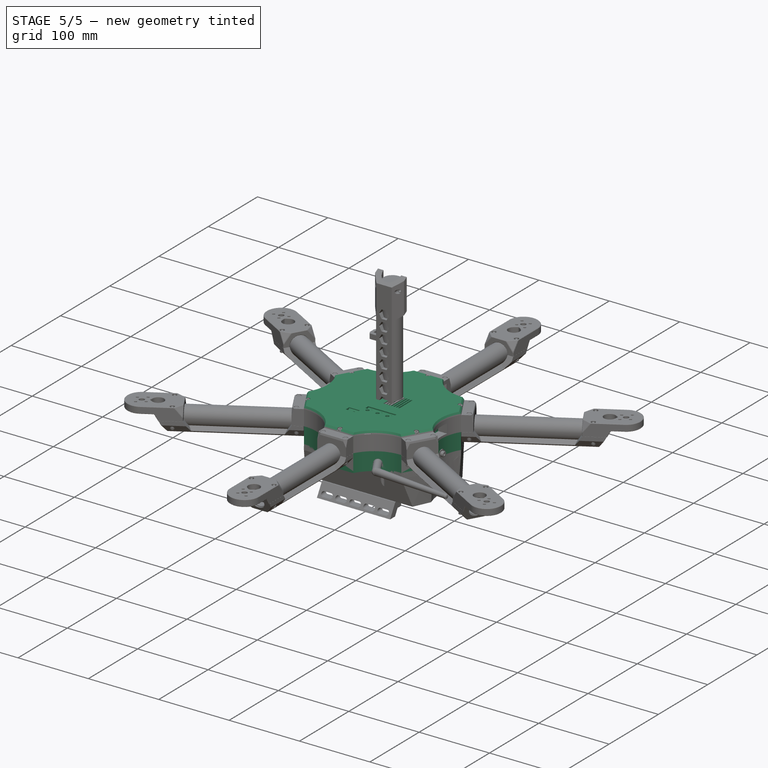
[diagram: stage 5 of 5 — iso view after this stage's code; geometry added in this stage tinted green]
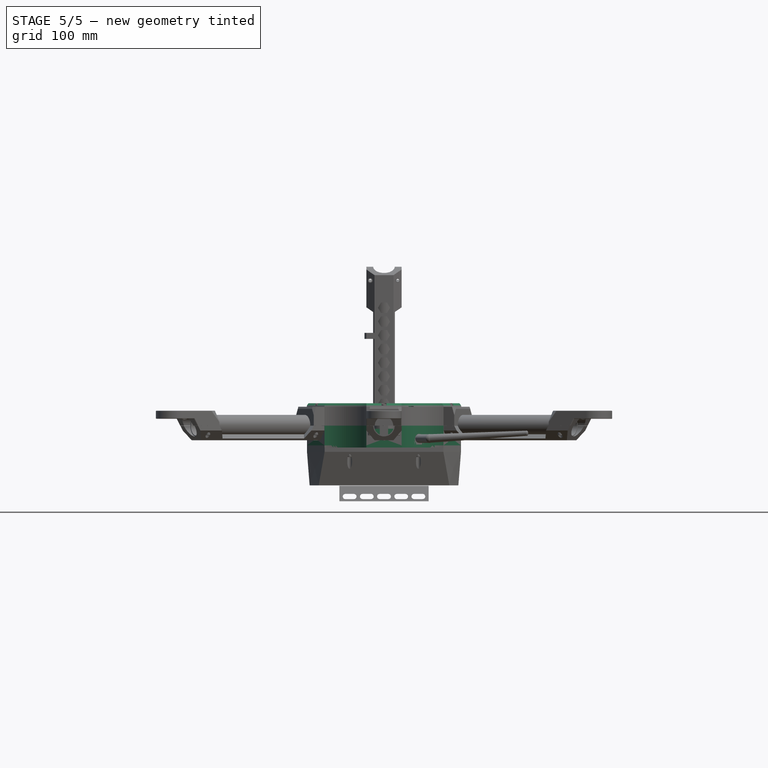
[diagram: stage 5 of 5 — front view after this stage's code; geometry added in this stage tinted green]
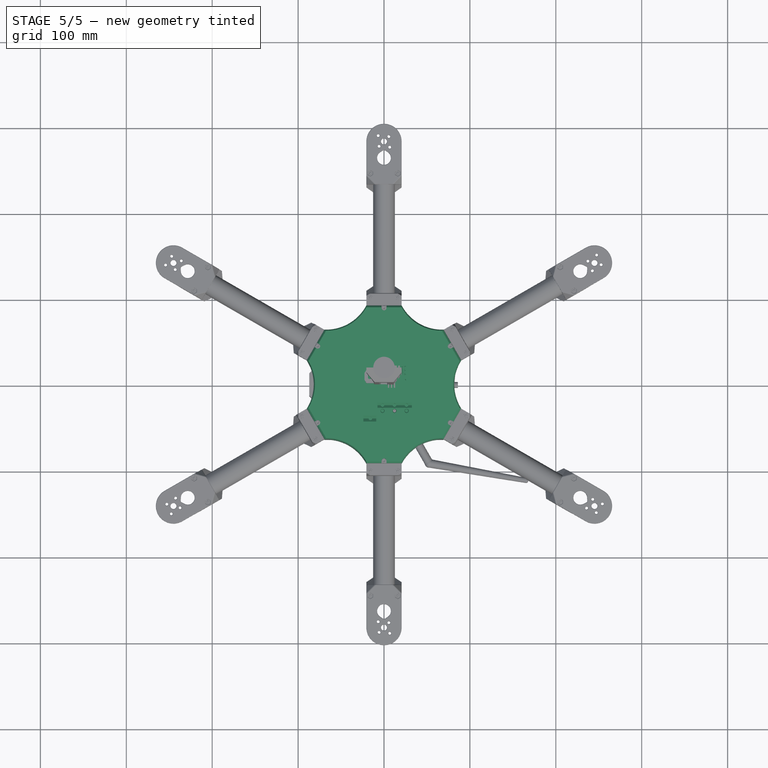
[diagram: stage 5 of 5 — top view after this stage's code; geometry added in this stage tinted green]
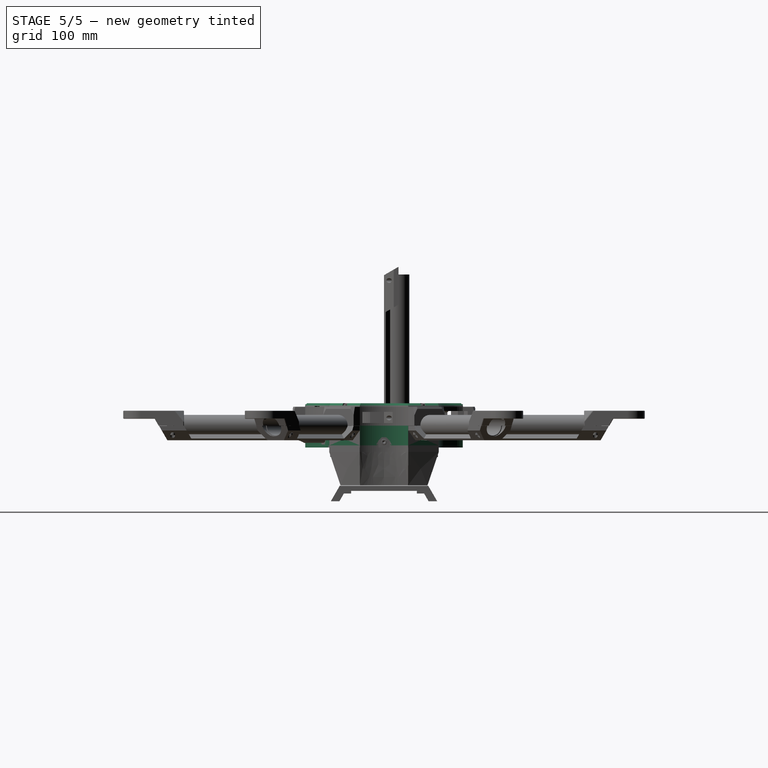
[diagram: stage 5 of 5 — right view after this stage's code; geometry added in this stage tinted green]
FEATURE [Part::Feature] Pcb
  Placement = pos=(-110,70,0) rot=(0,0,1;0rad)
  shape: bbox 50 x 50 x 1.6 mm, 28 faces (baked)
FEATURE [Part::Feature] Shape  label="1_"
  Placement = pos=(-14,-14,0) rot=(0,0,-1;0.785398rad)
  shape: bbox 13.08 x 13.08 x 19.95 mm, 89 faces (baked)
FEATURE [Part::Feature] Shape001  label="Fusion_"
  Placement = pos=(0,3,0) rot=(0,0,1;0rad)
  shape: bbox 20.92 x 18.3 x 33.1 mm, 552 faces (baked)
FEATURE [Part::Feature] Shape002  label="1_001"
  Placement = pos=(14,-13.9749,0) rot=(0,0,1;0.785398rad)
  shape: bbox 13.08 x 13.08 x 19.95 mm, 89 faces (baked)
FEATURE [Part::Feature] Shape003  label="1_002"
  Placement = pos=(19.6,-2.8,0) rot=(0,0,1;1.39626rad)
  shape: bbox 10.11 x 11.32 x 19.95 mm, 89 faces (baked)
FEATURE [Part::Feature] Shape004  label="1_003"
  Placement = pos=(17.4,9.8,0) rot=(0,0,1;2.0944rad)
  shape: bbox 12.36 x 12.91 x 19.95 mm, 89 faces (baked)
FEATURE [Part::Feature] Shape005  label="1_004"
  Placement = pos=(8.4,18.2,0) rot=(0,0,1;2.70526rad)
  shape: bbox 12.66 x 11.93 x 19.95 mm, 89 faces (baked)
FEATURE [Part::Feature] Shape006  label="1_005"
  Placement = pos=(-8.2,18.2,0) rot=(0,0,1;3.57793rad)
  shape: bbox 12.66 x 11.93 x 19.95 mm, 89 faces (baked)
FEATURE [Part::Feature] Shape007  label="1_006"
  Placement = pos=(-17.4,9.8,0) rot=(0,0,1;4.18879rad)
  shape: bbox 12.36 x 12.91 x 19.95 mm, 89 faces (baked)
FEATURE [Part::Feature] Shape008  label="1_007"
  Placement = pos=(-19.6,-3,0) rot=(0,0,-1;1.39626rad)
  shape: bbox 10.11 x 11.32 x 19.95 mm, 89 faces (baked)
FEATURE [Part::MultiFuse] Fusion  label="EscPowerFusion"
  Placement = pos=(45,20,-18.5) rot=(0,0,1;0rad)
  Shapes = -> [Pcb,Shape004,Shape005,Shape008,Shape,Shape006,Shape007,Shape001,Shape002,Shape003]
FEATURE [Sketcher::SketchObject] Sketch083
  FullyConstrained = false
  MapMode = 5
  Placement = pos=(0,0,0) rot=(1,0,0;1.5708rad)
  sketch-geometry (11):
    g0: LineSegment StartX=12.4995 StartY=0 StartZ=0 EndX=20.5 EndY=0 EndZ=0
    g1: LineSegment StartX=20.5 StartY=0 StartZ=0 EndX=20.5 EndY=-23 EndZ=0
    g2: LineSegment StartX=-20.5 StartY=-23 StartZ=0 EndX=-20.5 EndY=0 EndZ=0
    g3: LineSegment StartX=-20.5 StartY=0 StartZ=0 EndX=-12.4995 EndY=0 EndZ=0
    g4: LineSegment StartX=-20.5 StartY=-23 StartZ=0 EndX=-5 EndY=-23 EndZ=0
    g5: LineSegment StartX=20.5 StartY=-23 StartZ=0 EndX=5 EndY=-23 EndZ=0
    g6: LineSegment StartX=-5 StartY=-23 StartZ=0 EndX=-5 EndY=-11.3474 EndZ=0
    g7: LineSegment StartX=5 StartY=-23 StartZ=0 EndX=5 EndY=-11.3474 EndZ=0
    g8: ArcOfCircle CenterX=0 CenterY=0.109082 CenterZ=0 NormalX=0 NormalY=0 NormalZ=1 AngleXU=0 Radius=12.5 StartAngle=3.15032 EndAngle=4.30087
    g9: ArcOfCircle CenterX=0 CenterY=0.109082 CenterZ=0 NormalX=0 NormalY=0 NormalZ=1 AngleXU=0 Radius=12.5 StartAngle=3.15032 EndAngle=6.27446
    g10: ArcOfCircle CenterX=0 CenterY=0.109082 CenterZ=0 NormalX=0 NormalY=0 NormalZ=1 AngleXU=0 Radius=12.5 StartAngle=5.12391 EndAngle=6.27446
  constraints (33):
    c: Horizontal(g0)
    c: Coincident(g0,g1)
    c: Vertical(g1)
    c: Vertical(g2)
    c: Horizontal(g3)
    c: Equal(g0,g3)
    c: DistanceY(g1,g1) = 23
    c: DistanceX(g2,g1) = 41
    c: Equal(g1,g2)
    c: Symmetric(g2,g1,g-2)
    c: Coincident(g4,g2)
    c: Horizontal(g4)
    c: Coincident(g5,g1)
    c: Horizontal(g5)
    c: Symmetric(g4,g5,g-2)
    c: DistanceX(g4,g5) = 10
    c: Coincident(g6,g4)
    c: Vertical(g6)
    c: Coincident(g7,g5)
    c: Vertical(g7)
    c: Equal(g6,g7)
    c: Coincident(g8,g3)
    c: Coincident(g8,g6)
    c: Coincident(g10,g0)
    c: Coincident(g10,g7)
    c: Coincident(g3,g2)
    c: Coincident(g8,g10)
    c: Coincident(g9,g3)
    c: Coincident(g9,g0)
    c: Coincident(g8,g9)
    c: Angle(g9) = 3.12414
    c: Radius(g9) = 12.5
    c: PointOnObject(g0,g-1)
FEATURE [Part::Extrusion] Extrude083
  Base = -> Sketch083
  Dir = (0,-6,0)
  DirMode = 0
  FaceMakerClass = Part::FaceMakerExtrusion
  LengthFwd = 0
  LengthRev = 0
  Placement = pos=(0,-85.75,0) rot=(0,0,1;0rad)
  Solid = true
  Symmetric = false
FEATURE [Part::FeaturePython] Array001  # Draft array (typed FeaturePython)
  Angle = 360
  ArrayType = 1
  Axis = (0,0,1)
  Base = -> Extrude083
  Center = (0,0,0)
  Fuse = false
  IntervalAxis = (0,0,0)
  IntervalX = (1,0,0)
  IntervalY = (0,1,0)
  IntervalZ = (0,0,0)
  NumberPolar = 6
  NumberX = 2
  NumberY = 2
  NumberZ = 1
FEATURE [Part::Box] Box001  label="esc-x-003"
  AttacherType = Attacher::AttachEngine3D
  Height = 17
  Length = 25
  Placement = pos=(19.5,-20.25,-20.6) rot=(0,0,1;1.5708rad)
  Width = 65
FEATURE [Sketcher::SketchObject] Sketch095
  FullyConstrained = false
  MapMode = 5
  sketch-geometry (25):
    g0: LineSegment StartX=89.6969 StartY=-28.1152 StartZ=0 EndX=89.6969 EndY=28.1152 EndZ=0
    g1: LineSegment StartX=89.6969 StartY=28.1152 StartZ=0 EndX=69.1969 EndY=63.6222 EndZ=0
    g2: LineSegment StartX=69.1969 StartY=63.6222 StartZ=0 EndX=20.5 EndY=91.7374 EndZ=0
    g3: LineSegment StartX=20.5 StartY=91.7374 StartZ=0 EndX=-20.5 EndY=91.7374 EndZ=0
    g4: LineSegment StartX=-20.5 StartY=91.7374 StartZ=0 EndX=-69.1969 EndY=63.6222 EndZ=0
    g5: LineSegment StartX=-69.1969 StartY=63.6222 StartZ=0 EndX=-89.6969 EndY=28.1152 EndZ=0
    g6: LineSegment StartX=-89.6969 StartY=28.1152 StartZ=0 EndX=-89.6969 EndY=-28.1152 EndZ=0
    g7: LineSegment StartX=-89.6969 StartY=-28.1152 StartZ=0 EndX=-69.1969 EndY=-63.6222 EndZ=0
    g8: LineSegment StartX=-69.1969 StartY=-63.6222 StartZ=0 EndX=-20.5 EndY=-91.7374 EndZ=0
    g9: LineSegment StartX=-20.5 StartY=-91.7374 StartZ=0 EndX=20.5 EndY=-91.7374 EndZ=0
    g10: LineSegment StartX=20.5 StartY=-91.7374 StartZ=0 EndX=69.1969 EndY=-63.6222 EndZ=0
    g11: LineSegment StartX=69.1969 StartY=-63.6222 StartZ=0 EndX=89.6969 EndY=-28.1152 EndZ=0
    g12: Circle CenterX=0 CenterY=0 CenterZ=0 NormalX=0 NormalY=0 NormalZ=1 AngleXU=0 Radius=94
    g13: ArcOfCircle CenterX=-67.3485 CenterY=-116.651 CenterZ=0 NormalX=0 NormalY=0 NormalZ=1 AngleXU=0 Radius=53.0609 StartAngle=0.488755 EndAngle=1.60564
    g14: LineSegment StartX=-67.3485 StartY=-116.651 StartZ=0 EndX=-44.8485 EndY=-77.6798 EndZ=0
    g15: ArcOfCircle CenterX=67.3485 CenterY=-116.651 CenterZ=0 NormalX=0 NormalY=0 NormalZ=1 AngleXU=0 Radius=53.0609 StartAngle=1.53595 EndAngle=2.65284
    g16: ArcOfCircle CenterX=134.697 CenterY=0 CenterZ=0 NormalX=0 NormalY=0 NormalZ=1 AngleXU=0 Radius=53.0609 StartAngle=2.58315 EndAngle=3.70003
    g17: ArcOfCircle CenterX=67.3485 CenterY=116.651 CenterZ=0 NormalX=0 NormalY=0 NormalZ=1 AngleXU=0 Radius=53.0609 StartAngle=3.63035 EndAngle=4.74723
    g18: ArcOfCircle CenterX=-67.3485 CenterY=116.651 CenterZ=0 NormalX=0 NormalY=0 NormalZ=1 AngleXU=0 Radius=53.0609 StartAngle=4.67755 EndAngle=5.79443
    g19: ArcOfCircle CenterX=-134.697 CenterY=0 CenterZ=0 NormalX=0 NormalY=0 NormalZ=1 AngleXU=0 Radius=53.0609 StartAngle=5.72474 EndAngle=6.84163
    g20: LineSegment StartX=67.3485 StartY=-116.651 StartZ=0 EndX=44.8485 EndY=-77.6798 EndZ=0
    g21: LineSegment StartX=134.697 StartY=0 StartZ=0 EndX=89.6969 EndY=0 EndZ=0
    g22: LineSegment StartX=67.3485 StartY=116.651 StartZ=0 EndX=44.8485 EndY=77.6798 EndZ=0
    g23: LineSegment StartX=-67.3485 StartY=116.651 StartZ=0 EndX=-44.8485 EndY=77.6798 EndZ=0
    g24: LineSegment StartX=-134.697 StartY=0 StartZ=0 EndX=-89.6969 EndY=0 EndZ=0
  constraints (74):
    c: Coincident(g0,g1)
    c: Coincident(g1,g2)
    c: Coincident(g2,g3)
    c: Coincident(g3,g4)
    c: Coincident(g4,g5)
    c: Coincident(g5,g6)
    c: Coincident(g6,g7)
    c: Coincident(g7,g8)
    c: Coincident(g8,g9)
    c: Coincident(g9,g10)
    c: Coincident(g10,g11)
    c: Coincident(g11,g0)
    c: PointOnObject(g0,g12)
    c: PointOnObject(g1,g12)
    c: PointOnObject(g2,g12)
    c: PointOnObject(g3,g12)
    c: PointOnObject(g4,g12)
    c: PointOnObject(g5,g12)
    c: PointOnObject(g6,g12)
    c: PointOnObject(g7,g12)
    c: PointOnObject(g8,g12)
    c: PointOnObject(g9,g12)
    c: PointOnObject(g10,g12)
    c: PointOnObject(g11,g12)
    c: Coincident(g12,g-1)
    c: Horizontal(g9)
    c: Equal(g9,g7)
    c: Equal(g7,g5)
    c: Equal(g5,g3)
    c: Equal(g3,g1)
    c: Equal(g1,g11)
    c: Equal(g6,g4)
    c: Equal(g4,g2)
    c: Equal(g2,g0)
    c: Equal(g0,g10)
    c: Equal(g10,g8)
    c: Coincident(g13,g7)
    c: Coincident(g13,g8)
    c: Coincident(g14,g13)
    c: PointOnObject(g14,g8)
    c: Perpendicular(g8,g14)
    c: Distance(g14) = 45
    c: Coincident(g15,g9)
    c: Coincident(g15,g10)
    c: Coincident(g16,g0)
    c: Coincident(g16,g0)
    c: Coincident(g17,g1)
    c: Coincident(g17,g2)
    c: Coincident(g18,g3)
    c: Coincident(g18,g4)
    c: Coincident(g19,g5)
    c: Coincident(g19,g6)
    c: Coincident(g20,g15)
    c: PointOnObject(g20,g10)
    c: Coincident(g21,g16)
    c: PointOnObject(g21,g0)
    c: Coincident(g22,g17)
    c: PointOnObject(g22,g2)
    c: Coincident(g23,g18)
    c: PointOnObject(g23,g4)
    c: Coincident(g24,g19)
    c: PointOnObject(g24,g6)
    c: Perpendicular(g10,g20)
    c: Perpendicular(g0,g21)
    c: Perpendicular(g2,g22)
    c: Perpendicular(g4,g23)
    c: Perpendicular(g24,g6)
    c: Equal(g14,g20)
    c: Equal(g20,g21)
    c: Equal(g21,g22)
    c: Equal(g22,g23)
    c: Equal(g23,g24)
    c: Radius(g12) = 94
    c: DistanceX(g9,g9) = 41
FEATURE [Part::Extrusion] Extrude092
  Base = -> Sketch095
  Dir = (0,0,-23)
  DirMode = 0
  FaceMakerClass = Part::FaceMakerExtrusion
  LengthFwd = 0
  LengthRev = 0
  Solid = true
  Symmetric = false
FEATURE [Sketcher::SketchObject] Sketch096
  FullyConstrained = false
  MapMode = 5
  sketch-geometry (25):
    g0: LineSegment StartX=85.0312 StartY=-25.4215 StartZ=0 EndX=85.0312 EndY=25.4215 EndZ=0
    g1: LineSegment StartX=85.0312 StartY=25.4215 StartZ=0 EndX=64.5312 EndY=60.9285 EndZ=0
    g2: LineSegment StartX=64.5312 StartY=60.9285 StartZ=0 EndX=20.5 EndY=86.3499 EndZ=0
    g3: LineSegment StartX=20.5 StartY=86.3499 StartZ=0 EndX=-20.5 EndY=86.3499 EndZ=0
    g4: LineSegment StartX=-20.5 StartY=86.3499 StartZ=0 EndX=-64.5312 EndY=60.9285 EndZ=0
    g5: LineSegment StartX=-64.5312 StartY=60.9285 StartZ=0 EndX=-85.0312 EndY=25.4215 EndZ=0
    g6: LineSegment StartX=-85.0312 StartY=25.4215 StartZ=0 EndX=-85.0312 EndY=-25.4215 EndZ=0
    g7: LineSegment StartX=-85.0312 StartY=-25.4215 StartZ=0 EndX=-64.5312 EndY=-60.9285 EndZ=0
    g8: LineSegment StartX=-64.5312 StartY=-60.9285 StartZ=0 EndX=-20.5 EndY=-86.3499 EndZ=0
    g9: LineSegment StartX=-20.5 StartY=-86.3499 StartZ=0 EndX=20.5 EndY=-86.3499 EndZ=0
    g10: LineSegment StartX=20.5 StartY=-86.3499 StartZ=0 EndX=64.5312 EndY=-60.9285 EndZ=0
    g11: LineSegment StartX=64.5312 StartY=-60.9285 StartZ=0 EndX=85.0312 EndY=-25.4215 EndZ=0
    g12: Circle CenterX=0 CenterY=0 CenterZ=0 NormalX=0 NormalY=0 NormalZ=1 AngleXU=0 Radius=88.75
    g13: ArcOfCircle CenterX=-65.0156 CenterY=-112.61 CenterZ=0 NormalX=0 NormalY=0 NormalZ=1 AngleXU=0 Radius=51.6841 StartAngle=0.532971 EndAngle=1.56142
    g14: LineSegment StartX=-65.0156 StartY=-112.61 StartZ=0 EndX=-42.5156 EndY=-73.6392 EndZ=0
    g15: ArcOfCircle CenterX=65.0156 CenterY=-112.61 CenterZ=0 NormalX=0 NormalY=0 NormalZ=1 AngleXU=0 Radius=51.6841 StartAngle=1.58017 EndAngle=2.60862
    g16: ArcOfCircle CenterX=130.031 CenterY=0 CenterZ=0 NormalX=0 NormalY=0 NormalZ=1 AngleXU=0 Radius=51.6841 StartAngle=2.62737 EndAngle=3.65582
    g17: ArcOfCircle CenterX=65.0156 CenterY=112.61 CenterZ=0 NormalX=0 NormalY=0 NormalZ=1 AngleXU=0 Radius=51.6841 StartAngle=3.67456 EndAngle=4.70302
    g18: ArcOfCircle CenterX=-65.0156 CenterY=112.61 CenterZ=0 NormalX=0 NormalY=0 NormalZ=1 AngleXU=0 Radius=51.6841 StartAngle=4.72176 EndAngle=5.75021
    g19: ArcOfCircle CenterX=-130.031 CenterY=0 CenterZ=0 NormalX=0 NormalY=0 NormalZ=1 AngleXU=0 Radius=51.6841 StartAngle=5.76896 EndAngle=6.79741
    g20: LineSegment StartX=65.0156 StartY=-112.61 StartZ=0 EndX=42.5156 EndY=-73.6392 EndZ=0
    g21: LineSegment StartX=130.031 StartY=0 StartZ=0 EndX=85.0312 EndY=0 EndZ=0
    g22: LineSegment StartX=65.0156 StartY=112.61 StartZ=0 EndX=42.5156 EndY=73.6392 EndZ=0
    g23: LineSegment StartX=-65.0156 StartY=112.61 StartZ=0 EndX=-42.5156 EndY=73.6392 EndZ=0
    g24: LineSegment StartX=-130.031 StartY=0 StartZ=0 EndX=-85.0312 EndY=0 EndZ=0
  constraints (74):
    c: Coincident(g0,g1)
    c: Coincident(g1,g2)
    c: Coincident(g2,g3)
    c: Coincident(g3,g4)
    c: Coincident(g4,g5)
    c: Coincident(g5,g6)
    c: Coincident(g6,g7)
    c: Coincident(g7,g8)
    c: Coincident(g8,g9)
    c: Coincident(g9,g10)
    c: Coincident(g10,g11)
    c: Coincident(g11,g0)
    c: PointOnObject(g0,g12)
    c: PointOnObject(g1,g12)
    c: PointOnObject(g2,g12)
    c: PointOnObject(g3,g12)
    c: PointOnObject(g4,g12)
    c: PointOnObject(g5,g12)
    c: PointOnObject(g6,g12)
    c: PointOnObject(g7,g12)
    c: PointOnObject(g8,g12)
    c: PointOnObject(g9,g12)
    c: PointOnObject(g10,g12)
    c: PointOnObject(g11,g12)
    c: Coincident(g12,g-1)
    c: Horizontal(g9)
    c: Equal(g9,g7)
    c: Equal(g7,g5)
    c: Equal(g5,g3)
    c: Equal(g3,g1)
    c: Equal(g1,g11)
    c: Equal(g6,g4)
    c: Equal(g4,g2)
    c: Equal(g2,g0)
    c: Equal(g0,g10)
    c: Equal(g10,g8)
    c: Coincident(g13,g7)
    c: Coincident(g13,g8)
    c: Coincident(g14,g13)
    c: PointOnObject(g14,g8)
    c: Perpendicular(g8,g14)
    c: Distance(g14) = 45
    c: Coincident(g15,g9)
    c: Coincident(g15,g10)
    c: Coincident(g16,g0)
    c: Coincident(g16,g0)
    c: Coincident(g17,g1)
    c: Coincident(g17,g2)
    c: Coincident(g18,g3)
    c: Coincident(g18,g4)
    c: Coincident(g19,g5)
    c: Coincident(g19,g6)
    c: Coincident(g20,g15)
    c: PointOnObject(g20,g10)
    c: Coincident(g21,g16)
    c: PointOnObject(g21,g0)
    c: Coincident(g22,g17)
    c: PointOnObject(g22,g2)
    c: Coincident(g23,g18)
    c: PointOnObject(g23,g4)
    c: Coincident(g24,g19)
    c: PointOnObject(g24,g6)
    c: Perpendicular(g10,g20)
    c: Perpendicular(g0,g21)
    c: Perpendicular(g2,g22)
    c: Perpendicular(g4,g23)
    c: Perpendicular(g24,g6)
    c: Equal(g14,g20)
    c: Equal(g20,g21)
    c: Equal(g21,g22)
    c: Equal(g22,g23)
    c: Equal(g23,g24)
    c: Radius(g12) = 88.75
    c: DistanceX(g9,g9) = 41
FEATURE [Part::Extrusion] Extrude093
  Base = -> Sketch096
  Dir = (0,0,-23)
  DirMode = 0
  FaceMakerClass = Part::FaceMakerExtrusion
  LengthFwd = 0
  LengthRev = 0
  Solid = true
  Symmetric = false
FEATURE [Sketcher::SketchObject] Sketch097
  FullyConstrained = false
  MapMode = 5
  Placement = pos=(0,0,0) rot=(1,0,0;1.5708rad)
  sketch-geometry (4):
    g0: LineSegment StartX=20.5 StartY=-23 StartZ=0 EndX=20.5 EndY=0 EndZ=0
    g1: LineSegment StartX=20.5 StartY=0 StartZ=0 EndX=-20.5 EndY=0 EndZ=0
    g2: LineSegment StartX=-20.5 StartY=0 StartZ=0 EndX=-20.5 EndY=-23 EndZ=0
    g3: LineSegment StartX=-20.5 StartY=-23 StartZ=0 EndX=20.5 EndY=-23 EndZ=0
  constraints (12):
    c: Vertical(g0)
    c: Coincident(g0,g1)
    c: Horizontal(g1)
    c: Coincident(g1,g2)
    c: Vertical(g2)
    c: Coincident(g2,g3)
    c: Horizontal(g3)
    c: DistanceX(g2,g0) = 41
    c: DistanceY(g0,g0) = 23
    c: Symmetric(g0,g2,g-2)
    c: Coincident(g3,g0)
    c: PointOnObject(g1,g-1)
FEATURE [Part::Extrusion] Extrude094
  Base = -> Sketch097
  Dir = (0,-11,0)
  DirMode = 0
  FaceMakerClass = Part::FaceMakerExtrusion
  LengthFwd = 0
  LengthRev = 0
  Placement = pos=(0,-83,0) rot=(0,0,1;0rad)
  Solid = true
  Symmetric = false
FEATURE [Part::FeaturePython] Array006  # Draft array (typed FeaturePython)
  Angle = 360
  ArrayType = 1
  Axis = (0,0,1)
  Base = -> Extrude094
  Center = (0,0,0)
  Fuse = false
  IntervalAxis = (0,0,0)
  IntervalX = (1,0,0)
  IntervalY = (0,1,0)
  IntervalZ = (0,0,0)
  NumberPolar = 6
  NumberX = 2
  NumberY = 2
  NumberZ = 1
FEATURE [Part::MultiFuse] Fusion034004009
  Shapes = -> [Extrude093,Array006]
FEATURE [Part::Cut] Cut009004
  Base = -> Extrude092
  Tool = -> Fusion034004009
FEATURE [Sketcher::SketchObject] Sketch098
  FullyConstrained = false
  MapMode = 5
  sketch-geometry (29):
    g0: LineSegment StartX=89.9631 StartY=-28.2689 StartZ=0 EndX=89.9631 EndY=28.2689 EndZ=0
    g1: LineSegment StartX=89.9631 StartY=28.2689 StartZ=0 EndX=69.4631 EndY=63.7759 EndZ=0
    g2: LineSegment StartX=69.4631 StartY=63.7759 StartZ=0 EndX=20.5 EndY=92.0448 EndZ=0
    g3: LineSegment StartX=20.5 StartY=92.0448 StartZ=0 EndX=-20.5 EndY=92.0448 EndZ=0
    g4: LineSegment StartX=-20.5 StartY=92.0448 StartZ=0 EndX=-69.4631 EndY=63.7759 EndZ=0
    g5: LineSegment StartX=-69.4631 StartY=63.7759 StartZ=0 EndX=-89.9631 EndY=28.2689 EndZ=0
    g6: LineSegment StartX=-89.9631 StartY=28.2689 StartZ=0 EndX=-89.9631 EndY=-28.2689 EndZ=0
    g7: LineSegment StartX=-89.9631 StartY=-28.2689 StartZ=0 EndX=-69.4631 EndY=-63.7759 EndZ=0
    g8: LineSegment StartX=-69.4631 StartY=-63.7759 StartZ=0 EndX=-20.5 EndY=-92.0448 EndZ=0
    g9: LineSegment StartX=-20.5 StartY=-92.0448 StartZ=0 EndX=20.5 EndY=-92.0448 EndZ=0
    g10: LineSegment StartX=20.5 StartY=-92.0448 StartZ=0 EndX=69.4631 EndY=-63.7759 EndZ=0
    g11: LineSegment StartX=69.4631 StartY=-63.7759 StartZ=0 EndX=89.9631 EndY=-28.2689 EndZ=0
    g12: Circle CenterX=0 CenterY=0 CenterZ=0 NormalX=0 NormalY=0 NormalZ=1 AngleXU=0 Radius=94.3
    g13: ArcOfCircle CenterX=-67.4816 CenterY=-116.881 CenterZ=0 NormalX=0 NormalY=0 NormalZ=1 AngleXU=0 Radius=53.1425 StartAngle=0.486303 EndAngle=1.60809
    g14: LineSegment StartX=-67.4816 StartY=-116.881 StartZ=0 EndX=-44.9816 EndY=-77.9103 EndZ=0
    g15: ArcOfCircle CenterX=67.4816 CenterY=-116.881 CenterZ=0 NormalX=0 NormalY=0 NormalZ=1 AngleXU=0 Radius=53.1425 StartAngle=1.5335 EndAngle=2.65529
    g16: ArcOfCircle CenterX=134.963 CenterY=0 CenterZ=0 NormalX=0 NormalY=0 NormalZ=1 AngleXU=0 Radius=53.1425 StartAngle=2.5807 EndAngle=3.70249
    g17: ArcOfCircle CenterX=67.4816 CenterY=116.881 CenterZ=0 NormalX=0 NormalY=0 NormalZ=1 AngleXU=0 Radius=53.1425 StartAngle=3.6279 EndAngle=4.74969
    g18: ArcOfCircle CenterX=-67.4816 CenterY=116.881 CenterZ=0 NormalX=0 NormalY=0 NormalZ=1 AngleXU=0 Radius=53.1425 StartAngle=4.67509 EndAngle=5.79688
    g19: ArcOfCircle CenterX=-134.963 CenterY=0 CenterZ=0 NormalX=0 NormalY=0 NormalZ=1 AngleXU=0 Radius=53.1425 StartAngle=5.72229 EndAngle=6.84408
    g20: LineSegment StartX=67.4816 StartY=-116.881 StartZ=0 EndX=44.9816 EndY=-77.9103 EndZ=0
    g21: LineSegment StartX=134.963 StartY=0 StartZ=0 EndX=89.9631 EndY=0 EndZ=0
    g22: LineSegment StartX=67.4816 StartY=116.881 StartZ=0 EndX=44.9816 EndY=77.9103 EndZ=0
    g23: LineSegment StartX=-67.4816 StartY=116.881 StartZ=0 EndX=-44.9816 EndY=77.9103 EndZ=0
    g24: LineSegment StartX=-134.963 StartY=0 StartZ=0 EndX=-89.9631 EndY=0 EndZ=0
    g25: LineSegment StartX=-40.5 StartY=47.25 StartZ=0 EndX=60 EndY=47.25 EndZ=0
    g26: LineSegment StartX=60 StartY=47.25 StartZ=0 EndX=60 EndY=-47.25 EndZ=0
    g27: LineSegment StartX=60 StartY=-47.25 StartZ=0 EndX=-40.5 EndY=-47.25 EndZ=0
    g28: LineSegment StartX=-40.5 StartY=-47.25 StartZ=0 EndX=-40.5 EndY=47.25 EndZ=0
  constraints (86):
    c: Coincident(g0,g1)
    c: Coincident(g1,g2)
    c: Coincident(g2,g3)
    c: Coincident(g3,g4)
    c: Coincident(g4,g5)
    c: Coincident(g5,g6)
    c: Coincident(g6,g7)
    c: Coincident(g7,g8)
    c: Coincident(g8,g9)
    c: Coincident(g9,g10)
    c: Coincident(g10,g11)
    c: Coincident(g11,g0)
    c: PointOnObject(g0,g12)
    c: PointOnObject(g1,g12)
    c: PointOnObject(g2,g12)
    c: PointOnObject(g3,g12)
    c: PointOnObject(g4,g12)
    c: PointOnObject(g5,g12)
    c: PointOnObject(g6,g12)
    c: PointOnObject(g7,g12)
    c: PointOnObject(g8,g12)
    c: PointOnObject(g9,g12)
    c: PointOnObject(g10,g12)
    c: PointOnObject(g11,g12)
    c: Coincident(g12,g-1)
    c: Horizontal(g9)
    c: Equal(g9,g7)
    c: Equal(g7,g5)
    c: Equal(g5,g3)
    c: Equal(g3,g1)
    c: Equal(g1,g11)
    c: Equal(g6,g4)
    c: Equal(g4,g2)
    c: Equal(g2,g0)
    c: Equal(g0,g10)
    c: Equal(g10,g8)
    c: Coincident(g13,g7)
    c: Coincident(g13,g8)
    c: Coincident(g14,g13)
    c: PointOnObject(g14,g8)
    c: Perpendicular(g8,g14)
    c: Distance(g14) = 45
    c: Coincident(g15,g9)
    c: Coincident(g15,g10)
    c: Coincident(g16,g0)
    c: Coincident(g16,g0)
    c: Coincident(g17,g1)
    c: Coincident(g17,g2)
    c: Coincident(g18,g3)
    c: Coincident(g18,g4)
    c: Coincident(g19,g5)
    c: Coincident(g19,g6)
    c: Coincident(g20,g15)
    c: PointOnObject(g20,g10)
    c: Coincident(g21,g16)
    c: PointOnObject(g21,g0)
    c: Coincident(g22,g17)
    c: PointOnObject(g22,g2)
    c: Coincident(g23,g18)
    c: PointOnObject(g23,g4)
    c: Coincident(g24,g19)
    c: PointOnObject(g24,g6)
    c: Perpendicular(g10,g20)
    c: Perpendicular(g0,g21)
    c: Perpendicular(g2,g22)
    c: Perpendicular(g4,g23)
    c: Perpendicular(g24,g6)
    c: Equal(g14,g20)
    c: Equal(g20,g21)
    c: Equal(g21,g22)
    c: Equal(g22,g23)
    c: Equal(g23,g24)
    c: Radius(g12) = 94.3
    c: DistanceX(g9,g9) = 41
    c: Coincident(g25,g26)
    c: Coincident(g26,g27)
    c: Coincident(g27,g28)
    c: Coincident(g28,g25)
    c: Horizontal(g25)
    c: Horizontal(g27)
    c: Vertical(g26)
    c: Vertical(g28)
    c: DistanceY(g28,g28) = 94.5
    c: DistanceX(g25,g25) = 100.5
    c: Symmetric(g25,g27,g-1)
    c: DistanceX(g-1,g26) = 60
FEATURE [Sketcher::SketchObject] Sketch099
  FullyConstrained = false
  MapMode = 5
  Placement = pos=(0,0,1.5) rot=(0,0,1;0rad)
  sketch-geometry (29):
    g0: LineSegment StartX=89.6969 StartY=-28.1152 StartZ=0 EndX=89.6969 EndY=28.1152 EndZ=0
    g1: LineSegment StartX=89.6969 StartY=28.1152 StartZ=0 EndX=69.1969 EndY=63.6222 EndZ=0
    g2: LineSegment StartX=69.1969 StartY=63.6222 StartZ=0 EndX=20.5 EndY=91.7374 EndZ=0
    g3: LineSegment StartX=20.5 StartY=91.7374 StartZ=0 EndX=-20.5 EndY=91.7374 EndZ=0
    g4: LineSegment StartX=-20.5 StartY=91.7374 StartZ=0 EndX=-69.1969 EndY=63.6222 EndZ=0
    g5: LineSegment StartX=-69.1969 StartY=63.6222 StartZ=0 EndX=-89.6969 EndY=28.1152 EndZ=0
    g6: LineSegment StartX=-89.6969 StartY=28.1152 StartZ=0 EndX=-89.6969 EndY=-28.1152 EndZ=0
    g7: LineSegment StartX=-89.6969 StartY=-28.1152 StartZ=0 EndX=-69.1969 EndY=-63.6222 EndZ=0
    g8: LineSegment StartX=-69.1969 StartY=-63.6222 StartZ=0 EndX=-20.5 EndY=-91.7374 EndZ=0
    g9: LineSegment StartX=-20.5 StartY=-91.7374 StartZ=0 EndX=20.5 EndY=-91.7374 EndZ=0
    g10: LineSegment StartX=20.5 StartY=-91.7374 StartZ=0 EndX=69.1969 EndY=-63.6222 EndZ=0
    g11: LineSegment StartX=69.1969 StartY=-63.6222 StartZ=0 EndX=89.6969 EndY=-28.1152 EndZ=0
    g12: Circle CenterX=0 CenterY=0 CenterZ=0 NormalX=0 NormalY=0 NormalZ=1 AngleXU=0 Radius=94
    g13: ArcOfCircle CenterX=-67.3485 CenterY=-116.651 CenterZ=0 NormalX=0 NormalY=0 NormalZ=1 AngleXU=0 Radius=53.0609 StartAngle=0.488755 EndAngle=1.60564
    g14: LineSegment StartX=-67.3485 StartY=-116.651 StartZ=0 EndX=-44.8485 EndY=-77.6798 EndZ=0
    g15: ArcOfCircle CenterX=67.3485 CenterY=-116.651 CenterZ=0 NormalX=0 NormalY=0 NormalZ=1 AngleXU=0 Radius=53.0609 StartAngle=1.53595 EndAngle=2.65284
    g16: ArcOfCircle CenterX=134.697 CenterY=0 CenterZ=0 NormalX=0 NormalY=0 NormalZ=1 AngleXU=0 Radius=53.0609 StartAngle=2.58315 EndAngle=3.70003
    g17: ArcOfCircle CenterX=67.3485 CenterY=116.651 CenterZ=0 NormalX=0 NormalY=0 NormalZ=1 AngleXU=0 Radius=53.0609 StartAngle=3.63035 EndAngle=4.74723
    g18: ArcOfCircle CenterX=-67.3485 CenterY=116.651 CenterZ=0 NormalX=0 NormalY=0 NormalZ=1 AngleXU=0 Radius=53.0609 StartAngle=4.67755 EndAngle=5.79443
    g19: ArcOfCircle CenterX=-134.697 CenterY=0 CenterZ=0 NormalX=0 NormalY=0 NormalZ=1 AngleXU=0 Radius=53.0609 StartAngle=5.72474 EndAngle=6.84163
    g20: LineSegment StartX=67.3485 StartY=-116.651 StartZ=0 EndX=44.8485 EndY=-77.6798 EndZ=0
    g21: LineSegment StartX=134.697 StartY=0 StartZ=0 EndX=89.6969 EndY=0 EndZ=0
    g22: LineSegment StartX=67.3485 StartY=116.651 StartZ=0 EndX=44.8485 EndY=77.6798 EndZ=0
    g23: LineSegment StartX=-67.3485 StartY=116.651 StartZ=0 EndX=-44.8485 EndY=77.6798 EndZ=0
    g24: LineSegment StartX=-134.697 StartY=0 StartZ=0 EndX=-89.6969 EndY=0 EndZ=0
    g25: LineSegment StartX=-40.5 StartY=47.25 StartZ=0 EndX=60 EndY=47.25 EndZ=0
    g26: LineSegment StartX=60 StartY=47.25 StartZ=0 EndX=60 EndY=-47.25 EndZ=0
    g27: LineSegment StartX=60 StartY=-47.25 StartZ=0 EndX=-40.5 EndY=-47.25 EndZ=0
    g28: LineSegment StartX=-40.5 StartY=-47.25 StartZ=0 EndX=-40.5 EndY=47.25 EndZ=0
  constraints (86):
    c: Coincident(g0,g1)
    c: Coincident(g1,g2)
    c: Coincident(g2,g3)
    c: Coincident(g3,g4)
    c: Coincident(g4,g5)
    c: Coincident(g5,g6)
    c: Coincident(g6,g7)
    c: Coincident(g7,g8)
    c: Coincident(g8,g9)
    c: Coincident(g9,g10)
    c: Coincident(g10,g11)
    c: Coincident(g11,g0)
    c: PointOnObject(g0,g12)
    c: PointOnObject(g1,g12)
    c: PointOnObject(g2,g12)
    c: PointOnObject(g3,g12)
    c: PointOnObject(g4,g12)
    c: PointOnObject(g5,g12)
    c: PointOnObject(g6,g12)
    c: PointOnObject(g7,g12)
    c: PointOnObject(g8,g12)
    c: PointOnObject(g9,g12)
    c: PointOnObject(g10,g12)
    c: PointOnObject(g11,g12)
    c: Coincident(g12,g-1)
    c: Horizontal(g9)
    c: Equal(g9,g7)
    c: Equal(g7,g5)
    c: Equal(g5,g3)
    c: Equal(g3,g1)
    c: Equal(g1,g11)
    c: Equal(g6,g4)
    c: Equal(g4,g2)
    c: Equal(g2,g0)
    c: Equal(g0,g10)
    c: Equal(g10,g8)
    c: Coincident(g13,g7)
    c: Coincident(g13,g8)
    c: Coincident(g14,g13)
    c: PointOnObject(g14,g8)
    c: Perpendicular(g8,g14)
    c: Distance(g14) = 45
    c: Coincident(g15,g9)
    c: Coincident(g15,g10)
    c: Coincident(g16,g0)
    c: Coincident(g16,g0)
    c: Coincident(g17,g1)
    c: Coincident(g17,g2)
    c: Coincident(g18,g3)
    c: Coincident(g18,g4)
    c: Coincident(g19,g5)
    c: Coincident(g19,g6)
    c: Coincident(g20,g15)
    c: PointOnObject(g20,g10)
    c: Coincident(g21,g16)
    c: PointOnObject(g21,g0)
    c: Coincident(g22,g17)
    c: PointOnObject(g22,g2)
    c: Coincident(g23,g18)
    c: PointOnObject(g23,g4)
    c: Coincident(g24,g19)
    c: PointOnObject(g24,g6)
    c: Perpendicular(g10,g20)
    c: Perpendicular(g0,g21)
    c: Perpendicular(g2,g22)
    c: Perpendicular(g4,g23)
    c: Perpendicular(g24,g6)
    c: Equal(g14,g20)
    c: Equal(g20,g21)
    c: Equal(g21,g22)
    c: Equal(g22,g23)
    c: Equal(g23,g24)
    c: Radius(g12) = 94
    c: DistanceX(g9,g9) = 41
    c: Coincident(g25,g26)
    c: Coincident(g26,g27)
    c: Coincident(g27,g28)
    c: Coincident(g28,g25)
    c: Horizontal(g25)
    c: Horizontal(g27)
    c: Vertical(g26)
    c: Vertical(g28)
    c: DistanceY(g28,g28) = 94.5
    c: DistanceX(g25,g25) = 100.5
    c: Symmetric(g25,g27,g-1)
    c: DistanceX(g-1,g26) = 60
FEATURE [Sketcher::SketchObject] Sketch100
  FullyConstrained = false
  MapMode = 5
  Placement = pos=(0,0,4) rot=(0,0,1;0rad)
  sketch-geometry (29):
    g0: LineSegment StartX=87.9212 StartY=-27.09 StartZ=0 EndX=87.9212 EndY=27.09 EndZ=0
    g1: LineSegment StartX=87.9212 StartY=27.09 StartZ=0 EndX=67.4212 EndY=62.597 EndZ=0
    g2: LineSegment StartX=67.4212 StartY=62.597 StartZ=0 EndX=20.5 EndY=89.687 EndZ=0
    g3: LineSegment StartX=20.5 StartY=89.687 StartZ=0 EndX=-20.5 EndY=89.687 EndZ=0
    g4: LineSegment StartX=-20.5 StartY=89.687 StartZ=0 EndX=-67.4212 EndY=62.597 EndZ=0
    g5: LineSegment StartX=-67.4212 StartY=62.597 StartZ=0 EndX=-87.9212 EndY=27.09 EndZ=0
    g6: LineSegment StartX=-87.9212 StartY=27.09 StartZ=0 EndX=-87.9212 EndY=-27.09 EndZ=0
    g7: LineSegment StartX=-87.9212 StartY=-27.09 StartZ=0 EndX=-67.4212 EndY=-62.597 EndZ=0
    g8: LineSegment StartX=-67.4212 StartY=-62.597 StartZ=0 EndX=-20.5 EndY=-89.687 EndZ=0
    g9: LineSegment StartX=-20.5 StartY=-89.687 StartZ=0 EndX=20.5 EndY=-89.687 EndZ=0
    g10: LineSegment StartX=20.5 StartY=-89.687 StartZ=0 EndX=67.4212 EndY=-62.597 EndZ=0
    g11: LineSegment StartX=67.4212 StartY=-62.597 StartZ=0 EndX=87.9212 EndY=-27.09 EndZ=0
    g12: Circle CenterX=0 CenterY=0 CenterZ=0 NormalX=0 NormalY=0 NormalZ=1 AngleXU=0 Radius=92
    g13: ArcOfCircle CenterX=-66.4606 CenterY=-115.113 CenterZ=0 NormalX=0 NormalY=0 NormalZ=1 AngleXU=0 Radius=52.5249 StartAngle=0.505309 EndAngle=1.58909
    g14: LineSegment StartX=-66.4606 StartY=-115.113 StartZ=0 EndX=-43.9606 EndY=-76.142 EndZ=0
    g15: ArcOfCircle CenterX=66.4606 CenterY=-115.113 CenterZ=0 NormalX=0 NormalY=0 NormalZ=1 AngleXU=0 Radius=52.5249 StartAngle=1.55251 EndAngle=2.63628
    g16: ArcOfCircle CenterX=132.921 CenterY=0 CenterZ=0 NormalX=0 NormalY=0 NormalZ=1 AngleXU=0 Radius=52.5249 StartAngle=2.5997 EndAngle=3.68348
    g17: ArcOfCircle CenterX=66.4606 CenterY=115.113 CenterZ=0 NormalX=0 NormalY=0 NormalZ=1 AngleXU=0 Radius=52.5249 StartAngle=3.6469 EndAngle=4.73068
    g18: ArcOfCircle CenterX=-66.4606 CenterY=115.113 CenterZ=0 NormalX=0 NormalY=0 NormalZ=1 AngleXU=0 Radius=52.5249 StartAngle=4.6941 EndAngle=5.77788
    g19: ArcOfCircle CenterX=-132.921 CenterY=0 CenterZ=0 NormalX=0 NormalY=0 NormalZ=1 AngleXU=0 Radius=52.5249 StartAngle=5.7413 EndAngle=6.82507
    g20: LineSegment StartX=66.4606 StartY=-115.113 StartZ=0 EndX=43.9606 EndY=-76.142 EndZ=0
    g21: LineSegment StartX=132.921 StartY=0 StartZ=0 EndX=87.9212 EndY=0 EndZ=0
    g22: LineSegment StartX=66.4606 StartY=115.113 StartZ=0 EndX=43.9606 EndY=76.142 EndZ=0
    g23: LineSegment StartX=-66.4606 StartY=115.113 StartZ=0 EndX=-43.9606 EndY=76.142 EndZ=0
    g24: LineSegment StartX=-132.921 StartY=0 StartZ=0 EndX=-87.9212 EndY=0 EndZ=0
    g25: LineSegment StartX=-40.5 StartY=47.25 StartZ=0 EndX=60 EndY=47.25 EndZ=0
    g26: LineSegment StartX=60 StartY=47.25 StartZ=0 EndX=60 EndY=-47.25 EndZ=0
    g27: LineSegment StartX=60 StartY=-47.25 StartZ=0 EndX=-40.5 EndY=-47.25 EndZ=0
    g28: LineSegment StartX=-40.5 StartY=-47.25 StartZ=0 EndX=-40.5 EndY=47.25 EndZ=0
  constraints (86):
    c: Coincident(g0,g1)
    c: Coincident(g1,g2)
    c: Coincident(g2,g3)
    c: Coincident(g3,g4)
    c: Coincident(g4,g5)
    c: Coincident(g5,g6)
    c: Coincident(g6,g7)
    c: Coincident(g7,g8)
    c: Coincident(g8,g9)
    c: Coincident(g9,g10)
    c: Coincident(g10,g11)
    c: Coincident(g11,g0)
    c: PointOnObject(g0,g12)
    c: PointOnObject(g1,g12)
    c: PointOnObject(g2,g12)
    c: PointOnObject(g3,g12)
    c: PointOnObject(g4,g12)
    c: PointOnObject(g5,g12)
    c: PointOnObject(g6,g12)
    c: PointOnObject(g7,g12)
    c: PointOnObject(g8,g12)
    c: PointOnObject(g9,g12)
    c: PointOnObject(g10,g12)
    c: PointOnObject(g11,g12)
    c: Coincident(g12,g-1)
    c: Horizontal(g9)
    c: Equal(g9,g7)
    c: Equal(g7,g5)
    c: Equal(g5,g3)
    c: Equal(g3,g1)
    c: Equal(g1,g11)
    c: Equal(g6,g4)
    c: Equal(g4,g2)
    c: Equal(g2,g0)
    c: Equal(g0,g10)
    c: Equal(g10,g8)
    c: Coincident(g13,g7)
    c: Coincident(g13,g8)
    c: Coincident(g14,g13)
    c: PointOnObject(g14,g8)
    c: Perpendicular(g8,g14)
    c: Distance(g14) = 45
    c: Coincident(g15,g9)
    c: Coincident(g15,g10)
    c: Coincident(g16,g0)
    c: Coincident(g16,g0)
    c: Coincident(g17,g1)
    c: Coincident(g17,g2)
    c: Coincident(g18,g3)
    c: Coincident(g18,g4)
    c: Coincident(g19,g5)
    c: Coincident(g19,g6)
    c: Coincident(g20,g15)
    c: PointOnObject(g20,g10)
    c: Coincident(g21,g16)
    c: PointOnObject(g21,g0)
    c: Coincident(g22,g17)
    c: PointOnObject(g22,g2)
    c: Coincident(g23,g18)
    c: PointOnObject(g23,g4)
    c: Coincident(g24,g19)
    c: PointOnObject(g24,g6)
    c: Perpendicular(g10,g20)
    c: Perpendicular(g0,g21)
    c: Perpendicular(g2,g22)
    c: Perpendicular(g4,g23)
    c: Perpendicular(g24,g6)
    c: Equal(g14,g20)
    c: Equal(g20,g21)
    c: Equal(g21,g22)
    c: Equal(g22,g23)
    c: Equal(g23,g24)
    c: Radius(g12) = 92
    c: DistanceX(g9,g9) = 41
    c: Coincident(g25,g26)
    c: Coincident(g26,g27)
    c: Coincident(g27,g28)
    c: Coincident(g28,g25)
    c: Horizontal(g25)
    c: Horizontal(g27)
    c: Vertical(g26)
    c: Vertical(g28)
    c: DistanceY(g28,g28) = 94.5
    c: DistanceX(g25,g25) = 100.5
    c: Symmetric(g25,g27,g-1)
    c: DistanceX(g-1,g26) = 60
FEATURE [Part::Loft] Loft
  Closed = false
  MaxDegree = 5
  Ruled = true
  Sections = -> [Sketch098,Sketch099,Sketch100]
  Solid = true
FEATURE [Sketcher::SketchObject] Sketch101
  FullyConstrained = false
  MapMode = 5
  sketch-geometry (29):
    g0: LineSegment StartX=84.3635 StartY=-25.0359 StartZ=0 EndX=84.3635 EndY=25.0359 EndZ=0
    g1: LineSegment StartX=84.3635 StartY=25.0359 StartZ=0 EndX=63.8635 EndY=60.543 EndZ=0
    g2: LineSegment StartX=63.8635 StartY=60.543 StartZ=0 EndX=20.5 EndY=85.5789 EndZ=0
    g3: LineSegment StartX=20.5 StartY=85.5789 StartZ=0 EndX=-20.5 EndY=85.5789 EndZ=0
    g4: LineSegment StartX=-20.5 StartY=85.5789 StartZ=0 EndX=-63.8635 EndY=60.543 EndZ=0
    g5: LineSegment StartX=-63.8635 StartY=60.543 StartZ=0 EndX=-84.3635 EndY=25.0359 EndZ=0
    g6: LineSegment StartX=-84.3635 StartY=25.0359 StartZ=0 EndX=-84.3635 EndY=-25.0359 EndZ=0
    g7: LineSegment StartX=-84.3635 StartY=-25.0359 StartZ=0 EndX=-63.8635 EndY=-60.543 EndZ=0
    g8: LineSegment StartX=-63.8635 StartY=-60.543 StartZ=0 EndX=-20.5 EndY=-85.5789 EndZ=0
    g9: LineSegment StartX=-20.5 StartY=-85.5789 StartZ=0 EndX=20.5 EndY=-85.5789 EndZ=0
    g10: LineSegment StartX=20.5 StartY=-85.5789 StartZ=0 EndX=63.8635 EndY=-60.543 EndZ=0
    g11: LineSegment StartX=63.8635 StartY=-60.543 StartZ=0 EndX=84.3635 EndY=-25.0359 EndZ=0
    g12: Circle CenterX=0 CenterY=0 CenterZ=0 NormalX=0 NormalY=0 NormalZ=1 AngleXU=0 Radius=88
    g13: ArcOfCircle CenterX=-64.6818 CenterY=-112.032 CenterZ=0 NormalX=0 NormalY=0 NormalZ=1 AngleXU=0 Radius=51.4956 StartAngle=0.539489 EndAngle=1.55491
    g14: LineSegment StartX=-64.6818 StartY=-112.032 StartZ=0 EndX=-42.1818 EndY=-73.0609 EndZ=0
    g15: ArcOfCircle CenterX=64.6818 CenterY=-112.032 CenterZ=0 NormalX=0 NormalY=0 NormalZ=1 AngleXU=0 Radius=51.4956 StartAngle=1.58669 EndAngle=2.6021
    g16: ArcOfCircle CenterX=129.364 CenterY=0 CenterZ=0 NormalX=0 NormalY=0 NormalZ=1 AngleXU=0 Radius=51.4956 StartAngle=2.63388 EndAngle=3.6493
    g17: ArcOfCircle CenterX=64.6818 CenterY=112.032 CenterZ=0 NormalX=0 NormalY=0 NormalZ=1 AngleXU=0 Radius=51.4956 StartAngle=3.68108 EndAngle=4.6965
    g18: ArcOfCircle CenterX=-64.6818 CenterY=112.032 CenterZ=0 NormalX=0 NormalY=0 NormalZ=1 AngleXU=0 Radius=51.4956 StartAngle=4.72828 EndAngle=5.7437
    g19: ArcOfCircle CenterX=-129.364 CenterY=0 CenterZ=0 NormalX=0 NormalY=0 NormalZ=1 AngleXU=0 Radius=51.4956 StartAngle=5.77548 EndAngle=6.79089
    g20: LineSegment StartX=64.6818 StartY=-112.032 StartZ=0 EndX=42.1818 EndY=-73.0609 EndZ=0
    g21: LineSegment StartX=129.364 StartY=0 StartZ=0 EndX=84.3635 EndY=0 EndZ=0
    g22: LineSegment StartX=64.6818 StartY=112.032 StartZ=0 EndX=42.1818 EndY=73.0609 EndZ=0
    g23: LineSegment StartX=-64.6818 StartY=112.032 StartZ=0 EndX=-42.1818 EndY=73.0609 EndZ=0
    g24: LineSegment StartX=-129.364 StartY=0 StartZ=0 EndX=-84.3635 EndY=0 EndZ=0
    g25: LineSegment StartX=-40.5 StartY=47.25 StartZ=0 EndX=60 EndY=47.25 EndZ=0
    g26: LineSegment StartX=60 StartY=47.25 StartZ=0 EndX=60 EndY=-47.25 EndZ=0
    g27: LineSegment StartX=60 StartY=-47.25 StartZ=0 EndX=-40.5 EndY=-47.25 EndZ=0
    g28: LineSegment StartX=-40.5 StartY=-47.25 StartZ=0 EndX=-40.5 EndY=47.25 EndZ=0
  constraints (86):
    c: Coincident(g0,g1)
    c: Coincident(g1,g2)
    c: Coincident(g2,g3)
    c: Coincident(g3,g4)
    c: Coincident(g4,g5)
    c: Coincident(g5,g6)
    c: Coincident(g6,g7)
    c: Coincident(g7,g8)
    c: Coincident(g8,g9)
    c: Coincident(g9,g10)
    c: Coincident(g10,g11)
    c: Coincident(g11,g0)
    c: PointOnObject(g0,g12)
    c: PointOnObject(g1,g12)
    c: PointOnObject(g2,g12)
    c: PointOnObject(g3,g12)
    c: PointOnObject(g4,g12)
    c: PointOnObject(g5,g12)
    c: PointOnObject(g6,g12)
    c: PointOnObject(g7,g12)
    c: PointOnObject(g8,g12)
    c: PointOnObject(g9,g12)
    c: PointOnObject(g10,g12)
    c: PointOnObject(g11,g12)
    c: Coincident(g12,g-1)
    c: Horizontal(g9)
    c: Equal(g9,g7)
    c: Equal(g7,g5)
    c: Equal(g5,g3)
    c: Equal(g3,g1)
    c: Equal(g1,g11)
    c: Equal(g6,g4)
    c: Equal(g4,g2)
    c: Equal(g2,g0)
    c: Equal(g0,g10)
    c: Equal(g10,g8)
    c: Coincident(g13,g7)
    c: Coincident(g13,g8)
    c: Coincident(g14,g13)
    c: PointOnObject(g14,g8)
    c: Perpendicular(g8,g14)
    c: Distance(g14) = 45
    c: Coincident(g15,g9)
    c: Coincident(g15,g10)
    c: Coincident(g16,g0)
    c: Coincident(g16,g0)
    c: Coincident(g17,g1)
    c: Coincident(g17,g2)
    c: Coincident(g18,g3)
    c: Coincident(g18,g4)
    c: Coincident(g19,g5)
    c: Coincident(g19,g6)
    c: Coincident(g20,g15)
    c: PointOnObject(g20,g10)
    c: Coincident(g21,g16)
    c: PointOnObject(g21,g0)
    c: Coincident(g22,g17)
    c: PointOnObject(g22,g2)
    c: Coincident(g23,g18)
    c: PointOnObject(g23,g4)
    c: Coincident(g24,g19)
    c: PointOnObject(g24,g6)
    c: Perpendicular(g10,g20)
    c: Perpendicular(g0,g21)
    c: Perpendicular(g2,g22)
    c: Perpendicular(g4,g23)
    c: Perpendicular(g24,g6)
    c: Equal(g14,g20)
    c: Equal(g20,g21)
    c: Equal(g21,g22)
    c: Equal(g22,g23)
    c: Equal(g23,g24)
    c: Radius(g12) = 88
    c: DistanceX(g9,g9) = 41
    c: Coincident(g25,g26)
    c: Coincident(g26,g27)
    c: Coincident(g27,g28)
    c: Coincident(g28,g25)
    c: Horizontal(g25)
    c: Horizontal(g27)
    c: Vertical(g26)
    c: Vertical(g28)
    c: DistanceY(g28,g28) = 94.5
    c: DistanceX(g25,g25) = 100.5
    c: Symmetric(g25,g27,g-1)
    c: DistanceX(g-1,g26) = 60
FEATURE [Sketcher::SketchObject] Sketch102
  FullyConstrained = false
  MapMode = 5
  Placement = pos=(0,0,2.5) rot=(0,0,1;0rad)
  sketch-geometry (29):
    g0: LineSegment StartX=81.6892 StartY=-23.4919 StartZ=0 EndX=81.6892 EndY=23.4919 EndZ=0
    g1: LineSegment StartX=81.6892 StartY=23.4919 StartZ=0 EndX=61.1892 EndY=58.999 EndZ=0
    g2: LineSegment StartX=61.1892 StartY=58.999 StartZ=0 EndX=20.5 EndY=82.4909 EndZ=0
    g3: LineSegment StartX=20.5 StartY=82.4909 StartZ=0 EndX=-20.5 EndY=82.4909 EndZ=0
    g4: LineSegment StartX=-20.5 StartY=82.4909 StartZ=0 EndX=-61.1892 EndY=58.999 EndZ=0
    g5: LineSegment StartX=-61.1892 StartY=58.999 StartZ=0 EndX=-81.6892 EndY=23.4919 EndZ=0
    g6: LineSegment StartX=-81.6892 StartY=23.4919 StartZ=0 EndX=-81.6892 EndY=-23.4919 EndZ=0
    g7: LineSegment StartX=-81.6892 StartY=-23.4919 StartZ=0 EndX=-61.1892 EndY=-58.999 EndZ=0
    g8: LineSegment StartX=-61.1892 StartY=-58.999 StartZ=0 EndX=-20.5 EndY=-82.4909 EndZ=0
    g9: LineSegment StartX=-20.5 StartY=-82.4909 StartZ=0 EndX=20.5 EndY=-82.4909 EndZ=0
    g10: LineSegment StartX=20.5 StartY=-82.4909 StartZ=0 EndX=61.1892 EndY=-58.999 EndZ=0
    g11: LineSegment StartX=61.1892 StartY=-58.999 StartZ=0 EndX=81.6892 EndY=-23.4919 EndZ=0
    g12: Circle CenterX=0 CenterY=0 CenterZ=0 NormalX=0 NormalY=0 NormalZ=1 AngleXU=0 Radius=85
    g13: ArcOfCircle CenterX=-63.3446 CenterY=-109.716 CenterZ=0 NormalX=0 NormalY=0 NormalZ=1 AngleXU=0 Radius=50.7629 StartAngle=0.566071 EndAngle=1.52832
    g14: LineSegment StartX=-63.3446 StartY=-109.716 StartZ=0 EndX=-40.8446 EndY=-70.7449 EndZ=0
    g15: ArcOfCircle CenterX=63.3446 CenterY=-109.716 CenterZ=0 NormalX=0 NormalY=0 NormalZ=1 AngleXU=0 Radius=50.7629 StartAngle=1.61327 EndAngle=2.57552
    g16: ArcOfCircle CenterX=126.689 CenterY=0 CenterZ=0 NormalX=0 NormalY=0 NormalZ=1 AngleXU=0 Radius=50.7629 StartAngle=2.66047 EndAngle=3.62272
    g17: ArcOfCircle CenterX=63.3446 CenterY=109.716 CenterZ=0 NormalX=0 NormalY=0 NormalZ=1 AngleXU=0 Radius=50.7629 StartAngle=3.70766 EndAngle=4.66992
    g18: ArcOfCircle CenterX=-63.3446 CenterY=109.716 CenterZ=0 NormalX=0 NormalY=0 NormalZ=1 AngleXU=0 Radius=50.7629 StartAngle=4.75486 EndAngle=5.71711
    g19: ArcOfCircle CenterX=-126.689 CenterY=0 CenterZ=0 NormalX=0 NormalY=0 NormalZ=1 AngleXU=0 Radius=50.7629 StartAngle=5.80206 EndAngle=6.76431
    g20: LineSegment StartX=63.3446 StartY=-109.716 StartZ=0 EndX=40.8446 EndY=-70.7449 EndZ=0
    g21: LineSegment StartX=126.689 StartY=0 StartZ=0 EndX=81.6892 EndY=0 EndZ=0
    g22: LineSegment StartX=63.3446 StartY=109.716 StartZ=0 EndX=40.8446 EndY=70.7449 EndZ=0
    g23: LineSegment StartX=-63.3446 StartY=109.716 StartZ=0 EndX=-40.8446 EndY=70.7449 EndZ=0
    g24: LineSegment StartX=-126.689 StartY=0 StartZ=0 EndX=-81.6892 EndY=0 EndZ=0
    g25: LineSegment StartX=-40.5 StartY=47.25 StartZ=0 EndX=60 EndY=47.25 EndZ=0
    g26: LineSegment StartX=60 StartY=47.25 StartZ=0 EndX=60 EndY=-47.25 EndZ=0
    g27: LineSegment StartX=60 StartY=-47.25 StartZ=0 EndX=-40.5 EndY=-47.25 EndZ=0
    g28: LineSegment StartX=-40.5 StartY=-47.25 StartZ=0 EndX=-40.5 EndY=47.25 EndZ=0
  constraints (86):
    c: Coincident(g0,g1)
    c: Coincident(g1,g2)
    c: Coincident(g2,g3)
    c: Coincident(g3,g4)
    c: Coincident(g4,g5)
    c: Coincident(g5,g6)
    c: Coincident(g6,g7)
    c: Coincident(g7,g8)
    c: Coincident(g8,g9)
    c: Coincident(g9,g10)
    c: Coincident(g10,g11)
    c: Coincident(g11,g0)
    c: PointOnObject(g0,g12)
    c: PointOnObject(g1,g12)
    c: PointOnObject(g2,g12)
    c: PointOnObject(g3,g12)
    c: PointOnObject(g4,g12)
    c: PointOnObject(g5,g12)
    c: PointOnObject(g6,g12)
    c: PointOnObject(g7,g12)
    c: PointOnObject(g8,g12)
    c: PointOnObject(g9,g12)
    c: PointOnObject(g10,g12)
    c: PointOnObject(g11,g12)
    c: Coincident(g12,g-1)
    c: Horizontal(g9)
    c: Equal(g9,g7)
    c: Equal(g7,g5)
    c: Equal(g5,g3)
    c: Equal(g3,g1)
    c: Equal(g1,g11)
    c: Equal(g6,g4)
    c: Equal(g4,g2)
    c: Equal(g2,g0)
    c: Equal(g0,g10)
    c: Equal(g10,g8)
    c: Coincident(g13,g7)
    c: Coincident(g13,g8)
    c: Coincident(g14,g13)
    c: PointOnObject(g14,g8)
    c: Perpendicular(g8,g14)
    c: Distance(g14) = 45
    c: Coincident(g15,g9)
    c: Coincident(g15,g10)
    c: Coincident(g16,g0)
    c: Coincident(g16,g0)
    c: Coincident(g17,g1)
    c: Coincident(g17,g2)
    c: Coincident(g18,g3)
    c: Coincident(g18,g4)
    c: Coincident(g19,g5)
    c: Coincident(g19,g6)
    c: Coincident(g20,g15)
    c: PointOnObject(g20,g10)
    c: Coincident(g21,g16)
    c: PointOnObject(g21,g0)
    c: Coincident(g22,g17)
    c: PointOnObject(g22,g2)
    c: Coincident(g23,g18)
    c: PointOnObject(g23,g4)
    c: Coincident(g24,g19)
    c: PointOnObject(g24,g6)
    c: Perpendicular(g10,g20)
    c: Perpendicular(g0,g21)
    c: Perpendicular(g2,g22)
    c: Perpendicular(g4,g23)
    c: Perpendicular(g24,g6)
    c: Equal(g14,g20)
    c: Equal(g20,g21)
    c: Equal(g21,g22)
    c: Equal(g22,g23)
    c: Equal(g23,g24)
    c: Radius(g12) = 85
    c: DistanceX(g9,g9) = 41
    c: Coincident(g25,g26)
    c: Coincident(g26,g27)
    c: Coincident(g27,g28)
    c: Coincident(g28,g25)
    c: Horizontal(g25)
    c: Horizontal(g27)
    c: Vertical(g26)
    c: Vertical(g28)
    c: DistanceY(g28,g28) = 94.5
    c: DistanceX(g25,g25) = 100.5
    c: Symmetric(g25,g27,g-1)
    c: DistanceX(g-1,g26) = 60
FEATURE [Part::Loft] Loft001
  Closed = false
  MaxDegree = 5
  Ruled = true
  Sections = -> [Sketch101,Sketch102]
  Solid = true
FEATURE [Sketcher::SketchObject] Sketch107
  FullyConstrained = false
  MapMode = 5
  sketch-geometry (44):
    g0: ArcOfCircle CenterX=3.5 CenterY=21 CenterZ=0 NormalX=0 NormalY=0 NormalZ=1 AngleXU=0 Radius=1 StartAngle=0 EndAngle=3.14159
    g1: ArcOfCircle CenterX=3.5 CenterY=-4 CenterZ=0 NormalX=0 NormalY=0 NormalZ=1 AngleXU=0 Radius=1 StartAngle=3.14159 EndAngle=6.28319
    g2: LineSegment StartX=2.5 StartY=21 StartZ=0 EndX=2.5 EndY=-4 EndZ=0
    g3: LineSegment StartX=4.5 StartY=21 StartZ=0 EndX=4.5 EndY=-4 EndZ=0
    g4: ArcOfCircle CenterX=7 CenterY=21 CenterZ=0 NormalX=0 NormalY=0 NormalZ=1 AngleXU=0 Radius=1 StartAngle=0 EndAngle=3.14159
    g5: ArcOfCircle CenterX=7 CenterY=-4 CenterZ=0 NormalX=0 NormalY=0 NormalZ=1 AngleXU=0 Radius=1 StartAngle=3.14159 EndAngle=6.28319
    g6: LineSegment StartX=6 StartY=21 StartZ=0 EndX=6 EndY=-4 EndZ=0
    g7: LineSegment StartX=8 StartY=21 StartZ=0 EndX=8 EndY=-4 EndZ=0
    g8: ArcOfCircle CenterX=10.5 CenterY=21 CenterZ=0 NormalX=0 NormalY=0 NormalZ=1 AngleXU=0 Radius=1 StartAngle=0 EndAngle=3.14159
    g9: ArcOfCircle CenterX=10.5 CenterY=-4 CenterZ=0 NormalX=0 NormalY=0 NormalZ=1 AngleXU=0 Radius=1 StartAngle=3.14159 EndAngle=6.28319
    g10: LineSegment StartX=9.5 StartY=21 StartZ=0 EndX=9.5 EndY=-4 EndZ=0
    g11: LineSegment StartX=11.5 StartY=21 StartZ=0 EndX=11.5 EndY=-4 EndZ=0
    g12: ArcOfCircle CenterX=14 CenterY=21 CenterZ=0 NormalX=0 NormalY=0 NormalZ=1 AngleXU=0 Radius=1 StartAngle=0 EndAngle=3.14159
    g13: ArcOfCircle CenterX=14 CenterY=-4 CenterZ=0 NormalX=0 NormalY=0 NormalZ=1 AngleXU=0 Radius=1 StartAngle=3.14159 EndAngle=6.28319
    g14: LineSegment StartX=13 StartY=21 StartZ=0 EndX=13 EndY=-4 EndZ=0
    g15: LineSegment StartX=15 StartY=21 StartZ=0 EndX=15 EndY=-4 EndZ=0
    g16: ArcOfCircle CenterX=24.5 CenterY=21 CenterZ=0 NormalX=0 NormalY=0 NormalZ=1 AngleXU=0 Radius=1 StartAngle=0 EndAngle=3.14159
    g17: ArcOfCircle CenterX=24.5 CenterY=-4 CenterZ=0 NormalX=0 NormalY=0 NormalZ=1 AngleXU=0 Radius=1 StartAngle=3.14159 EndAngle=6.28319
    g18: LineSegment StartX=23.5 StartY=21 StartZ=0 EndX=23.5 EndY=-4 EndZ=0
    g19: LineSegment StartX=25.5 StartY=21 StartZ=0 EndX=25.5 EndY=-4 EndZ=0
    g20: LineSegment StartX=3.5 StartY=21 StartZ=0 EndX=24.5 EndY=21 EndZ=0
    g21: LineSegment StartX=24.5 StartY=21 StartZ=0 EndX=24.5 EndY=-4 EndZ=0
    g22: LineSegment StartX=24.5 StartY=-4 StartZ=0 EndX=3.5 EndY=-4 EndZ=0
    g23: LineSegment StartX=3.5 StartY=-4 StartZ=0 EndX=3.5 EndY=21 EndZ=0
    g24: ArcOfCircle CenterX=17.5 CenterY=21 CenterZ=0 NormalX=0 NormalY=0 NormalZ=1 AngleXU=0 Radius=1 StartAngle=0 EndAngle=3.14159
    g25: ArcOfCircle CenterX=17.5 CenterY=-4 CenterZ=0 NormalX=0 NormalY=0 NormalZ=1 AngleXU=0 Radius=1 StartAngle=3.14159 EndAngle=6.28319
    g26: LineSegment StartX=16.5 StartY=21 StartZ=0 EndX=16.5 EndY=-4 EndZ=0
    g27: LineSegment StartX=18.5 StartY=21 StartZ=0 EndX=18.5 EndY=-4 EndZ=0
    g28: ArcOfCircle CenterX=21 CenterY=21 CenterZ=0 NormalX=0 NormalY=0 NormalZ=1 AngleXU=0 Radius=1 StartAngle=0 EndAngle=3.14159
    g29: ArcOfCircle CenterX=21 CenterY=-4 CenterZ=0 NormalX=0 NormalY=0 NormalZ=1 AngleXU=0 Radius=1 StartAngle=3.14159 EndAngle=6.28319
    g30: LineSegment StartX=20 StartY=21 StartZ=0 EndX=20 EndY=-4 EndZ=0
    g31: LineSegment StartX=22 StartY=21 StartZ=0 EndX=22 EndY=-4 EndZ=0
    g32: Circle CenterX=-15.8 CenterY=-39.75 CenterZ=0 NormalX=0 NormalY=0 NormalZ=1 AngleXU=0 Radius=2
    g33: LineSegment StartX=-1.75 StartY=-24.35 StartZ=0 EndX=-1.75 EndY=-30.75 EndZ=0
    g34: LineSegment StartX=26.25 StartY=-24.35 StartZ=0 EndX=26.25 EndY=-30.75 EndZ=0
    g35: Circle CenterX=-1.75 CenterY=-30.75 CenterZ=0 NormalX=0 NormalY=0 NormalZ=1 AngleXU=0 Radius=1.9
    g36: Circle CenterX=12.25 CenterY=-30.75 CenterZ=0 NormalX=0 NormalY=0 NormalZ=1 AngleXU=0 Radius=1.9
    g37: Circle CenterX=26.25 CenterY=-30.75 CenterZ=0 NormalX=0 NormalY=0 NormalZ=1 AngleXU=0 Radius=1.9
    g38: Circle CenterX=-1.75 CenterY=-24.35 CenterZ=0 NormalX=0 NormalY=0 NormalZ=1 AngleXU=0 Radius=2
    g39: Circle CenterX=12.25 CenterY=-24.35 CenterZ=0 NormalX=0 NormalY=0 NormalZ=1 AngleXU=0 Radius=2
    g40: Circle CenterX=26.25 CenterY=-24.35 CenterZ=0 NormalX=0 NormalY=0 NormalZ=1 AngleXU=0 Radius=2
    g41: LineSegment StartX=-1.75 StartY=-30.75 StartZ=0 EndX=12.25 EndY=-30.75 EndZ=0
    g42: LineSegment StartX=12.25 StartY=-30.75 StartZ=0 EndX=26.25 EndY=-30.75 EndZ=0
    g43: LineSegment StartX=12.25 StartY=-30.75 StartZ=0 EndX=12.25 EndY=-24.35 EndZ=0
  constraints (111):
    c: Tangent(g0,g3) = 1.5708
    c: Tangent(g0,g2) = -1.5708
    c: Tangent(g2,g1) = -1.5708
    c: Tangent(g3,g1) = 1.5708
    c: Vertical(g2)
    c: Equal(g0,g1)
    c: Tangent(g4,g7) = 1.5708
    c: Tangent(g4,g6) = -1.5708
    c: Tangent(g6,g5) = -1.5708
    c: Tangent(g7,g5) = 1.5708
    c: Vertical(g6)
    c: Equal(g4,g5)
    c: Tangent(g8,g11) = 1.5708
    c: Tangent(g8,g10) = -1.5708
    c: Tangent(g10,g9) = -1.5708
    c: Tangent(g11,g9) = 1.5708
    c: Vertical(g10)
    c: Equal(g8,g9)
    c: Tangent(g12,g15) = 1.5708
    c: Tangent(g12,g14) = -1.5708
    c: Tangent(g14,g13) = -1.5708
    c: Tangent(g15,g13) = 1.5708
    c: Vertical(g14)
    c: Equal(g12,g13)
    c: Tangent(g16,g19) = 1.5708
    c: Tangent(g16,g18) = -1.5708
    c: Tangent(g18,g17) = -1.5708
    c: Tangent(g19,g17) = 1.5708
    c: Vertical(g18)
    c: Equal(g16,g17)
    c: Radius(g0) = 1
    c: Equal(g0,g4)
    c: Equal(g0,g8)
    c: Equal(g0,g12)
    c: Equal(g0,g16)
    c: Equal(g2,g6)
    c: Equal(g6,g10)
    c: Equal(g10,g14)
    c: Equal(g14,g18)
    c: Coincident(g20,g21)
    c: Coincident(g21,g22)
    c: Coincident(g22,g23)
    c: Coincident(g23,g20)
    c: Horizontal(g20)
    c: Horizontal(g22)
    c: Vertical(g21)
    c: Vertical(g23)
    c: Coincident(g20,g0)
    c: Coincident(g21,g17)
    c: PointOnObject(g4,g20)
    c: PointOnObject(g8,g20)
    c: PointOnObject(g12,g20)
    c: Coincident(g16,g20)
    c: DistanceY(g23,g23) = 25
    c: DistanceX(g0,g4) = 3.5
    c: DistanceX(g4,g8) = 3.5
    c: DistanceX(g8,g12) = 3.5
    c: Tangent(g24,g27) = 1.5708
    c: Tangent(g24,g26) = -1.5708
    c: Tangent(g26,g25) = -1.5708
    c: Tangent(g27,g25) = 1.5708
    c: Vertical(g26)
    c: Equal(g24,g25)
    c: Tangent(g28,g31) = 1.5708
    c: Tangent(g28,g30) = -1.5708
    c: Tangent(g30,g29) = -1.5708
    c: Tangent(g31,g29) = 1.5708
    c: Vertical(g30)
    c: Equal(g28,g29)
    c: PointOnObject(g24,g20)
    c: PointOnObject(g28,g20)
    c: Equal(g28,g16)
    c: DistanceX(g12,g24) = 3.5
    c: DistanceX(g24,g28) = 3.5
    c: DistanceX(g28,g16) = 3.5
    c: Equal(g2,g26)
    c: Equal(g26,g30)
    c: DistanceY(g1,g-1) = 4
    c: Equal(g24,g0)
    c: Vertical(g33)
    c: Vertical(g34)
    c: Coincident(g35,g33)
    c: Coincident(g37,g34)
    c: Radius(g37) = 1.9
    c: Equal(g37,g36)
    c: Equal(g37,g35)
    c: Radius(g32) = 2
    c: DistanceY(g32,g9) = 35.75
    c: Equal(g38,g32)
    c: Equal(g39,g32)
    c: Coincident(g41,g33)
    c: Coincident(g41,g36)
    c: Horizontal(g41)
    c: Coincident(g42,g36)
    c: Coincident(g42,g34)
    c: Horizontal(g42)
    c: Coincident(g43,g36)
    c: Coincident(g43,g39)
    c: Vertical(g43)
    c: Coincident(g40,g34)
    c: DistanceX(g41,g41) = 14
    c: Equal(g41,g42)
    c: Equal(g34,g43)
    c: Equal(g43,g33)
    c: Equal(g39,g40)
    c: Coincident(g38,g33)
    c: DistanceY(g34,g34) = 6.4
    c: DistanceY(g34,g-1) = 30.75
    c: DistanceX(g32,g33) = 14.05
    c: DistanceX(g33,g-1) = 1.75
    c: DistanceX(g33,g1) = 5.25
FEATURE [Part::Extrusion] Extrude097
  Base = -> Sketch107
  Dir = (0,0,12)
  DirMode = 0
  FaceMakerClass = Part::FaceMakerExtrusion
  LengthFwd = 0
  LengthRev = 0
  Placement = pos=(0,0,-7) rot=(0,0,1;0rad)
  Solid = true
  Symmetric = false
FEATURE [Sketcher::SketchObject] Sketch110
  FullyConstrained = false
  MapMode = 5
  sketch-geometry (8):
    g0: LineSegment StartX=-1.75 StartY=-24.35 StartZ=0 EndX=-1.75 EndY=-30.75 EndZ=0
    g1: LineSegment StartX=12.25 StartY=-24.35 StartZ=0 EndX=12.25 EndY=-30.75 EndZ=0
    g2: LineSegment StartX=26.25 StartY=-24.35 StartZ=0 EndX=26.25 EndY=-30.75 EndZ=0
    g3: Circle CenterX=-1.75 CenterY=-30.75 CenterZ=0 NormalX=0 NormalY=0 NormalZ=1 AngleXU=0 Radius=2.45
    g4: Circle CenterX=12.25 CenterY=-30.75 CenterZ=0 NormalX=0 NormalY=0 NormalZ=1 AngleXU=0 Radius=2.45
    g5: Circle CenterX=26.25 CenterY=-30.75 CenterZ=0 NormalX=0 NormalY=0 NormalZ=1 AngleXU=0 Radius=2.45
    g6: LineSegment StartX=-1.75 StartY=-30.75 StartZ=0 EndX=12.25 EndY=-30.75 EndZ=0
    g7: LineSegment StartX=12.25 StartY=-30.75 StartZ=0 EndX=26.25 EndY=-30.75 EndZ=0
  constraints (22):
    c: DistanceX(g0,g1) = 14
    c: Vertical(g0)
    c: Vertical(g1)
    c: Vertical(g2)
    c: Equal(g0,g1)
    c: Equal(g1,g2)
    c: DistanceY(g2,g2) = 6.4
    c: Coincident(g3,g0)
    c: Coincident(g4,g1)
    c: Coincident(g5,g2)
    c: Radius(g5) = 2.45
    c: Equal(g5,g4)
    c: Equal(g5,g3)
    c: Coincident(g6,g0)
    c: Coincident(g6,g1)
    c: Horizontal(g6)
    c: Coincident(g7,g1)
    c: Coincident(g7,g2)
    c: Horizontal(g7)
    c: Equal(g6,g7)
    c: DistanceY(g2,g-1) = 30.75
    c: DistanceX(g0,g-1) = 1.75
FEATURE [Part::Extrusion] Extrude099
  Base = -> Sketch110
  Dir = (0,0,3)
  DirMode = 0
  FaceMakerClass = Part::FaceMakerExtrusion
  LengthFwd = 0
  LengthRev = 0
  Placement = pos=(0,0,2) rot=(0,0,1;0rad)
  Solid = true
  Symmetric = false
FEATURE [Part::Cone] Cone
  Angle = 360
  AttacherType = Attacher::AttachEngine3D
  Height = 3
  Placement = pos=(-27.5,-39.75,4.5) rot=(0,0,1;0rad)
  Radius1 = 1.75
  Radius2 = 3
FEATURE [Part::Cone] Cone001
  Angle = 360
  AttacherType = Attacher::AttachEngine3D
  Height = 3
  Placement = pos=(-1.75,-24.35,-1.5) rot=(0,0,1;0rad)
  Radius1 = 1.75
  Radius2 = 3
FEATURE [Part::FeaturePython] Array007  # Draft array (typed FeaturePython)
  Angle = 360
  ArrayType = 0
  Axis = (0,0,1)
  Base = -> Cone001
  Center = (0,0,0)
  Fuse = false
  IntervalAxis = (0,0,0)
  IntervalX = (14,0,0)
  IntervalY = (0,1,0)
  IntervalZ = (0,0,0)
  NumberPolar = 1
  NumberX = 3
  NumberY = 1
  NumberZ = 1
  Placement = pos=(0,0,2) rot=(0,0,1;0rad)
FEATURE [Sketcher::SketchObject] Sketch113
  FullyConstrained = false
  MapMode = 5
  Placement = pos=(12.5,-24.25,0) rot=(0.57735,0.57735,0.57735;2.0944rad)
  sketch-geometry (5):
    g0: LineSegment StartX=3 StartY=4 StartZ=0 EndX=-3 EndY=4 EndZ=0
    g1: LineSegment StartX=3 StartY=4 StartZ=0 EndX=3 EndY=2.5173 EndZ=0
    g2: LineSegment StartX=3 StartY=2.5173 StartZ=0 EndX=0 EndY=0 EndZ=0
    g3: LineSegment StartX=-3 StartY=4 StartZ=0 EndX=-3 EndY=2.5173 EndZ=0
    g4: LineSegment StartX=-3 StartY=2.5173 StartZ=0 EndX=0 EndY=0 EndZ=0
  constraints (14):
    c: Horizontal(g0)
    c: DistanceY(g-1,g0) = 4
    c: Coincident(g0,g1)
    c: Vertical(g1)
    c: Coincident(g1,g2)
    c: Coincident(g2,g-1)
    c: Coincident(g0,g3)
    c: Vertical(g3)
    c: Coincident(g3,g4)
    c: Coincident(g4,g-1)
    c: Angle(g2,g4) = 1.74533
    c: Equal(g4,g2)
    c: Equal(g3,g1)
    c: DistanceX(g0,g0) = 6
FEATURE [PartDesign::Pad] Pad003
  AllowMultiFace = false
  Direction = (1,1,1)
  Length = 40
  Length2 = 100
  Midplane = true
  Placement = pos=(12.5,-24.25,0) rot=(0.57735,0.57735,0.57735;2.0944rad)
  Profile = -> Sketch113
  Type = 0
FEATURE [Sketcher::SketchObject] Sketch114
  FullyConstrained = false
  MapMode = 5
  sketch-geometry (4):
    g0: ArcOfCircle CenterX=54 CenterY=-9.5 CenterZ=0 NormalX=0 NormalY=0 NormalZ=1 AngleXU=0 Radius=7 StartAngle=3.14159 EndAngle=6.28319
    g1: ArcOfCircle CenterX=54 CenterY=5.5 CenterZ=0 NormalX=0 NormalY=0 NormalZ=1 AngleXU=0 Radius=7 StartAngle=1e-12 EndAngle=3.14159
    g2: LineSegment StartX=61 StartY=-9.5 StartZ=0 EndX=61 EndY=5.5 EndZ=0
    g3: LineSegment StartX=47 StartY=-9.5 StartZ=0 EndX=47 EndY=5.5 EndZ=0
  constraints (10):
    c: Tangent(g0,g3) = 1.5708
    c: Tangent(g0,g2) = -1.5708
    c: Tangent(g2,g1) = -1.5708
    c: Tangent(g3,g1) = 1.5708
    c: Equal(g0,g1)
    c: Radius(g1) = 7
    c: DistanceY(g0,g-1) = 9.5
    c: DistanceX(g-1,g0) = 54
    c: Distance(g2) = 15
    c: Vertical(g3)
FEATURE [Part::Extrusion] Extrude100
  Base = -> Sketch114
  Dir = (0,0,0.7)
  DirMode = 0
  FaceMakerClass = Part::FaceMakerExtrusion
  LengthFwd = 0
  LengthRev = 0
  Placement = pos=(0,0,2.5) rot=(0,0,1;0rad)
  Solid = true
  Symmetric = false
FEATURE [Sketcher::SketchObject] Sketch115
  FullyConstrained = false
  MapMode = 5
  Placement = pos=(-16.5,-39.75,0) rot=(0.57735,0.57735,0.57735;2.0944rad)
  sketch-geometry (5):
    g0: LineSegment StartX=3.5 StartY=4 StartZ=0 EndX=-3.5 EndY=4 EndZ=0
    g1: LineSegment StartX=3.5 StartY=4 StartZ=0 EndX=3.5 EndY=2.93685 EndZ=0
    g2: LineSegment StartX=3.5 StartY=2.93685 StartZ=0 EndX=0 EndY=0 EndZ=0
    g3: LineSegment StartX=-3.5 StartY=4 StartZ=0 EndX=-3.5 EndY=2.93685 EndZ=0
    g4: LineSegment StartX=-3.5 StartY=2.93685 StartZ=0 EndX=0 EndY=0 EndZ=0
  constraints (14):
    c: Horizontal(g0)
    c: DistanceY(g-1,g0) = 4
    c: Coincident(g0,g1)
    c: Vertical(g1)
    c: Coincident(g1,g2)
    c: Coincident(g2,g-1)
    c: Coincident(g0,g3)
    c: Vertical(g3)
    c: Coincident(g3,g4)
    c: Coincident(g4,g-1)
    c: Angle(g2,g4) = 1.74533
    c: Equal(g4,g2)
    c: Equal(g3,g1)
    c: DistanceX(g0,g0) = 7
FEATURE [PartDesign::Pad] Pad004
  AllowMultiFace = false
  Direction = (1,1,1)
  Length = 15
  Length2 = 100
  Midplane = true
  Placement = pos=(-16.5,-39.75,0) rot=(0.57735,0.57735,0.57735;2.0944rad)
  Profile = -> Sketch115
  Type = 0
FEATURE [Sketcher::SketchObject] Sketch116
  FullyConstrained = false
  MapMode = 5
  Placement = pos=(11,-21.6642,-3) rot=(0.57735,0.57735,0.57735;2.0944rad)
  sketch-geometry (3):
    g0: LineSegment StartX=0 StartY=0 StartZ=0 EndX=1.45 EndY=0 EndZ=0
    g1: LineSegment StartX=1.45 StartY=0 StartZ=0 EndX=1.45 EndY=3.98384 EndZ=0
    g2: LineSegment StartX=1.45 StartY=3.98384 StartZ=0 EndX=0 EndY=0 EndZ=0
  constraints (8):
    c: Coincident(g-1,g0)
    c: Horizontal(g0)
    c: Coincident(g0,g1)
    c: Vertical(g1)
    c: Coincident(g1,g2)
    c: Coincident(g2,g0)
    c: DistanceX(g0,g0) = 1.45
    c: Angle(g0,g2) = 1.22173
FEATURE [PartDesign::Pad] Pad005
  AllowMultiFace = false
  Direction = (1,1,1)
  Length = 70
  Length2 = 100
  Midplane = true
  Placement = pos=(11,-21.6642,-3) rot=(0.57735,0.57735,0.57735;2.0944rad)
  Profile = -> Sketch116
  Type = 0
FEATURE [Sketcher::SketchObject] Sketch080
  FullyConstrained = false
  MapMode = 5
  sketch-geometry (8):
    g0: LineSegment StartX=-8.00003 StartY=-20.25 StartZ=0 EndX=32 EndY=-20.25 EndZ=0
    g1: LineSegment StartX=32 StartY=-34.75 StartZ=0 EndX=-8.00003 EndY=-34.75 EndZ=0
    g2: ArcOfCircle CenterX=-8 CenterY=-27.5 CenterZ=0 NormalX=0 NormalY=0 NormalZ=1 AngleXU=0 Radius=7.25 StartAngle=1.5708 EndAngle=4.71239
    g3: ArcOfCircle CenterX=32 CenterY=-27.5 CenterZ=0 NormalX=0 NormalY=0 NormalZ=1 AngleXU=0 Radius=7.25 StartAngle=4.71239 EndAngle=7.85398
    g4: ArcOfCircle CenterX=-25 CenterY=-39.75 CenterZ=0 NormalX=0 NormalY=0 NormalZ=1 AngleXU=0 Radius=4.5 StartAngle=1.5708 EndAngle=4.71239
    g5: ArcOfCircle CenterX=-8 CenterY=-39.75 CenterZ=0 NormalX=0 NormalY=0 NormalZ=1 AngleXU=0 Radius=4.5 StartAngle=4.71239 EndAngle=7.85398
    g6: LineSegment StartX=-25 StartY=-44.25 StartZ=0 EndX=-8 EndY=-44.25 EndZ=0
    g7: LineSegment StartX=-25 StartY=-35.25 StartZ=0 EndX=-8 EndY=-35.25 EndZ=0
  constraints (24):
    c: Horizontal(g0)
    c: Horizontal(g1)
    c: DistanceY(g1,g0) = 14.5
    c: DistanceX(g0,g0) = 40
    c: DistanceY(g0,g-1) = 20.25
    c: Coincident(g2,g0)
    c: Coincident(g2,g1)
    c: Tangent(g2,g0)
    c: Tangent(g2,g1)
    c: Coincident(g3,g0)
    c: Coincident(g3,g1)
    c: Tangent(g3,g0)
    c: Tangent(g3,g1)
    c: Tangent(g4,g7) = 1.5708
    c: Tangent(g4,g6) = -1.5708
    c: Tangent(g6,g5) = -1.5708
    c: Tangent(g7,g5) = 1.5708
    c: Horizontal(g6)
    c: Equal(g4,g5)
    c: DistanceX(g6,g6) = 17
    c: Radius(g4) = 4.5
    c: DistanceY(g4,g-1) = 39.75
    c: DistanceX(g2,g-1) = 8
    c: DistanceX(g4,g2) = 17
FEATURE [Part::Extrusion] Extrude101
  Base = -> Sketch080
  Dir = (0,0,-4.5)
  DirMode = 0
  FaceMakerClass = Part::FaceMakerExtrusion
  LengthFwd = 0
  LengthRev = 0
  Placement = pos=(0,0,3) rot=(0,0,1;0rad)
  Solid = true
  Symmetric = false
FEATURE [Part::Cut] Cut009009
  Base = -> Loft
  Tool = -> Loft001
FEATURE [Sketcher::SketchObject] Sketch123
  FullyConstrained = false
  MapMode = 5
  Placement = pos=(0,0,-22) rot=(0,0,1;0rad)
  sketch-geometry (25):
    g0: LineSegment StartX=89.6969 StartY=-28.1152 StartZ=0 EndX=89.6969 EndY=28.1152 EndZ=0
    g1: LineSegment StartX=89.6969 StartY=28.1152 StartZ=0 EndX=69.1969 EndY=63.6222 EndZ=0
    g2: LineSegment StartX=69.1969 StartY=63.6222 StartZ=0 EndX=20.5 EndY=91.7374 EndZ=0
    g3: LineSegment StartX=20.5 StartY=91.7374 StartZ=0 EndX=-20.5 EndY=91.7374 EndZ=0
    g4: LineSegment StartX=-20.5 StartY=91.7374 StartZ=0 EndX=-69.1969 EndY=63.6222 EndZ=0
    g5: LineSegment StartX=-69.1969 StartY=63.6222 StartZ=0 EndX=-89.6969 EndY=28.1152 EndZ=0
    g6: LineSegment StartX=-89.6969 StartY=28.1152 StartZ=0 EndX=-89.6969 EndY=-28.1152 EndZ=0
    g7: LineSegment StartX=-89.6969 StartY=-28.1152 StartZ=0 EndX=-69.1969 EndY=-63.6222 EndZ=0
    g8: LineSegment StartX=-69.1969 StartY=-63.6222 StartZ=0 EndX=-20.5 EndY=-91.7374 EndZ=0
    g9: LineSegment StartX=-20.5 StartY=-91.7374 StartZ=0 EndX=20.5 EndY=-91.7374 EndZ=0
    g10: LineSegment StartX=20.5 StartY=-91.7374 StartZ=0 EndX=69.1969 EndY=-63.6222 EndZ=0
    g11: LineSegment StartX=69.1969 StartY=-63.6222 StartZ=0 EndX=89.6969 EndY=-28.1152 EndZ=0
    g12: Circle CenterX=0 CenterY=0 CenterZ=0 NormalX=0 NormalY=0 NormalZ=1 AngleXU=0 Radius=94
    g13: ArcOfCircle CenterX=-67.3485 CenterY=-116.651 CenterZ=0 NormalX=0 NormalY=0 NormalZ=1 AngleXU=0 Radius=53.0609 StartAngle=0.488755 EndAngle=1.60564
    g14: LineSegment StartX=-67.3485 StartY=-116.651 StartZ=0 EndX=-44.8485 EndY=-77.6798 EndZ=0
    g15: ArcOfCircle CenterX=67.3485 CenterY=-116.651 CenterZ=0 NormalX=0 NormalY=0 NormalZ=1 AngleXU=0 Radius=53.0609 StartAngle=1.53595 EndAngle=2.65284
    g16: ArcOfCircle CenterX=134.697 CenterY=0 CenterZ=0 NormalX=0 NormalY=0 NormalZ=1 AngleXU=0 Radius=53.0609 StartAngle=2.58315 EndAngle=3.70003
    g17: ArcOfCircle CenterX=67.3485 CenterY=116.651 CenterZ=0 NormalX=0 NormalY=0 NormalZ=1 AngleXU=0 Radius=53.0609 StartAngle=3.63035 EndAngle=4.74723
    g18: ArcOfCircle CenterX=-67.3485 CenterY=116.651 CenterZ=0 NormalX=0 NormalY=0 NormalZ=1 AngleXU=0 Radius=53.0609 StartAngle=4.67755 EndAngle=5.79443
    g19: ArcOfCircle CenterX=-134.697 CenterY=0 CenterZ=0 NormalX=0 NormalY=0 NormalZ=1 AngleXU=0 Radius=53.0609 StartAngle=5.72474 EndAngle=6.84163
    g20: LineSegment StartX=67.3485 StartY=-116.651 StartZ=0 EndX=44.8485 EndY=-77.6798 EndZ=0
    g21: LineSegment StartX=134.697 StartY=0 StartZ=0 EndX=89.6969 EndY=0 EndZ=0
    g22: LineSegment StartX=67.3485 StartY=116.651 StartZ=0 EndX=44.8485 EndY=77.6798 EndZ=0
    g23: LineSegment StartX=-67.3485 StartY=116.651 StartZ=0 EndX=-44.8485 EndY=77.6798 EndZ=0
    g24: LineSegment StartX=-134.697 StartY=0 StartZ=0 EndX=-89.6969 EndY=0 EndZ=0
  constraints (74):
    c: Coincident(g0,g1)
    c: Coincident(g1,g2)
    c: Coincident(g2,g3)
    c: Coincident(g3,g4)
    c: Coincident(g4,g5)
    c: Coincident(g5,g6)
    c: Coincident(g6,g7)
    c: Coincident(g7,g8)
    c: Coincident(g8,g9)
    c: Coincident(g9,g10)
    c: Coincident(g10,g11)
    c: Coincident(g11,g0)
    c: PointOnObject(g0,g12)
    c: PointOnObject(g1,g12)
    c: PointOnObject(g2,g12)
    c: PointOnObject(g3,g12)
    c: PointOnObject(g4,g12)
    c: PointOnObject(g5,g12)
    c: PointOnObject(g6,g12)
    c: PointOnObject(g7,g12)
    c: PointOnObject(g8,g12)
    c: PointOnObject(g9,g12)
    c: PointOnObject(g10,g12)
    c: PointOnObject(g11,g12)
    c: Coincident(g12,g-1)
    c: Horizontal(g9)
    c: Equal(g9,g7)
    c: Equal(g7,g5)
    c: Equal(g5,g3)
    c: Equal(g3,g1)
    c: Equal(g1,g11)
    c: Equal(g6,g4)
    c: Equal(g4,g2)
    c: Equal(g2,g0)
    c: Equal(g0,g10)
    c: Equal(g10,g8)
    c: Coincident(g13,g7)
    c: Coincident(g13,g8)
    c: Coincident(g14,g13)
    c: PointOnObject(g14,g8)
    c: Perpendicular(g8,g14)
    c: Distance(g14) = 45
    c: Coincident(g15,g9)
    c: Coincident(g15,g10)
    c: Coincident(g16,g0)
    c: Coincident(g16,g0)
    c: Coincident(g17,g1)
    c: Coincident(g17,g2)
    c: Coincident(g18,g3)
    c: Coincident(g18,g4)
    c: Coincident(g19,g5)
    c: Coincident(g19,g6)
    c: Coincident(g20,g15)
    c: PointOnObject(g20,g10)
    c: Coincident(g21,g16)
    c: PointOnObject(g21,g0)
    c: Coincident(g22,g17)
    c: PointOnObject(g22,g2)
    c: Coincident(g23,g18)
    c: PointOnObject(g23,g4)
    c: Coincident(g24,g19)
    c: PointOnObject(g24,g6)
    c: Perpendicular(g10,g20)
    c: Perpendicular(g0,g21)
    c: Perpendicular(g2,g22)
    c: Perpendicular(g4,g23)
    c: Perpendicular(g24,g6)
    c: Equal(g14,g20)
    c: Equal(g20,g21)
    c: Equal(g21,g22)
    c: Equal(g22,g23)
    c: Equal(g23,g24)
    c: Radius(g12) = 94
    c: DistanceX(g9,g9) = 41
FEATURE [Part::Extrusion] Extrude108
  Base = -> Sketch123
  Dir = (0,0,-3.5)
  DirMode = 0
  FaceMakerClass = Part::FaceMakerExtrusion
  LengthFwd = 0
  LengthRev = 0
  Solid = true
  Symmetric = false
FEATURE [Sketcher::SketchObject] Sketch124
  FullyConstrained = false
  MapMode = 5
  sketch-geometry (5):
    g0: LineSegment StartX=-5 StartY=0 StartZ=0 EndX=-5 EndY=9 EndZ=0
    g1: LineSegment StartX=5 StartY=0 StartZ=0 EndX=5 EndY=9 EndZ=0
    g2: LineSegment StartX=-5 StartY=0 StartZ=0 EndX=5 EndY=0 EndZ=0
    g3: ArcOfCircle CenterX=0 CenterY=9 CenterZ=0 NormalX=0 NormalY=0 NormalZ=1 AngleXU=0 Radius=5 StartAngle=0 EndAngle=3.14159
    g4: LineSegment StartX=-5 StartY=9 StartZ=0 EndX=5 EndY=9 EndZ=0
  constraints (14):
    c: Vertical(g0)
    c: Vertical(g1)
    c: DistanceY(g1,g1) = 9
    c: Coincident(g2,g0)
    c: Coincident(g2,g1)
    c: PointOnObject(g0,g-1)
    c: Symmetric(g0,g1,g-2)
    c: DistanceX(g2,g2) = 10
    c: Coincident(g3,g1)
    c: Coincident(g3,g0)
    c: Coincident(g4,g0)
    c: Coincident(g4,g1)
    c: Horizontal(g4)
    c: PointOnObject(g3,g4)
FEATURE [Part::Extrusion] Extrude109
  Base = -> Sketch124
  Dir = (0,0,4.75)
  DirMode = 0
  FaceMakerClass = Part::FaceMakerExtrusion
  LengthFwd = 0
  LengthRev = 0
  Placement = pos=(0,-91.75,-22) rot=(0,0,1;0rad)
  Solid = true
  Symmetric = false
FEATURE [Part::Box] Box002  label="esc-x-004"
  AttacherType = Attacher::AttachEngine3D
  Height = 17
  Length = 25
  Placement = pos=(19.5,13.75,-20.6) rot=(0,0,1;1.5708rad)
  Width = 65
FEATURE [Part::Box] Box003  label="esc-x-005"
  AttacherType = Attacher::AttachEngine3D
  Height = 17
  Length = 25
  Placement = pos=(30.5,45.75,-20.6) rot=(0,0,1;1.5708rad)
  Width = 65
FEATURE [Part::FeaturePython] Array  # Draft array (typed FeaturePython)
  Angle = 360
  ArrayType = 1
  Axis = (0,0,1)
  Base = -> Extrude109
  Center = (0,0,0)
  Fuse = false
  IntervalAxis = (0,0,0)
  IntervalX = (1,0,0)
  IntervalY = (0,1,0)
  IntervalZ = (0,0,0)
  NumberPolar = 6
  NumberX = 2
  NumberY = 2
  NumberZ = 1
FEATURE [Sketcher::SketchObject] Sketch127
  FullyConstrained = false
  MapMode = 5
  Placement = pos=(0,0,14.4) rot=(0,0,1;0rad)
  sketch-geometry (9):
    g0: Circle CenterX=62 CenterY=47.25 CenterZ=0 NormalX=0 NormalY=0 NormalZ=1 AngleXU=0 Radius=1.45
    g1: Circle CenterX=-38.5 CenterY=47.25 CenterZ=0 NormalX=0 NormalY=0 NormalZ=1 AngleXU=0 Radius=1.45
    g2: LineSegment StartX=-38.5 StartY=47.25 StartZ=0 EndX=62 EndY=47.25 EndZ=0
    g3: Circle CenterX=-38.5 CenterY=-47.25 CenterZ=0 NormalX=0 NormalY=0 NormalZ=1 AngleXU=0 Radius=1.45
    g4: LineSegment StartX=-38.5 StartY=47.25 StartZ=0 EndX=-38.5 EndY=-47.25 EndZ=0
    g5: LineSegment StartX=-38.5 StartY=-47.25 StartZ=0 EndX=62 EndY=-47.25 EndZ=0
    g6: LineSegment StartX=62 StartY=-47.25 StartZ=0 EndX=62 EndY=47.25 EndZ=0
    g7: LineSegment StartX=37 StartY=-47.25 StartZ=0 EndX=37 EndY=-42.25 EndZ=0
    g8: Circle CenterX=37 CenterY=-42.25 CenterZ=0 NormalX=0 NormalY=0 NormalZ=1 AngleXU=0 Radius=1.45
  constraints (24):
    c: Radius(g1) = 1.45
    c: Horizontal(g2)
    c: DistanceX(g2,g2) = 100.5
    c: Vertical(g4)
    c: DistanceY(g4,g4) = 94.5
    c: Horizontal(g5)
    c: Vertical(g6)
    c: PointOnObject(g7,g5)
    c: Vertical(g7)
    c: DistanceY(g7,g7) = 5
    c: Coincident(g8,g7)
    c: Equal(g3,g1)
    c: Equal(g1,g0)
    c: Equal(g0,g8)
    c: Coincident(g0,g2)
    c: DistanceX(g-1,g0) = 62
    c: Coincident(g6,g0)
    c: Coincident(g6,g5)
    c: Coincident(g4,g2)
    c: Coincident(g1,g2)
    c: Coincident(g3,g4)
    c: Coincident(g5,g3)
    c: DistanceX(g3,g7) = 75.5
    c: Symmetric(g3,g1,g-1)
FEATURE [Part::Extrusion] Extrude112
  Base = -> Sketch127
  Dir = (0,0,-10)
  DirMode = 0
  FaceMakerClass = Part::FaceMakerExtrusion
  LengthFwd = 0
  LengthRev = 0
  Solid = true
  Symmetric = false
FEATURE [Sketcher::SketchObject] Sketch128
  FullyConstrained = false
  MapMode = 5
  Placement = pos=(0,0,14.4) rot=(0,0,1;0rad)
  sketch-geometry (9):
    g0: Circle CenterX=62 CenterY=47.25 CenterZ=0 NormalX=0 NormalY=0 NormalZ=1 AngleXU=0 Radius=4
    g1: Circle CenterX=-38.5 CenterY=47.25 CenterZ=0 NormalX=0 NormalY=0 NormalZ=1 AngleXU=0 Radius=4
    g2: LineSegment StartX=-38.5 StartY=47.25 StartZ=0 EndX=62 EndY=47.25 EndZ=0
    g3: Circle CenterX=-38.5 CenterY=-47.25 CenterZ=0 NormalX=0 NormalY=0 NormalZ=1 AngleXU=0 Radius=4
    g4: LineSegment StartX=-38.5 StartY=47.25 StartZ=0 EndX=-38.5 EndY=-47.25 EndZ=0
    g5: LineSegment StartX=-38.5 StartY=-47.25 StartZ=0 EndX=62 EndY=-47.25 EndZ=0
    g6: LineSegment StartX=62 StartY=-47.25 StartZ=0 EndX=62 EndY=47.25 EndZ=0
    g7: LineSegment StartX=37 StartY=-47.25 StartZ=0 EndX=37 EndY=-42.25 EndZ=0
    g8: Circle CenterX=37 CenterY=-42.25 CenterZ=0 NormalX=0 NormalY=0 NormalZ=1 AngleXU=0 Radius=4
  constraints (24):
    c: Radius(g1) = 4
    c: Horizontal(g2)
    c: DistanceX(g2,g2) = 100.5
    c: Vertical(g4)
    c: DistanceY(g4,g4) = 94.5
    c: Horizontal(g5)
    c: Vertical(g6)
    c: PointOnObject(g7,g5)
    c: Vertical(g7)
    c: DistanceY(g7,g7) = 5
    c: Coincident(g8,g7)
    c: Equal(g3,g1)
    c: Equal(g1,g0)
    c: Equal(g0,g8)
    c: Coincident(g0,g2)
    c: DistanceX(g-1,g0) = 62
    c: Coincident(g6,g0)
    c: Coincident(g6,g5)
    c: Coincident(g4,g2)
    c: Coincident(g1,g2)
    c: Coincident(g3,g4)
    c: Coincident(g5,g3)
    c: DistanceX(g3,g7) = 75.5
    c: Symmetric(g3,g1,g-1)
FEATURE [Part::Extrusion] Extrude113
  Base = -> Sketch128
  Dir = (0,0,-38)
  DirMode = 0
  FaceMakerClass = Part::FaceMakerExtrusion
  LengthFwd = 0
  LengthRev = 0
  Solid = true
  Symmetric = false
FEATURE [Part::Cut] Cut003004003
  Base = -> Extrude113
  Tool = -> Extrude112
FEATURE [Sketcher::SketchObject] Sketch053
  FullyConstrained = false
  MapMode = 5
  Placement = pos=(0,0,0) rot=(1,0,0;1.5708rad)
  sketch-geometry (10):
    g0: LineSegment StartX=-13.634 StartY=0 StartZ=0 EndX=13.634 EndY=0 EndZ=0
    g1: LineSegment StartX=13.634 StartY=0 StartZ=0 EndX=14.5 EndY=1.5 EndZ=0
    g2: LineSegment StartX=14.5 StartY=1.5 StartZ=0 EndX=14.5 EndY=3.5 EndZ=0
    g3: LineSegment StartX=14.5 StartY=3.5 StartZ=0 EndX=12.5 EndY=3.5 EndZ=0
    g4: LineSegment StartX=12.5 StartY=3.5 StartZ=0 EndX=11.3453 EndY=1.5 EndZ=0
    g5: LineSegment StartX=11.3453 StartY=1.5 StartZ=0 EndX=-11.3453 EndY=1.5 EndZ=0
    g6: LineSegment StartX=-11.3453 StartY=1.5 StartZ=0 EndX=-12.5 EndY=3.5 EndZ=0
    g7: LineSegment StartX=-12.5 StartY=3.5 StartZ=0 EndX=-14.5 EndY=3.5 EndZ=0
    g8: LineSegment StartX=-14.5 StartY=3.5 StartZ=0 EndX=-14.5 EndY=1.5 EndZ=0
    g9: LineSegment StartX=-14.5 StartY=1.5 StartZ=0 EndX=-13.634 EndY=0 EndZ=0
  constraints (29):
    c: Horizontal(g0)
    c: Coincident(g0,g1)
    c: Coincident(g1,g2)
    c: Coincident(g2,g3)
    c: Coincident(g3,g4)
    c: Coincident(g4,g5)
    c: Horizontal(g5)
    c: Coincident(g5,g6)
    c: Coincident(g6,g7)
    c: Coincident(g7,g8)
    c: Vertical(g8)
    c: Coincident(g8,g9)
    c: Coincident(g9,g0)
    c: Horizontal(g7)
    c: Horizontal(g3)
    c: Vertical(g2)
    c: Parallel(g9,g6)
    c: Parallel(g4,g1)
    c: Angle(g5,g6) = 2.0944
    c: Angle(g4,g5) = 2.0944
    c: Equal(g7,g3)
    c: Equal(g9,g1)
    c: DistanceY(g9,g9) = 1.5
    c: DistanceY(g8,g8) = 2
    c: DistanceX(g7,g7) = 2
    c: DistanceY(g6,g6) = 2
    c: Equal(g6,g4)
    c: DistanceX(g6,g3) = 25
    c: Symmetric(g0,g0,g-1)
FEATURE [Part::Extrusion] Extrude114
  Base = -> Sketch053
  Dir = (0,3.5,0)
  DirMode = 0
  FaceMakerClass = Part::FaceMakerExtrusion
  LengthFwd = 0
  LengthRev = 0
  Placement = pos=(0,17,0) rot=(0,0,1;0rad)
  Solid = true
  Symmetric = false
FEATURE [Part::Extrusion] Extrude115
  Base = -> Sketch053
  Dir = (0,3.5,0)
  DirMode = 0
  FaceMakerClass = Part::FaceMakerExtrusion
  LengthFwd = 0
  LengthRev = 0
  Solid = true
  Symmetric = false
FEATURE [Part::MultiFuse] Fusion034004017
  Placement = pos=(-3,26,-24.5) rot=(0,0,1;1.5708rad)
  Shapes = -> [Extrude114,Extrude115]
FEATURE [Part::MultiFuse] Fusion034004018
  Placement = pos=(-3,-8,-24.5) rot=(0,0,1;1.5708rad)
  Shapes = -> [Extrude114,Extrude115]
FEATURE [Part::MultiFuse] Fusion034004019
  Placement = pos=(5,59,-24.5) rot=(0,0,1;1.5708rad)
  Shapes = -> [Extrude114,Extrude115]
FEATURE [Sketcher::SketchObject] Sketch129
  FullyConstrained = false
  MapMode = 5
  Placement = pos=(0,0,0) rot=(1,0,0;1.5708rad)
  sketch-geometry (10):
    g0: LineSegment StartX=-11.134 StartY=0 StartZ=0 EndX=11.134 EndY=0 EndZ=0
    g1: LineSegment StartX=11.134 StartY=0 StartZ=0 EndX=12 EndY=1.5 EndZ=0
    g2: LineSegment StartX=12 StartY=1.5 StartZ=0 EndX=12 EndY=3.5 EndZ=0
    g3: LineSegment StartX=12 StartY=3.5 StartZ=0 EndX=10 EndY=3.5 EndZ=0
    g4: LineSegment StartX=10 StartY=3.5 StartZ=0 EndX=8.8453 EndY=1.5 EndZ=0
    g5: LineSegment StartX=8.8453 StartY=1.5 StartZ=0 EndX=-8.8453 EndY=1.5 EndZ=0
    g6: LineSegment StartX=-8.8453 StartY=1.5 StartZ=0 EndX=-10 EndY=3.5 EndZ=0
    g7: LineSegment StartX=-10 StartY=3.5 StartZ=0 EndX=-12 EndY=3.5 EndZ=0
    g8: LineSegment StartX=-12 StartY=3.5 StartZ=0 EndX=-12 EndY=1.5 EndZ=0
    g9: LineSegment StartX=-12 StartY=1.5 StartZ=0 EndX=-11.134 EndY=0 EndZ=0
  constraints (29):
    c: Horizontal(g0)
    c: Coincident(g0,g1)
    c: Coincident(g1,g2)
    c: Coincident(g2,g3)
    c: Coincident(g3,g4)
    c: Coincident(g4,g5)
    c: Horizontal(g5)
    c: Coincident(g5,g6)
    c: Coincident(g6,g7)
    c: Coincident(g7,g8)
    c: Vertical(g8)
    c: Coincident(g8,g9)
    c: Coincident(g9,g0)
    c: Horizontal(g7)
    c: Horizontal(g3)
    c: Vertical(g2)
    c: Parallel(g9,g6)
    c: Parallel(g4,g1)
    c: Angle(g5,g6) = 2.0944
    c: Angle(g4,g5) = 2.0944
    c: Equal(g7,g3)
    c: Equal(g9,g1)
    c: DistanceY(g9,g9) = 1.5
    c: DistanceY(g8,g8) = 2
    c: DistanceX(g7,g7) = 2
    c: DistanceY(g6,g6) = 2
    c: Equal(g6,g4)
    c: DistanceX(g6,g3) = 20
    c: Symmetric(g0,g0,g-1)
FEATURE [Part::Extrusion] Extrude116
  Base = -> Sketch129
  Dir = (0,3.5,0)
  DirMode = 0
  FaceMakerClass = Part::FaceMakerExtrusion
  LengthFwd = 0
  LengthRev = 0
  Solid = true
  Symmetric = false
FEATURE [Part::Extrusion] Extrude117
  Base = -> Sketch129
  Dir = (0,3.5,0)
  DirMode = 0
  FaceMakerClass = Part::FaceMakerExtrusion
  LengthFwd = 0
  LengthRev = 0
  Placement = pos=(0,10,0) rot=(0,0,1;0rad)
  Solid = true
  Symmetric = false
FEATURE [Part::MultiFuse] Fusion034004025
  Placement = pos=(17,-65,-24.5) rot=(0,0,1;1.5708rad)
  Shapes = -> [Extrude116,Extrude117]
FEATURE [Part::MultiFuse] Fusion034004026
  Placement = pos=(-3,-65,-24.5) rot=(0,0,1;1.5708rad)
  Shapes = -> [Extrude116,Extrude117]
FEATURE [Part::MultiFuse] Fusion034004030
  Placement = pos=(-47,10,-24.5) rot=(0,0,1;1.5708rad)
  Shapes = -> [Extrude118,Extrude119]
FEATURE [Part::MultiFuse] Fusion034004031
  Placement = pos=(-54,55,-24.5) rot=(0,0,1;2.61799rad)
  Shapes = -> [Extrude118,Extrude119]
FEATURE [Part::MultiFuse] Fusion034004032
  Placement = pos=(22,77,-24.5) rot=(0,0,1;1.5708rad)
  Shapes = -> [Extrude118,Extrude119]
FEATURE [Part::MultiFuse] Fusion034004033
  Placement = pos=(23,-27,-24.5) rot=(0,0,1;1.5708rad)
  Shapes = -> [Extrude118,Extrude119]
FEATURE [Part::Box] Box004  label="receiver"
  AttacherType = Attacher::AttachEngine3D
  Height = 15
  Length = 44
  Placement = pos=(-17.5,-76.25,-20.6) rot=(0,0,1;0rad)
  Width = 22
FEATURE [Sketcher::SketchObject] Sketch131
  FullyConstrained = false
  MapMode = 5
  Placement = pos=(0,0,-17) rot=(0,0,1;0rad)
  sketch-geometry (13):
    g0: LineSegment StartX=-40 StartY=60 StartZ=0 EndX=40 EndY=60 EndZ=0
    g1: LineSegment StartX=40 StartY=60 StartZ=0 EndX=40 EndY=-60 EndZ=0
    g2: LineSegment StartX=40 StartY=-60 StartZ=0 EndX=-40 EndY=-60 EndZ=0
    g3: LineSegment StartX=-40 StartY=-60 StartZ=0 EndX=-40 EndY=60 EndZ=0
    g4: Circle CenterX=-40 CenterY=60 CenterZ=0 NormalX=0 NormalY=0 NormalZ=1 AngleXU=0 Radius=1.8
    g5: Circle CenterX=40 CenterY=60 CenterZ=0 NormalX=0 NormalY=0 NormalZ=1 AngleXU=0 Radius=1.8
    g6: Circle CenterX=-40 CenterY=-60 CenterZ=0 NormalX=0 NormalY=0 NormalZ=1 AngleXU=0 Radius=1.8
    g7: Circle CenterX=40 CenterY=-60 CenterZ=0 NormalX=0 NormalY=0 NormalZ=1 AngleXU=0 Radius=1.8
    g8: ArcOfCircle CenterX=-27 CenterY=-55.5 CenterZ=0 NormalX=0 NormalY=0 NormalZ=1 AngleXU=0 Radius=5.5 StartAngle=3.14159 EndAngle=6.28319
    g9: ArcOfCircle CenterX=-27 CenterY=-47.5 CenterZ=0 NormalX=0 NormalY=0 NormalZ=1 AngleXU=0 Radius=5.5 StartAngle=0 EndAngle=3.14159
    g10: LineSegment StartX=-21.5 StartY=-55.5 StartZ=0 EndX=-21.5 EndY=-47.5 EndZ=0
    g11: LineSegment StartX=-32.5 StartY=-55.5 StartZ=0 EndX=-32.5 EndY=-47.5 EndZ=0
    g12: Circle CenterX=30 CenterY=-56 CenterZ=0 NormalX=0 NormalY=0 NormalZ=1 AngleXU=0 Radius=1.8
  constraints (33):
    c: Coincident(g0,g1)
    c: Coincident(g1,g2)
    c: Coincident(g2,g3)
    c: Coincident(g3,g0)
    c: Horizontal(g0)
    c: Horizontal(g2)
    c: Vertical(g1)
    c: Vertical(g3)
    c: Symmetric(g0,g0,g-2)
    c: Symmetric(g2,g0,g-1)
    c: DistanceY(g3,g3) = 120
    c: DistanceX(g2,g2) = 80
    c: Coincident(g4,g0)
    c: Coincident(g5,g0)
    c: Coincident(g6,g2)
    c: Coincident(g7,g1)
    c: Radius(g6) = 1.8
    c: Equal(g6,g7)
    c: Equal(g6,g5)
    c: Equal(g6,g4)
    c: Tangent(g8,g11) = 1.5708
    c: Tangent(g8,g10) = -1.5708
    c: Tangent(g10,g9) = -1.5708
    c: Tangent(g11,g9) = 1.5708
    c: Equal(g8,g9)
    c: Radius(g8) = 5.5
    c: DistanceX(g-1,g12) = 30
    c: DistanceY(g12,g-1) = 56
    c: Equal(g12,g6)
    c: Distance(g10) = 8
    c: Vertical(g10)
    c: DistanceY(g9,g-1) = 47.5
    c: DistanceX(g9,g-1) = 27
FEATURE [Sketcher::SketchObject] Sketch132
  FullyConstrained = false
  MapMode = 5
  Placement = pos=(0,0,-20) rot=(0,0,1;0rad)
  sketch-geometry (33):
    g0: LineSegment StartX=-40 StartY=60 StartZ=0 EndX=40 EndY=60 EndZ=0
    g1: LineSegment StartX=40 StartY=60 StartZ=0 EndX=40 EndY=-60 EndZ=0
    g2: LineSegment StartX=40 StartY=-60 StartZ=0 EndX=-40 EndY=-60 EndZ=0
    g3: LineSegment StartX=-40 StartY=-60 StartZ=0 EndX=-40 EndY=60 EndZ=0
    g4: Circle CenterX=30 CenterY=-56 CenterZ=0 NormalX=0 NormalY=0 NormalZ=1 AngleXU=0 Radius=2.85
    g5: LineSegment StartX=-37.1854 StartY=61.625 StartZ=0 EndX=-40 EndY=63.25 EndZ=0
    g6: LineSegment StartX=-40 StartY=63.25 StartZ=0 EndX=-42.8146 EndY=61.625 EndZ=0
    g7: LineSegment StartX=-42.8146 StartY=61.625 StartZ=0 EndX=-42.8146 EndY=58.375 EndZ=0
    g8: LineSegment StartX=-42.8146 StartY=58.375 StartZ=0 EndX=-40 EndY=56.75 EndZ=0
    g9: LineSegment StartX=-40 StartY=56.75 StartZ=0 EndX=-37.1854 EndY=58.375 EndZ=0
    g10: LineSegment StartX=-37.1854 StartY=58.375 StartZ=0 EndX=-37.1854 EndY=61.625 EndZ=0
    g11: Circle CenterX=-40 CenterY=60 CenterZ=0 NormalX=0 NormalY=0 NormalZ=1 AngleXU=0 Radius=3.25
    g12: LineSegment StartX=42.8146 StartY=61.625 StartZ=0 EndX=40 EndY=63.25 EndZ=0
    g13: LineSegment StartX=40 StartY=63.25 StartZ=0 EndX=37.1854 EndY=61.625 EndZ=0
    g14: LineSegment StartX=37.1854 StartY=61.625 StartZ=0 EndX=37.1854 EndY=58.375 EndZ=0
    g15: LineSegment StartX=37.1854 StartY=58.375 StartZ=0 EndX=40 EndY=56.75 EndZ=0
    g16: LineSegment StartX=40 StartY=56.75 StartZ=0 EndX=42.8146 EndY=58.375 EndZ=0
    g17: LineSegment StartX=42.8146 StartY=58.375 StartZ=0 EndX=42.8146 EndY=61.625 EndZ=0
    g18: Circle CenterX=40 CenterY=60 CenterZ=0 NormalX=0 NormalY=0 NormalZ=1 AngleXU=0 Radius=3.25
    g19: LineSegment StartX=40 StartY=-56.75 StartZ=0 EndX=37.1854 EndY=-58.375 EndZ=0
    g20: LineSegment StartX=37.1854 StartY=-58.375 StartZ=0 EndX=37.1854 EndY=-61.625 EndZ=0
    g21: LineSegment StartX=37.1854 StartY=-61.625 StartZ=0 EndX=40 EndY=-63.25 EndZ=0
    g22: LineSegment StartX=40 StartY=-63.25 StartZ=0 EndX=42.8146 EndY=-61.625 EndZ=0
    g23: LineSegment StartX=42.8146 StartY=-61.625 StartZ=0 EndX=42.8146 EndY=-58.375 EndZ=0
    g24: LineSegment StartX=42.8146 StartY=-58.375 StartZ=0 EndX=40 EndY=-56.75 EndZ=0
    g25: Circle CenterX=40 CenterY=-60 CenterZ=0 NormalX=0 NormalY=0 NormalZ=1 AngleXU=0 Radius=3.25
    g26: LineSegment StartX=-40 StartY=-56.75 StartZ=0 EndX=-42.8146 EndY=-58.375 EndZ=0
    g27: LineSegment StartX=-42.8146 StartY=-58.375 StartZ=0 EndX=-42.8146 EndY=-61.625 EndZ=0
    g28: LineSegment StartX=-42.8146 StartY=-61.625 StartZ=0 EndX=-40 EndY=-63.25 EndZ=0
    g29: LineSegment StartX=-40 StartY=-63.25 StartZ=0 EndX=-37.1854 EndY=-61.625 EndZ=0
    g30: LineSegment StartX=-37.1854 StartY=-61.625 StartZ=0 EndX=-37.1854 EndY=-58.375 EndZ=0
    g31: LineSegment StartX=-37.1854 StartY=-58.375 StartZ=0 EndX=-40 EndY=-56.75 EndZ=0
    g32: Circle CenterX=-40 CenterY=-60 CenterZ=0 NormalX=0 NormalY=0 NormalZ=1 AngleXU=0 Radius=3.25
  constraints (79):
    c: Coincident(g0,g1)
    c: Coincident(g1,g2)
    c: Coincident(g2,g3)
    c: Coincident(g3,g0)
    c: Horizontal(g0)
    c: Horizontal(g2)
    c: Vertical(g1)
    c: Vertical(g3)
    c: Symmetric(g0,g0,g-2)
    c: Symmetric(g2,g0,g-1)
    c: DistanceY(g3,g3) = 120
    c: DistanceX(g2,g2) = 80
    c: DistanceY(g4,g-1) = 56
    c: DistanceX(g-1,g4) = 30
    c: Coincident(g5,g6)
    c: Coincident(g6,g7)
    c: Coincident(g7,g8)
    c: Coincident(g8,g9)
    c: Coincident(g9,g10)
    c: Coincident(g10,g5)
    c: Equal(g5, g6-g10) x5
    c: PointOnObject(g5,g11)
    c: PointOnObject(g6,g11)
    c: PointOnObject(g7,g11)
    c: PointOnObject(g8,g11)
    c: PointOnObject(g9,g11)
    c: PointOnObject(g10,g11)
    c: Coincident(g11,g0)
    c: Vertical(g10)
    c: Coincident(g12,g13)
    c: Coincident(g13,g14)
    c: Coincident(g14,g15)
    c: Coincident(g15,g16)
    c: Coincident(g16,g17)
    c: Coincident(g17,g12)
    c: Equal(g12, g13-g17) x5
    c: PointOnObject(g12,g18)
    c: PointOnObject(g13,g18)
    c: PointOnObject(g14,g18)
    c: PointOnObject(g15,g18)
    c: PointOnObject(g16,g18)
    c: PointOnObject(g17,g18)
    c: Coincident(g18,g0)
    c: Vertical(g17)
    c: Coincident(g19,g20)
    c: Coincident(g20,g21)
    c: Coincident(g21,g22)
    c: Coincident(g22,g23)
    c: Coincident(g23,g24)
    c: Coincident(g24,g19)
    c: Equal(g19, g20-g24) x5
    c: PointOnObject(g19,g25)
    c: PointOnObject(g20,g25)
    c: PointOnObject(g21,g25)
    c: PointOnObject(g22,g25)
    c: PointOnObject(g23,g25)
    c: PointOnObject(g24,g25)
    c: Coincident(g25,g1)
    c: Coincident(g26,g27)
    c: Coincident(g27,g28)
    c: Coincident(g28,g29)
    c: Coincident(g29,g30)
    c: Coincident(g30,g31)
    c: Coincident(g31,g26)
    c: Equal(g26, g27-g31) x5
    c: PointOnObject(g26,g32)
    c: PointOnObject(g27,g32)
    c: PointOnObject(g28,g32)
    c: PointOnObject(g29,g32)
    c: PointOnObject(g30,g32)
    c: PointOnObject(g31,g32)
    c: Coincident(g32,g2)
    c: Vertical(g30)
    c: Vertical(g23)
    c: Radius(g32) = 3.25
    c: Equal(g32,g25)
    c: Equal(g32,g18)
    c: Equal(g32,g11)
    c: Radius(g4) = 2.85
FEATURE [Part::Extrusion] Extrude120
  Base = -> Sketch131
  Dir = (0,0,-12)
  DirMode = 0
  FaceMakerClass = Part::FaceMakerExtrusion
  LengthFwd = 0
  LengthRev = 0
  Solid = true
  Symmetric = false
FEATURE [Part::Extrusion] Extrude121
  Base = -> Sketch132
  Dir = (0,0,-3.5)
  DirMode = 0
  FaceMakerClass = Part::FaceMakerExtrusion
  LengthFwd = 0
  LengthRev = 0
  Solid = true
  Symmetric = false
FEATURE [Part::Cylinder] Cylinder009
  Angle = 360
  AttacherType = Attacher::AttachEngine3D
  FirstAngle = 0
  Height = 9
  Placement = pos=(0,0,-1) rot=(-1,0,0;1.5708rad)
  Radius = 3.5
  SecondAngle = 0
FEATURE [Part::Prism] Prism
  AttacherType = Attacher::AttachEngine3D
  Circumradius = 5
  FirstAngle = 0
  Height = 5
  Placement = pos=(0,2,-1) rot=(0.57735,-0.57735,-0.57735;4.18879rad)
  Polygon = 6
  SecondAngle = 0
FEATURE [Part::Box] Box  label="Cube"
  AttacherType = Attacher::AttachEngine3D
  Height = 21
  Length = 16
  Placement = pos=(-6,0,-16) rot=(0,0,1;0rad)
  Width = 5
FEATURE [Part::MultiFuse] Fusion034004036
  Shapes = -> [Cylinder009,Prism]
FEATURE [Part::Cut] Cut003004004  label="InternalAntenaHoleCut003004004"
  Base = -> Box
  Placement = pos=(70,3,-7) rot=(0,0,1;0rad)
  Tool = -> Fusion034004036
FEATURE [Part::Cylinder] Cylinder010
  Angle = 360
  AttacherType = Attacher::AttachEngine3D
  FirstAngle = 0
  Height = 14
  Placement = pos=(72,0,-19) rot=(0,1,0;1.5708rad)
  Radius = 2.3
  SecondAngle = 0
FEATURE [Part::Box] Box005  label="Cube001"
  AttacherType = Attacher::AttachEngine3D
  Height = 12.5
  Length = 7
  Placement = pos=(73,-8,-25) rot=(0,0,1;0rad)
  Width = 16
FEATURE [Sketcher::SketchObject] Sketch146
  FullyConstrained = false
  MapMode = 5
  Placement = pos=(0,0,0) rot=(0.57735,0.57735,0.57735;2.0944rad)
  sketch-geometry (6):
    g0: LineSegment StartX=-6.5 StartY=0 StartZ=0 EndX=-6.5 EndY=8 EndZ=0
    g1: LineSegment StartX=-6.5 StartY=8 StartZ=0 EndX=-2.5 EndY=12 EndZ=0
    g2: LineSegment StartX=-2.5 StartY=12 StartZ=0 EndX=2.5 EndY=12 EndZ=0
    g3: LineSegment StartX=2.5 StartY=12 StartZ=0 EndX=6.5 EndY=8 EndZ=0
    g4: LineSegment StartX=6.5 StartY=8 StartZ=0 EndX=6.5 EndY=0 EndZ=0
    g5: LineSegment StartX=6.5 StartY=0 StartZ=0 EndX=-6.5 EndY=0 EndZ=0
  constraints (17):
    c: Vertical(g0)
    c: Coincident(g0,g1)
    c: Coincident(g1,g2)
    c: Horizontal(g2)
    c: Coincident(g2,g3)
    c: Coincident(g3,g4)
    c: Vertical(g4)
    c: Coincident(g4,g5)
    c: Coincident(g5,g0)
    c: Horizontal(g5)
    c: Equal(g1,g3)
    c: Angle(g0,g1) = 2.35619
    c: Angle(g3,g4) = 2.35619
    c: DistanceX(g5,g5) = 13
    c: DistanceX(g2,g2) = 5
    c: DistanceY(g0,g1) = 12
    c: Symmetric(g0,g4,g-1)
FEATURE [Part::Extrusion] Extrude124
  Base = -> Sketch146
  Dir = (5,0,0)
  DirMode = 0
  FaceMakerClass = Part::FaceMakerExtrusion
  LengthFwd = 0
  LengthRev = 0
  Placement = pos=(78,0,-25.5) rot=(0,0,1;0rad)
  Solid = true
  Symmetric = false
FEATURE [Part::MultiFuse] Fusion034004037
  Placement = pos=(-60,-37,-24.5) rot=(0,0,1;0.523599rad)
  Shapes = -> [Extrude118,Extrude119]
FEATURE [Sketcher::SketchObject] Sketch147
  FullyConstrained = false
  MapMode = 5
  Placement = pos=(9.75,0.05,-1.5) rot=(0,0,1;0rad)
  sketch-geometry (8):
    g0: LineSegment StartX=-11.5 StartY=-24.3 StartZ=0 EndX=2.5 EndY=-24.3 EndZ=0
    g1: LineSegment StartX=2.5 StartY=-24.3 StartZ=0 EndX=16.5 EndY=-24.3 EndZ=0
    g2: LineSegment StartX=-11.5 StartY=-24.3 StartZ=0 EndX=-11.5 EndY=-30.8 EndZ=0
    g3: LineSegment StartX=2.5 StartY=-24.3 StartZ=0 EndX=2.5 EndY=-30.8 EndZ=0
    g4: LineSegment StartX=16.5 StartY=-24.3 StartZ=0 EndX=16.5 EndY=-30.8 EndZ=0
    g5: Circle CenterX=-11.5 CenterY=-30.8 CenterZ=0 NormalX=0 NormalY=0 NormalZ=1 AngleXU=0 Radius=3.35
    g6: Circle CenterX=2.5 CenterY=-30.8 CenterZ=0 NormalX=0 NormalY=0 NormalZ=1 AngleXU=0 Radius=3.35
    g7: Circle CenterX=16.5 CenterY=-30.8 CenterZ=0 NormalX=0 NormalY=0 NormalZ=1 AngleXU=0 Radius=3.35
  constraints (22):
    c: Horizontal(g0)
    c: Coincident(g1,g0)
    c: Horizontal(g1)
    c: Equal(g0,g1)
    c: DistanceX(g0,g0) = 14
    c: Vertical(g2)
    c: Coincident(g3,g0)
    c: Vertical(g3)
    c: Coincident(g4,g1)
    c: Vertical(g4)
    c: Equal(g2,g3)
    c: Equal(g3,g4)
    c: DistanceY(g4,g4) = 6.5
    c: Coincident(g5,g2)
    c: Coincident(g6,g3)
    c: Coincident(g7,g4)
    c: Radius(g7) = 3.35
    c: Equal(g7,g6)
    c: Equal(g7,g5)
    c: DistanceY(g0,g-1) = 24.3
    c: Coincident(g2,g0)
    c: DistanceX(g2,g-1) = 11.5
FEATURE [Part::Extrusion] Extrude090
  Base = -> Sketch147
  Dir = (0,0,-2.5)
  DirMode = 0
  FaceMakerClass = Part::FaceMakerExtrusion
  LengthFwd = 0
  LengthRev = 0
  Solid = true
  Symmetric = false
FEATURE [Sketcher::SketchObject] Sketch149
  FullyConstrained = false
  MapMode = 5
  sketch-geometry (1):
    g0: Circle CenterX=0 CenterY=0 CenterZ=0 NormalX=0 NormalY=0 NormalZ=1 AngleXU=0 Radius=1.75
  constraints (2):
    c: Coincident(g0,g-1)
    c: Radius(g0) = 1.75
FEATURE [Part::Extrusion] Extrude126
  Base = -> Sketch149
  Dir = (0,0,5)
  DirMode = 0
  FaceMakerClass = Part::FaceMakerExtrusion
  LengthFwd = 0
  LengthRev = 0
  Solid = true
  Symmetric = false
FEATURE [Sketcher::SketchObject] Sketch150
  FullyConstrained = false
  MapMode = 5
  sketch-geometry (4):
    g0: LineSegment StartX=-2.85 StartY=1.61584e-05 StartZ=0 EndX=-2.85 EndY=-6.99998 EndZ=0
    g1: LineSegment StartX=-2.85 StartY=-6.99998 StartZ=0 EndX=2.85 EndY=-6.99998 EndZ=0
    g2: LineSegment StartX=2.85 StartY=-6.99998 StartZ=0 EndX=2.85 EndY=8.94552e-06 EndZ=0
    g3: ArcOfCircle CenterX=0 CenterY=0 CenterZ=0 NormalX=0 NormalY=0 NormalZ=1 AngleXU=0 Radius=2.85 StartAngle=3.13878e-06 EndAngle=3.14159
  constraints (12):
    c: Coincident(g0,g1)
    c: Coincident(g1,g2)
    c: Coincident(g3,g0)
    c: Coincident(g3,g2)
    c: Tangent(g0,g3)
    c: Tangent(g2,g3)
    c: Perpendicular(g1,g2)
    c: Perpendicular(g1,g0)
    c: Radius(g3) = 2.85
    c: Distance(g0) = 7
    c: Coincident(g3,g-1)
    c: Horizontal(g1)
FEATURE [Part::Extrusion] Extrude127
  Base = -> Sketch150
  Dir = (0,0,5)
  DirMode = 0
  FaceMakerClass = Part::FaceMakerExtrusion
  LengthFwd = 0
  LengthRev = 0
  Placement = pos=(0,0,1.5) rot=(0,0,1;0rad)
  Solid = true
  Symmetric = false
FEATURE [Part::MultiFuse] Fusion034004038
  Placement = pos=(0,-89,0) rot=(0,0,1;0rad)
  Shapes = -> [Extrude126,Extrude127]
FEATURE [Part::FeaturePython] Array011  # Draft array (typed FeaturePython)
  Angle = 360
  ArrayType = 1
  Axis = (0,0,1)
  Base = -> Fusion034004038
  Center = (0,0,0)
  Fuse = false
  IntervalAxis = (0,0,0)
  IntervalX = (1,0,0)
  IntervalY = (0,1,0)
  IntervalZ = (0,0,0)
  NumberPolar = 6
  NumberX = 2
  NumberY = 2
  NumberZ = 1
FEATURE [Part::Box] Box006  label="Cube002"
  AttacherType = Attacher::AttachEngine3D
  Height = 6
  Length = 3
  Placement = pos=(5.5,0,0) rot=(0,0,1;0rad)
  Width = 7
FEATURE [Part::Box] Box007  label="Cube003"
  AttacherType = Attacher::AttachEngine3D
  Height = 6
  Length = 3
  Placement = pos=(-8.5,0,0) rot=(0,0,1;0rad)
  Width = 7
FEATURE [Part::MultiFuse] Fusion034004039
  Placement = pos=(0,-84,-3) rot=(0,0,1;0rad)
  Shapes = -> [Box006,Box007]
FEATURE [Part::FeaturePython] Array012  # Draft array (typed FeaturePython)
  Angle = 240
  ArrayType = 1
  Axis = (0,0,1)
  Base = -> Fusion034004039
  Center = (0,0,0)
  Fuse = false
  IntervalAxis = (0,0,0)
  IntervalX = (1,0,0)
  IntervalY = (0,1,0)
  IntervalZ = (0,0,0)
  NumberPolar = 5
  NumberX = 2
  NumberY = 2
  NumberZ = 1
  Placement = pos=(0,0,0) rot=(0,0,1;4.18879rad)
FEATURE [Part::Cone] Cone002
  Angle = 360
  AttacherType = Attacher::AttachEngine3D
  Height = 1.5
  Placement = pos=(-1.75,-30.75,-1.5) rot=(0,0,1;0rad)
  Radius1 = 1.75
  Radius2 = 2.45
FEATURE [Part::FeaturePython] Array013  # Draft array (typed FeaturePython)
  Angle = 360
  ArrayType = 0
  Axis = (0,0,1)
  Base = -> Cone002
  Center = (0,0,0)
  Fuse = false
  IntervalAxis = (0,0,0)
  IntervalX = (14,0,0)
  IntervalY = (0,1,0)
  IntervalZ = (0,0,0)
  NumberPolar = 1
  NumberX = 3
  NumberY = 1
  NumberZ = 1
  Placement = pos=(0,0,2) rot=(0,0,1;0rad)
FEATURE [Part::Box] Box008  label="Cube004"
  AttacherType = Attacher::AttachEngine3D
  Height = 0.8
  Length = 8
  Placement = pos=(30,-82,0) rot=(0,0,1;0.785398rad)
  Width = 10
FEATURE [Part::MultiFuse] Fusion029
  Shapes = -> [Cone,Pad003,Extrude100,Pad004,Pad005,Extrude097,Extrude099,Array007,Array011,Array013,Box008]
FEATURE [Part::MultiFuse] Fusion034004035
  Shapes = -> [Fusion034004033,Fusion034004030,Fusion034004031,Fusion034004032,Fusion034004019,Fusion034004026,Fusion034004025,Fusion034004018,Fusion034004017,Fusion034004037,Fusion034004040]
FEATURE [Part::MultiFuse] Fusion034004012
  Shapes = -> [Extrude101,Cut009009,Extrude090,Array012,Box016]
FEATURE [Part::Cut] Cut009010  label="BodyCoverCut009010"
  Base = -> Fusion034004012
  Placement = pos=(0,0,22) rot=(0,0,1;0rad)
  Tool = -> Fusion029
FEATURE [Part::MultiFuse] Fusion034004014
  Shapes = -> [Extrude108,Cut009004,Array001,Array,Cut003004003,Box005,Extrude166,Box015,Extrude167,Extrude136122]
FEATURE [Part::MultiFuse] Fusion034004015
  Placement = pos=(0,-83,-26) rot=(0,0,1;0rad)
  Shapes = -> [Extrude136096,Extrude136097,Extrude136121]
FEATURE [Part::FeaturePython] Array009  # Draft array (typed FeaturePython)
  Angle = 360
  ArrayType = 1
  Axis = (0,0,1)
  Base = -> Fusion034004015
  Center = (0,0,0)
  Fuse = false
  IntervalAxis = (0,0,0)
  IntervalX = (1,0,0)
  IntervalY = (0,1,0)
  IntervalZ = (0,0,0)
  NumberPolar = 6
  NumberX = 2
  NumberY = 2
  NumberZ = 1
FEATURE [Part::MultiFuse] Fusion034004016
  Shapes = -> [Array009,Extrude120,Extrude121,Cylinder010,Extrude124,Fusion034004035,Extrude144,Box011,Array019,Extrude168,Extrude136099,Extrude136123]
FEATURE [Part::Cut] Cut009010003  label="BoddyBottomCut009010003"
  Base = -> Fusion034004014
  Tool = -> Fusion034004016
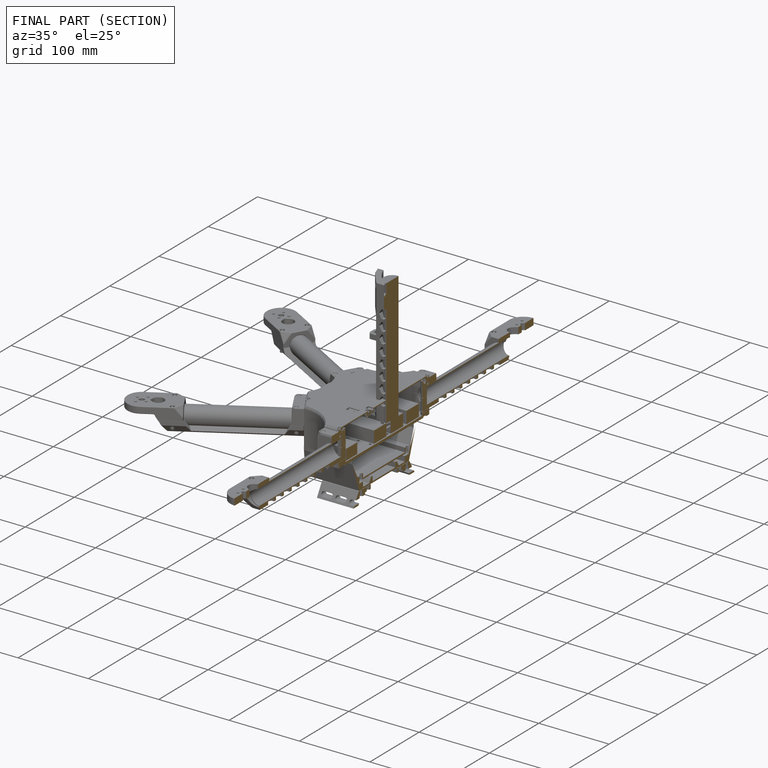
[diagram: finished part — half-section view (interior)]
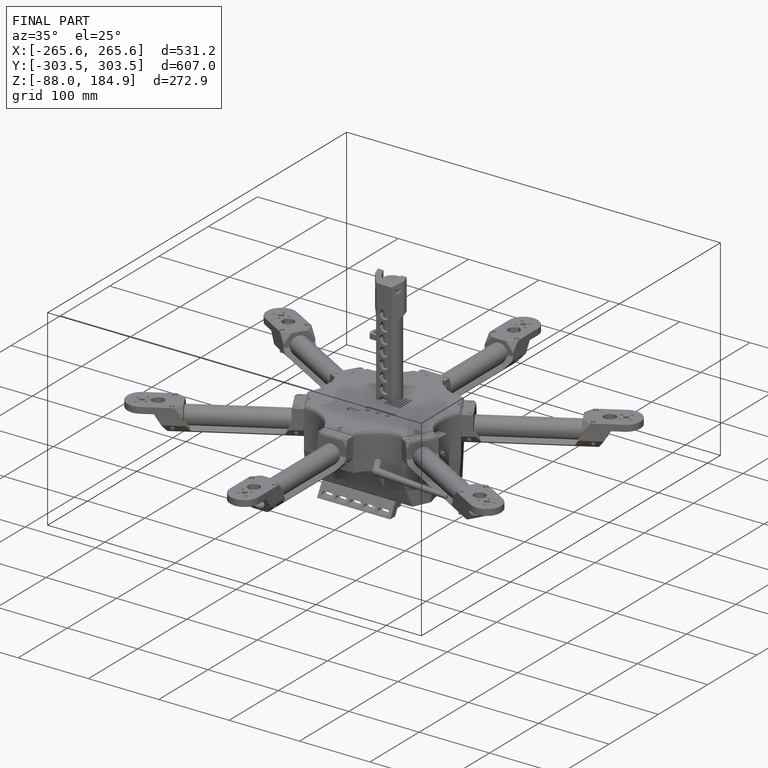
[diagram: finished part — iso view with bounding-box wireframe]
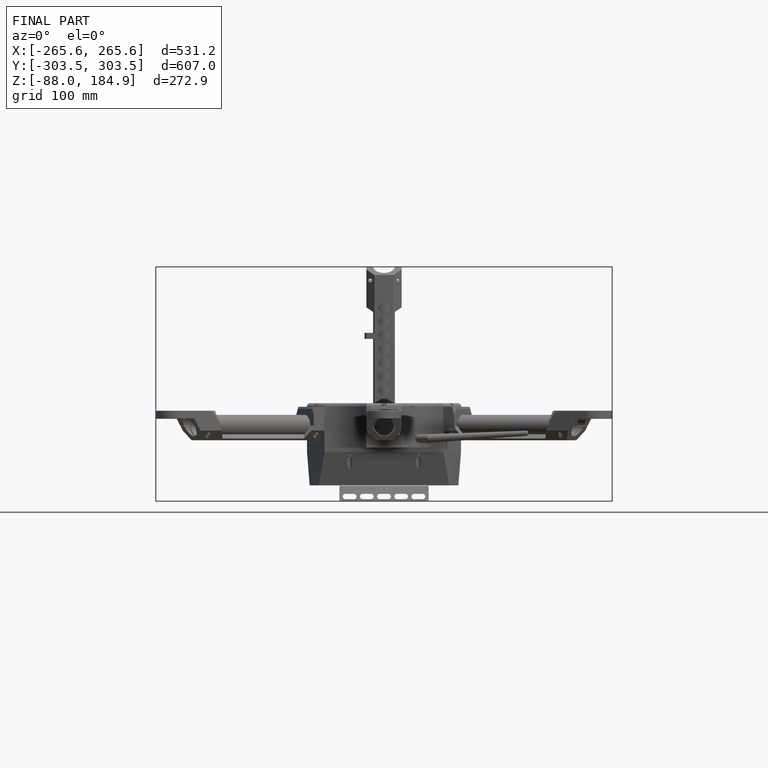
[diagram: finished part — front view with bounding-box wireframe]
